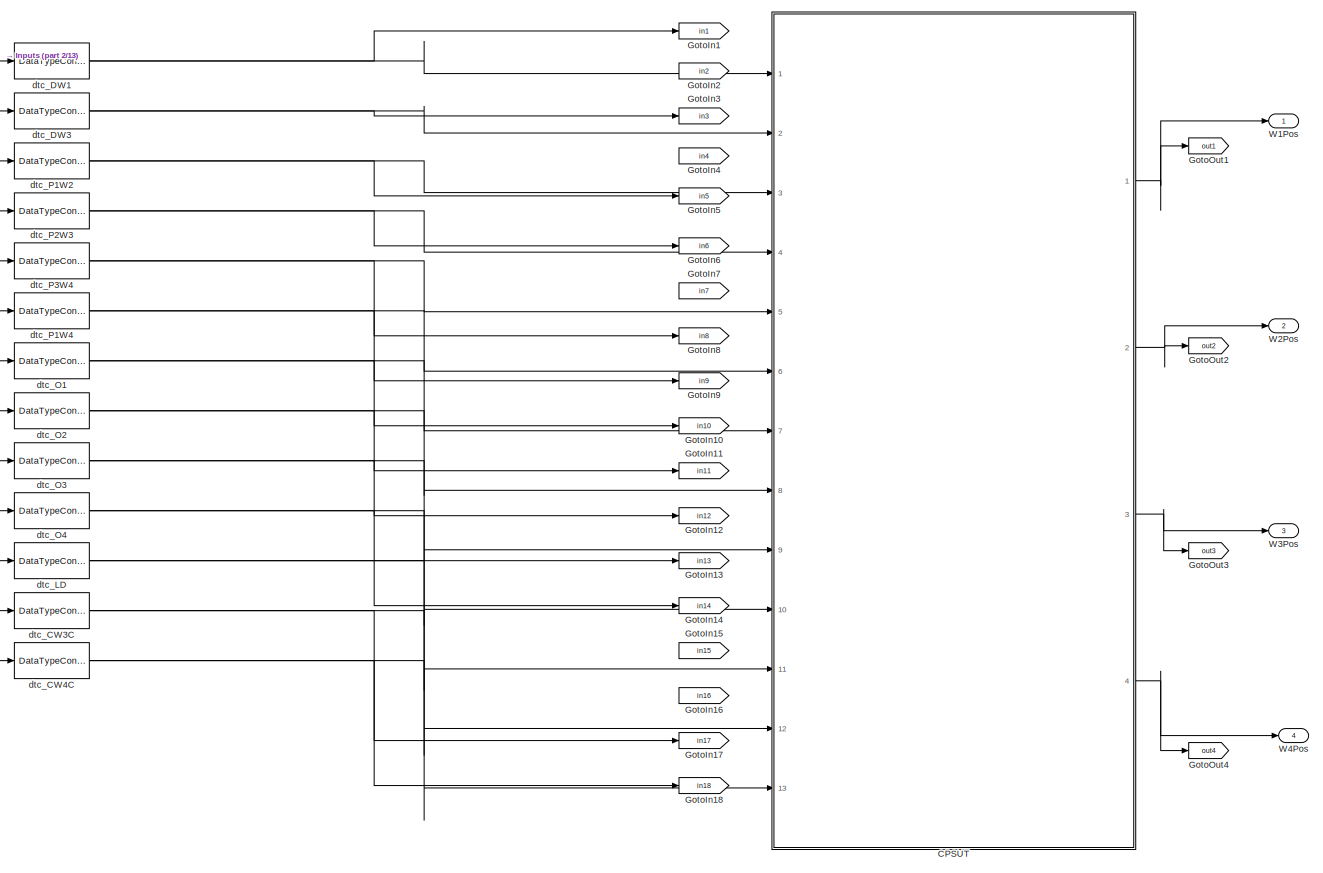
[diagram: root canvas - part 1/13, top left region]
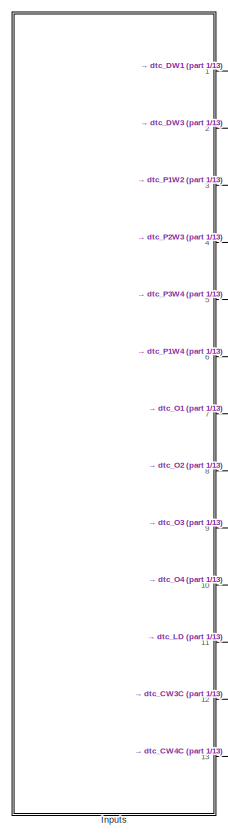
[diagram: root canvas - part 2/13, top left region]
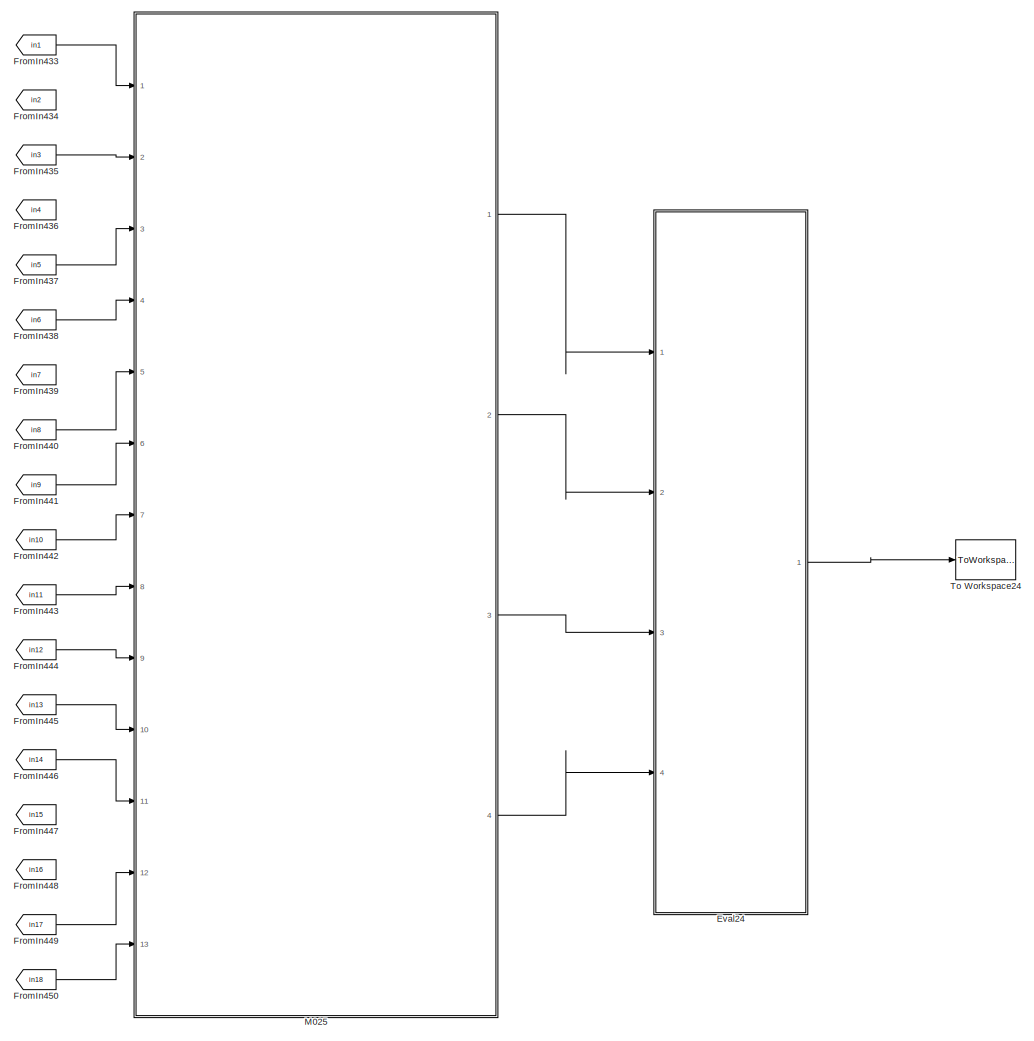
[diagram: root canvas - part 3/13, top center region]
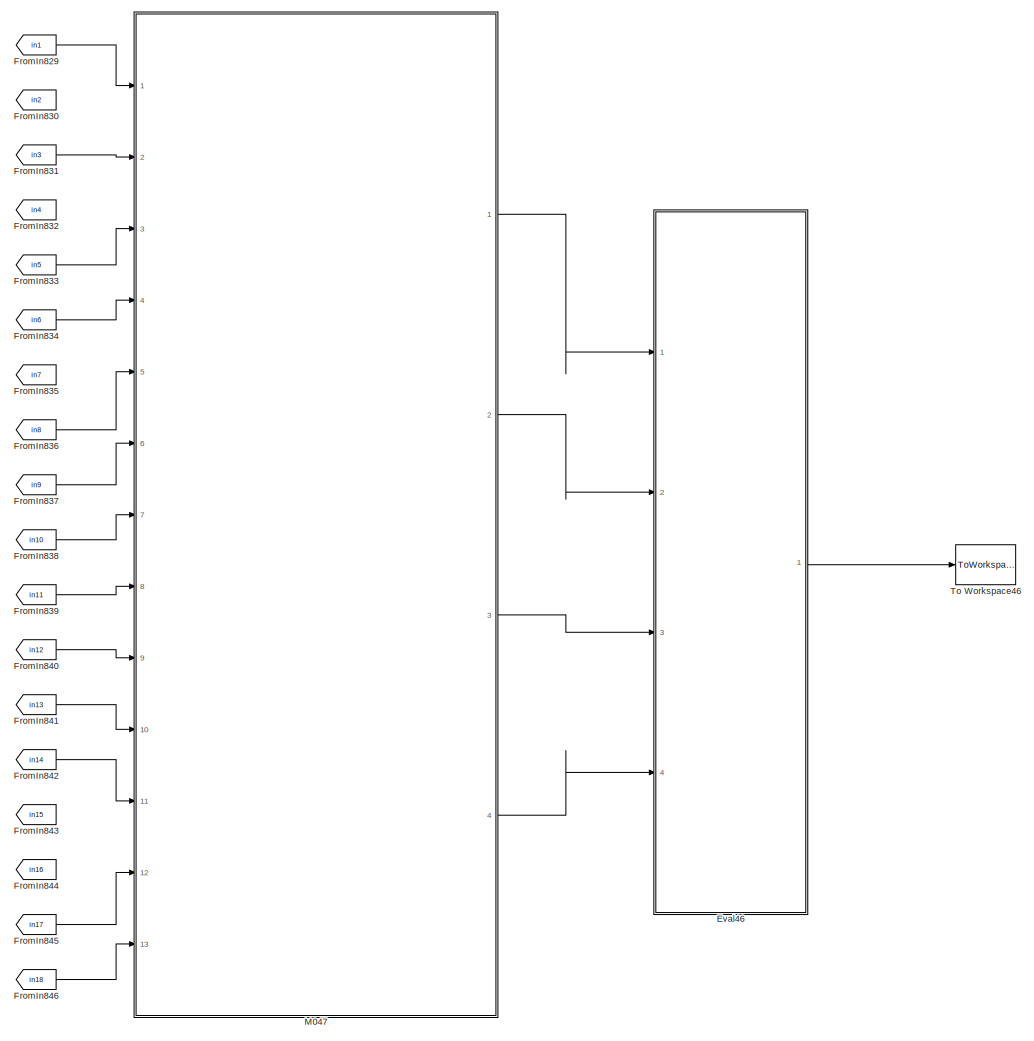
[diagram: root canvas - part 4/13, middle right region]
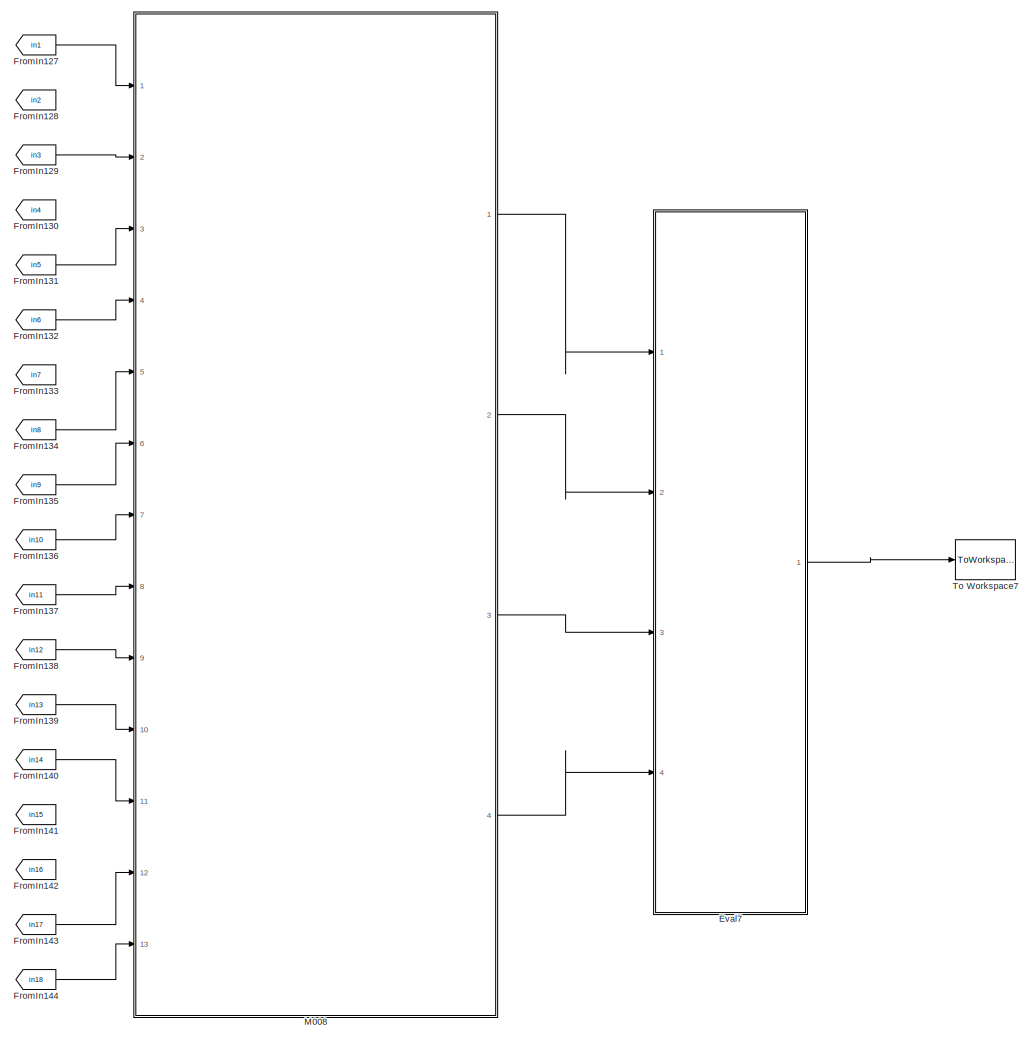
[diagram: root canvas - part 5/13, central region]
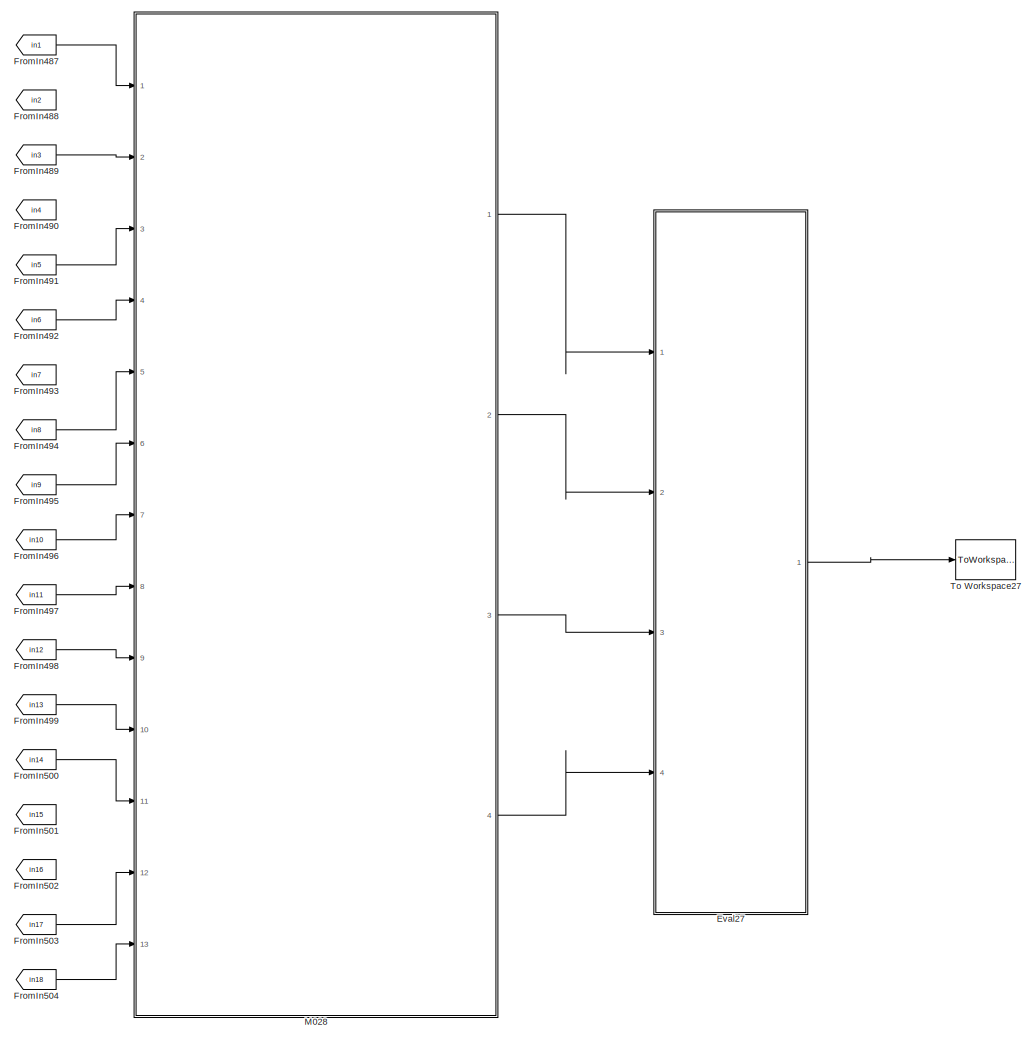
[diagram: root canvas - part 6/13, central region]
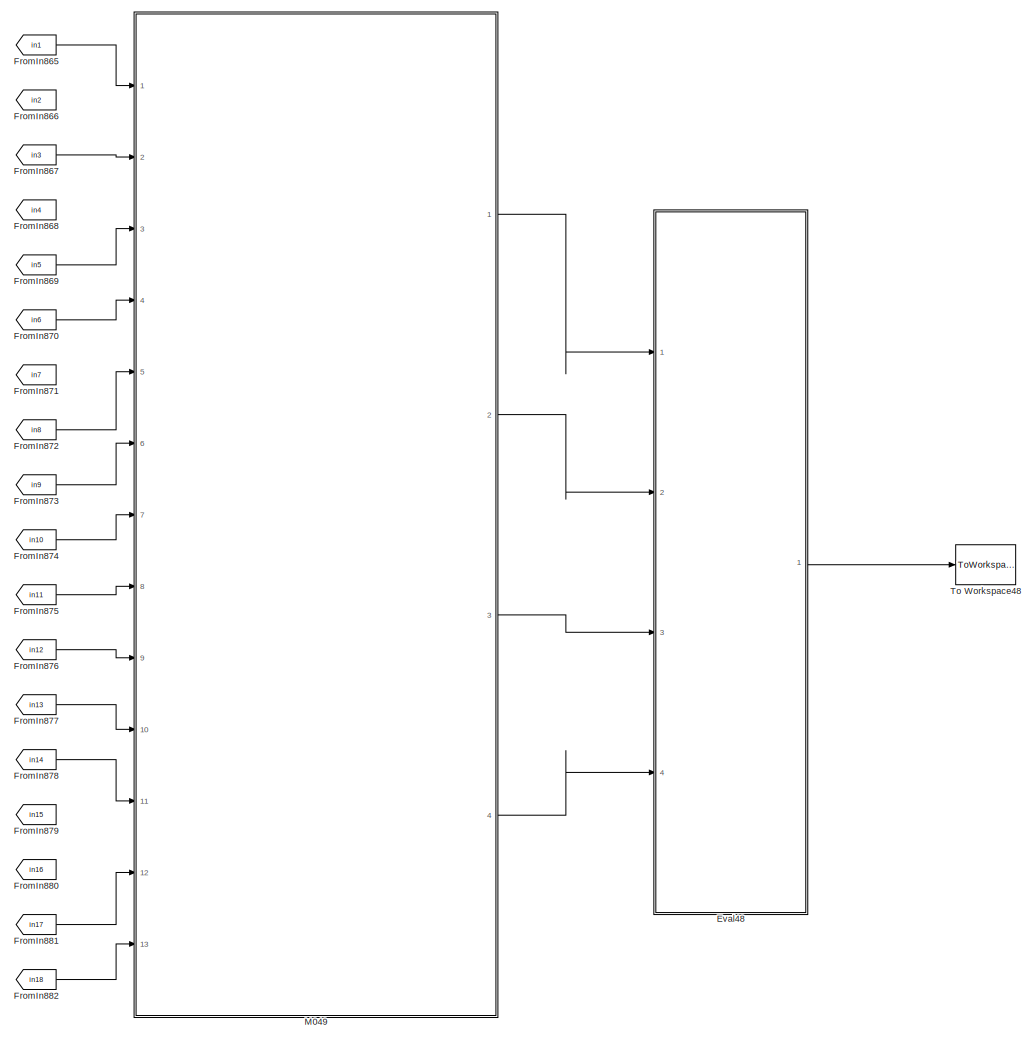
[diagram: root canvas - part 7/13, middle right region]
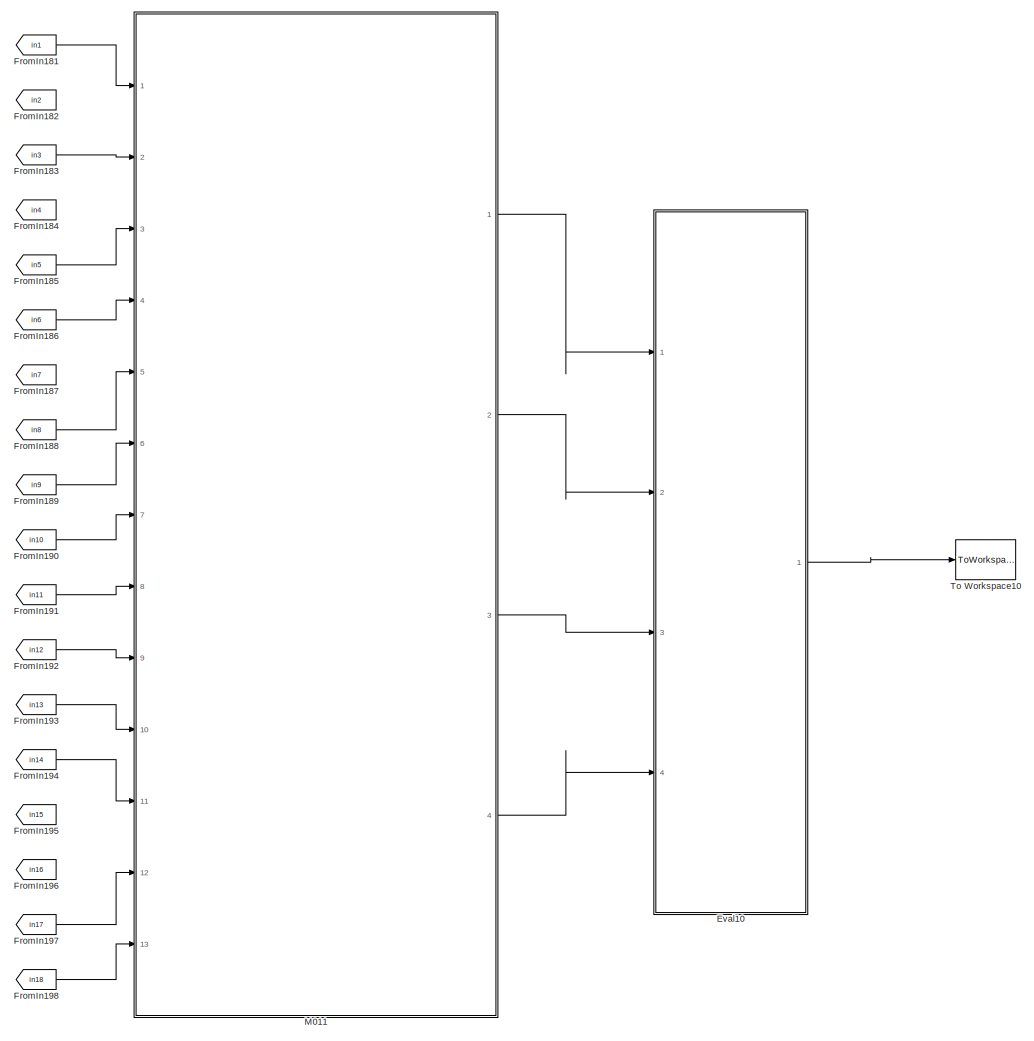
[diagram: root canvas - part 8/13, central region]
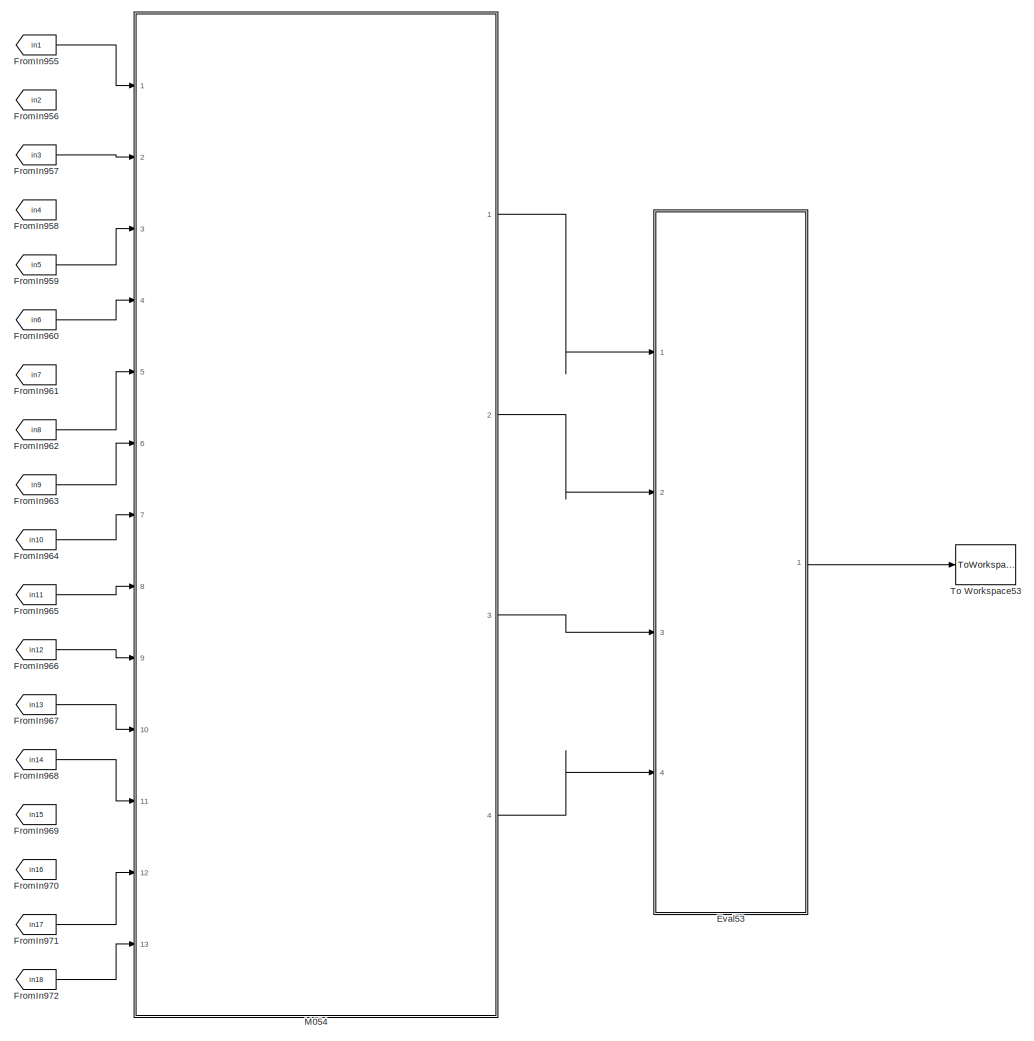
[diagram: root canvas - part 9/13, bottom right region]
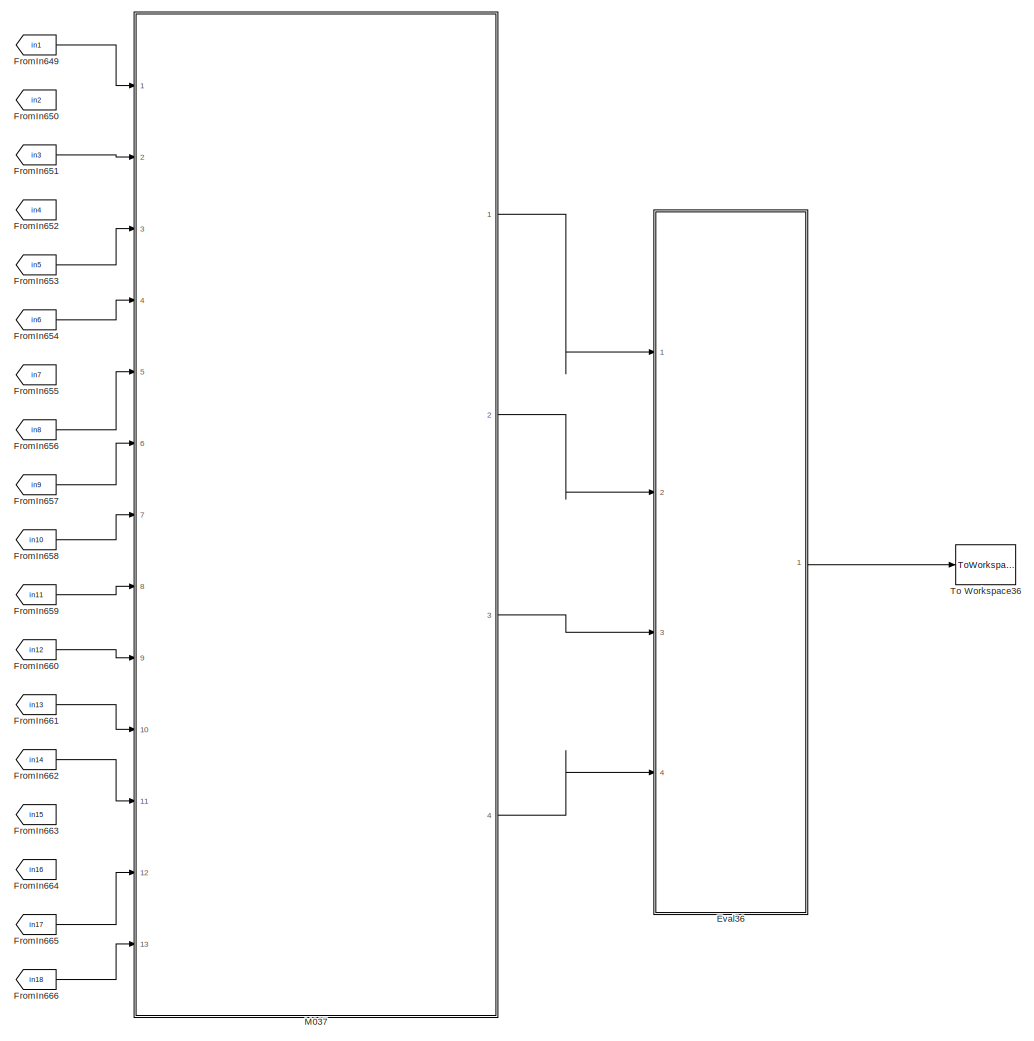
[diagram: root canvas - part 10/13, bottom center region]
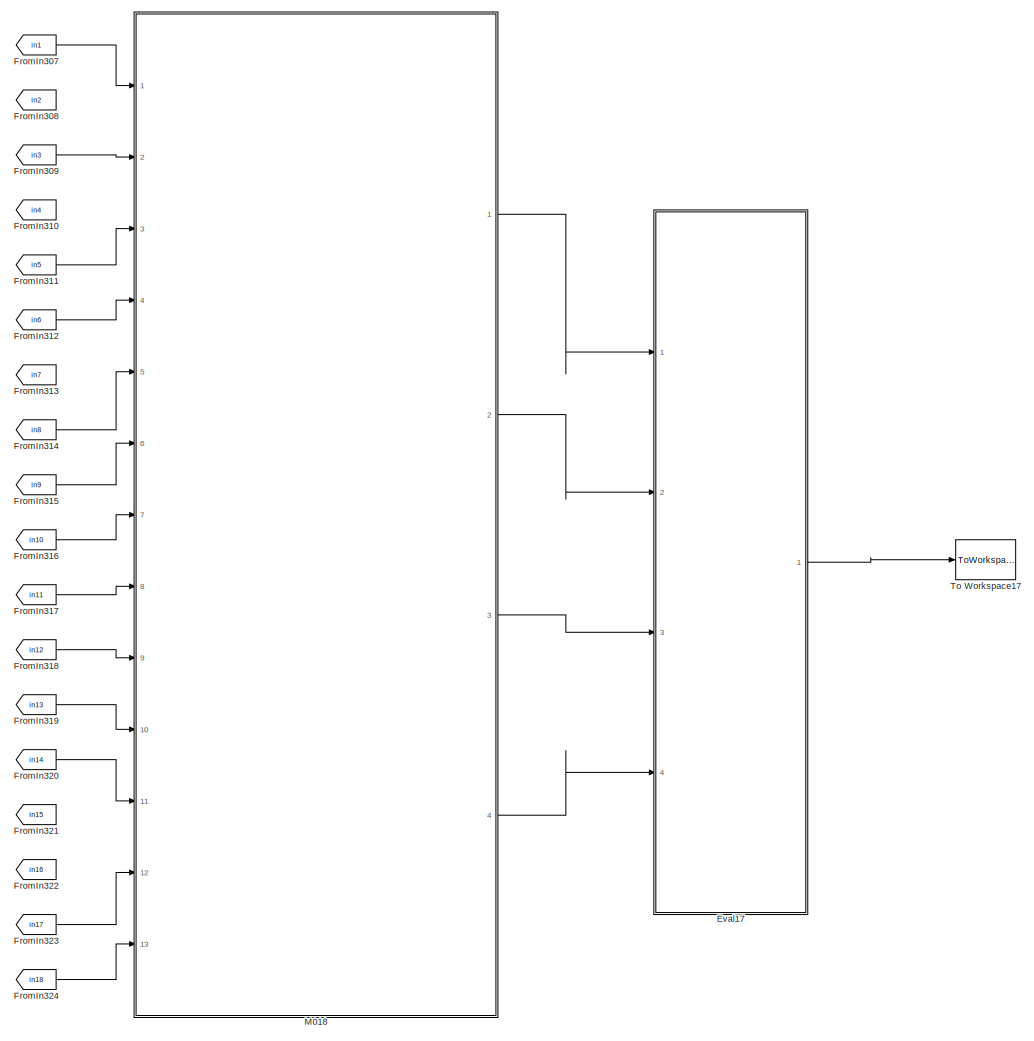
[diagram: root canvas - part 11/13, bottom center region]
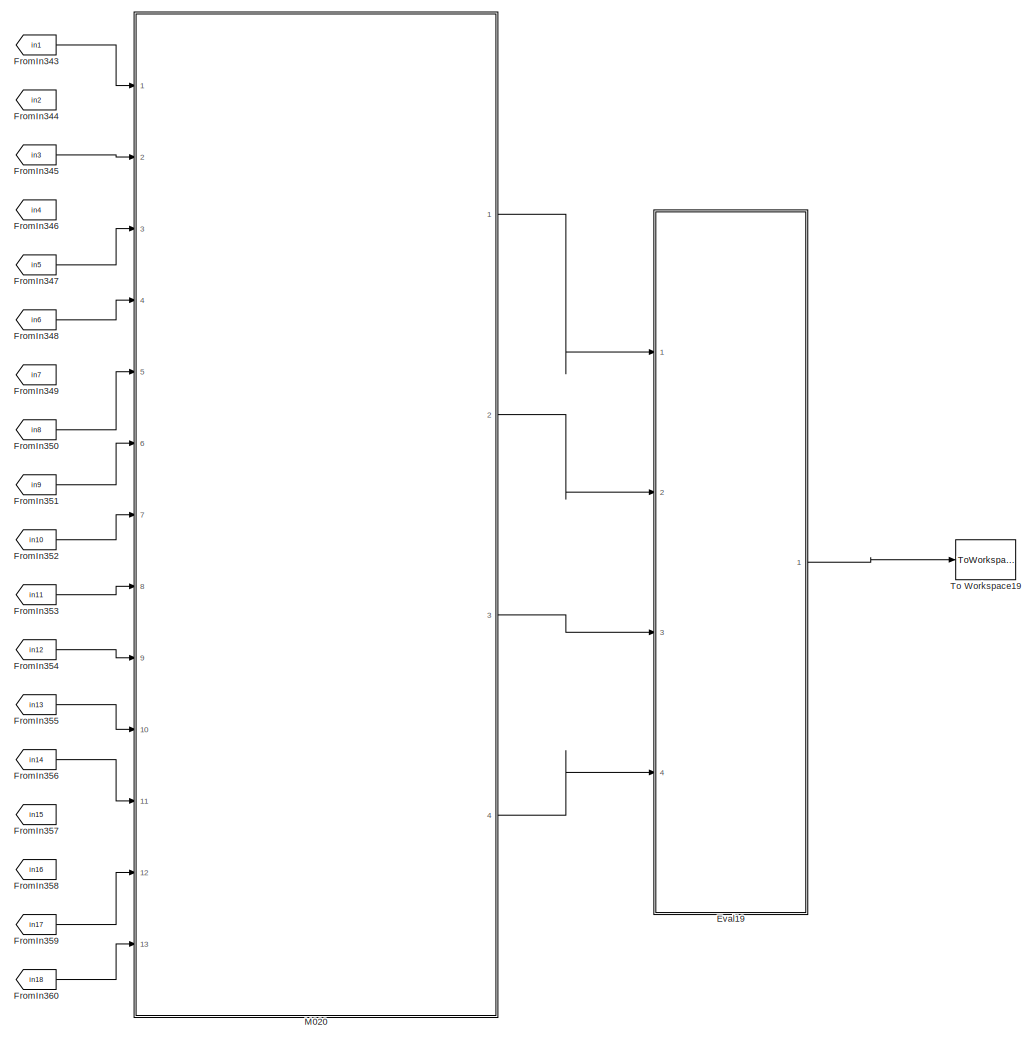
[diagram: root canvas - part 12/13, bottom center region]
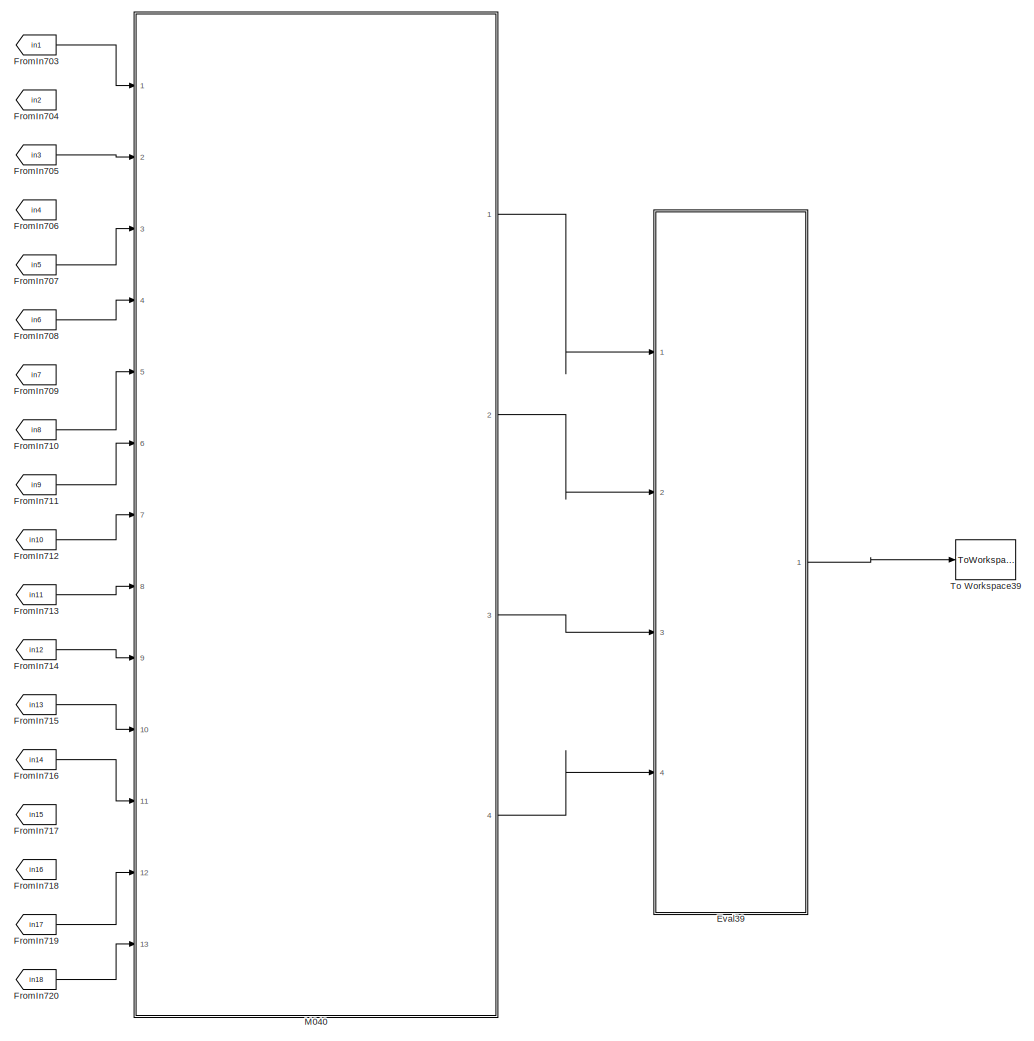
[diagram: root canvas - part 13/13, bottom center region]
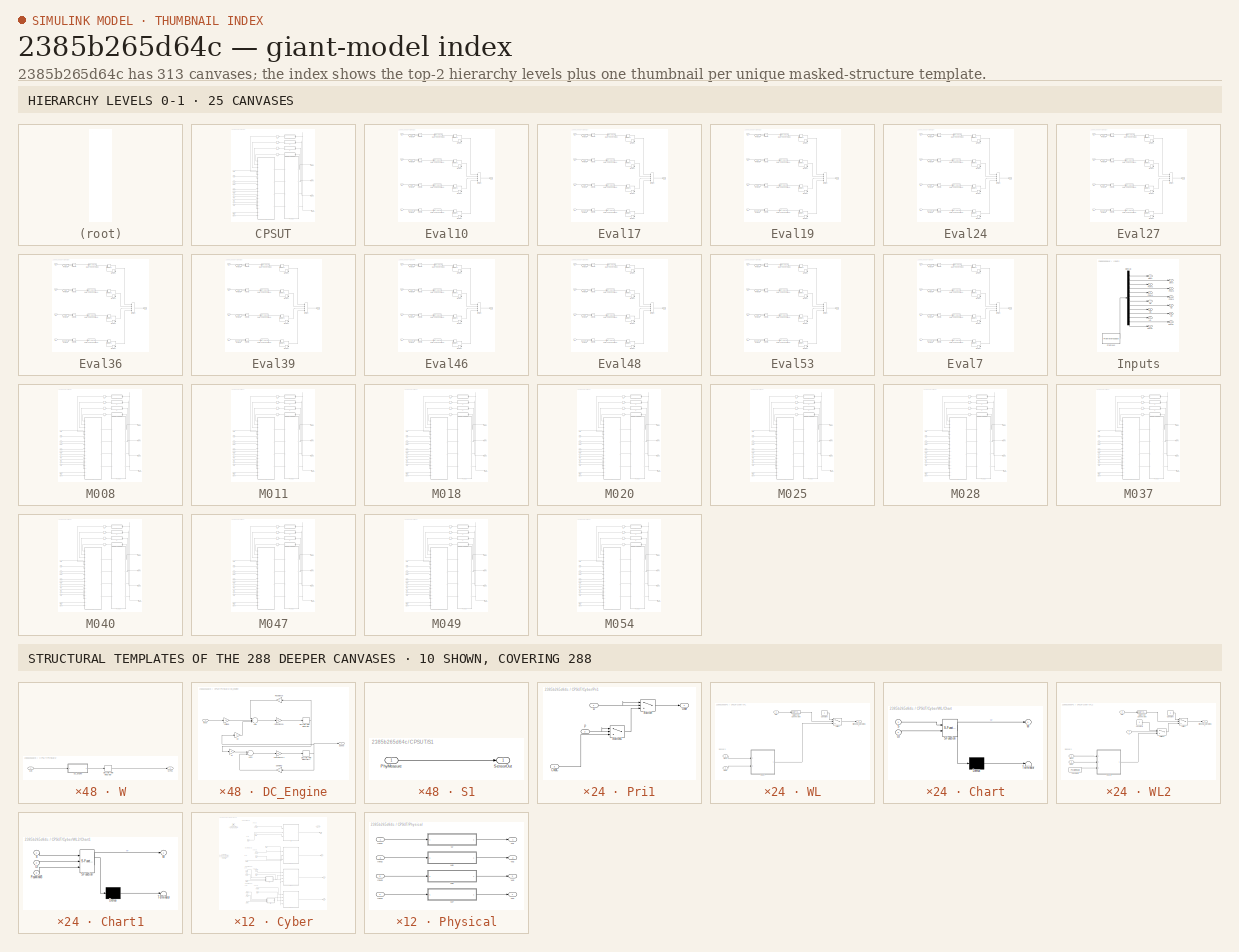
[diagram: thumbnail index - top-2 hierarchy levels (25 canvases) + 10 structural-template representatives of the remaining 288 canvases]
MODEL slx_2385b265d64c
KIND model
CONFIG AbsTol = auto
CONFIG EnableMultiTasking = on
CONFIG FixedStep = auto
CONFIG MaxStep = auto
CONFIG MinStep = auto
CONFIG RelTol = 1e-3
CONFIG SampleTimeConstraint = Unconstrained
CONFIG Solver = ode3
CONFIG SolverName = ode3
CONFIG StartTime = 0.0
CONFIG StopTime = 10.0
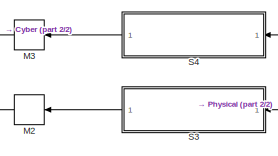
[diagram: CPSUT - part 1/2, top center region]
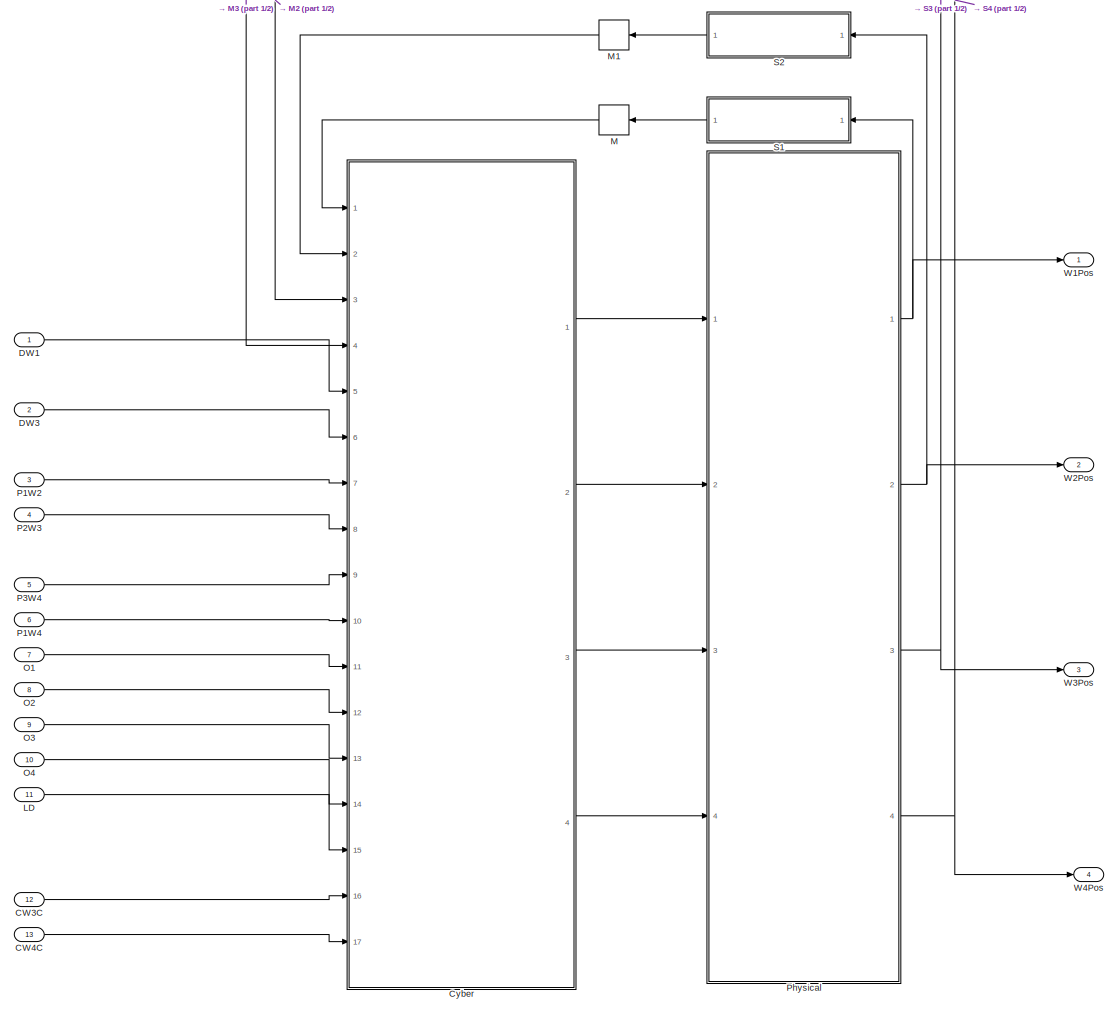
[diagram: CPSUT - part 2/2, most of the canvas]
BLOCK [SubSystem] CPSUT
  Ports = [13, 4]
  RequestExecContextInheritance = off
BLOCK [Inport] CPSUT/CW3C
  IconDisplay = Port number
  OutDataTypeStr = int8
  OutMax = 4
  OutMin = 0
  Port = 12
BLOCK [Inport] CPSUT/CW4C
  IconDisplay = Port number
  OutDataTypeStr = int8
  OutMax = 4
  OutMin = 0
  Port = 13
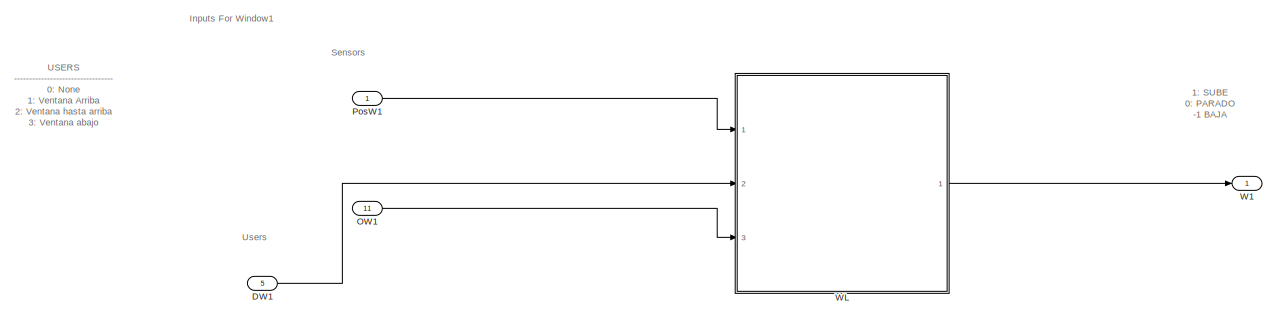
[diagram: CPSUT/Cyber - part 1/3, full width, top band]
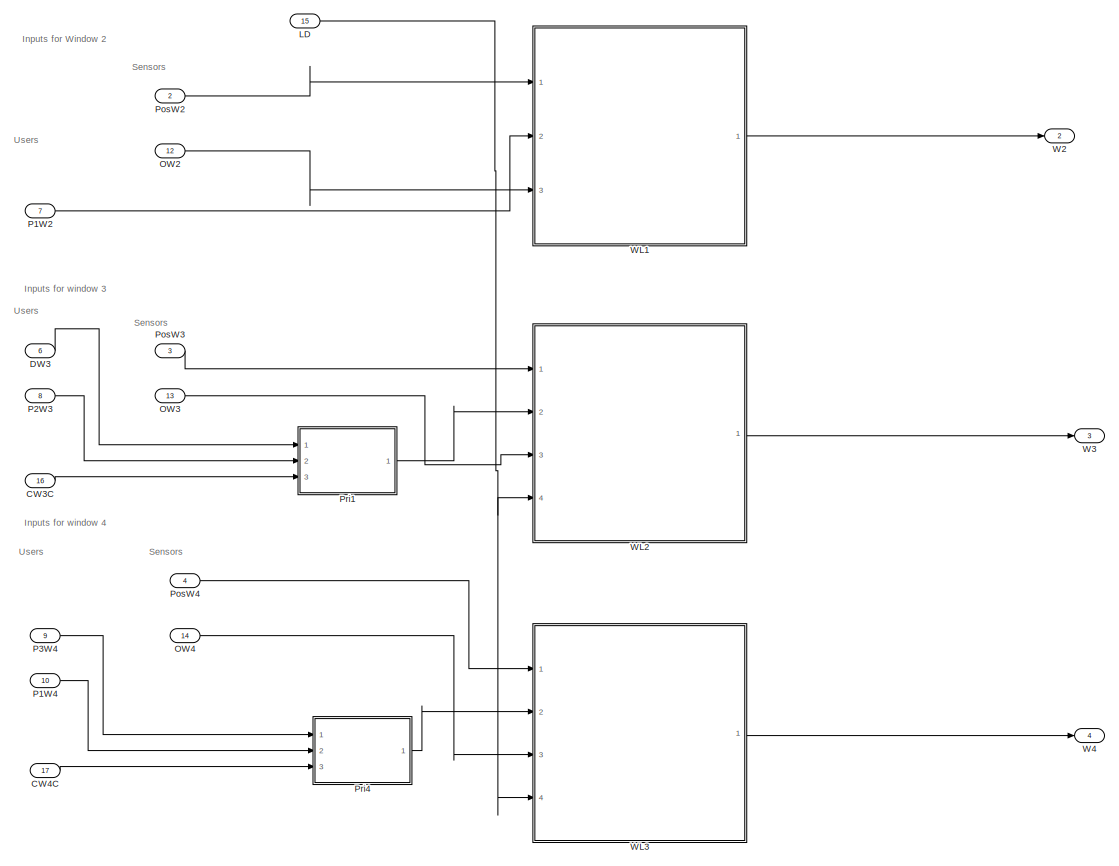
[diagram: CPSUT/Cyber - part 2/3, full width, middle band]
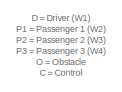
[diagram: CPSUT/Cyber - part 3/3, middle left region]
BLOCK [SubSystem] CPSUT/Cyber
  Ports = [17, 4]
  RequestExecContextInheritance = off
BLOCK [Inport] CPSUT/Cyber/CW3C
  IconDisplay = Port number
  Port = 16
BLOCK [Inport] CPSUT/Cyber/CW4C
  IconDisplay = Port number
  Port = 17
BLOCK [Inport] CPSUT/Cyber/DW1
  IconDisplay = Port number
  Port = 5
BLOCK [Inport] CPSUT/Cyber/DW3
  IconDisplay = Port number
  Port = 6
BLOCK [Inport] CPSUT/Cyber/LD
  IconDisplay = Port number
  Port = 15
BLOCK [Inport] CPSUT/Cyber/OW1
  IconDisplay = Port number
  Port = 11
BLOCK [Inport] CPSUT/Cyber/OW2
  IconDisplay = Port number
  Port = 12
BLOCK [Inport] CPSUT/Cyber/OW3
  IconDisplay = Port number
  Port = 13
BLOCK [Inport] CPSUT/Cyber/OW4
  IconDisplay = Port number
  Port = 14
BLOCK [Inport] CPSUT/Cyber/P1W2
  IconDisplay = Port number
  Port = 7
BLOCK [Inport] CPSUT/Cyber/P1W4
  IconDisplay = Port number
  Port = 10
BLOCK [Inport] CPSUT/Cyber/P2W3
  IconDisplay = Port number
  Port = 8
BLOCK [Inport] CPSUT/Cyber/P3W4
  IconDisplay = Port number
  Port = 9
BLOCK [Inport] CPSUT/Cyber/PosW1
  IconDisplay = Port number
BLOCK [Inport] CPSUT/Cyber/PosW2
  IconDisplay = Port number
  Port = 2
BLOCK [Inport] CPSUT/Cyber/PosW3
  IconDisplay = Port number
  Port = 3
BLOCK [Inport] CPSUT/Cyber/PosW4
  IconDisplay = Port number
  Port = 4
BLOCK [SubSystem] CPSUT/Cyber/Pri1
  Ports = [3, 1]
  RequestExecContextInheritance = off
BLOCK [Inport] CPSUT/Cyber/Pri1/CW3C
  IconDisplay = Port number
  Port = 3
BLOCK [Inport] CPSUT/Cyber/Pri1/D
  IconDisplay = Port number
BLOCK [Inport] CPSUT/Cyber/Pri1/P
  IconDisplay = Port number
  Port = 2
BLOCK [Switch] CPSUT/Cyber/Pri1/Switch
  Criteria = u2 ~= 0
  InputSameDT = off
  SaturateOnIntegerOverflow = off
BLOCK [Switch] CPSUT/Cyber/Pri1/Switch1
  Criteria = u2 ~= 0
  InputSameDT = off
  SaturateOnIntegerOverflow = off
BLOCK [Outport] CPSUT/Cyber/Pri1/User
  IconDisplay = Port number
BLOCK [SubSystem] CPSUT/Cyber/Pri4
  Ports = [3, 1]
  RequestExecContextInheritance = off
BLOCK [Inport] CPSUT/Cyber/Pri4/CW4C
  IconDisplay = Port number
  Port = 3
BLOCK [Inport] CPSUT/Cyber/Pri4/P
  IconDisplay = Port number
BLOCK [Inport] CPSUT/Cyber/Pri4/P1
  IconDisplay = Port number
  Port = 2
BLOCK [Switch] CPSUT/Cyber/Pri4/Switch1
  Criteria = u2 ~= 0
  InputSameDT = off
  SaturateOnIntegerOverflow = off
BLOCK [Switch] CPSUT/Cyber/Pri4/Switch2
  Criteria = u2 ~= 0
  InputSameDT = off
  SaturateOnIntegerOverflow = off
BLOCK [Outport] CPSUT/Cyber/Pri4/User
  IconDisplay = Port number
BLOCK [Outport] CPSUT/Cyber/W1
  IconDisplay = Port number
BLOCK [Outport] CPSUT/Cyber/W2
  IconDisplay = Port number
  Port = 2
BLOCK [Outport] CPSUT/Cyber/W3
  IconDisplay = Port number
  Port = 3
BLOCK [Outport] CPSUT/Cyber/W4
  IconDisplay = Port number
  Port = 4
BLOCK [SubSystem] CPSUT/Cyber/WL
  Ports = [3, 1]
  RequestExecContextInheritance = off
BLOCK [SubSystem] CPSUT/Cyber/WL/Chart
  ErrorFcn = Stateflow.Translate.translate
  PermitHierarchicalResolution = ExplicitOnly
  Ports = [2, 1]
  RequestExecContextInheritance = off
  SFBlockType = Chart
  TreatAsAtomicUnit = on
BLOCK [Demux] CPSUT/Cyber/WL/Chart/ Demux 
  Outputs = 1
  Ports = [1, 1]
BLOCK [S-Function] CPSUT/Cyber/WL/Chart/ SFunction 
  EnableBusSupport = off
  FunctionName = sf_sfun
  PortCounts = [2 2]
  Ports = [2, 2]
  SFcnIsStateOwnerBlock = off
  SFunctionDeploymentMode = off
  Tag = Stateflow S-Function c00023M_harness 1
BLOCK [Terminator] CPSUT/Cyber/WL/Chart/ Terminator 
BLOCK [Inport] CPSUT/Cyber/WL/Chart/S
  IconDisplay = Port number
BLOCK [Inport] CPSUT/Cyber/WL/Chart/UI
  IconDisplay = Port number
  Port = 2
BLOCK [Outport] CPSUT/Cyber/WL/Chart/W
  IconDisplay = Port number
BLOCK [Constant] CPSUT/Cyber/WL/Constant
  Value = -1
BLOCK [DataTypeConversion] CPSUT/Cyber/WL/Data Type Conversion
  RndMeth = Floor
  SaturateOnIntegerOverflow = off
BLOCK [Inport] CPSUT/Cyber/WL/OW
  IconDisplay = Port number
  Port = 3
BLOCK [Switch] CPSUT/Cyber/WL/Switch
  Criteria = u2 ~= 0
  InputSameDT = off
  SaturateOnIntegerOverflow = off
  Threshold = 1
  ZeroCross = off
BLOCK [Inport] CPSUT/Cyber/WL/User
  IconDisplay = Port number
  Port = 2
BLOCK [Inport] CPSUT/Cyber/WL/WPos
  IconDisplay = Port number
BLOCK [Outport] CPSUT/Cyber/WL/WindowLogicOutput
  IconDisplay = Port number
BLOCK [SubSystem] CPSUT/Cyber/WL1
  Ports = [3, 1]
  RequestExecContextInheritance = off
BLOCK [SubSystem] CPSUT/Cyber/WL1/Chart1
  ErrorFcn = Stateflow.Translate.translate
  PermitHierarchicalResolution = ExplicitOnly
  Ports = [2, 1]
  RequestExecContextInheritance = off
  SFBlockType = Chart
  TreatAsAtomicUnit = on
BLOCK [Demux] CPSUT/Cyber/WL1/Chart1/ Demux 
  Outputs = 1
  Ports = [1, 1]
BLOCK [S-Function] CPSUT/Cyber/WL1/Chart1/ SFunction 
  EnableBusSupport = off
  FunctionName = sf_sfun
  PortCounts = [2 2]
  Ports = [2, 2]
  SFcnIsStateOwnerBlock = off
  SFunctionDeploymentMode = off
  Tag = Stateflow S-Function c00023M_harness 3
BLOCK [Terminator] CPSUT/Cyber/WL1/Chart1/ Terminator 
BLOCK [Inport] CPSUT/Cyber/WL1/Chart1/S
  IconDisplay = Port number
BLOCK [Inport] CPSUT/Cyber/WL1/Chart1/UI
  IconDisplay = Port number
  Port = 2
BLOCK [Outport] CPSUT/Cyber/WL1/Chart1/W
  IconDisplay = Port number
BLOCK [Constant] CPSUT/Cyber/WL1/Constant
  Value = -1
BLOCK [DataTypeConversion] CPSUT/Cyber/WL1/Data Type Conversion
  RndMeth = Floor
  SaturateOnIntegerOverflow = off
BLOCK [Inport] CPSUT/Cyber/WL1/OW
  IconDisplay = Port number
  Port = 3
BLOCK [Switch] CPSUT/Cyber/WL1/Switch
  Criteria = u2 ~= 0
  InputSameDT = off
  SaturateOnIntegerOverflow = off
  Threshold = 1
  ZeroCross = off
BLOCK [Inport] CPSUT/Cyber/WL1/User
  IconDisplay = Port number
  Port = 2
BLOCK [Inport] CPSUT/Cyber/WL1/WPos
  IconDisplay = Port number
BLOCK [Outport] CPSUT/Cyber/WL1/WindowLogicOutput
  IconDisplay = Port number
BLOCK [SubSystem] CPSUT/Cyber/WL2
  Ports = [4, 1]
  RequestExecContextInheritance = off
BLOCK [SubSystem] CPSUT/Cyber/WL2/Chart1
  ErrorFcn = Stateflow.Translate.translate
  PermitHierarchicalResolution = ExplicitOnly
  Ports = [3, 1]
  RequestExecContextInheritance = off
  SFBlockType = Chart
  TreatAsAtomicUnit = on
BLOCK [Demux] CPSUT/Cyber/WL2/Chart1/ Demux 
  Outputs = 1
  Ports = [1, 1]
BLOCK [S-Function] CPSUT/Cyber/WL2/Chart1/ SFunction 
  EnableBusSupport = off
  FunctionName = sf_sfun
  PortCounts = [3 2]
  Ports = [3, 2]
  SFcnIsStateOwnerBlock = off
  SFunctionDeploymentMode = off
  Tag = Stateflow S-Function c00023M_harness 2
BLOCK [Terminator] CPSUT/Cyber/WL2/Chart1/ Terminator 
BLOCK [Inport] CPSUT/Cyber/WL2/Chart1/PosMinW3
  IconDisplay = Port number
  Port = 3
BLOCK [Inport] CPSUT/Cyber/WL2/Chart1/S
  IconDisplay = Port number
BLOCK [Inport] CPSUT/Cyber/WL2/Chart1/UI
  IconDisplay = Port number
  Port = 2
BLOCK [Outport] CPSUT/Cyber/WL2/Chart1/W
  IconDisplay = Port number
BLOCK [Constant] CPSUT/Cyber/WL2/Constant
  Value = -1
BLOCK [Constant] CPSUT/Cyber/WL2/Constant1
  Value = 0
BLOCK [Constant] CPSUT/Cyber/WL2/Constant2
  Value = PosMinimaW3
BLOCK [DataTypeConversion] CPSUT/Cyber/WL2/Data Type Conversion
  RndMeth = Floor
  SaturateOnIntegerOverflow = off
BLOCK [Inport] CPSUT/Cyber/WL2/L
  IconDisplay = Port number
  Port = 4
BLOCK [Inport] CPSUT/Cyber/WL2/OW
  IconDisplay = Port number
  Port = 3
BLOCK [Switch] CPSUT/Cyber/WL2/Switch
  Criteria = u2 ~= 0
  InputSameDT = off
  SaturateOnIntegerOverflow = off
  Threshold = 1
  ZeroCross = off
BLOCK [Switch] CPSUT/Cyber/WL2/Switch1
  Criteria = u2 ~= 0
  InputSameDT = off
  SaturateOnIntegerOverflow = off
BLOCK [Inport] CPSUT/Cyber/WL2/User
  IconDisplay = Port number
  Port = 2
BLOCK [Inport] CPSUT/Cyber/WL2/WPos
  IconDisplay = Port number
BLOCK [Outport] CPSUT/Cyber/WL2/WindowLogicOutput
  IconDisplay = Port number
BLOCK [SubSystem] CPSUT/Cyber/WL3
  Ports = [4, 1]
  RequestExecContextInheritance = off
BLOCK [SubSystem] CPSUT/Cyber/WL3/Chart2
  ErrorFcn = Stateflow.Translate.translate
  PermitHierarchicalResolution = ExplicitOnly
  Ports = [3, 1]
  RequestExecContextInheritance = off
  SFBlockType = Chart
  TreatAsAtomicUnit = on
BLOCK [Demux] CPSUT/Cyber/WL3/Chart2/ Demux 
  Outputs = 1
  Ports = [1, 1]
BLOCK [S-Function] CPSUT/Cyber/WL3/Chart2/ SFunction 
  EnableBusSupport = off
  FunctionName = sf_sfun
  PortCounts = [3 2]
  Ports = [3, 2]
  SFcnIsStateOwnerBlock = off
  SFunctionDeploymentMode = off
  Tag = Stateflow S-Function c00023M_harness 4
BLOCK [Terminator] CPSUT/Cyber/WL3/Chart2/ Terminator 
BLOCK [Inport] CPSUT/Cyber/WL3/Chart2/PosMinW4
  IconDisplay = Port number
  Port = 3
BLOCK [Inport] CPSUT/Cyber/WL3/Chart2/S
  IconDisplay = Port number
BLOCK [Inport] CPSUT/Cyber/WL3/Chart2/UI
  IconDisplay = Port number
  Port = 2
BLOCK [Outport] CPSUT/Cyber/WL3/Chart2/W
  IconDisplay = Port number
BLOCK [Constant] CPSUT/Cyber/WL3/Constant
  Value = -1
BLOCK [Constant] CPSUT/Cyber/WL3/Constant1
  Value = 0
BLOCK [Constant] CPSUT/Cyber/WL3/Constant2
  Value = PosMinimaW4
BLOCK [DataTypeConversion] CPSUT/Cyber/WL3/Data Type Conversion
  RndMeth = Floor
  SaturateOnIntegerOverflow = off
BLOCK [Inport] CPSUT/Cyber/WL3/L
  IconDisplay = Port number
  Port = 4
BLOCK [Inport] CPSUT/Cyber/WL3/OW
  IconDisplay = Port number
  Port = 3
BLOCK [Switch] CPSUT/Cyber/WL3/Switch
  Criteria = u2 ~= 0
  InputSameDT = off
  SaturateOnIntegerOverflow = off
  Threshold = 1
  ZeroCross = off
BLOCK [Switch] CPSUT/Cyber/WL3/Switch1
  Criteria = u2 ~= 0
  InputSameDT = off
  SaturateOnIntegerOverflow = off
BLOCK [Inport] CPSUT/Cyber/WL3/User
  IconDisplay = Port number
  Port = 2
BLOCK [Inport] CPSUT/Cyber/WL3/WPos
  IconDisplay = Port number
BLOCK [Outport] CPSUT/Cyber/WL3/WindowLogicOutput
  IconDisplay = Port number
BLOCK [Inport] CPSUT/DW1
  IconDisplay = Port number
  OutDataTypeStr = int8
  OutMax = 4
  OutMin = 0
BLOCK [Inport] CPSUT/DW3
  IconDisplay = Port number
  OutDataTypeStr = int8
  OutMax = 4
  OutMin = 0
  Port = 2
BLOCK [Inport] CPSUT/LD
  IconDisplay = Port number
  OutDataTypeStr = boolean
  Port = 11
BLOCK [Memory] CPSUT/M
BLOCK [Memory] CPSUT/M1
BLOCK [Memory] CPSUT/M2
BLOCK [Memory] CPSUT/M3
BLOCK [Inport] CPSUT/O1
  IconDisplay = Port number
  OutDataTypeStr = boolean
  Port = 7
BLOCK [Inport] CPSUT/O2
  IconDisplay = Port number
  OutDataTypeStr = boolean
  Port = 8
BLOCK [Inport] CPSUT/O3
  IconDisplay = Port number
  OutDataTypeStr = boolean
  Port = 9
BLOCK [Inport] CPSUT/O4
  IconDisplay = Port number
  OutDataTypeStr = boolean
  Port = 10
BLOCK [Inport] CPSUT/P1W2
  IconDisplay = Port number
  OutDataTypeStr = int8
  OutMax = 4
  OutMin = 0
  Port = 3
BLOCK [Inport] CPSUT/P1W4
  IconDisplay = Port number
  OutDataTypeStr = int8
  OutMax = 4
  OutMin = 0
  Port = 6
BLOCK [Inport] CPSUT/P2W3
  IconDisplay = Port number
  OutDataTypeStr = int8
  OutMax = 4
  OutMin = 0
  Port = 4
BLOCK [Inport] CPSUT/P3W4
  IconDisplay = Port number
  OutDataTypeStr = int8
  OutMax = 4
  OutMin = 0
  Port = 5
BLOCK [SubSystem] CPSUT/Physical
  Ports = [4, 4]
  RequestExecContextInheritance = off
BLOCK [Inport] CPSUT/Physical/InW1
  IconDisplay = Port number
BLOCK [Inport] CPSUT/Physical/InW2
  IconDisplay = Port number
  Port = 2
BLOCK [Inport] CPSUT/Physical/InW3
  IconDisplay = Port number
  Port = 3
BLOCK [Inport] CPSUT/Physical/InW4
  IconDisplay = Port number
  Port = 4
BLOCK [SubSystem] CPSUT/Physical/W
  Ports = [1, 1]
  RequestExecContextInheritance = off
BLOCK [SubSystem] CPSUT/Physical/W/DC_Engine
  Ports = [1, 1]
  RequestExecContextInheritance = off
BLOCK [Gain] CPSUT/Physical/W/DC_Engine/(Inductance)
  Gain = 1/L
  OutDataTypeStr = Inherit: Inherit via internal rule
  ParamDataTypeStr = Inherit: Inherit via internal rule
  SaturateOnIntegerOverflow = off
BLOCK [Gain] CPSUT/Physical/W/DC_Engine/(Inductance)1
  Gain = 1/J
  OutDataTypeStr = Inherit: Inherit via internal rule
  ParamDataTypeStr = Inherit: Inherit via internal rule
  SaturateOnIntegerOverflow = off
BLOCK [Sum] CPSUT/Physical/W/DC_Engine/Add
  InputSameDT = off
  Inputs = -+-
  OutDataTypeStr = Inherit: Inherit via internal rule
  Ports = [3, 1]
  SaturateOnIntegerOverflow = off
BLOCK [Sum] CPSUT/Physical/W/DC_Engine/Add1
  InputSameDT = off
  Inputs = +-
  OutDataTypeStr = Inherit: Inherit via internal rule
  Ports = [2, 1]
  SaturateOnIntegerOverflow = off
BLOCK [Gain] CPSUT/Physical/W/DC_Engine/Damping
  Gain = b
  OutDataTypeStr = Inherit: Inherit via internal rule
  ParamDataTypeStr = Inherit: Inherit via internal rule
  SaturateOnIntegerOverflow = off
BLOCK [DiscreteIntegrator] CPSUT/Physical/W/DC_Engine/Discrete-Time Integrator
  ICPrevOutput = DiscIntNeverNeededParam
  ICPrevScaledInput = DiscIntNeverNeededParam
  Ports = [1, 1]
  SampleTime = -1
BLOCK [DiscreteIntegrator] CPSUT/Physical/W/DC_Engine/Discrete-Time Integrator1
  ICPrevOutput = DiscIntNeverNeededParam
  ICPrevScaledInput = DiscIntNeverNeededParam
  Ports = [1, 1]
  SampleTime = -1
BLOCK [Gain] CPSUT/Physical/W/DC_Engine/Ke
  Gain = K
  OutDataTypeStr = Inherit: Inherit via internal rule
  ParamDataTypeStr = Inherit: Inherit via internal rule
  SaturateOnIntegerOverflow = off
BLOCK [Gain] CPSUT/Physical/W/DC_Engine/Kt
  Gain = K
  OutDataTypeStr = Inherit: Inherit via internal rule
  ParamDataTypeStr = Inherit: Inherit via internal rule
  SaturateOnIntegerOverflow = off
BLOCK [Gain] CPSUT/Physical/W/DC_Engine/Resistance
  Gain = R
  OutDataTypeStr = Inherit: Inherit via internal rule
  ParamDataTypeStr = Inherit: Inherit via internal rule
  SaturateOnIntegerOverflow = off
BLOCK [Outport] CPSUT/Physical/W/DC_Engine/Speed
  IconDisplay = Port number
BLOCK [Gain] CPSUT/Physical/W/DC_Engine/Voltage
  Gain = 10
  OutDataTypeStr = Inherit: Inherit via internal rule
  ParamDataTypeStr = Inherit: Inherit via internal rule
  SaturateOnIntegerOverflow = off
BLOCK [Inport] CPSUT/Physical/W/DC_Engine/input
  IconDisplay = Port number
BLOCK [DiscreteIntegrator] CPSUT/Physical/W/Discrete-Time Integrator
  ICPrevOutput = DiscIntNeverNeededParam
  ICPrevScaledInput = DiscIntNeverNeededParam
  InitialCondition = 5
  LimitOutput = on
  LowerSaturationLimit = 0
  Ports = [1, 1]
  SampleTime = -1
  UpperSaturationLimit = 5
BLOCK [Inport] CPSUT/Physical/W/WIn
  IconDisplay = Port number
BLOCK [Outport] CPSUT/Physical/W/WPos
  IconDisplay = Port number
BLOCK [Outport] CPSUT/Physical/W1
  IconDisplay = Port number
BLOCK [Outport] CPSUT/Physical/W2
  IconDisplay = Port number
  Port = 2
BLOCK [Outport] CPSUT/Physical/W3
  IconDisplay = Port number
  Port = 3
BLOCK [Outport] CPSUT/Physical/W4
  IconDisplay = Port number
  Port = 4
BLOCK [SubSystem] CPSUT/Physical/W5
  Ports = [1, 1]
  RequestExecContextInheritance = off
BLOCK [SubSystem] CPSUT/Physical/W5/DC_Engine
  Ports = [1, 1]
  RequestExecContextInheritance = off
BLOCK [Gain] CPSUT/Physical/W5/DC_Engine/(Inductance)
  Gain = 1/L
  OutDataTypeStr = Inherit: Inherit via internal rule
  ParamDataTypeStr = Inherit: Inherit via internal rule
  SaturateOnIntegerOverflow = off
BLOCK [Gain] CPSUT/Physical/W5/DC_Engine/(Inductance)1
  Gain = 1/J
  OutDataTypeStr = Inherit: Inherit via internal rule
  ParamDataTypeStr = Inherit: Inherit via internal rule
  SaturateOnIntegerOverflow = off
BLOCK [Sum] CPSUT/Physical/W5/DC_Engine/Add
  InputSameDT = off
  Inputs = -+-
  OutDataTypeStr = Inherit: Inherit via internal rule
  Ports = [3, 1]
  SaturateOnIntegerOverflow = off
BLOCK [Sum] CPSUT/Physical/W5/DC_Engine/Add1
  InputSameDT = off
  Inputs = +-
  OutDataTypeStr = Inherit: Inherit via internal rule
  Ports = [2, 1]
  SaturateOnIntegerOverflow = off
BLOCK [Gain] CPSUT/Physical/W5/DC_Engine/Damping
  Gain = b
  OutDataTypeStr = Inherit: Inherit via internal rule
  ParamDataTypeStr = Inherit: Inherit via internal rule
  SaturateOnIntegerOverflow = off
BLOCK [DiscreteIntegrator] CPSUT/Physical/W5/DC_Engine/Discrete-Time Integrator
  ICPrevOutput = DiscIntNeverNeededParam
  ICPrevScaledInput = DiscIntNeverNeededParam
  Ports = [1, 1]
  SampleTime = -1
BLOCK [DiscreteIntegrator] CPSUT/Physical/W5/DC_Engine/Discrete-Time Integrator1
  ICPrevOutput = DiscIntNeverNeededParam
  ICPrevScaledInput = DiscIntNeverNeededParam
  Ports = [1, 1]
  SampleTime = -1
BLOCK [Gain] CPSUT/Physical/W5/DC_Engine/Ke
  Gain = K
  OutDataTypeStr = Inherit: Inherit via internal rule
  ParamDataTypeStr = Inherit: Inherit via internal rule
  SaturateOnIntegerOverflow = off
BLOCK [Gain] CPSUT/Physical/W5/DC_Engine/Kt
  Gain = K
  OutDataTypeStr = Inherit: Inherit via internal rule
  ParamDataTypeStr = Inherit: Inherit via internal rule
  SaturateOnIntegerOverflow = off
BLOCK [Gain] CPSUT/Physical/W5/DC_Engine/Resistance
  Gain = R
  OutDataTypeStr = Inherit: Inherit via internal rule
  ParamDataTypeStr = Inherit: Inherit via internal rule
  SaturateOnIntegerOverflow = off
BLOCK [Outport] CPSUT/Physical/W5/DC_Engine/Speed
  IconDisplay = Port number
BLOCK [Gain] CPSUT/Physical/W5/DC_Engine/Voltage
  Gain = 10
  OutDataTypeStr = Inherit: Inherit via internal rule
  ParamDataTypeStr = Inherit: Inherit via internal rule
  SaturateOnIntegerOverflow = off
BLOCK [Inport] CPSUT/Physical/W5/DC_Engine/input
  IconDisplay = Port number
BLOCK [DiscreteIntegrator] CPSUT/Physical/W5/Discrete-Time Integrator
  ICPrevOutput = DiscIntNeverNeededParam
  ICPrevScaledInput = DiscIntNeverNeededParam
  InitialCondition = 5
  LimitOutput = on
  LowerSaturationLimit = 0
  Ports = [1, 1]
  SampleTime = -1
  UpperSaturationLimit = 5
BLOCK [Inport] CPSUT/Physical/W5/WIn
  IconDisplay = Port number
BLOCK [Outport] CPSUT/Physical/W5/WPos
  IconDisplay = Port number
BLOCK [SubSystem] CPSUT/Physical/W6
  Ports = [1, 1]
  RequestExecContextInheritance = off
BLOCK [SubSystem] CPSUT/Physical/W6/DC_Engine
  Ports = [1, 1]
  RequestExecContextInheritance = off
BLOCK [Gain] CPSUT/Physical/W6/DC_Engine/(Inductance)
  Gain = 1/L
  OutDataTypeStr = Inherit: Inherit via internal rule
  ParamDataTypeStr = Inherit: Inherit via internal rule
  SaturateOnIntegerOverflow = off
BLOCK [Gain] CPSUT/Physical/W6/DC_Engine/(Inductance)1
  Gain = 1/J
  OutDataTypeStr = Inherit: Inherit via internal rule
  ParamDataTypeStr = Inherit: Inherit via internal rule
  SaturateOnIntegerOverflow = off
BLOCK [Sum] CPSUT/Physical/W6/DC_Engine/Add
  InputSameDT = off
  Inputs = -+-
  OutDataTypeStr = Inherit: Inherit via internal rule
  Ports = [3, 1]
  SaturateOnIntegerOverflow = off
BLOCK [Sum] CPSUT/Physical/W6/DC_Engine/Add1
  InputSameDT = off
  Inputs = +-
  OutDataTypeStr = Inherit: Inherit via internal rule
  Ports = [2, 1]
  SaturateOnIntegerOverflow = off
BLOCK [Gain] CPSUT/Physical/W6/DC_Engine/Damping
  Gain = b
  OutDataTypeStr = Inherit: Inherit via internal rule
  ParamDataTypeStr = Inherit: Inherit via internal rule
  SaturateOnIntegerOverflow = off
BLOCK [DiscreteIntegrator] CPSUT/Physical/W6/DC_Engine/Discrete-Time Integrator
  ICPrevOutput = DiscIntNeverNeededParam
  ICPrevScaledInput = DiscIntNeverNeededParam
  Ports = [1, 1]
  SampleTime = -1
BLOCK [DiscreteIntegrator] CPSUT/Physical/W6/DC_Engine/Discrete-Time Integrator1
  ICPrevOutput = DiscIntNeverNeededParam
  ICPrevScaledInput = DiscIntNeverNeededParam
  Ports = [1, 1]
  SampleTime = -1
BLOCK [Gain] CPSUT/Physical/W6/DC_Engine/Ke
  Gain = K
  OutDataTypeStr = Inherit: Inherit via internal rule
  ParamDataTypeStr = Inherit: Inherit via internal rule
  SaturateOnIntegerOverflow = off
BLOCK [Gain] CPSUT/Physical/W6/DC_Engine/Kt
  Gain = K
  OutDataTypeStr = Inherit: Inherit via internal rule
  ParamDataTypeStr = Inherit: Inherit via internal rule
  SaturateOnIntegerOverflow = off
BLOCK [Gain] CPSUT/Physical/W6/DC_Engine/Resistance
  Gain = R
  OutDataTypeStr = Inherit: Inherit via internal rule
  ParamDataTypeStr = Inherit: Inherit via internal rule
  SaturateOnIntegerOverflow = off
BLOCK [Outport] CPSUT/Physical/W6/DC_Engine/Speed
  IconDisplay = Port number
BLOCK [Gain] CPSUT/Physical/W6/DC_Engine/Voltage
  Gain = 10
  OutDataTypeStr = Inherit: Inherit via internal rule
  ParamDataTypeStr = Inherit: Inherit via internal rule
  SaturateOnIntegerOverflow = off
BLOCK [Inport] CPSUT/Physical/W6/DC_Engine/input
  IconDisplay = Port number
BLOCK [DiscreteIntegrator] CPSUT/Physical/W6/Discrete-Time Integrator
  ICPrevOutput = DiscIntNeverNeededParam
  ICPrevScaledInput = DiscIntNeverNeededParam
  InitialCondition = 5
  LimitOutput = on
  LowerSaturationLimit = PosMinimaW3
  Ports = [1, 1]
  SampleTime = -1
  UpperSaturationLimit = 5
BLOCK [Inport] CPSUT/Physical/W6/WIn
  IconDisplay = Port number
BLOCK [Outport] CPSUT/Physical/W6/WPos
  IconDisplay = Port number
BLOCK [SubSystem] CPSUT/Physical/W7
  Ports = [1, 1]
  RequestExecContextInheritance = off
BLOCK [SubSystem] CPSUT/Physical/W7/DC_Engine
  Ports = [1, 1]
  RequestExecContextInheritance = off
BLOCK [Gain] CPSUT/Physical/W7/DC_Engine/(Inductance)
  Gain = 1/L
  OutDataTypeStr = Inherit: Inherit via internal rule
  ParamDataTypeStr = Inherit: Inherit via internal rule
  SaturateOnIntegerOverflow = off
BLOCK [Gain] CPSUT/Physical/W7/DC_Engine/(Inductance)1
  Gain = 1/J
  OutDataTypeStr = Inherit: Inherit via internal rule
  ParamDataTypeStr = Inherit: Inherit via internal rule
  SaturateOnIntegerOverflow = off
BLOCK [Sum] CPSUT/Physical/W7/DC_Engine/Add
  InputSameDT = off
  Inputs = -+-
  OutDataTypeStr = Inherit: Inherit via internal rule
  Ports = [3, 1]
  SaturateOnIntegerOverflow = off
BLOCK [Sum] CPSUT/Physical/W7/DC_Engine/Add1
  InputSameDT = off
  Inputs = +-
  OutDataTypeStr = Inherit: Inherit via internal rule
  Ports = [2, 1]
  SaturateOnIntegerOverflow = off
BLOCK [Gain] CPSUT/Physical/W7/DC_Engine/Damping
  Gain = b
  OutDataTypeStr = Inherit: Inherit via internal rule
  ParamDataTypeStr = Inherit: Inherit via internal rule
  SaturateOnIntegerOverflow = off
BLOCK [DiscreteIntegrator] CPSUT/Physical/W7/DC_Engine/Discrete-Time Integrator
  ICPrevOutput = DiscIntNeverNeededParam
  ICPrevScaledInput = DiscIntNeverNeededParam
  Ports = [1, 1]
  SampleTime = -1
BLOCK [DiscreteIntegrator] CPSUT/Physical/W7/DC_Engine/Discrete-Time Integrator1
  ICPrevOutput = DiscIntNeverNeededParam
  ICPrevScaledInput = DiscIntNeverNeededParam
  Ports = [1, 1]
  SampleTime = -1
BLOCK [Gain] CPSUT/Physical/W7/DC_Engine/Ke
  Gain = K
  OutDataTypeStr = Inherit: Inherit via internal rule
  ParamDataTypeStr = Inherit: Inherit via internal rule
  SaturateOnIntegerOverflow = off
BLOCK [Gain] CPSUT/Physical/W7/DC_Engine/Kt
  Gain = K
  OutDataTypeStr = Inherit: Inherit via internal rule
  ParamDataTypeStr = Inherit: Inherit via internal rule
  SaturateOnIntegerOverflow = off
BLOCK [Gain] CPSUT/Physical/W7/DC_Engine/Resistance
  Gain = R
  OutDataTypeStr = Inherit: Inherit via internal rule
  ParamDataTypeStr = Inherit: Inherit via internal rule
  SaturateOnIntegerOverflow = off
BLOCK [Outport] CPSUT/Physical/W7/DC_Engine/Speed
  IconDisplay = Port number
BLOCK [Gain] CPSUT/Physical/W7/DC_Engine/Voltage
  Gain = 10
  OutDataTypeStr = Inherit: Inherit via internal rule
  ParamDataTypeStr = Inherit: Inherit via internal rule
  SaturateOnIntegerOverflow = off
BLOCK [Inport] CPSUT/Physical/W7/DC_Engine/input
  IconDisplay = Port number
BLOCK [DiscreteIntegrator] CPSUT/Physical/W7/Discrete-Time Integrator
  ICPrevOutput = DiscIntNeverNeededParam
  ICPrevScaledInput = DiscIntNeverNeededParam
  InitialCondition = 5
  LimitOutput = on
  LowerSaturationLimit = PosMinimaW4
  Ports = [1, 1]
  SampleTime = -1
  UpperSaturationLimit = 5
BLOCK [Inport] CPSUT/Physical/W7/WIn
  IconDisplay = Port number
BLOCK [Outport] CPSUT/Physical/W7/WPos
  IconDisplay = Port number
BLOCK [SubSystem] CPSUT/S1
  Ports = [1, 1]
  RequestExecContextInheritance = off
BLOCK [Inport] CPSUT/S1/PhyMeasure
  IconDisplay = Port number
BLOCK [Outport] CPSUT/S1/SensorOut
  IconDisplay = Port number
BLOCK [SubSystem] CPSUT/S2
  Ports = [1, 1]
  RequestExecContextInheritance = off
BLOCK [Inport] CPSUT/S2/PhyMeasure
  IconDisplay = Port number
BLOCK [Outport] CPSUT/S2/SensorOut
  IconDisplay = Port number
BLOCK [SubSystem] CPSUT/S3
  Ports = [1, 1]
  RequestExecContextInheritance = off
BLOCK [Inport] CPSUT/S3/PhyMeasure
  IconDisplay = Port number
BLOCK [Outport] CPSUT/S3/SensorOut
  IconDisplay = Port number
BLOCK [SubSystem] CPSUT/S4
  Ports = [1, 1]
  RequestExecContextInheritance = off
BLOCK [Inport] CPSUT/S4/PhyMeasure
  IconDisplay = Port number
BLOCK [Outport] CPSUT/S4/SensorOut
  IconDisplay = Port number
BLOCK [Outport] CPSUT/W1Pos
  IconDisplay = Port number
BLOCK [Outport] CPSUT/W2Pos
  IconDisplay = Port number
  Port = 2
BLOCK [Outport] CPSUT/W3Pos
  IconDisplay = Port number
  Port = 3
BLOCK [Outport] CPSUT/W4Pos
  IconDisplay = Port number
  Port = 4
BLOCK [SubSystem] Eval10
  Ports = [4, 1]
  RequestExecContextInheritance = off
BLOCK [DataTypeConversion] Eval10/Data Type Conversion
  RndMeth = Floor
  SaturateOnIntegerOverflow = off
BLOCK [DataTypeConversion] Eval10/Data Type Conversion1
  RndMeth = Floor
  SaturateOnIntegerOverflow = off
BLOCK [DataTypeConversion] Eval10/Data Type Conversion2
  RndMeth = Floor
  SaturateOnIntegerOverflow = off
BLOCK [DataTypeConversion] Eval10/Data Type Conversion3
  RndMeth = Floor
  SaturateOnIntegerOverflow = off
BLOCK [From] Eval10/FromOut1
  GotoTag = out1
BLOCK [From] Eval10/FromOut2
  GotoTag = out2
BLOCK [From] Eval10/FromOut3
  GotoTag = out3
BLOCK [From] Eval10/FromOut4
  GotoTag = out4
BLOCK [Inport] Eval10/In1
  IconDisplay = Port number
BLOCK [Inport] Eval10/In2
  IconDisplay = Port number
  Port = 2
BLOCK [Inport] Eval10/In3
  IconDisplay = Port number
  Port = 3
BLOCK [Inport] Eval10/In4
  IconDisplay = Port number
  Port = 4
BLOCK [Memory] Eval10/Memory1
  InitialCondition = 1
BLOCK [Memory] Eval10/Memory2
  InitialCondition = 1
BLOCK [Memory] Eval10/Memory3
  InitialCondition = 1
BLOCK [Memory] Eval10/Memory4
  InitialCondition = 1
BLOCK [MinMax] Eval10/MinMax
  InputSameDT = off
  Inputs = 4
  Ports = [4, 1]
  SaturateOnIntegerOverflow = off
BLOCK [MinMax] Eval10/MinMax1
  InputSameDT = off
  Inputs = 2
  Ports = [2, 1]
  SaturateOnIntegerOverflow = off
BLOCK [MinMax] Eval10/MinMax2
  InputSameDT = off
  Inputs = 2
  Ports = [2, 1]
  SaturateOnIntegerOverflow = off
BLOCK [MinMax] Eval10/MinMax3
  InputSameDT = off
  Inputs = 2
  Ports = [2, 1]
  SaturateOnIntegerOverflow = off
BLOCK [MinMax] Eval10/MinMax4
  InputSameDT = off
  Inputs = 2
  Ports = [2, 1]
  SaturateOnIntegerOverflow = off
BLOCK [Outport] Eval10/Out1
  IconDisplay = Port number
BLOCK [RelationalOperator] Eval10/ROOut1
  InputSameDT = off
  Operator = ==
  OutDataTypeStr = boolean
  Ports = [2, 1]
  RndMeth = Simplest
BLOCK [RelationalOperator] Eval10/ROOut2
  InputSameDT = off
  Operator = ==
  OutDataTypeStr = boolean
  Ports = [2, 1]
  RndMeth = Simplest
BLOCK [RelationalOperator] Eval10/ROOut3
  InputSameDT = off
  Operator = ==
  OutDataTypeStr = boolean
  Ports = [2, 1]
  RndMeth = Simplest
BLOCK [RelationalOperator] Eval10/ROOut4
  InputSameDT = off
  Operator = ==
  OutDataTypeStr = boolean
  Ports = [2, 1]
  RndMeth = Simplest
BLOCK [SubSystem] Eval17
  Ports = [4, 1]
  RequestExecContextInheritance = off
BLOCK [DataTypeConversion] Eval17/Data Type Conversion
  RndMeth = Floor
  SaturateOnIntegerOverflow = off
BLOCK [DataTypeConversion] Eval17/Data Type Conversion1
  RndMeth = Floor
  SaturateOnIntegerOverflow = off
BLOCK [DataTypeConversion] Eval17/Data Type Conversion2
  RndMeth = Floor
  SaturateOnIntegerOverflow = off
BLOCK [DataTypeConversion] Eval17/Data Type Conversion3
  RndMeth = Floor
  SaturateOnIntegerOverflow = off
BLOCK [From] Eval17/FromOut1
  GotoTag = out1
BLOCK [From] Eval17/FromOut2
  GotoTag = out2
BLOCK [From] Eval17/FromOut3
  GotoTag = out3
BLOCK [From] Eval17/FromOut4
  GotoTag = out4
BLOCK [Inport] Eval17/In1
  IconDisplay = Port number
BLOCK [Inport] Eval17/In2
  IconDisplay = Port number
  Port = 2
BLOCK [Inport] Eval17/In3
  IconDisplay = Port number
  Port = 3
BLOCK [Inport] Eval17/In4
  IconDisplay = Port number
  Port = 4
BLOCK [Memory] Eval17/Memory1
  InitialCondition = 1
BLOCK [Memory] Eval17/Memory2
  InitialCondition = 1
BLOCK [Memory] Eval17/Memory3
  InitialCondition = 1
BLOCK [Memory] Eval17/Memory4
  InitialCondition = 1
BLOCK [MinMax] Eval17/MinMax
  InputSameDT = off
  Inputs = 4
  Ports = [4, 1]
  SaturateOnIntegerOverflow = off
BLOCK [MinMax] Eval17/MinMax1
  InputSameDT = off
  Inputs = 2
  Ports = [2, 1]
  SaturateOnIntegerOverflow = off
BLOCK [MinMax] Eval17/MinMax2
  InputSameDT = off
  Inputs = 2
  Ports = [2, 1]
  SaturateOnIntegerOverflow = off
BLOCK [MinMax] Eval17/MinMax3
  InputSameDT = off
  Inputs = 2
  Ports = [2, 1]
  SaturateOnIntegerOverflow = off
BLOCK [MinMax] Eval17/MinMax4
  InputSameDT = off
  Inputs = 2
  Ports = [2, 1]
  SaturateOnIntegerOverflow = off
BLOCK [Outport] Eval17/Out1
  IconDisplay = Port number
BLOCK [RelationalOperator] Eval17/ROOut1
  InputSameDT = off
  Operator = ==
  OutDataTypeStr = boolean
  Ports = [2, 1]
  RndMeth = Simplest
BLOCK [RelationalOperator] Eval17/ROOut2
  InputSameDT = off
  Operator = ==
  OutDataTypeStr = boolean
  Ports = [2, 1]
  RndMeth = Simplest
BLOCK [RelationalOperator] Eval17/ROOut3
  InputSameDT = off
  Operator = ==
  OutDataTypeStr = boolean
  Ports = [2, 1]
  RndMeth = Simplest
BLOCK [RelationalOperator] Eval17/ROOut4
  InputSameDT = off
  Operator = ==
  OutDataTypeStr = boolean
  Ports = [2, 1]
  RndMeth = Simplest
BLOCK [SubSystem] Eval19
  Ports = [4, 1]
  RequestExecContextInheritance = off
BLOCK [DataTypeConversion] Eval19/Data Type Conversion
  RndMeth = Floor
  SaturateOnIntegerOverflow = off
BLOCK [DataTypeConversion] Eval19/Data Type Conversion1
  RndMeth = Floor
  SaturateOnIntegerOverflow = off
BLOCK [DataTypeConversion] Eval19/Data Type Conversion2
  RndMeth = Floor
  SaturateOnIntegerOverflow = off
BLOCK [DataTypeConversion] Eval19/Data Type Conversion3
  RndMeth = Floor
  SaturateOnIntegerOverflow = off
BLOCK [From] Eval19/FromOut1
  GotoTag = out1
BLOCK [From] Eval19/FromOut2
  GotoTag = out2
BLOCK [From] Eval19/FromOut3
  GotoTag = out3
BLOCK [From] Eval19/FromOut4
  GotoTag = out4
BLOCK [Inport] Eval19/In1
  IconDisplay = Port number
BLOCK [Inport] Eval19/In2
  IconDisplay = Port number
  Port = 2
BLOCK [Inport] Eval19/In3
  IconDisplay = Port number
  Port = 3
BLOCK [Inport] Eval19/In4
  IconDisplay = Port number
  Port = 4
BLOCK [Memory] Eval19/Memory1
  InitialCondition = 1
BLOCK [Memory] Eval19/Memory2
  InitialCondition = 1
BLOCK [Memory] Eval19/Memory3
  InitialCondition = 1
BLOCK [Memory] Eval19/Memory4
  InitialCondition = 1
BLOCK [MinMax] Eval19/MinMax
  InputSameDT = off
  Inputs = 4
  Ports = [4, 1]
  SaturateOnIntegerOverflow = off
BLOCK [MinMax] Eval19/MinMax1
  InputSameDT = off
  Inputs = 2
  Ports = [2, 1]
  SaturateOnIntegerOverflow = off
BLOCK [MinMax] Eval19/MinMax2
  InputSameDT = off
  Inputs = 2
  Ports = [2, 1]
  SaturateOnIntegerOverflow = off
BLOCK [MinMax] Eval19/MinMax3
  InputSameDT = off
  Inputs = 2
  Ports = [2, 1]
  SaturateOnIntegerOverflow = off
BLOCK [MinMax] Eval19/MinMax4
  InputSameDT = off
  Inputs = 2
  Ports = [2, 1]
  SaturateOnIntegerOverflow = off
BLOCK [Outport] Eval19/Out1
  IconDisplay = Port number
BLOCK [RelationalOperator] Eval19/ROOut1
  InputSameDT = off
  Operator = ==
  OutDataTypeStr = boolean
  Ports = [2, 1]
  RndMeth = Simplest
BLOCK [RelationalOperator] Eval19/ROOut2
  InputSameDT = off
  Operator = ==
  OutDataTypeStr = boolean
  Ports = [2, 1]
  RndMeth = Simplest
BLOCK [RelationalOperator] Eval19/ROOut3
  InputSameDT = off
  Operator = ==
  OutDataTypeStr = boolean
  Ports = [2, 1]
  RndMeth = Simplest
BLOCK [RelationalOperator] Eval19/ROOut4
  InputSameDT = off
  Operator = ==
  OutDataTypeStr = boolean
  Ports = [2, 1]
  RndMeth = Simplest
BLOCK [SubSystem] Eval24
  Ports = [4, 1]
  RequestExecContextInheritance = off
BLOCK [DataTypeConversion] Eval24/Data Type Conversion
  RndMeth = Floor
  SaturateOnIntegerOverflow = off
BLOCK [DataTypeConversion] Eval24/Data Type Conversion1
  RndMeth = Floor
  SaturateOnIntegerOverflow = off
BLOCK [DataTypeConversion] Eval24/Data Type Conversion2
  RndMeth = Floor
  SaturateOnIntegerOverflow = off
BLOCK [DataTypeConversion] Eval24/Data Type Conversion3
  RndMeth = Floor
  SaturateOnIntegerOverflow = off
BLOCK [From] Eval24/FromOut1
  GotoTag = out1
BLOCK [From] Eval24/FromOut2
  GotoTag = out2
BLOCK [From] Eval24/FromOut3
  GotoTag = out3
BLOCK [From] Eval24/FromOut4
  GotoTag = out4
BLOCK [Inport] Eval24/In1
  IconDisplay = Port number
BLOCK [Inport] Eval24/In2
  IconDisplay = Port number
  Port = 2
BLOCK [Inport] Eval24/In3
  IconDisplay = Port number
  Port = 3
BLOCK [Inport] Eval24/In4
  IconDisplay = Port number
  Port = 4
BLOCK [Memory] Eval24/Memory1
  InitialCondition = 1
BLOCK [Memory] Eval24/Memory2
  InitialCondition = 1
BLOCK [Memory] Eval24/Memory3
  InitialCondition = 1
BLOCK [Memory] Eval24/Memory4
  InitialCondition = 1
BLOCK [MinMax] Eval24/MinMax
  InputSameDT = off
  Inputs = 4
  Ports = [4, 1]
  SaturateOnIntegerOverflow = off
BLOCK [MinMax] Eval24/MinMax1
  InputSameDT = off
  Inputs = 2
  Ports = [2, 1]
  SaturateOnIntegerOverflow = off
BLOCK [MinMax] Eval24/MinMax2
  InputSameDT = off
  Inputs = 2
  Ports = [2, 1]
  SaturateOnIntegerOverflow = off
BLOCK [MinMax] Eval24/MinMax3
  InputSameDT = off
  Inputs = 2
  Ports = [2, 1]
  SaturateOnIntegerOverflow = off
BLOCK [MinMax] Eval24/MinMax4
  InputSameDT = off
  Inputs = 2
  Ports = [2, 1]
  SaturateOnIntegerOverflow = off
BLOCK [Outport] Eval24/Out1
  IconDisplay = Port number
BLOCK [RelationalOperator] Eval24/ROOut1
  InputSameDT = off
  Operator = ==
  OutDataTypeStr = boolean
  Ports = [2, 1]
  RndMeth = Simplest
BLOCK [RelationalOperator] Eval24/ROOut2
  InputSameDT = off
  Operator = ==
  OutDataTypeStr = boolean
  Ports = [2, 1]
  RndMeth = Simplest
BLOCK [RelationalOperator] Eval24/ROOut3
  InputSameDT = off
  Operator = ==
  OutDataTypeStr = boolean
  Ports = [2, 1]
  RndMeth = Simplest
BLOCK [RelationalOperator] Eval24/ROOut4
  InputSameDT = off
  Operator = ==
  OutDataTypeStr = boolean
  Ports = [2, 1]
  RndMeth = Simplest
BLOCK [SubSystem] Eval27
  Ports = [4, 1]
  RequestExecContextInheritance = off
BLOCK [DataTypeConversion] Eval27/Data Type Conversion
  RndMeth = Floor
  SaturateOnIntegerOverflow = off
BLOCK [DataTypeConversion] Eval27/Data Type Conversion1
  RndMeth = Floor
  SaturateOnIntegerOverflow = off
BLOCK [DataTypeConversion] Eval27/Data Type Conversion2
  RndMeth = Floor
  SaturateOnIntegerOverflow = off
BLOCK [DataTypeConversion] Eval27/Data Type Conversion3
  RndMeth = Floor
  SaturateOnIntegerOverflow = off
BLOCK [From] Eval27/FromOut1
  GotoTag = out1
BLOCK [From] Eval27/FromOut2
  GotoTag = out2
BLOCK [From] Eval27/FromOut3
  GotoTag = out3
BLOCK [From] Eval27/FromOut4
  GotoTag = out4
BLOCK [Inport] Eval27/In1
  IconDisplay = Port number
BLOCK [Inport] Eval27/In2
  IconDisplay = Port number
  Port = 2
BLOCK [Inport] Eval27/In3
  IconDisplay = Port number
  Port = 3
BLOCK [Inport] Eval27/In4
  IconDisplay = Port number
  Port = 4
BLOCK [Memory] Eval27/Memory1
  InitialCondition = 1
BLOCK [Memory] Eval27/Memory2
  InitialCondition = 1
BLOCK [Memory] Eval27/Memory3
  InitialCondition = 1
BLOCK [Memory] Eval27/Memory4
  InitialCondition = 1
BLOCK [MinMax] Eval27/MinMax
  InputSameDT = off
  Inputs = 4
  Ports = [4, 1]
  SaturateOnIntegerOverflow = off
BLOCK [MinMax] Eval27/MinMax1
  InputSameDT = off
  Inputs = 2
  Ports = [2, 1]
  SaturateOnIntegerOverflow = off
BLOCK [MinMax] Eval27/MinMax2
  InputSameDT = off
  Inputs = 2
  Ports = [2, 1]
  SaturateOnIntegerOverflow = off
BLOCK [MinMax] Eval27/MinMax3
  InputSameDT = off
  Inputs = 2
  Ports = [2, 1]
  SaturateOnIntegerOverflow = off
BLOCK [MinMax] Eval27/MinMax4
  InputSameDT = off
  Inputs = 2
  Ports = [2, 1]
  SaturateOnIntegerOverflow = off
BLOCK [Outport] Eval27/Out1
  IconDisplay = Port number
BLOCK [RelationalOperator] Eval27/ROOut1
  InputSameDT = off
  Operator = ==
  OutDataTypeStr = boolean
  Ports = [2, 1]
  RndMeth = Simplest
BLOCK [RelationalOperator] Eval27/ROOut2
  InputSameDT = off
  Operator = ==
  OutDataTypeStr = boolean
  Ports = [2, 1]
  RndMeth = Simplest
BLOCK [RelationalOperator] Eval27/ROOut3
  InputSameDT = off
  Operator = ==
  OutDataTypeStr = boolean
  Ports = [2, 1]
  RndMeth = Simplest
BLOCK [RelationalOperator] Eval27/ROOut4
  InputSameDT = off
  Operator = ==
  OutDataTypeStr = boolean
  Ports = [2, 1]
  RndMeth = Simplest
BLOCK [SubSystem] Eval36
  Ports = [4, 1]
  RequestExecContextInheritance = off
BLOCK [DataTypeConversion] Eval36/Data Type Conversion
  RndMeth = Floor
  SaturateOnIntegerOverflow = off
BLOCK [DataTypeConversion] Eval36/Data Type Conversion1
  RndMeth = Floor
  SaturateOnIntegerOverflow = off
BLOCK [DataTypeConversion] Eval36/Data Type Conversion2
  RndMeth = Floor
  SaturateOnIntegerOverflow = off
BLOCK [DataTypeConversion] Eval36/Data Type Conversion3
  RndMeth = Floor
  SaturateOnIntegerOverflow = off
BLOCK [From] Eval36/FromOut1
  GotoTag = out1
BLOCK [From] Eval36/FromOut2
  GotoTag = out2
BLOCK [From] Eval36/FromOut3
  GotoTag = out3
BLOCK [From] Eval36/FromOut4
  GotoTag = out4
BLOCK [Inport] Eval36/In1
  IconDisplay = Port number
BLOCK [Inport] Eval36/In2
  IconDisplay = Port number
  Port = 2
BLOCK [Inport] Eval36/In3
  IconDisplay = Port number
  Port = 3
BLOCK [Inport] Eval36/In4
  IconDisplay = Port number
  Port = 4
BLOCK [Memory] Eval36/Memory1
  InitialCondition = 1
BLOCK [Memory] Eval36/Memory2
  InitialCondition = 1
BLOCK [Memory] Eval36/Memory3
  InitialCondition = 1
BLOCK [Memory] Eval36/Memory4
  InitialCondition = 1
BLOCK [MinMax] Eval36/MinMax
  InputSameDT = off
  Inputs = 4
  Ports = [4, 1]
  SaturateOnIntegerOverflow = off
BLOCK [MinMax] Eval36/MinMax1
  InputSameDT = off
  Inputs = 2
  Ports = [2, 1]
  SaturateOnIntegerOverflow = off
BLOCK [MinMax] Eval36/MinMax2
  InputSameDT = off
  Inputs = 2
  Ports = [2, 1]
  SaturateOnIntegerOverflow = off
BLOCK [MinMax] Eval36/MinMax3
  InputSameDT = off
  Inputs = 2
  Ports = [2, 1]
  SaturateOnIntegerOverflow = off
BLOCK [MinMax] Eval36/MinMax4
  InputSameDT = off
  Inputs = 2
  Ports = [2, 1]
  SaturateOnIntegerOverflow = off
BLOCK [Outport] Eval36/Out1
  IconDisplay = Port number
BLOCK [RelationalOperator] Eval36/ROOut1
  InputSameDT = off
  Operator = ==
  OutDataTypeStr = boolean
  Ports = [2, 1]
  RndMeth = Simplest
BLOCK [RelationalOperator] Eval36/ROOut2
  InputSameDT = off
  Operator = ==
  OutDataTypeStr = boolean
  Ports = [2, 1]
  RndMeth = Simplest
BLOCK [RelationalOperator] Eval36/ROOut3
  InputSameDT = off
  Operator = ==
  OutDataTypeStr = boolean
  Ports = [2, 1]
  RndMeth = Simplest
BLOCK [RelationalOperator] Eval36/ROOut4
  InputSameDT = off
  Operator = ==
  OutDataTypeStr = boolean
  Ports = [2, 1]
  RndMeth = Simplest
BLOCK [SubSystem] Eval39
  Ports = [4, 1]
  RequestExecContextInheritance = off
BLOCK [DataTypeConversion] Eval39/Data Type Conversion
  RndMeth = Floor
  SaturateOnIntegerOverflow = off
BLOCK [DataTypeConversion] Eval39/Data Type Conversion1
  RndMeth = Floor
  SaturateOnIntegerOverflow = off
BLOCK [DataTypeConversion] Eval39/Data Type Conversion2
  RndMeth = Floor
  SaturateOnIntegerOverflow = off
BLOCK [DataTypeConversion] Eval39/Data Type Conversion3
  RndMeth = Floor
  SaturateOnIntegerOverflow = off
BLOCK [From] Eval39/FromOut1
  GotoTag = out1
BLOCK [From] Eval39/FromOut2
  GotoTag = out2
BLOCK [From] Eval39/FromOut3
  GotoTag = out3
BLOCK [From] Eval39/FromOut4
  GotoTag = out4
BLOCK [Inport] Eval39/In1
  IconDisplay = Port number
BLOCK [Inport] Eval39/In2
  IconDisplay = Port number
  Port = 2
BLOCK [Inport] Eval39/In3
  IconDisplay = Port number
  Port = 3
BLOCK [Inport] Eval39/In4
  IconDisplay = Port number
  Port = 4
BLOCK [Memory] Eval39/Memory1
  InitialCondition = 1
BLOCK [Memory] Eval39/Memory2
  InitialCondition = 1
BLOCK [Memory] Eval39/Memory3
  InitialCondition = 1
BLOCK [Memory] Eval39/Memory4
  InitialCondition = 1
BLOCK [MinMax] Eval39/MinMax
  InputSameDT = off
  Inputs = 4
  Ports = [4, 1]
  SaturateOnIntegerOverflow = off
BLOCK [MinMax] Eval39/MinMax1
  InputSameDT = off
  Inputs = 2
  Ports = [2, 1]
  SaturateOnIntegerOverflow = off
BLOCK [MinMax] Eval39/MinMax2
  InputSameDT = off
  Inputs = 2
  Ports = [2, 1]
  SaturateOnIntegerOverflow = off
BLOCK [MinMax] Eval39/MinMax3
  InputSameDT = off
  Inputs = 2
  Ports = [2, 1]
  SaturateOnIntegerOverflow = off
BLOCK [MinMax] Eval39/MinMax4
  InputSameDT = off
  Inputs = 2
  Ports = [2, 1]
  SaturateOnIntegerOverflow = off
BLOCK [Outport] Eval39/Out1
  IconDisplay = Port number
BLOCK [RelationalOperator] Eval39/ROOut1
  InputSameDT = off
  Operator = ==
  OutDataTypeStr = boolean
  Ports = [2, 1]
  RndMeth = Simplest
BLOCK [RelationalOperator] Eval39/ROOut2
  InputSameDT = off
  Operator = ==
  OutDataTypeStr = boolean
  Ports = [2, 1]
  RndMeth = Simplest
BLOCK [RelationalOperator] Eval39/ROOut3
  InputSameDT = off
  Operator = ==
  OutDataTypeStr = boolean
  Ports = [2, 1]
  RndMeth = Simplest
BLOCK [RelationalOperator] Eval39/ROOut4
  InputSameDT = off
  Operator = ==
  OutDataTypeStr = boolean
  Ports = [2, 1]
  RndMeth = Simplest
BLOCK [SubSystem] Eval46
  Ports = [4, 1]
  RequestExecContextInheritance = off
BLOCK [DataTypeConversion] Eval46/Data Type Conversion
  RndMeth = Floor
  SaturateOnIntegerOverflow = off
BLOCK [DataTypeConversion] Eval46/Data Type Conversion1
  RndMeth = Floor
  SaturateOnIntegerOverflow = off
BLOCK [DataTypeConversion] Eval46/Data Type Conversion2
  RndMeth = Floor
  SaturateOnIntegerOverflow = off
BLOCK [DataTypeConversion] Eval46/Data Type Conversion3
  RndMeth = Floor
  SaturateOnIntegerOverflow = off
BLOCK [From] Eval46/FromOut1
  GotoTag = out1
BLOCK [From] Eval46/FromOut2
  GotoTag = out2
BLOCK [From] Eval46/FromOut3
  GotoTag = out3
BLOCK [From] Eval46/FromOut4
  GotoTag = out4
BLOCK [Inport] Eval46/In1
  IconDisplay = Port number
BLOCK [Inport] Eval46/In2
  IconDisplay = Port number
  Port = 2
BLOCK [Inport] Eval46/In3
  IconDisplay = Port number
  Port = 3
BLOCK [Inport] Eval46/In4
  IconDisplay = Port number
  Port = 4
BLOCK [Memory] Eval46/Memory1
  InitialCondition = 1
BLOCK [Memory] Eval46/Memory2
  InitialCondition = 1
BLOCK [Memory] Eval46/Memory3
  InitialCondition = 1
BLOCK [Memory] Eval46/Memory4
  InitialCondition = 1
BLOCK [MinMax] Eval46/MinMax
  InputSameDT = off
  Inputs = 4
  Ports = [4, 1]
  SaturateOnIntegerOverflow = off
BLOCK [MinMax] Eval46/MinMax1
  InputSameDT = off
  Inputs = 2
  Ports = [2, 1]
  SaturateOnIntegerOverflow = off
BLOCK [MinMax] Eval46/MinMax2
  InputSameDT = off
  Inputs = 2
  Ports = [2, 1]
  SaturateOnIntegerOverflow = off
BLOCK [MinMax] Eval46/MinMax3
  InputSameDT = off
  Inputs = 2
  Ports = [2, 1]
  SaturateOnIntegerOverflow = off
BLOCK [MinMax] Eval46/MinMax4
  InputSameDT = off
  Inputs = 2
  Ports = [2, 1]
  SaturateOnIntegerOverflow = off
BLOCK [Outport] Eval46/Out1
  IconDisplay = Port number
BLOCK [RelationalOperator] Eval46/ROOut1
  InputSameDT = off
  Operator = ==
  OutDataTypeStr = boolean
  Ports = [2, 1]
  RndMeth = Simplest
BLOCK [RelationalOperator] Eval46/ROOut2
  InputSameDT = off
  Operator = ==
  OutDataTypeStr = boolean
  Ports = [2, 1]
  RndMeth = Simplest
BLOCK [RelationalOperator] Eval46/ROOut3
  InputSameDT = off
  Operator = ==
  OutDataTypeStr = boolean
  Ports = [2, 1]
  RndMeth = Simplest
BLOCK [RelationalOperator] Eval46/ROOut4
  InputSameDT = off
  Operator = ==
  OutDataTypeStr = boolean
  Ports = [2, 1]
  RndMeth = Simplest
BLOCK [SubSystem] Eval48
  Ports = [4, 1]
  RequestExecContextInheritance = off
BLOCK [DataTypeConversion] Eval48/Data Type Conversion
  RndMeth = Floor
  SaturateOnIntegerOverflow = off
BLOCK [DataTypeConversion] Eval48/Data Type Conversion1
  RndMeth = Floor
  SaturateOnIntegerOverflow = off
BLOCK [DataTypeConversion] Eval48/Data Type Conversion2
  RndMeth = Floor
  SaturateOnIntegerOverflow = off
BLOCK [DataTypeConversion] Eval48/Data Type Conversion3
  RndMeth = Floor
  SaturateOnIntegerOverflow = off
BLOCK [From] Eval48/FromOut1
  GotoTag = out1
BLOCK [From] Eval48/FromOut2
  GotoTag = out2
BLOCK [From] Eval48/FromOut3
  GotoTag = out3
BLOCK [From] Eval48/FromOut4
  GotoTag = out4
BLOCK [Inport] Eval48/In1
  IconDisplay = Port number
BLOCK [Inport] Eval48/In2
  IconDisplay = Port number
  Port = 2
BLOCK [Inport] Eval48/In3
  IconDisplay = Port number
  Port = 3
BLOCK [Inport] Eval48/In4
  IconDisplay = Port number
  Port = 4
BLOCK [Memory] Eval48/Memory1
  InitialCondition = 1
BLOCK [Memory] Eval48/Memory2
  InitialCondition = 1
BLOCK [Memory] Eval48/Memory3
  InitialCondition = 1
BLOCK [Memory] Eval48/Memory4
  InitialCondition = 1
BLOCK [MinMax] Eval48/MinMax
  InputSameDT = off
  Inputs = 4
  Ports = [4, 1]
  SaturateOnIntegerOverflow = off
BLOCK [MinMax] Eval48/MinMax1
  InputSameDT = off
  Inputs = 2
  Ports = [2, 1]
  SaturateOnIntegerOverflow = off
BLOCK [MinMax] Eval48/MinMax2
  InputSameDT = off
  Inputs = 2
  Ports = [2, 1]
  SaturateOnIntegerOverflow = off
BLOCK [MinMax] Eval48/MinMax3
  InputSameDT = off
  Inputs = 2
  Ports = [2, 1]
  SaturateOnIntegerOverflow = off
BLOCK [MinMax] Eval48/MinMax4
  InputSameDT = off
  Inputs = 2
  Ports = [2, 1]
  SaturateOnIntegerOverflow = off
BLOCK [Outport] Eval48/Out1
  IconDisplay = Port number
BLOCK [RelationalOperator] Eval48/ROOut1
  InputSameDT = off
  Operator = ==
  OutDataTypeStr = boolean
  Ports = [2, 1]
  RndMeth = Simplest
BLOCK [RelationalOperator] Eval48/ROOut2
  InputSameDT = off
  Operator = ==
  OutDataTypeStr = boolean
  Ports = [2, 1]
  RndMeth = Simplest
BLOCK [RelationalOperator] Eval48/ROOut3
  InputSameDT = off
  Operator = ==
  OutDataTypeStr = boolean
  Ports = [2, 1]
  RndMeth = Simplest
BLOCK [RelationalOperator] Eval48/ROOut4
  InputSameDT = off
  Operator = ==
  OutDataTypeStr = boolean
  Ports = [2, 1]
  RndMeth = Simplest
BLOCK [SubSystem] Eval53
  Ports = [4, 1]
  RequestExecContextInheritance = off
BLOCK [DataTypeConversion] Eval53/Data Type Conversion
  RndMeth = Floor
  SaturateOnIntegerOverflow = off
BLOCK [DataTypeConversion] Eval53/Data Type Conversion1
  RndMeth = Floor
  SaturateOnIntegerOverflow = off
BLOCK [DataTypeConversion] Eval53/Data Type Conversion2
  RndMeth = Floor
  SaturateOnIntegerOverflow = off
BLOCK [DataTypeConversion] Eval53/Data Type Conversion3
  RndMeth = Floor
  SaturateOnIntegerOverflow = off
BLOCK [From] Eval53/FromOut1
  GotoTag = out1
BLOCK [From] Eval53/FromOut2
  GotoTag = out2
BLOCK [From] Eval53/FromOut3
  GotoTag = out3
BLOCK [From] Eval53/FromOut4
  GotoTag = out4
BLOCK [Inport] Eval53/In1
  IconDisplay = Port number
BLOCK [Inport] Eval53/In2
  IconDisplay = Port number
  Port = 2
BLOCK [Inport] Eval53/In3
  IconDisplay = Port number
  Port = 3
BLOCK [Inport] Eval53/In4
  IconDisplay = Port number
  Port = 4
BLOCK [Memory] Eval53/Memory1
  InitialCondition = 1
BLOCK [Memory] Eval53/Memory2
  InitialCondition = 1
BLOCK [Memory] Eval53/Memory3
  InitialCondition = 1
BLOCK [Memory] Eval53/Memory4
  InitialCondition = 1
BLOCK [MinMax] Eval53/MinMax
  InputSameDT = off
  Inputs = 4
  Ports = [4, 1]
  SaturateOnIntegerOverflow = off
BLOCK [MinMax] Eval53/MinMax1
  InputSameDT = off
  Inputs = 2
  Ports = [2, 1]
  SaturateOnIntegerOverflow = off
BLOCK [MinMax] Eval53/MinMax2
  InputSameDT = off
  Inputs = 2
  Ports = [2, 1]
  SaturateOnIntegerOverflow = off
BLOCK [MinMax] Eval53/MinMax3
  InputSameDT = off
  Inputs = 2
  Ports = [2, 1]
  SaturateOnIntegerOverflow = off
BLOCK [MinMax] Eval53/MinMax4
  InputSameDT = off
  Inputs = 2
  Ports = [2, 1]
  SaturateOnIntegerOverflow = off
BLOCK [Outport] Eval53/Out1
  IconDisplay = Port number
BLOCK [RelationalOperator] Eval53/ROOut1
  InputSameDT = off
  Operator = ==
  OutDataTypeStr = boolean
  Ports = [2, 1]
  RndMeth = Simplest
BLOCK [RelationalOperator] Eval53/ROOut2
  InputSameDT = off
  Operator = ==
  OutDataTypeStr = boolean
  Ports = [2, 1]
  RndMeth = Simplest
BLOCK [RelationalOperator] Eval53/ROOut3
  InputSameDT = off
  Operator = ==
  OutDataTypeStr = boolean
  Ports = [2, 1]
  RndMeth = Simplest
BLOCK [RelationalOperator] Eval53/ROOut4
  InputSameDT = off
  Operator = ==
  OutDataTypeStr = boolean
  Ports = [2, 1]
  RndMeth = Simplest
BLOCK [SubSystem] Eval7
  Ports = [4, 1]
  RequestExecContextInheritance = off
BLOCK [DataTypeConversion] Eval7/Data Type Conversion
  RndMeth = Floor
  SaturateOnIntegerOverflow = off
BLOCK [DataTypeConversion] Eval7/Data Type Conversion1
  RndMeth = Floor
  SaturateOnIntegerOverflow = off
BLOCK [DataTypeConversion] Eval7/Data Type Conversion2
  RndMeth = Floor
  SaturateOnIntegerOverflow = off
BLOCK [DataTypeConversion] Eval7/Data Type Conversion3
  RndMeth = Floor
  SaturateOnIntegerOverflow = off
BLOCK [From] Eval7/FromOut1
  GotoTag = out1
BLOCK [From] Eval7/FromOut2
  GotoTag = out2
BLOCK [From] Eval7/FromOut3
  GotoTag = out3
BLOCK [From] Eval7/FromOut4
  GotoTag = out4
BLOCK [Inport] Eval7/In1
  IconDisplay = Port number
BLOCK [Inport] Eval7/In2
  IconDisplay = Port number
  Port = 2
BLOCK [Inport] Eval7/In3
  IconDisplay = Port number
  Port = 3
BLOCK [Inport] Eval7/In4
  IconDisplay = Port number
  Port = 4
BLOCK [Memory] Eval7/Memory1
  InitialCondition = 1
BLOCK [Memory] Eval7/Memory2
  InitialCondition = 1
BLOCK [Memory] Eval7/Memory3
  InitialCondition = 1
BLOCK [Memory] Eval7/Memory4
  InitialCondition = 1
BLOCK [MinMax] Eval7/MinMax
  InputSameDT = off
  Inputs = 4
  Ports = [4, 1]
  SaturateOnIntegerOverflow = off
BLOCK [MinMax] Eval7/MinMax1
  InputSameDT = off
  Inputs = 2
  Ports = [2, 1]
  SaturateOnIntegerOverflow = off
BLOCK [MinMax] Eval7/MinMax2
  InputSameDT = off
  Inputs = 2
  Ports = [2, 1]
  SaturateOnIntegerOverflow = off
BLOCK [MinMax] Eval7/MinMax3
  InputSameDT = off
  Inputs = 2
  Ports = [2, 1]
  SaturateOnIntegerOverflow = off
BLOCK [MinMax] Eval7/MinMax4
  InputSameDT = off
  Inputs = 2
  Ports = [2, 1]
  SaturateOnIntegerOverflow = off
BLOCK [Outport] Eval7/Out1
  IconDisplay = Port number
BLOCK [RelationalOperator] Eval7/ROOut1
  InputSameDT = off
  Operator = ==
  OutDataTypeStr = boolean
  Ports = [2, 1]
  RndMeth = Simplest
BLOCK [RelationalOperator] Eval7/ROOut2
  InputSameDT = off
  Operator = ==
  OutDataTypeStr = boolean
  Ports = [2, 1]
  RndMeth = Simplest
BLOCK [RelationalOperator] Eval7/ROOut3
  InputSameDT = off
  Operator = ==
  OutDataTypeStr = boolean
  Ports = [2, 1]
  RndMeth = Simplest
BLOCK [RelationalOperator] Eval7/ROOut4
  InputSameDT = off
  Operator = ==
  OutDataTypeStr = boolean
  Ports = [2, 1]
  RndMeth = Simplest
BLOCK [From] FromIn127
  GotoTag = in1
BLOCK [From] FromIn128
  GotoTag = in2
BLOCK [From] FromIn129
  GotoTag = in3
BLOCK [From] FromIn130
  GotoTag = in4
BLOCK [From] FromIn131
  GotoTag = in5
BLOCK [From] FromIn132
  GotoTag = in6
BLOCK [From] FromIn133
  GotoTag = in7
BLOCK [From] FromIn134
  GotoTag = in8
BLOCK [From] FromIn135
  GotoTag = in9
BLOCK [From] FromIn136
  GotoTag = in10
BLOCK [From] FromIn137
  GotoTag = in11
BLOCK [From] FromIn138
  GotoTag = in12
BLOCK [From] FromIn139
  GotoTag = in13
BLOCK [From] FromIn140
  GotoTag = in14
BLOCK [From] FromIn141
  GotoTag = in15
BLOCK [From] FromIn142
  GotoTag = in16
BLOCK [From] FromIn143
  GotoTag = in17
BLOCK [From] FromIn144
  GotoTag = in18
BLOCK [From] FromIn181
  GotoTag = in1
BLOCK [From] FromIn182
  GotoTag = in2
BLOCK [From] FromIn183
  GotoTag = in3
BLOCK [From] FromIn184
  GotoTag = in4
BLOCK [From] FromIn185
  GotoTag = in5
BLOCK [From] FromIn186
  GotoTag = in6
BLOCK [From] FromIn187
  GotoTag = in7
BLOCK [From] FromIn188
  GotoTag = in8
BLOCK [From] FromIn189
  GotoTag = in9
BLOCK [From] FromIn190
  GotoTag = in10
BLOCK [From] FromIn191
  GotoTag = in11
BLOCK [From] FromIn192
  GotoTag = in12
BLOCK [From] FromIn193
  GotoTag = in13
BLOCK [From] FromIn194
  GotoTag = in14
BLOCK [From] FromIn195
  GotoTag = in15
BLOCK [From] FromIn196
  GotoTag = in16
BLOCK [From] FromIn197
  GotoTag = in17
BLOCK [From] FromIn198
  GotoTag = in18
BLOCK [From] FromIn307
  GotoTag = in1
BLOCK [From] FromIn308
  GotoTag = in2
BLOCK [From] FromIn309
  GotoTag = in3
BLOCK [From] FromIn310
  GotoTag = in4
BLOCK [From] FromIn311
  GotoTag = in5
BLOCK [From] FromIn312
  GotoTag = in6
BLOCK [From] FromIn313
  GotoTag = in7
BLOCK [From] FromIn314
  GotoTag = in8
BLOCK [From] FromIn315
  GotoTag = in9
BLOCK [From] FromIn316
  GotoTag = in10
BLOCK [From] FromIn317
  GotoTag = in11
BLOCK [From] FromIn318
  GotoTag = in12
BLOCK [From] FromIn319
  GotoTag = in13
BLOCK [From] FromIn320
  GotoTag = in14
BLOCK [From] FromIn321
  GotoTag = in15
BLOCK [From] FromIn322
  GotoTag = in16
BLOCK [From] FromIn323
  GotoTag = in17
BLOCK [From] FromIn324
  GotoTag = in18
BLOCK [From] FromIn343
  GotoTag = in1
BLOCK [From] FromIn344
  GotoTag = in2
BLOCK [From] FromIn345
  GotoTag = in3
BLOCK [From] FromIn346
  GotoTag = in4
BLOCK [From] FromIn347
  GotoTag = in5
BLOCK [From] FromIn348
  GotoTag = in6
BLOCK [From] FromIn349
  GotoTag = in7
BLOCK [From] FromIn350
  GotoTag = in8
BLOCK [From] FromIn351
  GotoTag = in9
BLOCK [From] FromIn352
  GotoTag = in10
BLOCK [From] FromIn353
  GotoTag = in11
BLOCK [From] FromIn354
  GotoTag = in12
BLOCK [From] FromIn355
  GotoTag = in13
BLOCK [From] FromIn356
  GotoTag = in14
BLOCK [From] FromIn357
  GotoTag = in15
BLOCK [From] FromIn358
  GotoTag = in16
BLOCK [From] FromIn359
  GotoTag = in17
BLOCK [From] FromIn360
  GotoTag = in18
BLOCK [From] FromIn433
  GotoTag = in1
BLOCK [From] FromIn434
  GotoTag = in2
BLOCK [From] FromIn435
  GotoTag = in3
BLOCK [From] FromIn436
  GotoTag = in4
BLOCK [From] FromIn437
  GotoTag = in5
BLOCK [From] FromIn438
  GotoTag = in6
BLOCK [From] FromIn439
  GotoTag = in7
BLOCK [From] FromIn440
  GotoTag = in8
BLOCK [From] FromIn441
  GotoTag = in9
BLOCK [From] FromIn442
  GotoTag = in10
BLOCK [From] FromIn443
  GotoTag = in11
BLOCK [From] FromIn444
  GotoTag = in12
BLOCK [From] FromIn445
  GotoTag = in13
BLOCK [From] FromIn446
  GotoTag = in14
BLOCK [From] FromIn447
  GotoTag = in15
BLOCK [From] FromIn448
  GotoTag = in16
BLOCK [From] FromIn449
  GotoTag = in17
BLOCK [From] FromIn450
  GotoTag = in18
BLOCK [From] FromIn487
  GotoTag = in1
BLOCK [From] FromIn488
  GotoTag = in2
BLOCK [From] FromIn489
  GotoTag = in3
BLOCK [From] FromIn490
  GotoTag = in4
BLOCK [From] FromIn491
  GotoTag = in5
BLOCK [From] FromIn492
  GotoTag = in6
BLOCK [From] FromIn493
  GotoTag = in7
BLOCK [From] FromIn494
  GotoTag = in8
BLOCK [From] FromIn495
  GotoTag = in9
BLOCK [From] FromIn496
  GotoTag = in10
BLOCK [From] FromIn497
  GotoTag = in11
BLOCK [From] FromIn498
  GotoTag = in12
BLOCK [From] FromIn499
  GotoTag = in13
BLOCK [From] FromIn500
  GotoTag = in14
BLOCK [From] FromIn501
  GotoTag = in15
BLOCK [From] FromIn502
  GotoTag = in16
BLOCK [From] FromIn503
  GotoTag = in17
BLOCK [From] FromIn504
  GotoTag = in18
BLOCK [From] FromIn649
  GotoTag = in1
BLOCK [From] FromIn650
  GotoTag = in2
BLOCK [From] FromIn651
  GotoTag = in3
BLOCK [From] FromIn652
  GotoTag = in4
BLOCK [From] FromIn653
  GotoTag = in5
BLOCK [From] FromIn654
  GotoTag = in6
BLOCK [From] FromIn655
  GotoTag = in7
BLOCK [From] FromIn656
  GotoTag = in8
BLOCK [From] FromIn657
  GotoTag = in9
BLOCK [From] FromIn658
  GotoTag = in10
BLOCK [From] FromIn659
  GotoTag = in11
BLOCK [From] FromIn660
  GotoTag = in12
BLOCK [From] FromIn661
  GotoTag = in13
BLOCK [From] FromIn662
  GotoTag = in14
BLOCK [From] FromIn663
  GotoTag = in15
BLOCK [From] FromIn664
  GotoTag = in16
BLOCK [From] FromIn665
  GotoTag = in17
BLOCK [From] FromIn666
  GotoTag = in18
BLOCK [From] FromIn703
  GotoTag = in1
BLOCK [From] FromIn704
  GotoTag = in2
BLOCK [From] FromIn705
  GotoTag = in3
BLOCK [From] FromIn706
  GotoTag = in4
BLOCK [From] FromIn707
  GotoTag = in5
BLOCK [From] FromIn708
  GotoTag = in6
BLOCK [From] FromIn709
  GotoTag = in7
BLOCK [From] FromIn710
  GotoTag = in8
BLOCK [From] FromIn711
  GotoTag = in9
BLOCK [From] FromIn712
  GotoTag = in10
BLOCK [From] FromIn713
  GotoTag = in11
BLOCK [From] FromIn714
  GotoTag = in12
BLOCK [From] FromIn715
  GotoTag = in13
BLOCK [From] FromIn716
  GotoTag = in14
BLOCK [From] FromIn717
  GotoTag = in15
BLOCK [From] FromIn718
  GotoTag = in16
BLOCK [From] FromIn719
  GotoTag = in17
BLOCK [From] FromIn720
  GotoTag = in18
BLOCK [From] FromIn829
  GotoTag = in1
BLOCK [From] FromIn830
  GotoTag = in2
BLOCK [From] FromIn831
  GotoTag = in3
BLOCK [From] FromIn832
  GotoTag = in4
BLOCK [From] FromIn833
  GotoTag = in5
BLOCK [From] FromIn834
  GotoTag = in6
BLOCK [From] FromIn835
  GotoTag = in7
BLOCK [From] FromIn836
  GotoTag = in8
BLOCK [From] FromIn837
  GotoTag = in9
BLOCK [From] FromIn838
  GotoTag = in10
BLOCK [From] FromIn839
  GotoTag = in11
BLOCK [From] FromIn840
  GotoTag = in12
BLOCK [From] FromIn841
  GotoTag = in13
BLOCK [From] FromIn842
  GotoTag = in14
BLOCK [From] FromIn843
  GotoTag = in15
BLOCK [From] FromIn844
  GotoTag = in16
BLOCK [From] FromIn845
  GotoTag = in17
BLOCK [From] FromIn846
  GotoTag = in18
BLOCK [From] FromIn865
  GotoTag = in1
BLOCK [From] FromIn866
  GotoTag = in2
BLOCK [From] FromIn867
  GotoTag = in3
BLOCK [From] FromIn868
  GotoTag = in4
BLOCK [From] FromIn869
  GotoTag = in5
BLOCK [From] FromIn870
  GotoTag = in6
BLOCK [From] FromIn871
  GotoTag = in7
BLOCK [From] FromIn872
  GotoTag = in8
BLOCK [From] FromIn873
  GotoTag = in9
BLOCK [From] FromIn874
  GotoTag = in10
BLOCK [From] FromIn875
  GotoTag = in11
BLOCK [From] FromIn876
  GotoTag = in12
BLOCK [From] FromIn877
  GotoTag = in13
BLOCK [From] FromIn878
  GotoTag = in14
BLOCK [From] FromIn879
  GotoTag = in15
BLOCK [From] FromIn880
  GotoTag = in16
BLOCK [From] FromIn881
  GotoTag = in17
BLOCK [From] FromIn882
  GotoTag = in18
BLOCK [From] FromIn955
  GotoTag = in1
BLOCK [From] FromIn956
  GotoTag = in2
BLOCK [From] FromIn957
  GotoTag = in3
BLOCK [From] FromIn958
  GotoTag = in4
BLOCK [From] FromIn959
  GotoTag = in5
BLOCK [From] FromIn960
  GotoTag = in6
BLOCK [From] FromIn961
  GotoTag = in7
BLOCK [From] FromIn962
  GotoTag = in8
BLOCK [From] FromIn963
  GotoTag = in9
BLOCK [From] FromIn964
  GotoTag = in10
BLOCK [From] FromIn965
  GotoTag = in11
BLOCK [From] FromIn966
  GotoTag = in12
BLOCK [From] FromIn967
  GotoTag = in13
BLOCK [From] FromIn968
  GotoTag = in14
BLOCK [From] FromIn969
  GotoTag = in15
BLOCK [From] FromIn970
  GotoTag = in16
BLOCK [From] FromIn971
  GotoTag = in17
BLOCK [From] FromIn972
  GotoTag = in18
BLOCK [Goto] GotoIn1
  GotoTag = in1
BLOCK [Goto] GotoIn10
  GotoTag = in10
BLOCK [Goto] GotoIn11
  GotoTag = in11
BLOCK [Goto] GotoIn12
  GotoTag = in12
BLOCK [Goto] GotoIn13
  GotoTag = in13
BLOCK [Goto] GotoIn14
  GotoTag = in14
BLOCK [Goto] GotoIn15
  GotoTag = in15
BLOCK [Goto] GotoIn16
  GotoTag = in16
BLOCK [Goto] GotoIn17
  GotoTag = in17
BLOCK [Goto] GotoIn18
  GotoTag = in18
BLOCK [Goto] GotoIn2
  GotoTag = in2
BLOCK [Goto] GotoIn3
  GotoTag = in3
BLOCK [Goto] GotoIn4
  GotoTag = in4
BLOCK [Goto] GotoIn5
  GotoTag = in5
BLOCK [Goto] GotoIn6
  GotoTag = in6
BLOCK [Goto] GotoIn7
  GotoTag = in7
BLOCK [Goto] GotoIn8
  GotoTag = in8
BLOCK [Goto] GotoIn9
  GotoTag = in9
BLOCK [Goto] GotoOut1
  GotoTag = out1
  TagVisibility = global
BLOCK [Goto] GotoOut2
  GotoTag = out2
  TagVisibility = global
BLOCK [Goto] GotoOut3
  GotoTag = out3
  TagVisibility = global
BLOCK [Goto] GotoOut4
  GotoTag = out4
  TagVisibility = global
BLOCK [SubSystem] Inputs
  ClipboardFcn = sigbuilder_block('clipboard');
  CloseFcn = sigbuilder_block('close');
  ContinueFcn = sigbuilder_block('continue');
  CopyFcn = sigbuilder_block('copy');
  DeleteFcn = sigbuilder_block('delete');
  LoadFcn = sigbuilder_block('load');
  MaskHideContents = on
  ModelCloseFcn = sigbuilder_block('modelClose');
  NameChangeFcn = sigbuilder_block('namechange');
  OpenFcn = sigbuilder_block('open');
  PauseFcn = sigbuilder_block('pause');
  Ports = [0, 13]
  PreSaveFcn = sigbuilder_block('preSave');
  RequestExecContextInheritance = off
  StartFcn = sigbuilder_block('start');
  StopFcn = sigbuilder_block('stop');
  Tag = STV Subsys
BLOCK [Outport] Inputs/CW3C
  IconDisplay = Port number
  Port = 12
  Tag = STV Outport
BLOCK [Outport] Inputs/CW4C
  IconDisplay = Port number
  Port = 13
  Tag = STV Outport
BLOCK [Outport] Inputs/DW1
  IconDisplay = Port number
  Tag = STV Outport
BLOCK [Outport] Inputs/DW3
  IconDisplay = Port number
  Port = 2
  Tag = STV Outport
BLOCK [Demux] Inputs/Demux
  Outputs = 13
  Ports = [1, 13]
  Tag = STV Demux
BLOCK [FromWorkspace] Inputs/FromWs
  SampleTime = 0
  Tag = STV FromWs
  VariableName = tuvar
BLOCK [Outport] Inputs/LD
  IconDisplay = Port number
  Port = 11
  Tag = STV Outport
BLOCK [Outport] Inputs/O1
  IconDisplay = Port number
  Port = 7
  Tag = STV Outport
BLOCK [Outport] Inputs/O2
  IconDisplay = Port number
  Port = 8
  Tag = STV Outport
BLOCK [Outport] Inputs/O3
  IconDisplay = Port number
  Port = 9
  Tag = STV Outport
BLOCK [Outport] Inputs/O4
  IconDisplay = Port number
  Port = 10
  Tag = STV Outport
BLOCK [Outport] Inputs/P1W2
  IconDisplay = Port number
  Port = 3
  Tag = STV Outport
BLOCK [Outport] Inputs/P1W4
  IconDisplay = Port number
  Port = 6
  Tag = STV Outport
BLOCK [Outport] Inputs/P2W3
  IconDisplay = Port number
  Port = 4
  Tag = STV Outport
BLOCK [Outport] Inputs/P3W4
  IconDisplay = Port number
  Port = 5
  Tag = STV Outport
BLOCK [SubSystem] M008
  Ports = [13, 4]
  RequestExecContextInheritance = off
BLOCK [Inport] M008/CW3C
  IconDisplay = Port number
  OutDataTypeStr = int8
  OutMax = 4
  OutMin = 0
  Port = 12
BLOCK [Inport] M008/CW4C
  IconDisplay = Port number
  OutDataTypeStr = int8
  OutMax = 4
  OutMin = 0
  Port = 13
BLOCK [SubSystem] M008/Cyber
  Ports = [17, 4]
  RequestExecContextInheritance = off
BLOCK [Inport] M008/Cyber/CW3C
  IconDisplay = Port number
  Port = 16
BLOCK [Inport] M008/Cyber/CW4C
  IconDisplay = Port number
  Port = 17
BLOCK [Inport] M008/Cyber/DW1
  IconDisplay = Port number
  Port = 5
BLOCK [Inport] M008/Cyber/DW3
  IconDisplay = Port number
  Port = 6
BLOCK [Inport] M008/Cyber/LD
  IconDisplay = Port number
  Port = 15
BLOCK [Inport] M008/Cyber/OW1
  IconDisplay = Port number
  Port = 11
BLOCK [Inport] M008/Cyber/OW2
  IconDisplay = Port number
  Port = 12
BLOCK [Inport] M008/Cyber/OW3
  IconDisplay = Port number
  Port = 13
BLOCK [Inport] M008/Cyber/OW4
  IconDisplay = Port number
  Port = 14
BLOCK [Inport] M008/Cyber/P1W2
  IconDisplay = Port number
  Port = 7
BLOCK [Inport] M008/Cyber/P1W4
  IconDisplay = Port number
  Port = 10
BLOCK [Inport] M008/Cyber/P2W3
  IconDisplay = Port number
  Port = 8
BLOCK [Inport] M008/Cyber/P3W4
  IconDisplay = Port number
  Port = 9
BLOCK [Inport] M008/Cyber/PosW1
  IconDisplay = Port number
BLOCK [Inport] M008/Cyber/PosW2
  IconDisplay = Port number
  Port = 2
BLOCK [Inport] M008/Cyber/PosW3
  IconDisplay = Port number
  Port = 3
BLOCK [Inport] M008/Cyber/PosW4
  IconDisplay = Port number
  Port = 4
BLOCK [SubSystem] M008/Cyber/Pri1
  Ports = [3, 1]
  RequestExecContextInheritance = off
BLOCK [Inport] M008/Cyber/Pri1/CW3C
  IconDisplay = Port number
  Port = 3
BLOCK [Inport] M008/Cyber/Pri1/D
  IconDisplay = Port number
BLOCK [Inport] M008/Cyber/Pri1/P
  IconDisplay = Port number
  Port = 2
BLOCK [Switch] M008/Cyber/Pri1/Switch
  Criteria = u2 > Threshold
  InputSameDT = off
  SaturateOnIntegerOverflow = off
  Threshold = 4
BLOCK [Switch] M008/Cyber/Pri1/Switch1
  Criteria = u2 ~= 0
  InputSameDT = off
  SaturateOnIntegerOverflow = off
BLOCK [Outport] M008/Cyber/Pri1/User
  IconDisplay = Port number
BLOCK [SubSystem] M008/Cyber/Pri4
  Ports = [3, 1]
  RequestExecContextInheritance = off
BLOCK [Inport] M008/Cyber/Pri4/CW4C
  IconDisplay = Port number
  Port = 3
BLOCK [Inport] M008/Cyber/Pri4/P
  IconDisplay = Port number
BLOCK [Inport] M008/Cyber/Pri4/P1
  IconDisplay = Port number
  Port = 2
BLOCK [Switch] M008/Cyber/Pri4/Switch1
  Criteria = u2 ~= 0
  InputSameDT = off
  SaturateOnIntegerOverflow = off
BLOCK [Switch] M008/Cyber/Pri4/Switch2
  Criteria = u2 ~= 0
  InputSameDT = off
  SaturateOnIntegerOverflow = off
BLOCK [Outport] M008/Cyber/Pri4/User
  IconDisplay = Port number
BLOCK [Outport] M008/Cyber/W1
  IconDisplay = Port number
BLOCK [Outport] M008/Cyber/W2
  IconDisplay = Port number
  Port = 2
BLOCK [Outport] M008/Cyber/W3
  IconDisplay = Port number
  Port = 3
BLOCK [Outport] M008/Cyber/W4
  IconDisplay = Port number
  Port = 4
BLOCK [SubSystem] M008/Cyber/WL
  Ports = [3, 1]
  RequestExecContextInheritance = off
BLOCK [SubSystem] M008/Cyber/WL/Chart
  ErrorFcn = Stateflow.Translate.translate
  PermitHierarchicalResolution = ExplicitOnly
  Ports = [2, 1]
  RequestExecContextInheritance = off
  SFBlockType = Chart
  TreatAsAtomicUnit = on
BLOCK [Demux] M008/Cyber/WL/Chart/ Demux 
  Outputs = 1
  Ports = [1, 1]
BLOCK [S-Function] M008/Cyber/WL/Chart/ SFunction 
  EnableBusSupport = off
  FunctionName = sf_sfun
  PortCounts = [2 2]
  Ports = [2, 2]
  SFcnIsStateOwnerBlock = off
  SFunctionDeploymentMode = off
  Tag = Stateflow S-Function c00023M_harness 33
BLOCK [Terminator] M008/Cyber/WL/Chart/ Terminator 
BLOCK [Inport] M008/Cyber/WL/Chart/S
  IconDisplay = Port number
BLOCK [Inport] M008/Cyber/WL/Chart/UI
  IconDisplay = Port number
  Port = 2
BLOCK [Outport] M008/Cyber/WL/Chart/W
  IconDisplay = Port number
BLOCK [Constant] M008/Cyber/WL/Constant
  Value = -1
BLOCK [DataTypeConversion] M008/Cyber/WL/Data Type Conversion
  RndMeth = Floor
  SaturateOnIntegerOverflow = off
BLOCK [Inport] M008/Cyber/WL/OW
  IconDisplay = Port number
  Port = 3
BLOCK [Switch] M008/Cyber/WL/Switch
  Criteria = u2 ~= 0
  InputSameDT = off
  SaturateOnIntegerOverflow = off
  Threshold = 1
  ZeroCross = off
BLOCK [Inport] M008/Cyber/WL/User
  IconDisplay = Port number
  Port = 2
BLOCK [Inport] M008/Cyber/WL/WPos
  IconDisplay = Port number
BLOCK [Outport] M008/Cyber/WL/WindowLogicOutput
  IconDisplay = Port number
BLOCK [SubSystem] M008/Cyber/WL1
  Ports = [3, 1]
  RequestExecContextInheritance = off
BLOCK [SubSystem] M008/Cyber/WL1/Chart1
  ErrorFcn = Stateflow.Translate.translate
  PermitHierarchicalResolution = ExplicitOnly
  Ports = [2, 1]
  RequestExecContextInheritance = off
  SFBlockType = Chart
  TreatAsAtomicUnit = on
BLOCK [Demux] M008/Cyber/WL1/Chart1/ Demux 
  Outputs = 1
  Ports = [1, 1]
BLOCK [S-Function] M008/Cyber/WL1/Chart1/ SFunction 
  EnableBusSupport = off
  FunctionName = sf_sfun
  PortCounts = [2 2]
  Ports = [2, 2]
  SFcnIsStateOwnerBlock = off
  SFunctionDeploymentMode = off
  Tag = Stateflow S-Function c00023M_harness 34
BLOCK [Terminator] M008/Cyber/WL1/Chart1/ Terminator 
BLOCK [Inport] M008/Cyber/WL1/Chart1/S
  IconDisplay = Port number
BLOCK [Inport] M008/Cyber/WL1/Chart1/UI
  IconDisplay = Port number
  Port = 2
BLOCK [Outport] M008/Cyber/WL1/Chart1/W
  IconDisplay = Port number
BLOCK [Constant] M008/Cyber/WL1/Constant
  Value = -1
BLOCK [DataTypeConversion] M008/Cyber/WL1/Data Type Conversion
  RndMeth = Floor
  SaturateOnIntegerOverflow = off
BLOCK [Inport] M008/Cyber/WL1/OW
  IconDisplay = Port number
  Port = 3
BLOCK [Switch] M008/Cyber/WL1/Switch
  Criteria = u2 ~= 0
  InputSameDT = off
  SaturateOnIntegerOverflow = off
  Threshold = 1
  ZeroCross = off
BLOCK [Inport] M008/Cyber/WL1/User
  IconDisplay = Port number
  Port = 2
BLOCK [Inport] M008/Cyber/WL1/WPos
  IconDisplay = Port number
BLOCK [Outport] M008/Cyber/WL1/WindowLogicOutput
  IconDisplay = Port number
BLOCK [SubSystem] M008/Cyber/WL2
  Ports = [4, 1]
  RequestExecContextInheritance = off
BLOCK [SubSystem] M008/Cyber/WL2/Chart1
  ErrorFcn = Stateflow.Translate.translate
  PermitHierarchicalResolution = ExplicitOnly
  Ports = [3, 1]
  RequestExecContextInheritance = off
  SFBlockType = Chart
  TreatAsAtomicUnit = on
BLOCK [Demux] M008/Cyber/WL2/Chart1/ Demux 
  Outputs = 1
  Ports = [1, 1]
BLOCK [S-Function] M008/Cyber/WL2/Chart1/ SFunction 
  EnableBusSupport = off
  FunctionName = sf_sfun
  PortCounts = [3 2]
  Ports = [3, 2]
  SFcnIsStateOwnerBlock = off
  SFunctionDeploymentMode = off
  Tag = Stateflow S-Function c00023M_harness 35
BLOCK [Terminator] M008/Cyber/WL2/Chart1/ Terminator 
BLOCK [Inport] M008/Cyber/WL2/Chart1/PosMinW3
  IconDisplay = Port number
  Port = 3
BLOCK [Inport] M008/Cyber/WL2/Chart1/S
  IconDisplay = Port number
BLOCK [Inport] M008/Cyber/WL2/Chart1/UI
  IconDisplay = Port number
  Port = 2
BLOCK [Outport] M008/Cyber/WL2/Chart1/W
  IconDisplay = Port number
BLOCK [Constant] M008/Cyber/WL2/Constant
  Value = -1
BLOCK [Constant] M008/Cyber/WL2/Constant1
  Value = 0
BLOCK [Constant] M008/Cyber/WL2/Constant2
  Value = PosMinimaW3
BLOCK [DataTypeConversion] M008/Cyber/WL2/Data Type Conversion
  RndMeth = Floor
  SaturateOnIntegerOverflow = off
BLOCK [Inport] M008/Cyber/WL2/L
  IconDisplay = Port number
  Port = 4
BLOCK [Inport] M008/Cyber/WL2/OW
  IconDisplay = Port number
  Port = 3
BLOCK [Switch] M008/Cyber/WL2/Switch
  Criteria = u2 ~= 0
  InputSameDT = off
  SaturateOnIntegerOverflow = off
  Threshold = 1
  ZeroCross = off
BLOCK [Switch] M008/Cyber/WL2/Switch1
  Criteria = u2 ~= 0
  InputSameDT = off
  SaturateOnIntegerOverflow = off
BLOCK [Inport] M008/Cyber/WL2/User
  IconDisplay = Port number
  Port = 2
BLOCK [Inport] M008/Cyber/WL2/WPos
  IconDisplay = Port number
BLOCK [Outport] M008/Cyber/WL2/WindowLogicOutput
  IconDisplay = Port number
BLOCK [SubSystem] M008/Cyber/WL3
  Ports = [4, 1]
  RequestExecContextInheritance = off
BLOCK [SubSystem] M008/Cyber/WL3/Chart2
  ErrorFcn = Stateflow.Translate.translate
  PermitHierarchicalResolution = ExplicitOnly
  Ports = [3, 1]
  RequestExecContextInheritance = off
  SFBlockType = Chart
  TreatAsAtomicUnit = on
BLOCK [Demux] M008/Cyber/WL3/Chart2/ Demux 
  Outputs = 1
  Ports = [1, 1]
BLOCK [S-Function] M008/Cyber/WL3/Chart2/ SFunction 
  EnableBusSupport = off
  FunctionName = sf_sfun
  PortCounts = [3 2]
  Ports = [3, 2]
  SFcnIsStateOwnerBlock = off
  SFunctionDeploymentMode = off
  Tag = Stateflow S-Function c00023M_harness 36
BLOCK [Terminator] M008/Cyber/WL3/Chart2/ Terminator 
BLOCK [Inport] M008/Cyber/WL3/Chart2/PosMinW4
  IconDisplay = Port number
  Port = 3
BLOCK [Inport] M008/Cyber/WL3/Chart2/S
  IconDisplay = Port number
BLOCK [Inport] M008/Cyber/WL3/Chart2/UI
  IconDisplay = Port number
  Port = 2
BLOCK [Outport] M008/Cyber/WL3/Chart2/W
  IconDisplay = Port number
BLOCK [Constant] M008/Cyber/WL3/Constant
  Value = -1
BLOCK [Constant] M008/Cyber/WL3/Constant1
  Value = 0
BLOCK [Constant] M008/Cyber/WL3/Constant2
  Value = PosMinimaW4
BLOCK [DataTypeConversion] M008/Cyber/WL3/Data Type Conversion
  RndMeth = Floor
  SaturateOnIntegerOverflow = off
BLOCK [Inport] M008/Cyber/WL3/L
  IconDisplay = Port number
  Port = 4
BLOCK [Inport] M008/Cyber/WL3/OW
  IconDisplay = Port number
  Port = 3
BLOCK [Switch] M008/Cyber/WL3/Switch
  Criteria = u2 ~= 0
  InputSameDT = off
  SaturateOnIntegerOverflow = off
  Threshold = 1
  ZeroCross = off
BLOCK [Switch] M008/Cyber/WL3/Switch1
  Criteria = u2 ~= 0
  InputSameDT = off
  SaturateOnIntegerOverflow = off
BLOCK [Inport] M008/Cyber/WL3/User
  IconDisplay = Port number
  Port = 2
BLOCK [Inport] M008/Cyber/WL3/WPos
  IconDisplay = Port number
BLOCK [Outport] M008/Cyber/WL3/WindowLogicOutput
  IconDisplay = Port number
BLOCK [Inport] M008/DW1
  IconDisplay = Port number
  OutDataTypeStr = int8
  OutMax = 4
  OutMin = 0
BLOCK [Inport] M008/DW3
  IconDisplay = Port number
  OutDataTypeStr = int8
  OutMax = 4
  OutMin = 0
  Port = 2
BLOCK [Inport] M008/LD
  IconDisplay = Port number
  OutDataTypeStr = boolean
  Port = 11
BLOCK [Memory] M008/M
BLOCK [Memory] M008/M1
BLOCK [Memory] M008/M2
BLOCK [Memory] M008/M3
BLOCK [Inport] M008/O1
  IconDisplay = Port number
  OutDataTypeStr = boolean
  Port = 7
BLOCK [Inport] M008/O2
  IconDisplay = Port number
  OutDataTypeStr = boolean
  Port = 8
BLOCK [Inport] M008/O3
  IconDisplay = Port number
  OutDataTypeStr = boolean
  Port = 9
BLOCK [Inport] M008/O4
  IconDisplay = Port number
  OutDataTypeStr = boolean
  Port = 10
BLOCK [Inport] M008/P1W2
  IconDisplay = Port number
  OutDataTypeStr = int8
  OutMax = 4
  OutMin = 0
  Port = 3
BLOCK [Inport] M008/P1W4
  IconDisplay = Port number
  OutDataTypeStr = int8
  OutMax = 4
  OutMin = 0
  Port = 6
BLOCK [Inport] M008/P2W3
  IconDisplay = Port number
  OutDataTypeStr = int8
  OutMax = 4
  OutMin = 0
  Port = 4
BLOCK [Inport] M008/P3W4
  IconDisplay = Port number
  OutDataTypeStr = int8
  OutMax = 4
  OutMin = 0
  Port = 5
BLOCK [SubSystem] M008/Physical
  Ports = [4, 4]
  RequestExecContextInheritance = off
BLOCK [Inport] M008/Physical/InW1
  IconDisplay = Port number
BLOCK [Inport] M008/Physical/InW2
  IconDisplay = Port number
  Port = 2
BLOCK [Inport] M008/Physical/InW3
  IconDisplay = Port number
  Port = 3
BLOCK [Inport] M008/Physical/InW4
  IconDisplay = Port number
  Port = 4
BLOCK [SubSystem] M008/Physical/W
  Ports = [1, 1]
  RequestExecContextInheritance = off
BLOCK [SubSystem] M008/Physical/W/DC_Engine
  Ports = [1, 1]
  RequestExecContextInheritance = off
BLOCK [Gain] M008/Physical/W/DC_Engine/(Inductance)
  Gain = 1/L
  OutDataTypeStr = Inherit: Inherit via internal rule
  ParamDataTypeStr = Inherit: Inherit via internal rule
  SaturateOnIntegerOverflow = off
BLOCK [Gain] M008/Physical/W/DC_Engine/(Inductance)1
  Gain = 1/J
  OutDataTypeStr = Inherit: Inherit via internal rule
  ParamDataTypeStr = Inherit: Inherit via internal rule
  SaturateOnIntegerOverflow = off
BLOCK [Sum] M008/Physical/W/DC_Engine/Add
  InputSameDT = off
  Inputs = -+-
  OutDataTypeStr = Inherit: Inherit via internal rule
  Ports = [3, 1]
  SaturateOnIntegerOverflow = off
BLOCK [Sum] M008/Physical/W/DC_Engine/Add1
  InputSameDT = off
  Inputs = +-
  OutDataTypeStr = Inherit: Inherit via internal rule
  Ports = [2, 1]
  SaturateOnIntegerOverflow = off
BLOCK [Gain] M008/Physical/W/DC_Engine/Damping
  Gain = b
  OutDataTypeStr = Inherit: Inherit via internal rule
  ParamDataTypeStr = Inherit: Inherit via internal rule
  SaturateOnIntegerOverflow = off
BLOCK [DiscreteIntegrator] M008/Physical/W/DC_Engine/Discrete-Time Integrator
  ICPrevOutput = DiscIntNeverNeededParam
  ICPrevScaledInput = DiscIntNeverNeededParam
  Ports = [1, 1]
  SampleTime = -1
BLOCK [DiscreteIntegrator] M008/Physical/W/DC_Engine/Discrete-Time Integrator1
  ICPrevOutput = DiscIntNeverNeededParam
  ICPrevScaledInput = DiscIntNeverNeededParam
  Ports = [1, 1]
  SampleTime = -1
BLOCK [Gain] M008/Physical/W/DC_Engine/Ke
  Gain = K
  OutDataTypeStr = Inherit: Inherit via internal rule
  ParamDataTypeStr = Inherit: Inherit via internal rule
  SaturateOnIntegerOverflow = off
BLOCK [Gain] M008/Physical/W/DC_Engine/Kt
  Gain = K
  OutDataTypeStr = Inherit: Inherit via internal rule
  ParamDataTypeStr = Inherit: Inherit via internal rule
  SaturateOnIntegerOverflow = off
BLOCK [Gain] M008/Physical/W/DC_Engine/Resistance
  Gain = R
  OutDataTypeStr = Inherit: Inherit via internal rule
  ParamDataTypeStr = Inherit: Inherit via internal rule
  SaturateOnIntegerOverflow = off
BLOCK [Outport] M008/Physical/W/DC_Engine/Speed
  IconDisplay = Port number
BLOCK [Gain] M008/Physical/W/DC_Engine/Voltage
  Gain = 10
  OutDataTypeStr = Inherit: Inherit via internal rule
  ParamDataTypeStr = Inherit: Inherit via internal rule
  SaturateOnIntegerOverflow = off
BLOCK [Inport] M008/Physical/W/DC_Engine/input
  IconDisplay = Port number
BLOCK [DiscreteIntegrator] M008/Physical/W/Discrete-Time Integrator
  ICPrevOutput = DiscIntNeverNeededParam
  ICPrevScaledInput = DiscIntNeverNeededParam
  InitialCondition = 5
  LimitOutput = on
  LowerSaturationLimit = 0
  Ports = [1, 1]
  SampleTime = -1
  UpperSaturationLimit = 5
BLOCK [Inport] M008/Physical/W/WIn
  IconDisplay = Port number
BLOCK [Outport] M008/Physical/W/WPos
  IconDisplay = Port number
BLOCK [Outport] M008/Physical/W1
  IconDisplay = Port number
BLOCK [Outport] M008/Physical/W2
  IconDisplay = Port number
  Port = 2
BLOCK [Outport] M008/Physical/W3
  IconDisplay = Port number
  Port = 3
BLOCK [Outport] M008/Physical/W4
  IconDisplay = Port number
  Port = 4
BLOCK [SubSystem] M008/Physical/W5
  Ports = [1, 1]
  RequestExecContextInheritance = off
BLOCK [SubSystem] M008/Physical/W5/DC_Engine
  Ports = [1, 1]
  RequestExecContextInheritance = off
BLOCK [Gain] M008/Physical/W5/DC_Engine/(Inductance)
  Gain = 1/L
  OutDataTypeStr = Inherit: Inherit via internal rule
  ParamDataTypeStr = Inherit: Inherit via internal rule
  SaturateOnIntegerOverflow = off
BLOCK [Gain] M008/Physical/W5/DC_Engine/(Inductance)1
  Gain = 1/J
  OutDataTypeStr = Inherit: Inherit via internal rule
  ParamDataTypeStr = Inherit: Inherit via internal rule
  SaturateOnIntegerOverflow = off
BLOCK [Sum] M008/Physical/W5/DC_Engine/Add
  InputSameDT = off
  Inputs = -+-
  OutDataTypeStr = Inherit: Inherit via internal rule
  Ports = [3, 1]
  SaturateOnIntegerOverflow = off
BLOCK [Sum] M008/Physical/W5/DC_Engine/Add1
  InputSameDT = off
  Inputs = +-
  OutDataTypeStr = Inherit: Inherit via internal rule
  Ports = [2, 1]
  SaturateOnIntegerOverflow = off
BLOCK [Gain] M008/Physical/W5/DC_Engine/Damping
  Gain = b
  OutDataTypeStr = Inherit: Inherit via internal rule
  ParamDataTypeStr = Inherit: Inherit via internal rule
  SaturateOnIntegerOverflow = off
BLOCK [DiscreteIntegrator] M008/Physical/W5/DC_Engine/Discrete-Time Integrator
  ICPrevOutput = DiscIntNeverNeededParam
  ICPrevScaledInput = DiscIntNeverNeededParam
  Ports = [1, 1]
  SampleTime = -1
BLOCK [DiscreteIntegrator] M008/Physical/W5/DC_Engine/Discrete-Time Integrator1
  ICPrevOutput = DiscIntNeverNeededParam
  ICPrevScaledInput = DiscIntNeverNeededParam
  Ports = [1, 1]
  SampleTime = -1
BLOCK [Gain] M008/Physical/W5/DC_Engine/Ke
  Gain = K
  OutDataTypeStr = Inherit: Inherit via internal rule
  ParamDataTypeStr = Inherit: Inherit via internal rule
  SaturateOnIntegerOverflow = off
BLOCK [Gain] M008/Physical/W5/DC_Engine/Kt
  Gain = K
  OutDataTypeStr = Inherit: Inherit via internal rule
  ParamDataTypeStr = Inherit: Inherit via internal rule
  SaturateOnIntegerOverflow = off
BLOCK [Gain] M008/Physical/W5/DC_Engine/Resistance
  Gain = R
  OutDataTypeStr = Inherit: Inherit via internal rule
  ParamDataTypeStr = Inherit: Inherit via internal rule
  SaturateOnIntegerOverflow = off
BLOCK [Outport] M008/Physical/W5/DC_Engine/Speed
  IconDisplay = Port number
BLOCK [Gain] M008/Physical/W5/DC_Engine/Voltage
  Gain = 10
  OutDataTypeStr = Inherit: Inherit via internal rule
  ParamDataTypeStr = Inherit: Inherit via internal rule
  SaturateOnIntegerOverflow = off
BLOCK [Inport] M008/Physical/W5/DC_Engine/input
  IconDisplay = Port number
BLOCK [DiscreteIntegrator] M008/Physical/W5/Discrete-Time Integrator
  ICPrevOutput = DiscIntNeverNeededParam
  ICPrevScaledInput = DiscIntNeverNeededParam
  InitialCondition = 5
  LimitOutput = on
  LowerSaturationLimit = 0
  Ports = [1, 1]
  SampleTime = -1
  UpperSaturationLimit = 5
BLOCK [Inport] M008/Physical/W5/WIn
  IconDisplay = Port number
BLOCK [Outport] M008/Physical/W5/WPos
  IconDisplay = Port number
BLOCK [SubSystem] M008/Physical/W6
  Ports = [1, 1]
  RequestExecContextInheritance = off
BLOCK [SubSystem] M008/Physical/W6/DC_Engine
  Ports = [1, 1]
  RequestExecContextInheritance = off
BLOCK [Gain] M008/Physical/W6/DC_Engine/(Inductance)
  Gain = 1/L
  OutDataTypeStr = Inherit: Inherit via internal rule
  ParamDataTypeStr = Inherit: Inherit via internal rule
  SaturateOnIntegerOverflow = off
BLOCK [Gain] M008/Physical/W6/DC_Engine/(Inductance)1
  Gain = 1/J
  OutDataTypeStr = Inherit: Inherit via internal rule
  ParamDataTypeStr = Inherit: Inherit via internal rule
  SaturateOnIntegerOverflow = off
BLOCK [Sum] M008/Physical/W6/DC_Engine/Add
  InputSameDT = off
  Inputs = -+-
  OutDataTypeStr = Inherit: Inherit via internal rule
  Ports = [3, 1]
  SaturateOnIntegerOverflow = off
BLOCK [Sum] M008/Physical/W6/DC_Engine/Add1
  InputSameDT = off
  Inputs = +-
  OutDataTypeStr = Inherit: Inherit via internal rule
  Ports = [2, 1]
  SaturateOnIntegerOverflow = off
BLOCK [Gain] M008/Physical/W6/DC_Engine/Damping
  Gain = b
  OutDataTypeStr = Inherit: Inherit via internal rule
  ParamDataTypeStr = Inherit: Inherit via internal rule
  SaturateOnIntegerOverflow = off
BLOCK [DiscreteIntegrator] M008/Physical/W6/DC_Engine/Discrete-Time Integrator
  ICPrevOutput = DiscIntNeverNeededParam
  ICPrevScaledInput = DiscIntNeverNeededParam
  Ports = [1, 1]
  SampleTime = -1
BLOCK [DiscreteIntegrator] M008/Physical/W6/DC_Engine/Discrete-Time Integrator1
  ICPrevOutput = DiscIntNeverNeededParam
  ICPrevScaledInput = DiscIntNeverNeededParam
  Ports = [1, 1]
  SampleTime = -1
BLOCK [Gain] M008/Physical/W6/DC_Engine/Ke
  Gain = K
  OutDataTypeStr = Inherit: Inherit via internal rule
  ParamDataTypeStr = Inherit: Inherit via internal rule
  SaturateOnIntegerOverflow = off
BLOCK [Gain] M008/Physical/W6/DC_Engine/Kt
  Gain = K
  OutDataTypeStr = Inherit: Inherit via internal rule
  ParamDataTypeStr = Inherit: Inherit via internal rule
  SaturateOnIntegerOverflow = off
BLOCK [Gain] M008/Physical/W6/DC_Engine/Resistance
  Gain = R
  OutDataTypeStr = Inherit: Inherit via internal rule
  ParamDataTypeStr = Inherit: Inherit via internal rule
  SaturateOnIntegerOverflow = off
BLOCK [Outport] M008/Physical/W6/DC_Engine/Speed
  IconDisplay = Port number
BLOCK [Gain] M008/Physical/W6/DC_Engine/Voltage
  Gain = 10
  OutDataTypeStr = Inherit: Inherit via internal rule
  ParamDataTypeStr = Inherit: Inherit via internal rule
  SaturateOnIntegerOverflow = off
BLOCK [Inport] M008/Physical/W6/DC_Engine/input
  IconDisplay = Port number
BLOCK [DiscreteIntegrator] M008/Physical/W6/Discrete-Time Integrator
  ICPrevOutput = DiscIntNeverNeededParam
  ICPrevScaledInput = DiscIntNeverNeededParam
  InitialCondition = 5
  LimitOutput = on
  LowerSaturationLimit = PosMinimaW3
  Ports = [1, 1]
  SampleTime = -1
  UpperSaturationLimit = 5
BLOCK [Inport] M008/Physical/W6/WIn
  IconDisplay = Port number
BLOCK [Outport] M008/Physical/W6/WPos
  IconDisplay = Port number
BLOCK [SubSystem] M008/Physical/W7
  Ports = [1, 1]
  RequestExecContextInheritance = off
BLOCK [SubSystem] M008/Physical/W7/DC_Engine
  Ports = [1, 1]
  RequestExecContextInheritance = off
BLOCK [Gain] M008/Physical/W7/DC_Engine/(Inductance)
  Gain = 1/L
  OutDataTypeStr = Inherit: Inherit via internal rule
  ParamDataTypeStr = Inherit: Inherit via internal rule
  SaturateOnIntegerOverflow = off
BLOCK [Gain] M008/Physical/W7/DC_Engine/(Inductance)1
  Gain = 1/J
  OutDataTypeStr = Inherit: Inherit via internal rule
  ParamDataTypeStr = Inherit: Inherit via internal rule
  SaturateOnIntegerOverflow = off
BLOCK [Sum] M008/Physical/W7/DC_Engine/Add
  InputSameDT = off
  Inputs = -+-
  OutDataTypeStr = Inherit: Inherit via internal rule
  Ports = [3, 1]
  SaturateOnIntegerOverflow = off
BLOCK [Sum] M008/Physical/W7/DC_Engine/Add1
  InputSameDT = off
  Inputs = +-
  OutDataTypeStr = Inherit: Inherit via internal rule
  Ports = [2, 1]
  SaturateOnIntegerOverflow = off
BLOCK [Gain] M008/Physical/W7/DC_Engine/Damping
  Gain = b
  OutDataTypeStr = Inherit: Inherit via internal rule
  ParamDataTypeStr = Inherit: Inherit via internal rule
  SaturateOnIntegerOverflow = off
BLOCK [DiscreteIntegrator] M008/Physical/W7/DC_Engine/Discrete-Time Integrator
  ICPrevOutput = DiscIntNeverNeededParam
  ICPrevScaledInput = DiscIntNeverNeededParam
  Ports = [1, 1]
  SampleTime = -1
BLOCK [DiscreteIntegrator] M008/Physical/W7/DC_Engine/Discrete-Time Integrator1
  ICPrevOutput = DiscIntNeverNeededParam
  ICPrevScaledInput = DiscIntNeverNeededParam
  Ports = [1, 1]
  SampleTime = -1
BLOCK [Gain] M008/Physical/W7/DC_Engine/Ke
  Gain = K
  OutDataTypeStr = Inherit: Inherit via internal rule
  ParamDataTypeStr = Inherit: Inherit via internal rule
  SaturateOnIntegerOverflow = off
BLOCK [Gain] M008/Physical/W7/DC_Engine/Kt
  Gain = K
  OutDataTypeStr = Inherit: Inherit via internal rule
  ParamDataTypeStr = Inherit: Inherit via internal rule
  SaturateOnIntegerOverflow = off
BLOCK [Gain] M008/Physical/W7/DC_Engine/Resistance
  Gain = R
  OutDataTypeStr = Inherit: Inherit via internal rule
  ParamDataTypeStr = Inherit: Inherit via internal rule
  SaturateOnIntegerOverflow = off
BLOCK [Outport] M008/Physical/W7/DC_Engine/Speed
  IconDisplay = Port number
BLOCK [Gain] M008/Physical/W7/DC_Engine/Voltage
  Gain = 10
  OutDataTypeStr = Inherit: Inherit via internal rule
  ParamDataTypeStr = Inherit: Inherit via internal rule
  SaturateOnIntegerOverflow = off
BLOCK [Inport] M008/Physical/W7/DC_Engine/input
  IconDisplay = Port number
BLOCK [DiscreteIntegrator] M008/Physical/W7/Discrete-Time Integrator
  ICPrevOutput = DiscIntNeverNeededParam
  ICPrevScaledInput = DiscIntNeverNeededParam
  InitialCondition = 5
  LimitOutput = on
  LowerSaturationLimit = PosMinimaW4
  Ports = [1, 1]
  SampleTime = -1
  UpperSaturationLimit = 5
BLOCK [Inport] M008/Physical/W7/WIn
  IconDisplay = Port number
BLOCK [Outport] M008/Physical/W7/WPos
  IconDisplay = Port number
BLOCK [SubSystem] M008/S1
  Ports = [1, 1]
  RequestExecContextInheritance = off
BLOCK [Inport] M008/S1/PhyMeasure
  IconDisplay = Port number
BLOCK [Outport] M008/S1/SensorOut
  IconDisplay = Port number
BLOCK [SubSystem] M008/S2
  Ports = [1, 1]
  RequestExecContextInheritance = off
BLOCK [Inport] M008/S2/PhyMeasure
  IconDisplay = Port number
BLOCK [Outport] M008/S2/SensorOut
  IconDisplay = Port number
BLOCK [SubSystem] M008/S3
  Ports = [1, 1]
  RequestExecContextInheritance = off
BLOCK [Inport] M008/S3/PhyMeasure
  IconDisplay = Port number
BLOCK [Outport] M008/S3/SensorOut
  IconDisplay = Port number
BLOCK [SubSystem] M008/S4
  Ports = [1, 1]
  RequestExecContextInheritance = off
BLOCK [Inport] M008/S4/PhyMeasure
  IconDisplay = Port number
BLOCK [Outport] M008/S4/SensorOut
  IconDisplay = Port number
BLOCK [Outport] M008/W1Pos
  IconDisplay = Port number
BLOCK [Outport] M008/W2Pos
  IconDisplay = Port number
  Port = 2
BLOCK [Outport] M008/W3Pos
  IconDisplay = Port number
  Port = 3
BLOCK [Outport] M008/W4Pos
  IconDisplay = Port number
  Port = 4
BLOCK [SubSystem] M011
  Ports = [13, 4]
  RequestExecContextInheritance = off
BLOCK [Inport] M011/CW3C
  IconDisplay = Port number
  OutDataTypeStr = int8
  OutMax = 4
  OutMin = 0
  Port = 12
BLOCK [Inport] M011/CW4C
  IconDisplay = Port number
  OutDataTypeStr = int8
  OutMax = 4
  OutMin = 0
  Port = 13
BLOCK [SubSystem] M011/Cyber
  Ports = [17, 4]
  RequestExecContextInheritance = off
BLOCK [Inport] M011/Cyber/CW3C
  IconDisplay = Port number
  Port = 16
BLOCK [Inport] M011/Cyber/CW4C
  IconDisplay = Port number
  Port = 17
BLOCK [Inport] M011/Cyber/DW1
  IconDisplay = Port number
  Port = 5
BLOCK [Inport] M011/Cyber/DW3
  IconDisplay = Port number
  Port = 6
BLOCK [Inport] M011/Cyber/LD
  IconDisplay = Port number
  Port = 15
BLOCK [Inport] M011/Cyber/OW1
  IconDisplay = Port number
  Port = 11
BLOCK [Inport] M011/Cyber/OW2
  IconDisplay = Port number
  Port = 12
BLOCK [Inport] M011/Cyber/OW3
  IconDisplay = Port number
  Port = 13
BLOCK [Inport] M011/Cyber/OW4
  IconDisplay = Port number
  Port = 14
BLOCK [Inport] M011/Cyber/P1W2
  IconDisplay = Port number
  Port = 7
BLOCK [Inport] M011/Cyber/P1W4
  IconDisplay = Port number
  Port = 10
BLOCK [Inport] M011/Cyber/P2W3
  IconDisplay = Port number
  Port = 8
BLOCK [Inport] M011/Cyber/P3W4
  IconDisplay = Port number
  Port = 9
BLOCK [Inport] M011/Cyber/PosW1
  IconDisplay = Port number
BLOCK [Inport] M011/Cyber/PosW2
  IconDisplay = Port number
  Port = 2
BLOCK [Inport] M011/Cyber/PosW3
  IconDisplay = Port number
  Port = 3
BLOCK [Inport] M011/Cyber/PosW4
  IconDisplay = Port number
  Port = 4
BLOCK [SubSystem] M011/Cyber/Pri1
  Ports = [3, 1]
  RequestExecContextInheritance = off
BLOCK [Inport] M011/Cyber/Pri1/CW3C
  IconDisplay = Port number
  Port = 3
BLOCK [Inport] M011/Cyber/Pri1/D
  IconDisplay = Port number
BLOCK [Inport] M011/Cyber/Pri1/P
  IconDisplay = Port number
  Port = 2
BLOCK [Switch] M011/Cyber/Pri1/Switch
  Criteria = u2 ~= 0
  InputSameDT = off
  SaturateOnIntegerOverflow = off
BLOCK [Switch] M011/Cyber/Pri1/Switch1
  Criteria = u2 > Threshold
  InputSameDT = off
  SaturateOnIntegerOverflow = off
  Threshold = 4
BLOCK [Outport] M011/Cyber/Pri1/User
  IconDisplay = Port number
BLOCK [SubSystem] M011/Cyber/Pri4
  Ports = [3, 1]
  RequestExecContextInheritance = off
BLOCK [Inport] M011/Cyber/Pri4/CW4C
  IconDisplay = Port number
  Port = 3
BLOCK [Inport] M011/Cyber/Pri4/P
  IconDisplay = Port number
BLOCK [Inport] M011/Cyber/Pri4/P1
  IconDisplay = Port number
  Port = 2
BLOCK [Switch] M011/Cyber/Pri4/Switch1
  Criteria = u2 ~= 0
  InputSameDT = off
  SaturateOnIntegerOverflow = off
BLOCK [Switch] M011/Cyber/Pri4/Switch2
  Criteria = u2 ~= 0
  InputSameDT = off
  SaturateOnIntegerOverflow = off
BLOCK [Outport] M011/Cyber/Pri4/User
  IconDisplay = Port number
BLOCK [Outport] M011/Cyber/W1
  IconDisplay = Port number
BLOCK [Outport] M011/Cyber/W2
  IconDisplay = Port number
  Port = 2
BLOCK [Outport] M011/Cyber/W3
  IconDisplay = Port number
  Port = 3
BLOCK [Outport] M011/Cyber/W4
  IconDisplay = Port number
  Port = 4
BLOCK [SubSystem] M011/Cyber/WL
  Ports = [3, 1]
  RequestExecContextInheritance = off
BLOCK [SubSystem] M011/Cyber/WL/Chart
  ErrorFcn = Stateflow.Translate.translate
  PermitHierarchicalResolution = ExplicitOnly
  Ports = [2, 1]
  RequestExecContextInheritance = off
  SFBlockType = Chart
  TreatAsAtomicUnit = on
BLOCK [Demux] M011/Cyber/WL/Chart/ Demux 
  Outputs = 1
  Ports = [1, 1]
BLOCK [S-Function] M011/Cyber/WL/Chart/ SFunction 
  EnableBusSupport = off
  FunctionName = sf_sfun
  PortCounts = [2 2]
  Ports = [2, 2]
  SFcnIsStateOwnerBlock = off
  SFunctionDeploymentMode = off
  Tag = Stateflow S-Function c00023M_harness 45
BLOCK [Terminator] M011/Cyber/WL/Chart/ Terminator 
BLOCK [Inport] M011/Cyber/WL/Chart/S
  IconDisplay = Port number
BLOCK [Inport] M011/Cyber/WL/Chart/UI
  IconDisplay = Port number
  Port = 2
BLOCK [Outport] M011/Cyber/WL/Chart/W
  IconDisplay = Port number
BLOCK [Constant] M011/Cyber/WL/Constant
  Value = -1
BLOCK [DataTypeConversion] M011/Cyber/WL/Data Type Conversion
  RndMeth = Floor
  SaturateOnIntegerOverflow = off
BLOCK [Inport] M011/Cyber/WL/OW
  IconDisplay = Port number
  Port = 3
BLOCK [Switch] M011/Cyber/WL/Switch
  Criteria = u2 ~= 0
  InputSameDT = off
  SaturateOnIntegerOverflow = off
  Threshold = 1
  ZeroCross = off
BLOCK [Inport] M011/Cyber/WL/User
  IconDisplay = Port number
  Port = 2
BLOCK [Inport] M011/Cyber/WL/WPos
  IconDisplay = Port number
BLOCK [Outport] M011/Cyber/WL/WindowLogicOutput
  IconDisplay = Port number
BLOCK [SubSystem] M011/Cyber/WL1
  Ports = [3, 1]
  RequestExecContextInheritance = off
BLOCK [SubSystem] M011/Cyber/WL1/Chart1
  ErrorFcn = Stateflow.Translate.translate
  PermitHierarchicalResolution = ExplicitOnly
  Ports = [2, 1]
  RequestExecContextInheritance = off
  SFBlockType = Chart
  TreatAsAtomicUnit = on
BLOCK [Demux] M011/Cyber/WL1/Chart1/ Demux 
  Outputs = 1
  Ports = [1, 1]
BLOCK [S-Function] M011/Cyber/WL1/Chart1/ SFunction 
  EnableBusSupport = off
  FunctionName = sf_sfun
  PortCounts = [2 2]
  Ports = [2, 2]
  SFcnIsStateOwnerBlock = off
  SFunctionDeploymentMode = off
  Tag = Stateflow S-Function c00023M_harness 46
BLOCK [Terminator] M011/Cyber/WL1/Chart1/ Terminator 
BLOCK [Inport] M011/Cyber/WL1/Chart1/S
  IconDisplay = Port number
BLOCK [Inport] M011/Cyber/WL1/Chart1/UI
  IconDisplay = Port number
  Port = 2
BLOCK [Outport] M011/Cyber/WL1/Chart1/W
  IconDisplay = Port number
BLOCK [Constant] M011/Cyber/WL1/Constant
  Value = -1
BLOCK [DataTypeConversion] M011/Cyber/WL1/Data Type Conversion
  RndMeth = Floor
  SaturateOnIntegerOverflow = off
BLOCK [Inport] M011/Cyber/WL1/OW
  IconDisplay = Port number
  Port = 3
BLOCK [Switch] M011/Cyber/WL1/Switch
  Criteria = u2 ~= 0
  InputSameDT = off
  SaturateOnIntegerOverflow = off
  Threshold = 1
  ZeroCross = off
BLOCK [Inport] M011/Cyber/WL1/User
  IconDisplay = Port number
  Port = 2
BLOCK [Inport] M011/Cyber/WL1/WPos
  IconDisplay = Port number
BLOCK [Outport] M011/Cyber/WL1/WindowLogicOutput
  IconDisplay = Port number
BLOCK [SubSystem] M011/Cyber/WL2
  Ports = [4, 1]
  RequestExecContextInheritance = off
BLOCK [SubSystem] M011/Cyber/WL2/Chart1
  ErrorFcn = Stateflow.Translate.translate
  PermitHierarchicalResolution = ExplicitOnly
  Ports = [3, 1]
  RequestExecContextInheritance = off
  SFBlockType = Chart
  TreatAsAtomicUnit = on
BLOCK [Demux] M011/Cyber/WL2/Chart1/ Demux 
  Outputs = 1
  Ports = [1, 1]
BLOCK [S-Function] M011/Cyber/WL2/Chart1/ SFunction 
  EnableBusSupport = off
  FunctionName = sf_sfun
  PortCounts = [3 2]
  Ports = [3, 2]
  SFcnIsStateOwnerBlock = off
  SFunctionDeploymentMode = off
  Tag = Stateflow S-Function c00023M_harness 47
BLOCK [Terminator] M011/Cyber/WL2/Chart1/ Terminator 
BLOCK [Inport] M011/Cyber/WL2/Chart1/PosMinW3
  IconDisplay = Port number
  Port = 3
BLOCK [Inport] M011/Cyber/WL2/Chart1/S
  IconDisplay = Port number
BLOCK [Inport] M011/Cyber/WL2/Chart1/UI
  IconDisplay = Port number
  Port = 2
BLOCK [Outport] M011/Cyber/WL2/Chart1/W
  IconDisplay = Port number
BLOCK [Constant] M011/Cyber/WL2/Constant
  Value = -1
BLOCK [Constant] M011/Cyber/WL2/Constant1
  Value = 0
BLOCK [Constant] M011/Cyber/WL2/Constant2
  Value = PosMinimaW3
BLOCK [DataTypeConversion] M011/Cyber/WL2/Data Type Conversion
  RndMeth = Floor
  SaturateOnIntegerOverflow = off
BLOCK [Inport] M011/Cyber/WL2/L
  IconDisplay = Port number
  Port = 4
BLOCK [Inport] M011/Cyber/WL2/OW
  IconDisplay = Port number
  Port = 3
BLOCK [Switch] M011/Cyber/WL2/Switch
  Criteria = u2 ~= 0
  InputSameDT = off
  SaturateOnIntegerOverflow = off
  Threshold = 1
  ZeroCross = off
BLOCK [Switch] M011/Cyber/WL2/Switch1
  Criteria = u2 ~= 0
  InputSameDT = off
  SaturateOnIntegerOverflow = off
BLOCK [Inport] M011/Cyber/WL2/User
  IconDisplay = Port number
  Port = 2
BLOCK [Inport] M011/Cyber/WL2/WPos
  IconDisplay = Port number
BLOCK [Outport] M011/Cyber/WL2/WindowLogicOutput
  IconDisplay = Port number
BLOCK [SubSystem] M011/Cyber/WL3
  Ports = [4, 1]
  RequestExecContextInheritance = off
BLOCK [SubSystem] M011/Cyber/WL3/Chart2
  ErrorFcn = Stateflow.Translate.translate
  PermitHierarchicalResolution = ExplicitOnly
  Ports = [3, 1]
  RequestExecContextInheritance = off
  SFBlockType = Chart
  TreatAsAtomicUnit = on
BLOCK [Demux] M011/Cyber/WL3/Chart2/ Demux 
  Outputs = 1
  Ports = [1, 1]
BLOCK [S-Function] M011/Cyber/WL3/Chart2/ SFunction 
  EnableBusSupport = off
  FunctionName = sf_sfun
  PortCounts = [3 2]
  Ports = [3, 2]
  SFcnIsStateOwnerBlock = off
  SFunctionDeploymentMode = off
  Tag = Stateflow S-Function c00023M_harness 48
BLOCK [Terminator] M011/Cyber/WL3/Chart2/ Terminator 
BLOCK [Inport] M011/Cyber/WL3/Chart2/PosMinW4
  IconDisplay = Port number
  Port = 3
BLOCK [Inport] M011/Cyber/WL3/Chart2/S
  IconDisplay = Port number
BLOCK [Inport] M011/Cyber/WL3/Chart2/UI
  IconDisplay = Port number
  Port = 2
BLOCK [Outport] M011/Cyber/WL3/Chart2/W
  IconDisplay = Port number
BLOCK [Constant] M011/Cyber/WL3/Constant
  Value = -1
BLOCK [Constant] M011/Cyber/WL3/Constant1
  Value = 0
BLOCK [Constant] M011/Cyber/WL3/Constant2
  Value = PosMinimaW4
BLOCK [DataTypeConversion] M011/Cyber/WL3/Data Type Conversion
  RndMeth = Floor
  SaturateOnIntegerOverflow = off
BLOCK [Inport] M011/Cyber/WL3/L
  IconDisplay = Port number
  Port = 4
BLOCK [Inport] M011/Cyber/WL3/OW
  IconDisplay = Port number
  Port = 3
BLOCK [Switch] M011/Cyber/WL3/Switch
  Criteria = u2 ~= 0
  InputSameDT = off
  SaturateOnIntegerOverflow = off
  Threshold = 1
  ZeroCross = off
BLOCK [Switch] M011/Cyber/WL3/Switch1
  Criteria = u2 ~= 0
  InputSameDT = off
  SaturateOnIntegerOverflow = off
BLOCK [Inport] M011/Cyber/WL3/User
  IconDisplay = Port number
  Port = 2
BLOCK [Inport] M011/Cyber/WL3/WPos
  IconDisplay = Port number
BLOCK [Outport] M011/Cyber/WL3/WindowLogicOutput
  IconDisplay = Port number
BLOCK [Inport] M011/DW1
  IconDisplay = Port number
  OutDataTypeStr = int8
  OutMax = 4
  OutMin = 0
BLOCK [Inport] M011/DW3
  IconDisplay = Port number
  OutDataTypeStr = int8
  OutMax = 4
  OutMin = 0
  Port = 2
BLOCK [Inport] M011/LD
  IconDisplay = Port number
  OutDataTypeStr = boolean
  Port = 11
BLOCK [Memory] M011/M
BLOCK [Memory] M011/M1
BLOCK [Memory] M011/M2
BLOCK [Memory] M011/M3
BLOCK [Inport] M011/O1
  IconDisplay = Port number
  OutDataTypeStr = boolean
  Port = 7
BLOCK [Inport] M011/O2
  IconDisplay = Port number
  OutDataTypeStr = boolean
  Port = 8
BLOCK [Inport] M011/O3
  IconDisplay = Port number
  OutDataTypeStr = boolean
  Port = 9
BLOCK [Inport] M011/O4
  IconDisplay = Port number
  OutDataTypeStr = boolean
  Port = 10
BLOCK [Inport] M011/P1W2
  IconDisplay = Port number
  OutDataTypeStr = int8
  OutMax = 4
  OutMin = 0
  Port = 3
BLOCK [Inport] M011/P1W4
  IconDisplay = Port number
  OutDataTypeStr = int8
  OutMax = 4
  OutMin = 0
  Port = 6
BLOCK [Inport] M011/P2W3
  IconDisplay = Port number
  OutDataTypeStr = int8
  OutMax = 4
  OutMin = 0
  Port = 4
BLOCK [Inport] M011/P3W4
  IconDisplay = Port number
  OutDataTypeStr = int8
  OutMax = 4
  OutMin = 0
  Port = 5
BLOCK [SubSystem] M011/Physical
  Ports = [4, 4]
  RequestExecContextInheritance = off
BLOCK [Inport] M011/Physical/InW1
  IconDisplay = Port number
BLOCK [Inport] M011/Physical/InW2
  IconDisplay = Port number
  Port = 2
BLOCK [Inport] M011/Physical/InW3
  IconDisplay = Port number
  Port = 3
BLOCK [Inport] M011/Physical/InW4
  IconDisplay = Port number
  Port = 4
BLOCK [SubSystem] M011/Physical/W
  Ports = [1, 1]
  RequestExecContextInheritance = off
BLOCK [SubSystem] M011/Physical/W/DC_Engine
  Ports = [1, 1]
  RequestExecContextInheritance = off
BLOCK [Gain] M011/Physical/W/DC_Engine/(Inductance)
  Gain = 1/L
  OutDataTypeStr = Inherit: Inherit via internal rule
  ParamDataTypeStr = Inherit: Inherit via internal rule
  SaturateOnIntegerOverflow = off
BLOCK [Gain] M011/Physical/W/DC_Engine/(Inductance)1
  Gain = 1/J
  OutDataTypeStr = Inherit: Inherit via internal rule
  ParamDataTypeStr = Inherit: Inherit via internal rule
  SaturateOnIntegerOverflow = off
BLOCK [Sum] M011/Physical/W/DC_Engine/Add
  InputSameDT = off
  Inputs = -+-
  OutDataTypeStr = Inherit: Inherit via internal rule
  Ports = [3, 1]
  SaturateOnIntegerOverflow = off
BLOCK [Sum] M011/Physical/W/DC_Engine/Add1
  InputSameDT = off
  Inputs = +-
  OutDataTypeStr = Inherit: Inherit via internal rule
  Ports = [2, 1]
  SaturateOnIntegerOverflow = off
BLOCK [Gain] M011/Physical/W/DC_Engine/Damping
  Gain = b
  OutDataTypeStr = Inherit: Inherit via internal rule
  ParamDataTypeStr = Inherit: Inherit via internal rule
  SaturateOnIntegerOverflow = off
BLOCK [DiscreteIntegrator] M011/Physical/W/DC_Engine/Discrete-Time Integrator
  ICPrevOutput = DiscIntNeverNeededParam
  ICPrevScaledInput = DiscIntNeverNeededParam
  Ports = [1, 1]
  SampleTime = -1
BLOCK [DiscreteIntegrator] M011/Physical/W/DC_Engine/Discrete-Time Integrator1
  ICPrevOutput = DiscIntNeverNeededParam
  ICPrevScaledInput = DiscIntNeverNeededParam
  Ports = [1, 1]
  SampleTime = -1
BLOCK [Gain] M011/Physical/W/DC_Engine/Ke
  Gain = K
  OutDataTypeStr = Inherit: Inherit via internal rule
  ParamDataTypeStr = Inherit: Inherit via internal rule
  SaturateOnIntegerOverflow = off
BLOCK [Gain] M011/Physical/W/DC_Engine/Kt
  Gain = K
  OutDataTypeStr = Inherit: Inherit via internal rule
  ParamDataTypeStr = Inherit: Inherit via internal rule
  SaturateOnIntegerOverflow = off
BLOCK [Gain] M011/Physical/W/DC_Engine/Resistance
  Gain = R
  OutDataTypeStr = Inherit: Inherit via internal rule
  ParamDataTypeStr = Inherit: Inherit via internal rule
  SaturateOnIntegerOverflow = off
BLOCK [Outport] M011/Physical/W/DC_Engine/Speed
  IconDisplay = Port number
BLOCK [Gain] M011/Physical/W/DC_Engine/Voltage
  Gain = 10
  OutDataTypeStr = Inherit: Inherit via internal rule
  ParamDataTypeStr = Inherit: Inherit via internal rule
  SaturateOnIntegerOverflow = off
BLOCK [Inport] M011/Physical/W/DC_Engine/input
  IconDisplay = Port number
BLOCK [DiscreteIntegrator] M011/Physical/W/Discrete-Time Integrator
  ICPrevOutput = DiscIntNeverNeededParam
  ICPrevScaledInput = DiscIntNeverNeededParam
  InitialCondition = 5
  LimitOutput = on
  LowerSaturationLimit = 0
  Ports = [1, 1]
  SampleTime = -1
  UpperSaturationLimit = 5
BLOCK [Inport] M011/Physical/W/WIn
  IconDisplay = Port number
BLOCK [Outport] M011/Physical/W/WPos
  IconDisplay = Port number
BLOCK [Outport] M011/Physical/W1
  IconDisplay = Port number
BLOCK [Outport] M011/Physical/W2
  IconDisplay = Port number
  Port = 2
BLOCK [Outport] M011/Physical/W3
  IconDisplay = Port number
  Port = 3
BLOCK [Outport] M011/Physical/W4
  IconDisplay = Port number
  Port = 4
BLOCK [SubSystem] M011/Physical/W5
  Ports = [1, 1]
  RequestExecContextInheritance = off
BLOCK [SubSystem] M011/Physical/W5/DC_Engine
  Ports = [1, 1]
  RequestExecContextInheritance = off
BLOCK [Gain] M011/Physical/W5/DC_Engine/(Inductance)
  Gain = 1/L
  OutDataTypeStr = Inherit: Inherit via internal rule
  ParamDataTypeStr = Inherit: Inherit via internal rule
  SaturateOnIntegerOverflow = off
BLOCK [Gain] M011/Physical/W5/DC_Engine/(Inductance)1
  Gain = 1/J
  OutDataTypeStr = Inherit: Inherit via internal rule
  ParamDataTypeStr = Inherit: Inherit via internal rule
  SaturateOnIntegerOverflow = off
BLOCK [Sum] M011/Physical/W5/DC_Engine/Add
  InputSameDT = off
  Inputs = -+-
  OutDataTypeStr = Inherit: Inherit via internal rule
  Ports = [3, 1]
  SaturateOnIntegerOverflow = off
BLOCK [Sum] M011/Physical/W5/DC_Engine/Add1
  InputSameDT = off
  Inputs = +-
  OutDataTypeStr = Inherit: Inherit via internal rule
  Ports = [2, 1]
  SaturateOnIntegerOverflow = off
BLOCK [Gain] M011/Physical/W5/DC_Engine/Damping
  Gain = b
  OutDataTypeStr = Inherit: Inherit via internal rule
  ParamDataTypeStr = Inherit: Inherit via internal rule
  SaturateOnIntegerOverflow = off
BLOCK [DiscreteIntegrator] M011/Physical/W5/DC_Engine/Discrete-Time Integrator
  ICPrevOutput = DiscIntNeverNeededParam
  ICPrevScaledInput = DiscIntNeverNeededParam
  Ports = [1, 1]
  SampleTime = -1
BLOCK [DiscreteIntegrator] M011/Physical/W5/DC_Engine/Discrete-Time Integrator1
  ICPrevOutput = DiscIntNeverNeededParam
  ICPrevScaledInput = DiscIntNeverNeededParam
  Ports = [1, 1]
  SampleTime = -1
BLOCK [Gain] M011/Physical/W5/DC_Engine/Ke
  Gain = K
  OutDataTypeStr = Inherit: Inherit via internal rule
  ParamDataTypeStr = Inherit: Inherit via internal rule
  SaturateOnIntegerOverflow = off
BLOCK [Gain] M011/Physical/W5/DC_Engine/Kt
  Gain = K
  OutDataTypeStr = Inherit: Inherit via internal rule
  ParamDataTypeStr = Inherit: Inherit via internal rule
  SaturateOnIntegerOverflow = off
BLOCK [Gain] M011/Physical/W5/DC_Engine/Resistance
  Gain = R
  OutDataTypeStr = Inherit: Inherit via internal rule
  ParamDataTypeStr = Inherit: Inherit via internal rule
  SaturateOnIntegerOverflow = off
BLOCK [Outport] M011/Physical/W5/DC_Engine/Speed
  IconDisplay = Port number
BLOCK [Gain] M011/Physical/W5/DC_Engine/Voltage
  Gain = 10
  OutDataTypeStr = Inherit: Inherit via internal rule
  ParamDataTypeStr = Inherit: Inherit via internal rule
  SaturateOnIntegerOverflow = off
BLOCK [Inport] M011/Physical/W5/DC_Engine/input
  IconDisplay = Port number
BLOCK [DiscreteIntegrator] M011/Physical/W5/Discrete-Time Integrator
  ICPrevOutput = DiscIntNeverNeededParam
  ICPrevScaledInput = DiscIntNeverNeededParam
  InitialCondition = 5
  LimitOutput = on
  LowerSaturationLimit = 0
  Ports = [1, 1]
  SampleTime = -1
  UpperSaturationLimit = 5
BLOCK [Inport] M011/Physical/W5/WIn
  IconDisplay = Port number
BLOCK [Outport] M011/Physical/W5/WPos
  IconDisplay = Port number
BLOCK [SubSystem] M011/Physical/W6
  Ports = [1, 1]
  RequestExecContextInheritance = off
BLOCK [SubSystem] M011/Physical/W6/DC_Engine
  Ports = [1, 1]
  RequestExecContextInheritance = off
BLOCK [Gain] M011/Physical/W6/DC_Engine/(Inductance)
  Gain = 1/L
  OutDataTypeStr = Inherit: Inherit via internal rule
  ParamDataTypeStr = Inherit: Inherit via internal rule
  SaturateOnIntegerOverflow = off
BLOCK [Gain] M011/Physical/W6/DC_Engine/(Inductance)1
  Gain = 1/J
  OutDataTypeStr = Inherit: Inherit via internal rule
  ParamDataTypeStr = Inherit: Inherit via internal rule
  SaturateOnIntegerOverflow = off
BLOCK [Sum] M011/Physical/W6/DC_Engine/Add
  InputSameDT = off
  Inputs = -+-
  OutDataTypeStr = Inherit: Inherit via internal rule
  Ports = [3, 1]
  SaturateOnIntegerOverflow = off
BLOCK [Sum] M011/Physical/W6/DC_Engine/Add1
  InputSameDT = off
  Inputs = +-
  OutDataTypeStr = Inherit: Inherit via internal rule
  Ports = [2, 1]
  SaturateOnIntegerOverflow = off
BLOCK [Gain] M011/Physical/W6/DC_Engine/Damping
  Gain = b
  OutDataTypeStr = Inherit: Inherit via internal rule
  ParamDataTypeStr = Inherit: Inherit via internal rule
  SaturateOnIntegerOverflow = off
BLOCK [DiscreteIntegrator] M011/Physical/W6/DC_Engine/Discrete-Time Integrator
  ICPrevOutput = DiscIntNeverNeededParam
  ICPrevScaledInput = DiscIntNeverNeededParam
  Ports = [1, 1]
  SampleTime = -1
BLOCK [DiscreteIntegrator] M011/Physical/W6/DC_Engine/Discrete-Time Integrator1
  ICPrevOutput = DiscIntNeverNeededParam
  ICPrevScaledInput = DiscIntNeverNeededParam
  Ports = [1, 1]
  SampleTime = -1
BLOCK [Gain] M011/Physical/W6/DC_Engine/Ke
  Gain = K
  OutDataTypeStr = Inherit: Inherit via internal rule
  ParamDataTypeStr = Inherit: Inherit via internal rule
  SaturateOnIntegerOverflow = off
BLOCK [Gain] M011/Physical/W6/DC_Engine/Kt
  Gain = K
  OutDataTypeStr = Inherit: Inherit via internal rule
  ParamDataTypeStr = Inherit: Inherit via internal rule
  SaturateOnIntegerOverflow = off
BLOCK [Gain] M011/Physical/W6/DC_Engine/Resistance
  Gain = R
  OutDataTypeStr = Inherit: Inherit via internal rule
  ParamDataTypeStr = Inherit: Inherit via internal rule
  SaturateOnIntegerOverflow = off
BLOCK [Outport] M011/Physical/W6/DC_Engine/Speed
  IconDisplay = Port number
BLOCK [Gain] M011/Physical/W6/DC_Engine/Voltage
  Gain = 10
  OutDataTypeStr = Inherit: Inherit via internal rule
  ParamDataTypeStr = Inherit: Inherit via internal rule
  SaturateOnIntegerOverflow = off
BLOCK [Inport] M011/Physical/W6/DC_Engine/input
  IconDisplay = Port number
BLOCK [DiscreteIntegrator] M011/Physical/W6/Discrete-Time Integrator
  ICPrevOutput = DiscIntNeverNeededParam
  ICPrevScaledInput = DiscIntNeverNeededParam
  InitialCondition = 5
  LimitOutput = on
  LowerSaturationLimit = PosMinimaW3
  Ports = [1, 1]
  SampleTime = -1
  UpperSaturationLimit = 5
BLOCK [Inport] M011/Physical/W6/WIn
  IconDisplay = Port number
BLOCK [Outport] M011/Physical/W6/WPos
  IconDisplay = Port number
BLOCK [SubSystem] M011/Physical/W7
  Ports = [1, 1]
  RequestExecContextInheritance = off
BLOCK [SubSystem] M011/Physical/W7/DC_Engine
  Ports = [1, 1]
  RequestExecContextInheritance = off
BLOCK [Gain] M011/Physical/W7/DC_Engine/(Inductance)
  Gain = 1/L
  OutDataTypeStr = Inherit: Inherit via internal rule
  ParamDataTypeStr = Inherit: Inherit via internal rule
  SaturateOnIntegerOverflow = off
BLOCK [Gain] M011/Physical/W7/DC_Engine/(Inductance)1
  Gain = 1/J
  OutDataTypeStr = Inherit: Inherit via internal rule
  ParamDataTypeStr = Inherit: Inherit via internal rule
  SaturateOnIntegerOverflow = off
BLOCK [Sum] M011/Physical/W7/DC_Engine/Add
  InputSameDT = off
  Inputs = -+-
  OutDataTypeStr = Inherit: Inherit via internal rule
  Ports = [3, 1]
  SaturateOnIntegerOverflow = off
BLOCK [Sum] M011/Physical/W7/DC_Engine/Add1
  InputSameDT = off
  Inputs = +-
  OutDataTypeStr = Inherit: Inherit via internal rule
  Ports = [2, 1]
  SaturateOnIntegerOverflow = off
BLOCK [Gain] M011/Physical/W7/DC_Engine/Damping
  Gain = b
  OutDataTypeStr = Inherit: Inherit via internal rule
  ParamDataTypeStr = Inherit: Inherit via internal rule
  SaturateOnIntegerOverflow = off
BLOCK [DiscreteIntegrator] M011/Physical/W7/DC_Engine/Discrete-Time Integrator
  ICPrevOutput = DiscIntNeverNeededParam
  ICPrevScaledInput = DiscIntNeverNeededParam
  Ports = [1, 1]
  SampleTime = -1
BLOCK [DiscreteIntegrator] M011/Physical/W7/DC_Engine/Discrete-Time Integrator1
  ICPrevOutput = DiscIntNeverNeededParam
  ICPrevScaledInput = DiscIntNeverNeededParam
  Ports = [1, 1]
  SampleTime = -1
BLOCK [Gain] M011/Physical/W7/DC_Engine/Ke
  Gain = K
  OutDataTypeStr = Inherit: Inherit via internal rule
  ParamDataTypeStr = Inherit: Inherit via internal rule
  SaturateOnIntegerOverflow = off
BLOCK [Gain] M011/Physical/W7/DC_Engine/Kt
  Gain = K
  OutDataTypeStr = Inherit: Inherit via internal rule
  ParamDataTypeStr = Inherit: Inherit via internal rule
  SaturateOnIntegerOverflow = off
BLOCK [Gain] M011/Physical/W7/DC_Engine/Resistance
  Gain = R
  OutDataTypeStr = Inherit: Inherit via internal rule
  ParamDataTypeStr = Inherit: Inherit via internal rule
  SaturateOnIntegerOverflow = off
BLOCK [Outport] M011/Physical/W7/DC_Engine/Speed
  IconDisplay = Port number
BLOCK [Gain] M011/Physical/W7/DC_Engine/Voltage
  Gain = 10
  OutDataTypeStr = Inherit: Inherit via internal rule
  ParamDataTypeStr = Inherit: Inherit via internal rule
  SaturateOnIntegerOverflow = off
BLOCK [Inport] M011/Physical/W7/DC_Engine/input
  IconDisplay = Port number
BLOCK [DiscreteIntegrator] M011/Physical/W7/Discrete-Time Integrator
  ICPrevOutput = DiscIntNeverNeededParam
  ICPrevScaledInput = DiscIntNeverNeededParam
  InitialCondition = 5
  LimitOutput = on
  LowerSaturationLimit = PosMinimaW4
  Ports = [1, 1]
  SampleTime = -1
  UpperSaturationLimit = 5
BLOCK [Inport] M011/Physical/W7/WIn
  IconDisplay = Port number
BLOCK [Outport] M011/Physical/W7/WPos
  IconDisplay = Port number
BLOCK [SubSystem] M011/S1
  Ports = [1, 1]
  RequestExecContextInheritance = off
BLOCK [Inport] M011/S1/PhyMeasure
  IconDisplay = Port number
BLOCK [Outport] M011/S1/SensorOut
  IconDisplay = Port number
BLOCK [SubSystem] M011/S2
  Ports = [1, 1]
  RequestExecContextInheritance = off
BLOCK [Inport] M011/S2/PhyMeasure
  IconDisplay = Port number
BLOCK [Outport] M011/S2/SensorOut
  IconDisplay = Port number
BLOCK [SubSystem] M011/S3
  Ports = [1, 1]
  RequestExecContextInheritance = off
BLOCK [Inport] M011/S3/PhyMeasure
  IconDisplay = Port number
BLOCK [Outport] M011/S3/SensorOut
  IconDisplay = Port number
BLOCK [SubSystem] M011/S4
  Ports = [1, 1]
  RequestExecContextInheritance = off
BLOCK [Inport] M011/S4/PhyMeasure
  IconDisplay = Port number
BLOCK [Outport] M011/S4/SensorOut
  IconDisplay = Port number
BLOCK [Outport] M011/W1Pos
  IconDisplay = Port number
BLOCK [Outport] M011/W2Pos
  IconDisplay = Port number
  Port = 2
BLOCK [Outport] M011/W3Pos
  IconDisplay = Port number
  Port = 3
BLOCK [Outport] M011/W4Pos
  IconDisplay = Port number
  Port = 4
BLOCK [SubSystem] M018
  Ports = [13, 4]
  RequestExecContextInheritance = off
BLOCK [Inport] M018/CW3C
  IconDisplay = Port number
  OutDataTypeStr = int8
  OutMax = 4
  OutMin = 0
  Port = 12
BLOCK [Inport] M018/CW4C
  IconDisplay = Port number
  OutDataTypeStr = int8
  OutMax = 4
  OutMin = 0
  Port = 13
BLOCK [SubSystem] M018/Cyber
  Ports = [17, 4]
  RequestExecContextInheritance = off
BLOCK [Inport] M018/Cyber/CW3C
  IconDisplay = Port number
  Port = 16
BLOCK [Inport] M018/Cyber/CW4C
  IconDisplay = Port number
  Port = 17
BLOCK [Inport] M018/Cyber/DW1
  IconDisplay = Port number
  Port = 5
BLOCK [Inport] M018/Cyber/DW3
  IconDisplay = Port number
  Port = 6
BLOCK [Inport] M018/Cyber/LD
  IconDisplay = Port number
  Port = 15
BLOCK [Inport] M018/Cyber/OW1
  IconDisplay = Port number
  Port = 11
BLOCK [Inport] M018/Cyber/OW2
  IconDisplay = Port number
  Port = 12
BLOCK [Inport] M018/Cyber/OW3
  IconDisplay = Port number
  Port = 13
BLOCK [Inport] M018/Cyber/OW4
  IconDisplay = Port number
  Port = 14
BLOCK [Inport] M018/Cyber/P1W2
  IconDisplay = Port number
  Port = 7
BLOCK [Inport] M018/Cyber/P1W4
  IconDisplay = Port number
  Port = 10
BLOCK [Inport] M018/Cyber/P2W3
  IconDisplay = Port number
  Port = 8
BLOCK [Inport] M018/Cyber/P3W4
  IconDisplay = Port number
  Port = 9
BLOCK [Inport] M018/Cyber/PosW1
  IconDisplay = Port number
BLOCK [Inport] M018/Cyber/PosW2
  IconDisplay = Port number
  Port = 2
BLOCK [Inport] M018/Cyber/PosW3
  IconDisplay = Port number
  Port = 3
BLOCK [Inport] M018/Cyber/PosW4
  IconDisplay = Port number
  Port = 4
BLOCK [SubSystem] M018/Cyber/Pri1
  Ports = [3, 1]
  RequestExecContextInheritance = off
BLOCK [Inport] M018/Cyber/Pri1/CW3C
  IconDisplay = Port number
  Port = 3
BLOCK [Inport] M018/Cyber/Pri1/D
  IconDisplay = Port number
BLOCK [Inport] M018/Cyber/Pri1/P
  IconDisplay = Port number
  Port = 2
BLOCK [Switch] M018/Cyber/Pri1/Switch
  Criteria = u2 ~= 0
  InputSameDT = off
  SaturateOnIntegerOverflow = off
BLOCK [Switch] M018/Cyber/Pri1/Switch1
  Criteria = u2 ~= 0
  InputSameDT = off
  SaturateOnIntegerOverflow = off
BLOCK [Outport] M018/Cyber/Pri1/User
  IconDisplay = Port number
BLOCK [SubSystem] M018/Cyber/Pri4
  Ports = [3, 1]
  RequestExecContextInheritance = off
BLOCK [Inport] M018/Cyber/Pri4/CW4C
  IconDisplay = Port number
  Port = 3
BLOCK [Inport] M018/Cyber/Pri4/P
  IconDisplay = Port number
BLOCK [Inport] M018/Cyber/Pri4/P1
  IconDisplay = Port number
  Port = 2
BLOCK [Switch] M018/Cyber/Pri4/Switch1
  Criteria = u2 > Threshold
  InputSameDT = off
  SaturateOnIntegerOverflow = off
  Threshold = 4
BLOCK [Switch] M018/Cyber/Pri4/Switch2
  Criteria = u2 ~= 0
  InputSameDT = off
  SaturateOnIntegerOverflow = off
BLOCK [Outport] M018/Cyber/Pri4/User
  IconDisplay = Port number
BLOCK [Outport] M018/Cyber/W1
  IconDisplay = Port number
BLOCK [Outport] M018/Cyber/W2
  IconDisplay = Port number
  Port = 2
BLOCK [Outport] M018/Cyber/W3
  IconDisplay = Port number
  Port = 3
BLOCK [Outport] M018/Cyber/W4
  IconDisplay = Port number
  Port = 4
BLOCK [SubSystem] M018/Cyber/WL
  Ports = [3, 1]
  RequestExecContextInheritance = off
BLOCK [SubSystem] M018/Cyber/WL/Chart
  ErrorFcn = Stateflow.Translate.translate
  PermitHierarchicalResolution = ExplicitOnly
  Ports = [2, 1]
  RequestExecContextInheritance = off
  SFBlockType = Chart
  TreatAsAtomicUnit = on
BLOCK [Demux] M018/Cyber/WL/Chart/ Demux 
  Outputs = 1
  Ports = [1, 1]
BLOCK [S-Function] M018/Cyber/WL/Chart/ SFunction 
  EnableBusSupport = off
  FunctionName = sf_sfun
  PortCounts = [2 2]
  Ports = [2, 2]
  SFcnIsStateOwnerBlock = off
  SFunctionDeploymentMode = off
  Tag = Stateflow S-Function c00023M_harness 73
BLOCK [Terminator] M018/Cyber/WL/Chart/ Terminator 
BLOCK [Inport] M018/Cyber/WL/Chart/S
  IconDisplay = Port number
BLOCK [Inport] M018/Cyber/WL/Chart/UI
  IconDisplay = Port number
  Port = 2
BLOCK [Outport] M018/Cyber/WL/Chart/W
  IconDisplay = Port number
BLOCK [Constant] M018/Cyber/WL/Constant
  Value = -1
BLOCK [DataTypeConversion] M018/Cyber/WL/Data Type Conversion
  RndMeth = Floor
  SaturateOnIntegerOverflow = off
BLOCK [Inport] M018/Cyber/WL/OW
  IconDisplay = Port number
  Port = 3
BLOCK [Switch] M018/Cyber/WL/Switch
  Criteria = u2 ~= 0
  InputSameDT = off
  SaturateOnIntegerOverflow = off
  Threshold = 1
  ZeroCross = off
BLOCK [Inport] M018/Cyber/WL/User
  IconDisplay = Port number
  Port = 2
BLOCK [Inport] M018/Cyber/WL/WPos
  IconDisplay = Port number
BLOCK [Outport] M018/Cyber/WL/WindowLogicOutput
  IconDisplay = Port number
BLOCK [SubSystem] M018/Cyber/WL1
  Ports = [3, 1]
  RequestExecContextInheritance = off
BLOCK [SubSystem] M018/Cyber/WL1/Chart1
  ErrorFcn = Stateflow.Translate.translate
  PermitHierarchicalResolution = ExplicitOnly
  Ports = [2, 1]
  RequestExecContextInheritance = off
  SFBlockType = Chart
  TreatAsAtomicUnit = on
BLOCK [Demux] M018/Cyber/WL1/Chart1/ Demux 
  Outputs = 1
  Ports = [1, 1]
BLOCK [S-Function] M018/Cyber/WL1/Chart1/ SFunction 
  EnableBusSupport = off
  FunctionName = sf_sfun
  PortCounts = [2 2]
  Ports = [2, 2]
  SFcnIsStateOwnerBlock = off
  SFunctionDeploymentMode = off
  Tag = Stateflow S-Function c00023M_harness 74
BLOCK [Terminator] M018/Cyber/WL1/Chart1/ Terminator 
BLOCK [Inport] M018/Cyber/WL1/Chart1/S
  IconDisplay = Port number
BLOCK [Inport] M018/Cyber/WL1/Chart1/UI
  IconDisplay = Port number
  Port = 2
BLOCK [Outport] M018/Cyber/WL1/Chart1/W
  IconDisplay = Port number
BLOCK [Constant] M018/Cyber/WL1/Constant
  Value = -1
BLOCK [DataTypeConversion] M018/Cyber/WL1/Data Type Conversion
  RndMeth = Floor
  SaturateOnIntegerOverflow = off
BLOCK [Inport] M018/Cyber/WL1/OW
  IconDisplay = Port number
  Port = 3
BLOCK [Switch] M018/Cyber/WL1/Switch
  Criteria = u2 ~= 0
  InputSameDT = off
  SaturateOnIntegerOverflow = off
  Threshold = 1
  ZeroCross = off
BLOCK [Inport] M018/Cyber/WL1/User
  IconDisplay = Port number
  Port = 2
BLOCK [Inport] M018/Cyber/WL1/WPos
  IconDisplay = Port number
BLOCK [Outport] M018/Cyber/WL1/WindowLogicOutput
  IconDisplay = Port number
BLOCK [SubSystem] M018/Cyber/WL2
  Ports = [4, 1]
  RequestExecContextInheritance = off
BLOCK [SubSystem] M018/Cyber/WL2/Chart1
  ErrorFcn = Stateflow.Translate.translate
  PermitHierarchicalResolution = ExplicitOnly
  Ports = [3, 1]
  RequestExecContextInheritance = off
  SFBlockType = Chart
  TreatAsAtomicUnit = on
BLOCK [Demux] M018/Cyber/WL2/Chart1/ Demux 
  Outputs = 1
  Ports = [1, 1]
BLOCK [S-Function] M018/Cyber/WL2/Chart1/ SFunction 
  EnableBusSupport = off
  FunctionName = sf_sfun
  PortCounts = [3 2]
  Ports = [3, 2]
  SFcnIsStateOwnerBlock = off
  SFunctionDeploymentMode = off
  Tag = Stateflow S-Function c00023M_harness 75
BLOCK [Terminator] M018/Cyber/WL2/Chart1/ Terminator 
BLOCK [Inport] M018/Cyber/WL2/Chart1/PosMinW3
  IconDisplay = Port number
  Port = 3
BLOCK [Inport] M018/Cyber/WL2/Chart1/S
  IconDisplay = Port number
BLOCK [Inport] M018/Cyber/WL2/Chart1/UI
  IconDisplay = Port number
  Port = 2
BLOCK [Outport] M018/Cyber/WL2/Chart1/W
  IconDisplay = Port number
BLOCK [Constant] M018/Cyber/WL2/Constant
  Value = -1
BLOCK [Constant] M018/Cyber/WL2/Constant1
  Value = 0
BLOCK [Constant] M018/Cyber/WL2/Constant2
  Value = PosMinimaW3
BLOCK [DataTypeConversion] M018/Cyber/WL2/Data Type Conversion
  RndMeth = Floor
  SaturateOnIntegerOverflow = off
BLOCK [Inport] M018/Cyber/WL2/L
  IconDisplay = Port number
  Port = 4
BLOCK [Inport] M018/Cyber/WL2/OW
  IconDisplay = Port number
  Port = 3
BLOCK [Switch] M018/Cyber/WL2/Switch
  Criteria = u2 ~= 0
  InputSameDT = off
  SaturateOnIntegerOverflow = off
  Threshold = 1
  ZeroCross = off
BLOCK [Switch] M018/Cyber/WL2/Switch1
  Criteria = u2 ~= 0
  InputSameDT = off
  SaturateOnIntegerOverflow = off
BLOCK [Inport] M018/Cyber/WL2/User
  IconDisplay = Port number
  Port = 2
BLOCK [Inport] M018/Cyber/WL2/WPos
  IconDisplay = Port number
BLOCK [Outport] M018/Cyber/WL2/WindowLogicOutput
  IconDisplay = Port number
BLOCK [SubSystem] M018/Cyber/WL3
  Ports = [4, 1]
  RequestExecContextInheritance = off
BLOCK [SubSystem] M018/Cyber/WL3/Chart2
  ErrorFcn = Stateflow.Translate.translate
  PermitHierarchicalResolution = ExplicitOnly
  Ports = [3, 1]
  RequestExecContextInheritance = off
  SFBlockType = Chart
  TreatAsAtomicUnit = on
BLOCK [Demux] M018/Cyber/WL3/Chart2/ Demux 
  Outputs = 1
  Ports = [1, 1]
BLOCK [S-Function] M018/Cyber/WL3/Chart2/ SFunction 
  EnableBusSupport = off
  FunctionName = sf_sfun
  PortCounts = [3 2]
  Ports = [3, 2]
  SFcnIsStateOwnerBlock = off
  SFunctionDeploymentMode = off
  Tag = Stateflow S-Function c00023M_harness 76
BLOCK [Terminator] M018/Cyber/WL3/Chart2/ Terminator 
BLOCK [Inport] M018/Cyber/WL3/Chart2/PosMinW4
  IconDisplay = Port number
  Port = 3
BLOCK [Inport] M018/Cyber/WL3/Chart2/S
  IconDisplay = Port number
BLOCK [Inport] M018/Cyber/WL3/Chart2/UI
  IconDisplay = Port number
  Port = 2
BLOCK [Outport] M018/Cyber/WL3/Chart2/W
  IconDisplay = Port number
BLOCK [Constant] M018/Cyber/WL3/Constant
  Value = -1
BLOCK [Constant] M018/Cyber/WL3/Constant1
  Value = 0
BLOCK [Constant] M018/Cyber/WL3/Constant2
  Value = PosMinimaW4
BLOCK [DataTypeConversion] M018/Cyber/WL3/Data Type Conversion
  RndMeth = Floor
  SaturateOnIntegerOverflow = off
BLOCK [Inport] M018/Cyber/WL3/L
  IconDisplay = Port number
  Port = 4
BLOCK [Inport] M018/Cyber/WL3/OW
  IconDisplay = Port number
  Port = 3
BLOCK [Switch] M018/Cyber/WL3/Switch
  Criteria = u2 ~= 0
  InputSameDT = off
  SaturateOnIntegerOverflow = off
  Threshold = 1
  ZeroCross = off
BLOCK [Switch] M018/Cyber/WL3/Switch1
  Criteria = u2 ~= 0
  InputSameDT = off
  SaturateOnIntegerOverflow = off
BLOCK [Inport] M018/Cyber/WL3/User
  IconDisplay = Port number
  Port = 2
BLOCK [Inport] M018/Cyber/WL3/WPos
  IconDisplay = Port number
BLOCK [Outport] M018/Cyber/WL3/WindowLogicOutput
  IconDisplay = Port number
BLOCK [Inport] M018/DW1
  IconDisplay = Port number
  OutDataTypeStr = int8
  OutMax = 4
  OutMin = 0
BLOCK [Inport] M018/DW3
  IconDisplay = Port number
  OutDataTypeStr = int8
  OutMax = 4
  OutMin = 0
  Port = 2
BLOCK [Inport] M018/LD
  IconDisplay = Port number
  OutDataTypeStr = boolean
  Port = 11
BLOCK [Memory] M018/M
BLOCK [Memory] M018/M1
BLOCK [Memory] M018/M2
BLOCK [Memory] M018/M3
BLOCK [Inport] M018/O1
  IconDisplay = Port number
  OutDataTypeStr = boolean
  Port = 7
BLOCK [Inport] M018/O2
  IconDisplay = Port number
  OutDataTypeStr = boolean
  Port = 8
BLOCK [Inport] M018/O3
  IconDisplay = Port number
  OutDataTypeStr = boolean
  Port = 9
BLOCK [Inport] M018/O4
  IconDisplay = Port number
  OutDataTypeStr = boolean
  Port = 10
BLOCK [Inport] M018/P1W2
  IconDisplay = Port number
  OutDataTypeStr = int8
  OutMax = 4
  OutMin = 0
  Port = 3
BLOCK [Inport] M018/P1W4
  IconDisplay = Port number
  OutDataTypeStr = int8
  OutMax = 4
  OutMin = 0
  Port = 6
BLOCK [Inport] M018/P2W3
  IconDisplay = Port number
  OutDataTypeStr = int8
  OutMax = 4
  OutMin = 0
  Port = 4
BLOCK [Inport] M018/P3W4
  IconDisplay = Port number
  OutDataTypeStr = int8
  OutMax = 4
  OutMin = 0
  Port = 5
BLOCK [SubSystem] M018/Physical
  Ports = [4, 4]
  RequestExecContextInheritance = off
BLOCK [Inport] M018/Physical/InW1
  IconDisplay = Port number
BLOCK [Inport] M018/Physical/InW2
  IconDisplay = Port number
  Port = 2
BLOCK [Inport] M018/Physical/InW3
  IconDisplay = Port number
  Port = 3
BLOCK [Inport] M018/Physical/InW4
  IconDisplay = Port number
  Port = 4
BLOCK [SubSystem] M018/Physical/W
  Ports = [1, 1]
  RequestExecContextInheritance = off
BLOCK [SubSystem] M018/Physical/W/DC_Engine
  Ports = [1, 1]
  RequestExecContextInheritance = off
BLOCK [Gain] M018/Physical/W/DC_Engine/(Inductance)
  Gain = 1/L
  OutDataTypeStr = Inherit: Inherit via internal rule
  ParamDataTypeStr = Inherit: Inherit via internal rule
  SaturateOnIntegerOverflow = off
BLOCK [Gain] M018/Physical/W/DC_Engine/(Inductance)1
  Gain = 1/J
  OutDataTypeStr = Inherit: Inherit via internal rule
  ParamDataTypeStr = Inherit: Inherit via internal rule
  SaturateOnIntegerOverflow = off
BLOCK [Sum] M018/Physical/W/DC_Engine/Add
  InputSameDT = off
  Inputs = -+-
  OutDataTypeStr = Inherit: Inherit via internal rule
  Ports = [3, 1]
  SaturateOnIntegerOverflow = off
BLOCK [Sum] M018/Physical/W/DC_Engine/Add1
  InputSameDT = off
  Inputs = +-
  OutDataTypeStr = Inherit: Inherit via internal rule
  Ports = [2, 1]
  SaturateOnIntegerOverflow = off
BLOCK [Gain] M018/Physical/W/DC_Engine/Damping
  Gain = b
  OutDataTypeStr = Inherit: Inherit via internal rule
  ParamDataTypeStr = Inherit: Inherit via internal rule
  SaturateOnIntegerOverflow = off
BLOCK [DiscreteIntegrator] M018/Physical/W/DC_Engine/Discrete-Time Integrator
  ICPrevOutput = DiscIntNeverNeededParam
  ICPrevScaledInput = DiscIntNeverNeededParam
  Ports = [1, 1]
  SampleTime = -1
BLOCK [DiscreteIntegrator] M018/Physical/W/DC_Engine/Discrete-Time Integrator1
  ICPrevOutput = DiscIntNeverNeededParam
  ICPrevScaledInput = DiscIntNeverNeededParam
  Ports = [1, 1]
  SampleTime = -1
BLOCK [Gain] M018/Physical/W/DC_Engine/Ke
  Gain = K
  OutDataTypeStr = Inherit: Inherit via internal rule
  ParamDataTypeStr = Inherit: Inherit via internal rule
  SaturateOnIntegerOverflow = off
BLOCK [Gain] M018/Physical/W/DC_Engine/Kt
  Gain = K
  OutDataTypeStr = Inherit: Inherit via internal rule
  ParamDataTypeStr = Inherit: Inherit via internal rule
  SaturateOnIntegerOverflow = off
BLOCK [Gain] M018/Physical/W/DC_Engine/Resistance
  Gain = R
  OutDataTypeStr = Inherit: Inherit via internal rule
  ParamDataTypeStr = Inherit: Inherit via internal rule
  SaturateOnIntegerOverflow = off
BLOCK [Outport] M018/Physical/W/DC_Engine/Speed
  IconDisplay = Port number
BLOCK [Gain] M018/Physical/W/DC_Engine/Voltage
  Gain = 10
  OutDataTypeStr = Inherit: Inherit via internal rule
  ParamDataTypeStr = Inherit: Inherit via internal rule
  SaturateOnIntegerOverflow = off
BLOCK [Inport] M018/Physical/W/DC_Engine/input
  IconDisplay = Port number
BLOCK [DiscreteIntegrator] M018/Physical/W/Discrete-Time Integrator
  ICPrevOutput = DiscIntNeverNeededParam
  ICPrevScaledInput = DiscIntNeverNeededParam
  InitialCondition = 5
  LimitOutput = on
  LowerSaturationLimit = 0
  Ports = [1, 1]
  SampleTime = -1
  UpperSaturationLimit = 5
BLOCK [Inport] M018/Physical/W/WIn
  IconDisplay = Port number
BLOCK [Outport] M018/Physical/W/WPos
  IconDisplay = Port number
BLOCK [Outport] M018/Physical/W1
  IconDisplay = Port number
BLOCK [Outport] M018/Physical/W2
  IconDisplay = Port number
  Port = 2
BLOCK [Outport] M018/Physical/W3
  IconDisplay = Port number
  Port = 3
BLOCK [Outport] M018/Physical/W4
  IconDisplay = Port number
  Port = 4
BLOCK [SubSystem] M018/Physical/W5
  Ports = [1, 1]
  RequestExecContextInheritance = off
BLOCK [SubSystem] M018/Physical/W5/DC_Engine
  Ports = [1, 1]
  RequestExecContextInheritance = off
BLOCK [Gain] M018/Physical/W5/DC_Engine/(Inductance)
  Gain = 1/L
  OutDataTypeStr = Inherit: Inherit via internal rule
  ParamDataTypeStr = Inherit: Inherit via internal rule
  SaturateOnIntegerOverflow = off
BLOCK [Gain] M018/Physical/W5/DC_Engine/(Inductance)1
  Gain = 1/J
  OutDataTypeStr = Inherit: Inherit via internal rule
  ParamDataTypeStr = Inherit: Inherit via internal rule
  SaturateOnIntegerOverflow = off
BLOCK [Sum] M018/Physical/W5/DC_Engine/Add
  InputSameDT = off
  Inputs = -+-
  OutDataTypeStr = Inherit: Inherit via internal rule
  Ports = [3, 1]
  SaturateOnIntegerOverflow = off
BLOCK [Sum] M018/Physical/W5/DC_Engine/Add1
  InputSameDT = off
  Inputs = +-
  OutDataTypeStr = Inherit: Inherit via internal rule
  Ports = [2, 1]
  SaturateOnIntegerOverflow = off
BLOCK [Gain] M018/Physical/W5/DC_Engine/Damping
  Gain = b
  OutDataTypeStr = Inherit: Inherit via internal rule
  ParamDataTypeStr = Inherit: Inherit via internal rule
  SaturateOnIntegerOverflow = off
BLOCK [DiscreteIntegrator] M018/Physical/W5/DC_Engine/Discrete-Time Integrator
  ICPrevOutput = DiscIntNeverNeededParam
  ICPrevScaledInput = DiscIntNeverNeededParam
  Ports = [1, 1]
  SampleTime = -1
BLOCK [DiscreteIntegrator] M018/Physical/W5/DC_Engine/Discrete-Time Integrator1
  ICPrevOutput = DiscIntNeverNeededParam
  ICPrevScaledInput = DiscIntNeverNeededParam
  Ports = [1, 1]
  SampleTime = -1
BLOCK [Gain] M018/Physical/W5/DC_Engine/Ke
  Gain = K
  OutDataTypeStr = Inherit: Inherit via internal rule
  ParamDataTypeStr = Inherit: Inherit via internal rule
  SaturateOnIntegerOverflow = off
BLOCK [Gain] M018/Physical/W5/DC_Engine/Kt
  Gain = K
  OutDataTypeStr = Inherit: Inherit via internal rule
  ParamDataTypeStr = Inherit: Inherit via internal rule
  SaturateOnIntegerOverflow = off
BLOCK [Gain] M018/Physical/W5/DC_Engine/Resistance
  Gain = R
  OutDataTypeStr = Inherit: Inherit via internal rule
  ParamDataTypeStr = Inherit: Inherit via internal rule
  SaturateOnIntegerOverflow = off
BLOCK [Outport] M018/Physical/W5/DC_Engine/Speed
  IconDisplay = Port number
BLOCK [Gain] M018/Physical/W5/DC_Engine/Voltage
  Gain = 10
  OutDataTypeStr = Inherit: Inherit via internal rule
  ParamDataTypeStr = Inherit: Inherit via internal rule
  SaturateOnIntegerOverflow = off
BLOCK [Inport] M018/Physical/W5/DC_Engine/input
  IconDisplay = Port number
BLOCK [DiscreteIntegrator] M018/Physical/W5/Discrete-Time Integrator
  ICPrevOutput = DiscIntNeverNeededParam
  ICPrevScaledInput = DiscIntNeverNeededParam
  InitialCondition = 5
  LimitOutput = on
  LowerSaturationLimit = 0
  Ports = [1, 1]
  SampleTime = -1
  UpperSaturationLimit = 5
BLOCK [Inport] M018/Physical/W5/WIn
  IconDisplay = Port number
BLOCK [Outport] M018/Physical/W5/WPos
  IconDisplay = Port number
BLOCK [SubSystem] M018/Physical/W6
  Ports = [1, 1]
  RequestExecContextInheritance = off
BLOCK [SubSystem] M018/Physical/W6/DC_Engine
  Ports = [1, 1]
  RequestExecContextInheritance = off
BLOCK [Gain] M018/Physical/W6/DC_Engine/(Inductance)
  Gain = 1/L
  OutDataTypeStr = Inherit: Inherit via internal rule
  ParamDataTypeStr = Inherit: Inherit via internal rule
  SaturateOnIntegerOverflow = off
BLOCK [Gain] M018/Physical/W6/DC_Engine/(Inductance)1
  Gain = 1/J
  OutDataTypeStr = Inherit: Inherit via internal rule
  ParamDataTypeStr = Inherit: Inherit via internal rule
  SaturateOnIntegerOverflow = off
BLOCK [Sum] M018/Physical/W6/DC_Engine/Add
  InputSameDT = off
  Inputs = -+-
  OutDataTypeStr = Inherit: Inherit via internal rule
  Ports = [3, 1]
  SaturateOnIntegerOverflow = off
BLOCK [Sum] M018/Physical/W6/DC_Engine/Add1
  InputSameDT = off
  Inputs = +-
  OutDataTypeStr = Inherit: Inherit via internal rule
  Ports = [2, 1]
  SaturateOnIntegerOverflow = off
BLOCK [Gain] M018/Physical/W6/DC_Engine/Damping
  Gain = b
  OutDataTypeStr = Inherit: Inherit via internal rule
  ParamDataTypeStr = Inherit: Inherit via internal rule
  SaturateOnIntegerOverflow = off
BLOCK [DiscreteIntegrator] M018/Physical/W6/DC_Engine/Discrete-Time Integrator
  ICPrevOutput = DiscIntNeverNeededParam
  ICPrevScaledInput = DiscIntNeverNeededParam
  Ports = [1, 1]
  SampleTime = -1
BLOCK [DiscreteIntegrator] M018/Physical/W6/DC_Engine/Discrete-Time Integrator1
  ICPrevOutput = DiscIntNeverNeededParam
  ICPrevScaledInput = DiscIntNeverNeededParam
  Ports = [1, 1]
  SampleTime = -1
BLOCK [Gain] M018/Physical/W6/DC_Engine/Ke
  Gain = K
  OutDataTypeStr = Inherit: Inherit via internal rule
  ParamDataTypeStr = Inherit: Inherit via internal rule
  SaturateOnIntegerOverflow = off
BLOCK [Gain] M018/Physical/W6/DC_Engine/Kt
  Gain = K
  OutDataTypeStr = Inherit: Inherit via internal rule
  ParamDataTypeStr = Inherit: Inherit via internal rule
  SaturateOnIntegerOverflow = off
BLOCK [Gain] M018/Physical/W6/DC_Engine/Resistance
  Gain = R
  OutDataTypeStr = Inherit: Inherit via internal rule
  ParamDataTypeStr = Inherit: Inherit via internal rule
  SaturateOnIntegerOverflow = off
BLOCK [Outport] M018/Physical/W6/DC_Engine/Speed
  IconDisplay = Port number
BLOCK [Gain] M018/Physical/W6/DC_Engine/Voltage
  Gain = 10
  OutDataTypeStr = Inherit: Inherit via internal rule
  ParamDataTypeStr = Inherit: Inherit via internal rule
  SaturateOnIntegerOverflow = off
BLOCK [Inport] M018/Physical/W6/DC_Engine/input
  IconDisplay = Port number
BLOCK [DiscreteIntegrator] M018/Physical/W6/Discrete-Time Integrator
  ICPrevOutput = DiscIntNeverNeededParam
  ICPrevScaledInput = DiscIntNeverNeededParam
  InitialCondition = 5
  LimitOutput = on
  LowerSaturationLimit = PosMinimaW3
  Ports = [1, 1]
  SampleTime = -1
  UpperSaturationLimit = 5
BLOCK [Inport] M018/Physical/W6/WIn
  IconDisplay = Port number
BLOCK [Outport] M018/Physical/W6/WPos
  IconDisplay = Port number
BLOCK [SubSystem] M018/Physical/W7
  Ports = [1, 1]
  RequestExecContextInheritance = off
BLOCK [SubSystem] M018/Physical/W7/DC_Engine
  Ports = [1, 1]
  RequestExecContextInheritance = off
BLOCK [Gain] M018/Physical/W7/DC_Engine/(Inductance)
  Gain = 1/L
  OutDataTypeStr = Inherit: Inherit via internal rule
  ParamDataTypeStr = Inherit: Inherit via internal rule
  SaturateOnIntegerOverflow = off
BLOCK [Gain] M018/Physical/W7/DC_Engine/(Inductance)1
  Gain = 1/J
  OutDataTypeStr = Inherit: Inherit via internal rule
  ParamDataTypeStr = Inherit: Inherit via internal rule
  SaturateOnIntegerOverflow = off
BLOCK [Sum] M018/Physical/W7/DC_Engine/Add
  InputSameDT = off
  Inputs = -+-
  OutDataTypeStr = Inherit: Inherit via internal rule
  Ports = [3, 1]
  SaturateOnIntegerOverflow = off
BLOCK [Sum] M018/Physical/W7/DC_Engine/Add1
  InputSameDT = off
  Inputs = +-
  OutDataTypeStr = Inherit: Inherit via internal rule
  Ports = [2, 1]
  SaturateOnIntegerOverflow = off
BLOCK [Gain] M018/Physical/W7/DC_Engine/Damping
  Gain = b
  OutDataTypeStr = Inherit: Inherit via internal rule
  ParamDataTypeStr = Inherit: Inherit via internal rule
  SaturateOnIntegerOverflow = off
BLOCK [DiscreteIntegrator] M018/Physical/W7/DC_Engine/Discrete-Time Integrator
  ICPrevOutput = DiscIntNeverNeededParam
  ICPrevScaledInput = DiscIntNeverNeededParam
  Ports = [1, 1]
  SampleTime = -1
BLOCK [DiscreteIntegrator] M018/Physical/W7/DC_Engine/Discrete-Time Integrator1
  ICPrevOutput = DiscIntNeverNeededParam
  ICPrevScaledInput = DiscIntNeverNeededParam
  Ports = [1, 1]
  SampleTime = -1
BLOCK [Gain] M018/Physical/W7/DC_Engine/Ke
  Gain = K
  OutDataTypeStr = Inherit: Inherit via internal rule
  ParamDataTypeStr = Inherit: Inherit via internal rule
  SaturateOnIntegerOverflow = off
BLOCK [Gain] M018/Physical/W7/DC_Engine/Kt
  Gain = K
  OutDataTypeStr = Inherit: Inherit via internal rule
  ParamDataTypeStr = Inherit: Inherit via internal rule
  SaturateOnIntegerOverflow = off
BLOCK [Gain] M018/Physical/W7/DC_Engine/Resistance
  Gain = R
  OutDataTypeStr = Inherit: Inherit via internal rule
  ParamDataTypeStr = Inherit: Inherit via internal rule
  SaturateOnIntegerOverflow = off
BLOCK [Outport] M018/Physical/W7/DC_Engine/Speed
  IconDisplay = Port number
BLOCK [Gain] M018/Physical/W7/DC_Engine/Voltage
  Gain = 10
  OutDataTypeStr = Inherit: Inherit via internal rule
  ParamDataTypeStr = Inherit: Inherit via internal rule
  SaturateOnIntegerOverflow = off
BLOCK [Inport] M018/Physical/W7/DC_Engine/input
  IconDisplay = Port number
BLOCK [DiscreteIntegrator] M018/Physical/W7/Discrete-Time Integrator
  ICPrevOutput = DiscIntNeverNeededParam
  ICPrevScaledInput = DiscIntNeverNeededParam
  InitialCondition = 5
  LimitOutput = on
  LowerSaturationLimit = PosMinimaW4
  Ports = [1, 1]
  SampleTime = -1
  UpperSaturationLimit = 5
BLOCK [Inport] M018/Physical/W7/WIn
  IconDisplay = Port number
BLOCK [Outport] M018/Physical/W7/WPos
  IconDisplay = Port number
BLOCK [SubSystem] M018/S1
  Ports = [1, 1]
  RequestExecContextInheritance = off
BLOCK [Inport] M018/S1/PhyMeasure
  IconDisplay = Port number
BLOCK [Outport] M018/S1/SensorOut
  IconDisplay = Port number
BLOCK [SubSystem] M018/S2
  Ports = [1, 1]
  RequestExecContextInheritance = off
BLOCK [Inport] M018/S2/PhyMeasure
  IconDisplay = Port number
BLOCK [Outport] M018/S2/SensorOut
  IconDisplay = Port number
BLOCK [SubSystem] M018/S3
  Ports = [1, 1]
  RequestExecContextInheritance = off
BLOCK [Inport] M018/S3/PhyMeasure
  IconDisplay = Port number
BLOCK [Outport] M018/S3/SensorOut
  IconDisplay = Port number
BLOCK [SubSystem] M018/S4
  Ports = [1, 1]
  RequestExecContextInheritance = off
BLOCK [Inport] M018/S4/PhyMeasure
  IconDisplay = Port number
BLOCK [Outport] M018/S4/SensorOut
  IconDisplay = Port number
BLOCK [Outport] M018/W1Pos
  IconDisplay = Port number
BLOCK [Outport] M018/W2Pos
  IconDisplay = Port number
  Port = 2
BLOCK [Outport] M018/W3Pos
  IconDisplay = Port number
  Port = 3
BLOCK [Outport] M018/W4Pos
  IconDisplay = Port number
  Port = 4
BLOCK [SubSystem] M020
  Ports = [13, 4]
  RequestExecContextInheritance = off
BLOCK [Inport] M020/CW3C
  IconDisplay = Port number
  OutDataTypeStr = int8
  OutMax = 4
  OutMin = 0
  Port = 12
BLOCK [Inport] M020/CW4C
  IconDisplay = Port number
  OutDataTypeStr = int8
  OutMax = 4
  OutMin = 0
  Port = 13
BLOCK [SubSystem] M020/Cyber
  Ports = [17, 4]
  RequestExecContextInheritance = off
BLOCK [Inport] M020/Cyber/CW3C
  IconDisplay = Port number
  Port = 16
BLOCK [Inport] M020/Cyber/CW4C
  IconDisplay = Port number
  Port = 17
BLOCK [Inport] M020/Cyber/DW1
  IconDisplay = Port number
  Port = 5
BLOCK [Inport] M020/Cyber/DW3
  IconDisplay = Port number
  Port = 6
BLOCK [Inport] M020/Cyber/LD
  IconDisplay = Port number
  Port = 15
BLOCK [Inport] M020/Cyber/OW1
  IconDisplay = Port number
  Port = 11
BLOCK [Inport] M020/Cyber/OW2
  IconDisplay = Port number
  Port = 12
BLOCK [Inport] M020/Cyber/OW3
  IconDisplay = Port number
  Port = 13
BLOCK [Inport] M020/Cyber/OW4
  IconDisplay = Port number
  Port = 14
BLOCK [Inport] M020/Cyber/P1W2
  IconDisplay = Port number
  Port = 7
BLOCK [Inport] M020/Cyber/P1W4
  IconDisplay = Port number
  Port = 10
BLOCK [Inport] M020/Cyber/P2W3
  IconDisplay = Port number
  Port = 8
BLOCK [Inport] M020/Cyber/P3W4
  IconDisplay = Port number
  Port = 9
BLOCK [Inport] M020/Cyber/PosW1
  IconDisplay = Port number
BLOCK [Inport] M020/Cyber/PosW2
  IconDisplay = Port number
  Port = 2
BLOCK [Inport] M020/Cyber/PosW3
  IconDisplay = Port number
  Port = 3
BLOCK [Inport] M020/Cyber/PosW4
  IconDisplay = Port number
  Port = 4
BLOCK [SubSystem] M020/Cyber/Pri1
  Ports = [3, 1]
  RequestExecContextInheritance = off
BLOCK [Inport] M020/Cyber/Pri1/CW3C
  IconDisplay = Port number
  Port = 3
BLOCK [Inport] M020/Cyber/Pri1/D
  IconDisplay = Port number
BLOCK [Inport] M020/Cyber/Pri1/P
  IconDisplay = Port number
  Port = 2
BLOCK [Switch] M020/Cyber/Pri1/Switch
  Criteria = u2 ~= 0
  InputSameDT = off
  SaturateOnIntegerOverflow = off
BLOCK [Switch] M020/Cyber/Pri1/Switch1
  Criteria = u2 ~= 0
  InputSameDT = off
  SaturateOnIntegerOverflow = off
BLOCK [Outport] M020/Cyber/Pri1/User
  IconDisplay = Port number
BLOCK [SubSystem] M020/Cyber/Pri4
  Ports = [3, 1]
  RequestExecContextInheritance = off
BLOCK [Inport] M020/Cyber/Pri4/CW4C
  IconDisplay = Port number
  Port = 3
BLOCK [Inport] M020/Cyber/Pri4/P
  IconDisplay = Port number
BLOCK [Inport] M020/Cyber/Pri4/P1
  IconDisplay = Port number
  Port = 2
BLOCK [Switch] M020/Cyber/Pri4/Switch1
  Criteria = u2 ~= 0
  InputSameDT = off
  SaturateOnIntegerOverflow = off
BLOCK [Switch] M020/Cyber/Pri4/Switch2
  Criteria = u2 > Threshold
  InputSameDT = off
  SaturateOnIntegerOverflow = off
  Threshold = 4
BLOCK [Outport] M020/Cyber/Pri4/User
  IconDisplay = Port number
BLOCK [Outport] M020/Cyber/W1
  IconDisplay = Port number
BLOCK [Outport] M020/Cyber/W2
  IconDisplay = Port number
  Port = 2
BLOCK [Outport] M020/Cyber/W3
  IconDisplay = Port number
  Port = 3
BLOCK [Outport] M020/Cyber/W4
  IconDisplay = Port number
  Port = 4
BLOCK [SubSystem] M020/Cyber/WL
  Ports = [3, 1]
  RequestExecContextInheritance = off
BLOCK [SubSystem] M020/Cyber/WL/Chart
  ErrorFcn = Stateflow.Translate.translate
  PermitHierarchicalResolution = ExplicitOnly
  Ports = [2, 1]
  RequestExecContextInheritance = off
  SFBlockType = Chart
  TreatAsAtomicUnit = on
BLOCK [Demux] M020/Cyber/WL/Chart/ Demux 
  Outputs = 1
  Ports = [1, 1]
BLOCK [S-Function] M020/Cyber/WL/Chart/ SFunction 
  EnableBusSupport = off
  FunctionName = sf_sfun
  PortCounts = [2 2]
  Ports = [2, 2]
  SFcnIsStateOwnerBlock = off
  SFunctionDeploymentMode = off
  Tag = Stateflow S-Function c00023M_harness 81
BLOCK [Terminator] M020/Cyber/WL/Chart/ Terminator 
BLOCK [Inport] M020/Cyber/WL/Chart/S
  IconDisplay = Port number
BLOCK [Inport] M020/Cyber/WL/Chart/UI
  IconDisplay = Port number
  Port = 2
BLOCK [Outport] M020/Cyber/WL/Chart/W
  IconDisplay = Port number
BLOCK [Constant] M020/Cyber/WL/Constant
  Value = -1
BLOCK [DataTypeConversion] M020/Cyber/WL/Data Type Conversion
  RndMeth = Floor
  SaturateOnIntegerOverflow = off
BLOCK [Inport] M020/Cyber/WL/OW
  IconDisplay = Port number
  Port = 3
BLOCK [Switch] M020/Cyber/WL/Switch
  Criteria = u2 ~= 0
  InputSameDT = off
  SaturateOnIntegerOverflow = off
  Threshold = 1
  ZeroCross = off
BLOCK [Inport] M020/Cyber/WL/User
  IconDisplay = Port number
  Port = 2
BLOCK [Inport] M020/Cyber/WL/WPos
  IconDisplay = Port number
BLOCK [Outport] M020/Cyber/WL/WindowLogicOutput
  IconDisplay = Port number
BLOCK [SubSystem] M020/Cyber/WL1
  Ports = [3, 1]
  RequestExecContextInheritance = off
BLOCK [SubSystem] M020/Cyber/WL1/Chart1
  ErrorFcn = Stateflow.Translate.translate
  PermitHierarchicalResolution = ExplicitOnly
  Ports = [2, 1]
  RequestExecContextInheritance = off
  SFBlockType = Chart
  TreatAsAtomicUnit = on
BLOCK [Demux] M020/Cyber/WL1/Chart1/ Demux 
  Outputs = 1
  Ports = [1, 1]
BLOCK [S-Function] M020/Cyber/WL1/Chart1/ SFunction 
  EnableBusSupport = off
  FunctionName = sf_sfun
  PortCounts = [2 2]
  Ports = [2, 2]
  SFcnIsStateOwnerBlock = off
  SFunctionDeploymentMode = off
  Tag = Stateflow S-Function c00023M_harness 82
BLOCK [Terminator] M020/Cyber/WL1/Chart1/ Terminator 
BLOCK [Inport] M020/Cyber/WL1/Chart1/S
  IconDisplay = Port number
BLOCK [Inport] M020/Cyber/WL1/Chart1/UI
  IconDisplay = Port number
  Port = 2
BLOCK [Outport] M020/Cyber/WL1/Chart1/W
  IconDisplay = Port number
BLOCK [Constant] M020/Cyber/WL1/Constant
  Value = -1
BLOCK [DataTypeConversion] M020/Cyber/WL1/Data Type Conversion
  RndMeth = Floor
  SaturateOnIntegerOverflow = off
BLOCK [Inport] M020/Cyber/WL1/OW
  IconDisplay = Port number
  Port = 3
BLOCK [Switch] M020/Cyber/WL1/Switch
  Criteria = u2 ~= 0
  InputSameDT = off
  SaturateOnIntegerOverflow = off
  Threshold = 1
  ZeroCross = off
BLOCK [Inport] M020/Cyber/WL1/User
  IconDisplay = Port number
  Port = 2
BLOCK [Inport] M020/Cyber/WL1/WPos
  IconDisplay = Port number
BLOCK [Outport] M020/Cyber/WL1/WindowLogicOutput
  IconDisplay = Port number
BLOCK [SubSystem] M020/Cyber/WL2
  Ports = [4, 1]
  RequestExecContextInheritance = off
BLOCK [SubSystem] M020/Cyber/WL2/Chart1
  ErrorFcn = Stateflow.Translate.translate
  PermitHierarchicalResolution = ExplicitOnly
  Ports = [3, 1]
  RequestExecContextInheritance = off
  SFBlockType = Chart
  TreatAsAtomicUnit = on
BLOCK [Demux] M020/Cyber/WL2/Chart1/ Demux 
  Outputs = 1
  Ports = [1, 1]
BLOCK [S-Function] M020/Cyber/WL2/Chart1/ SFunction 
  EnableBusSupport = off
  FunctionName = sf_sfun
  PortCounts = [3 2]
  Ports = [3, 2]
  SFcnIsStateOwnerBlock = off
  SFunctionDeploymentMode = off
  Tag = Stateflow S-Function c00023M_harness 83
BLOCK [Terminator] M020/Cyber/WL2/Chart1/ Terminator 
BLOCK [Inport] M020/Cyber/WL2/Chart1/PosMinW3
  IconDisplay = Port number
  Port = 3
BLOCK [Inport] M020/Cyber/WL2/Chart1/S
  IconDisplay = Port number
BLOCK [Inport] M020/Cyber/WL2/Chart1/UI
  IconDisplay = Port number
  Port = 2
BLOCK [Outport] M020/Cyber/WL2/Chart1/W
  IconDisplay = Port number
BLOCK [Constant] M020/Cyber/WL2/Constant
  Value = -1
BLOCK [Constant] M020/Cyber/WL2/Constant1
  Value = 0
BLOCK [Constant] M020/Cyber/WL2/Constant2
  Value = PosMinimaW3
BLOCK [DataTypeConversion] M020/Cyber/WL2/Data Type Conversion
  RndMeth = Floor
  SaturateOnIntegerOverflow = off
BLOCK [Inport] M020/Cyber/WL2/L
  IconDisplay = Port number
  Port = 4
BLOCK [Inport] M020/Cyber/WL2/OW
  IconDisplay = Port number
  Port = 3
BLOCK [Switch] M020/Cyber/WL2/Switch
  Criteria = u2 ~= 0
  InputSameDT = off
  SaturateOnIntegerOverflow = off
  Threshold = 1
  ZeroCross = off
BLOCK [Switch] M020/Cyber/WL2/Switch1
  Criteria = u2 ~= 0
  InputSameDT = off
  SaturateOnIntegerOverflow = off
BLOCK [Inport] M020/Cyber/WL2/User
  IconDisplay = Port number
  Port = 2
BLOCK [Inport] M020/Cyber/WL2/WPos
  IconDisplay = Port number
BLOCK [Outport] M020/Cyber/WL2/WindowLogicOutput
  IconDisplay = Port number
BLOCK [SubSystem] M020/Cyber/WL3
  Ports = [4, 1]
  RequestExecContextInheritance = off
BLOCK [SubSystem] M020/Cyber/WL3/Chart2
  ErrorFcn = Stateflow.Translate.translate
  PermitHierarchicalResolution = ExplicitOnly
  Ports = [3, 1]
  RequestExecContextInheritance = off
  SFBlockType = Chart
  TreatAsAtomicUnit = on
BLOCK [Demux] M020/Cyber/WL3/Chart2/ Demux 
  Outputs = 1
  Ports = [1, 1]
BLOCK [S-Function] M020/Cyber/WL3/Chart2/ SFunction 
  EnableBusSupport = off
  FunctionName = sf_sfun
  PortCounts = [3 2]
  Ports = [3, 2]
  SFcnIsStateOwnerBlock = off
  SFunctionDeploymentMode = off
  Tag = Stateflow S-Function c00023M_harness 84
BLOCK [Terminator] M020/Cyber/WL3/Chart2/ Terminator 
BLOCK [Inport] M020/Cyber/WL3/Chart2/PosMinW4
  IconDisplay = Port number
  Port = 3
BLOCK [Inport] M020/Cyber/WL3/Chart2/S
  IconDisplay = Port number
BLOCK [Inport] M020/Cyber/WL3/Chart2/UI
  IconDisplay = Port number
  Port = 2
BLOCK [Outport] M020/Cyber/WL3/Chart2/W
  IconDisplay = Port number
BLOCK [Constant] M020/Cyber/WL3/Constant
  Value = -1
BLOCK [Constant] M020/Cyber/WL3/Constant1
  Value = 0
BLOCK [Constant] M020/Cyber/WL3/Constant2
  Value = PosMinimaW4
BLOCK [DataTypeConversion] M020/Cyber/WL3/Data Type Conversion
  RndMeth = Floor
  SaturateOnIntegerOverflow = off
BLOCK [Inport] M020/Cyber/WL3/L
  IconDisplay = Port number
  Port = 4
BLOCK [Inport] M020/Cyber/WL3/OW
  IconDisplay = Port number
  Port = 3
BLOCK [Switch] M020/Cyber/WL3/Switch
  Criteria = u2 ~= 0
  InputSameDT = off
  SaturateOnIntegerOverflow = off
  Threshold = 1
  ZeroCross = off
BLOCK [Switch] M020/Cyber/WL3/Switch1
  Criteria = u2 ~= 0
  InputSameDT = off
  SaturateOnIntegerOverflow = off
BLOCK [Inport] M020/Cyber/WL3/User
  IconDisplay = Port number
  Port = 2
BLOCK [Inport] M020/Cyber/WL3/WPos
  IconDisplay = Port number
BLOCK [Outport] M020/Cyber/WL3/WindowLogicOutput
  IconDisplay = Port number
BLOCK [Inport] M020/DW1
  IconDisplay = Port number
  OutDataTypeStr = int8
  OutMax = 4
  OutMin = 0
BLOCK [Inport] M020/DW3
  IconDisplay = Port number
  OutDataTypeStr = int8
  OutMax = 4
  OutMin = 0
  Port = 2
BLOCK [Inport] M020/LD
  IconDisplay = Port number
  OutDataTypeStr = boolean
  Port = 11
BLOCK [Memory] M020/M
BLOCK [Memory] M020/M1
BLOCK [Memory] M020/M2
BLOCK [Memory] M020/M3
BLOCK [Inport] M020/O1
  IconDisplay = Port number
  OutDataTypeStr = boolean
  Port = 7
BLOCK [Inport] M020/O2
  IconDisplay = Port number
  OutDataTypeStr = boolean
  Port = 8
BLOCK [Inport] M020/O3
  IconDisplay = Port number
  OutDataTypeStr = boolean
  Port = 9
BLOCK [Inport] M020/O4
  IconDisplay = Port number
  OutDataTypeStr = boolean
  Port = 10
BLOCK [Inport] M020/P1W2
  IconDisplay = Port number
  OutDataTypeStr = int8
  OutMax = 4
  OutMin = 0
  Port = 3
BLOCK [Inport] M020/P1W4
  IconDisplay = Port number
  OutDataTypeStr = int8
  OutMax = 4
  OutMin = 0
  Port = 6
BLOCK [Inport] M020/P2W3
  IconDisplay = Port number
  OutDataTypeStr = int8
  OutMax = 4
  OutMin = 0
  Port = 4
BLOCK [Inport] M020/P3W4
  IconDisplay = Port number
  OutDataTypeStr = int8
  OutMax = 4
  OutMin = 0
  Port = 5
BLOCK [SubSystem] M020/Physical
  Ports = [4, 4]
  RequestExecContextInheritance = off
BLOCK [Inport] M020/Physical/InW1
  IconDisplay = Port number
BLOCK [Inport] M020/Physical/InW2
  IconDisplay = Port number
  Port = 2
BLOCK [Inport] M020/Physical/InW3
  IconDisplay = Port number
  Port = 3
BLOCK [Inport] M020/Physical/InW4
  IconDisplay = Port number
  Port = 4
BLOCK [SubSystem] M020/Physical/W
  Ports = [1, 1]
  RequestExecContextInheritance = off
BLOCK [SubSystem] M020/Physical/W/DC_Engine
  Ports = [1, 1]
  RequestExecContextInheritance = off
BLOCK [Gain] M020/Physical/W/DC_Engine/(Inductance)
  Gain = 1/L
  OutDataTypeStr = Inherit: Inherit via internal rule
  ParamDataTypeStr = Inherit: Inherit via internal rule
  SaturateOnIntegerOverflow = off
BLOCK [Gain] M020/Physical/W/DC_Engine/(Inductance)1
  Gain = 1/J
  OutDataTypeStr = Inherit: Inherit via internal rule
  ParamDataTypeStr = Inherit: Inherit via internal rule
  SaturateOnIntegerOverflow = off
BLOCK [Sum] M020/Physical/W/DC_Engine/Add
  InputSameDT = off
  Inputs = -+-
  OutDataTypeStr = Inherit: Inherit via internal rule
  Ports = [3, 1]
  SaturateOnIntegerOverflow = off
BLOCK [Sum] M020/Physical/W/DC_Engine/Add1
  InputSameDT = off
  Inputs = +-
  OutDataTypeStr = Inherit: Inherit via internal rule
  Ports = [2, 1]
  SaturateOnIntegerOverflow = off
BLOCK [Gain] M020/Physical/W/DC_Engine/Damping
  Gain = b
  OutDataTypeStr = Inherit: Inherit via internal rule
  ParamDataTypeStr = Inherit: Inherit via internal rule
  SaturateOnIntegerOverflow = off
BLOCK [DiscreteIntegrator] M020/Physical/W/DC_Engine/Discrete-Time Integrator
  ICPrevOutput = DiscIntNeverNeededParam
  ICPrevScaledInput = DiscIntNeverNeededParam
  Ports = [1, 1]
  SampleTime = -1
BLOCK [DiscreteIntegrator] M020/Physical/W/DC_Engine/Discrete-Time Integrator1
  ICPrevOutput = DiscIntNeverNeededParam
  ICPrevScaledInput = DiscIntNeverNeededParam
  Ports = [1, 1]
  SampleTime = -1
BLOCK [Gain] M020/Physical/W/DC_Engine/Ke
  Gain = K
  OutDataTypeStr = Inherit: Inherit via internal rule
  ParamDataTypeStr = Inherit: Inherit via internal rule
  SaturateOnIntegerOverflow = off
BLOCK [Gain] M020/Physical/W/DC_Engine/Kt
  Gain = K
  OutDataTypeStr = Inherit: Inherit via internal rule
  ParamDataTypeStr = Inherit: Inherit via internal rule
  SaturateOnIntegerOverflow = off
BLOCK [Gain] M020/Physical/W/DC_Engine/Resistance
  Gain = R
  OutDataTypeStr = Inherit: Inherit via internal rule
  ParamDataTypeStr = Inherit: Inherit via internal rule
  SaturateOnIntegerOverflow = off
BLOCK [Outport] M020/Physical/W/DC_Engine/Speed
  IconDisplay = Port number
BLOCK [Gain] M020/Physical/W/DC_Engine/Voltage
  Gain = 10
  OutDataTypeStr = Inherit: Inherit via internal rule
  ParamDataTypeStr = Inherit: Inherit via internal rule
  SaturateOnIntegerOverflow = off
BLOCK [Inport] M020/Physical/W/DC_Engine/input
  IconDisplay = Port number
BLOCK [DiscreteIntegrator] M020/Physical/W/Discrete-Time Integrator
  ICPrevOutput = DiscIntNeverNeededParam
  ICPrevScaledInput = DiscIntNeverNeededParam
  InitialCondition = 5
  LimitOutput = on
  LowerSaturationLimit = 0
  Ports = [1, 1]
  SampleTime = -1
  UpperSaturationLimit = 5
BLOCK [Inport] M020/Physical/W/WIn
  IconDisplay = Port number
BLOCK [Outport] M020/Physical/W/WPos
  IconDisplay = Port number
BLOCK [Outport] M020/Physical/W1
  IconDisplay = Port number
BLOCK [Outport] M020/Physical/W2
  IconDisplay = Port number
  Port = 2
BLOCK [Outport] M020/Physical/W3
  IconDisplay = Port number
  Port = 3
BLOCK [Outport] M020/Physical/W4
  IconDisplay = Port number
  Port = 4
BLOCK [SubSystem] M020/Physical/W5
  Ports = [1, 1]
  RequestExecContextInheritance = off
BLOCK [SubSystem] M020/Physical/W5/DC_Engine
  Ports = [1, 1]
  RequestExecContextInheritance = off
BLOCK [Gain] M020/Physical/W5/DC_Engine/(Inductance)
  Gain = 1/L
  OutDataTypeStr = Inherit: Inherit via internal rule
  ParamDataTypeStr = Inherit: Inherit via internal rule
  SaturateOnIntegerOverflow = off
BLOCK [Gain] M020/Physical/W5/DC_Engine/(Inductance)1
  Gain = 1/J
  OutDataTypeStr = Inherit: Inherit via internal rule
  ParamDataTypeStr = Inherit: Inherit via internal rule
  SaturateOnIntegerOverflow = off
BLOCK [Sum] M020/Physical/W5/DC_Engine/Add
  InputSameDT = off
  Inputs = -+-
  OutDataTypeStr = Inherit: Inherit via internal rule
  Ports = [3, 1]
  SaturateOnIntegerOverflow = off
BLOCK [Sum] M020/Physical/W5/DC_Engine/Add1
  InputSameDT = off
  Inputs = +-
  OutDataTypeStr = Inherit: Inherit via internal rule
  Ports = [2, 1]
  SaturateOnIntegerOverflow = off
BLOCK [Gain] M020/Physical/W5/DC_Engine/Damping
  Gain = b
  OutDataTypeStr = Inherit: Inherit via internal rule
  ParamDataTypeStr = Inherit: Inherit via internal rule
  SaturateOnIntegerOverflow = off
BLOCK [DiscreteIntegrator] M020/Physical/W5/DC_Engine/Discrete-Time Integrator
  ICPrevOutput = DiscIntNeverNeededParam
  ICPrevScaledInput = DiscIntNeverNeededParam
  Ports = [1, 1]
  SampleTime = -1
BLOCK [DiscreteIntegrator] M020/Physical/W5/DC_Engine/Discrete-Time Integrator1
  ICPrevOutput = DiscIntNeverNeededParam
  ICPrevScaledInput = DiscIntNeverNeededParam
  Ports = [1, 1]
  SampleTime = -1
BLOCK [Gain] M020/Physical/W5/DC_Engine/Ke
  Gain = K
  OutDataTypeStr = Inherit: Inherit via internal rule
  ParamDataTypeStr = Inherit: Inherit via internal rule
  SaturateOnIntegerOverflow = off
BLOCK [Gain] M020/Physical/W5/DC_Engine/Kt
  Gain = K
  OutDataTypeStr = Inherit: Inherit via internal rule
  ParamDataTypeStr = Inherit: Inherit via internal rule
  SaturateOnIntegerOverflow = off
BLOCK [Gain] M020/Physical/W5/DC_Engine/Resistance
  Gain = R
  OutDataTypeStr = Inherit: Inherit via internal rule
  ParamDataTypeStr = Inherit: Inherit via internal rule
  SaturateOnIntegerOverflow = off
BLOCK [Outport] M020/Physical/W5/DC_Engine/Speed
  IconDisplay = Port number
BLOCK [Gain] M020/Physical/W5/DC_Engine/Voltage
  Gain = 10
  OutDataTypeStr = Inherit: Inherit via internal rule
  ParamDataTypeStr = Inherit: Inherit via internal rule
  SaturateOnIntegerOverflow = off
BLOCK [Inport] M020/Physical/W5/DC_Engine/input
  IconDisplay = Port number
BLOCK [DiscreteIntegrator] M020/Physical/W5/Discrete-Time Integrator
  ICPrevOutput = DiscIntNeverNeededParam
  ICPrevScaledInput = DiscIntNeverNeededParam
  InitialCondition = 5
  LimitOutput = on
  LowerSaturationLimit = 0
  Ports = [1, 1]
  SampleTime = -1
  UpperSaturationLimit = 5
BLOCK [Inport] M020/Physical/W5/WIn
  IconDisplay = Port number
BLOCK [Outport] M020/Physical/W5/WPos
  IconDisplay = Port number
BLOCK [SubSystem] M020/Physical/W6
  Ports = [1, 1]
  RequestExecContextInheritance = off
BLOCK [SubSystem] M020/Physical/W6/DC_Engine
  Ports = [1, 1]
  RequestExecContextInheritance = off
BLOCK [Gain] M020/Physical/W6/DC_Engine/(Inductance)
  Gain = 1/L
  OutDataTypeStr = Inherit: Inherit via internal rule
  ParamDataTypeStr = Inherit: Inherit via internal rule
  SaturateOnIntegerOverflow = off
BLOCK [Gain] M020/Physical/W6/DC_Engine/(Inductance)1
  Gain = 1/J
  OutDataTypeStr = Inherit: Inherit via internal rule
  ParamDataTypeStr = Inherit: Inherit via internal rule
  SaturateOnIntegerOverflow = off
BLOCK [Sum] M020/Physical/W6/DC_Engine/Add
  InputSameDT = off
  Inputs = -+-
  OutDataTypeStr = Inherit: Inherit via internal rule
  Ports = [3, 1]
  SaturateOnIntegerOverflow = off
BLOCK [Sum] M020/Physical/W6/DC_Engine/Add1
  InputSameDT = off
  Inputs = +-
  OutDataTypeStr = Inherit: Inherit via internal rule
  Ports = [2, 1]
  SaturateOnIntegerOverflow = off
BLOCK [Gain] M020/Physical/W6/DC_Engine/Damping
  Gain = b
  OutDataTypeStr = Inherit: Inherit via internal rule
  ParamDataTypeStr = Inherit: Inherit via internal rule
  SaturateOnIntegerOverflow = off
BLOCK [DiscreteIntegrator] M020/Physical/W6/DC_Engine/Discrete-Time Integrator
  ICPrevOutput = DiscIntNeverNeededParam
  ICPrevScaledInput = DiscIntNeverNeededParam
  Ports = [1, 1]
  SampleTime = -1
BLOCK [DiscreteIntegrator] M020/Physical/W6/DC_Engine/Discrete-Time Integrator1
  ICPrevOutput = DiscIntNeverNeededParam
  ICPrevScaledInput = DiscIntNeverNeededParam
  Ports = [1, 1]
  SampleTime = -1
BLOCK [Gain] M020/Physical/W6/DC_Engine/Ke
  Gain = K
  OutDataTypeStr = Inherit: Inherit via internal rule
  ParamDataTypeStr = Inherit: Inherit via internal rule
  SaturateOnIntegerOverflow = off
BLOCK [Gain] M020/Physical/W6/DC_Engine/Kt
  Gain = K
  OutDataTypeStr = Inherit: Inherit via internal rule
  ParamDataTypeStr = Inherit: Inherit via internal rule
  SaturateOnIntegerOverflow = off
BLOCK [Gain] M020/Physical/W6/DC_Engine/Resistance
  Gain = R
  OutDataTypeStr = Inherit: Inherit via internal rule
  ParamDataTypeStr = Inherit: Inherit via internal rule
  SaturateOnIntegerOverflow = off
BLOCK [Outport] M020/Physical/W6/DC_Engine/Speed
  IconDisplay = Port number
BLOCK [Gain] M020/Physical/W6/DC_Engine/Voltage
  Gain = 10
  OutDataTypeStr = Inherit: Inherit via internal rule
  ParamDataTypeStr = Inherit: Inherit via internal rule
  SaturateOnIntegerOverflow = off
BLOCK [Inport] M020/Physical/W6/DC_Engine/input
  IconDisplay = Port number
BLOCK [DiscreteIntegrator] M020/Physical/W6/Discrete-Time Integrator
  ICPrevOutput = DiscIntNeverNeededParam
  ICPrevScaledInput = DiscIntNeverNeededParam
  InitialCondition = 5
  LimitOutput = on
  LowerSaturationLimit = PosMinimaW3
  Ports = [1, 1]
  SampleTime = -1
  UpperSaturationLimit = 5
BLOCK [Inport] M020/Physical/W6/WIn
  IconDisplay = Port number
BLOCK [Outport] M020/Physical/W6/WPos
  IconDisplay = Port number
BLOCK [SubSystem] M020/Physical/W7
  Ports = [1, 1]
  RequestExecContextInheritance = off
BLOCK [SubSystem] M020/Physical/W7/DC_Engine
  Ports = [1, 1]
  RequestExecContextInheritance = off
BLOCK [Gain] M020/Physical/W7/DC_Engine/(Inductance)
  Gain = 1/L
  OutDataTypeStr = Inherit: Inherit via internal rule
  ParamDataTypeStr = Inherit: Inherit via internal rule
  SaturateOnIntegerOverflow = off
BLOCK [Gain] M020/Physical/W7/DC_Engine/(Inductance)1
  Gain = 1/J
  OutDataTypeStr = Inherit: Inherit via internal rule
  ParamDataTypeStr = Inherit: Inherit via internal rule
  SaturateOnIntegerOverflow = off
BLOCK [Sum] M020/Physical/W7/DC_Engine/Add
  InputSameDT = off
  Inputs = -+-
  OutDataTypeStr = Inherit: Inherit via internal rule
  Ports = [3, 1]
  SaturateOnIntegerOverflow = off
BLOCK [Sum] M020/Physical/W7/DC_Engine/Add1
  InputSameDT = off
  Inputs = +-
  OutDataTypeStr = Inherit: Inherit via internal rule
  Ports = [2, 1]
  SaturateOnIntegerOverflow = off
BLOCK [Gain] M020/Physical/W7/DC_Engine/Damping
  Gain = b
  OutDataTypeStr = Inherit: Inherit via internal rule
  ParamDataTypeStr = Inherit: Inherit via internal rule
  SaturateOnIntegerOverflow = off
BLOCK [DiscreteIntegrator] M020/Physical/W7/DC_Engine/Discrete-Time Integrator
  ICPrevOutput = DiscIntNeverNeededParam
  ICPrevScaledInput = DiscIntNeverNeededParam
  Ports = [1, 1]
  SampleTime = -1
BLOCK [DiscreteIntegrator] M020/Physical/W7/DC_Engine/Discrete-Time Integrator1
  ICPrevOutput = DiscIntNeverNeededParam
  ICPrevScaledInput = DiscIntNeverNeededParam
  Ports = [1, 1]
  SampleTime = -1
BLOCK [Gain] M020/Physical/W7/DC_Engine/Ke
  Gain = K
  OutDataTypeStr = Inherit: Inherit via internal rule
  ParamDataTypeStr = Inherit: Inherit via internal rule
  SaturateOnIntegerOverflow = off
BLOCK [Gain] M020/Physical/W7/DC_Engine/Kt
  Gain = K
  OutDataTypeStr = Inherit: Inherit via internal rule
  ParamDataTypeStr = Inherit: Inherit via internal rule
  SaturateOnIntegerOverflow = off
BLOCK [Gain] M020/Physical/W7/DC_Engine/Resistance
  Gain = R
  OutDataTypeStr = Inherit: Inherit via internal rule
  ParamDataTypeStr = Inherit: Inherit via internal rule
  SaturateOnIntegerOverflow = off
BLOCK [Outport] M020/Physical/W7/DC_Engine/Speed
  IconDisplay = Port number
BLOCK [Gain] M020/Physical/W7/DC_Engine/Voltage
  Gain = 10
  OutDataTypeStr = Inherit: Inherit via internal rule
  ParamDataTypeStr = Inherit: Inherit via internal rule
  SaturateOnIntegerOverflow = off
BLOCK [Inport] M020/Physical/W7/DC_Engine/input
  IconDisplay = Port number
BLOCK [DiscreteIntegrator] M020/Physical/W7/Discrete-Time Integrator
  ICPrevOutput = DiscIntNeverNeededParam
  ICPrevScaledInput = DiscIntNeverNeededParam
  InitialCondition = 5
  LimitOutput = on
  LowerSaturationLimit = PosMinimaW4
  Ports = [1, 1]
  SampleTime = -1
  UpperSaturationLimit = 5
BLOCK [Inport] M020/Physical/W7/WIn
  IconDisplay = Port number
BLOCK [Outport] M020/Physical/W7/WPos
  IconDisplay = Port number
BLOCK [SubSystem] M020/S1
  Ports = [1, 1]
  RequestExecContextInheritance = off
BLOCK [Inport] M020/S1/PhyMeasure
  IconDisplay = Port number
BLOCK [Outport] M020/S1/SensorOut
  IconDisplay = Port number
BLOCK [SubSystem] M020/S2
  Ports = [1, 1]
  RequestExecContextInheritance = off
BLOCK [Inport] M020/S2/PhyMeasure
  IconDisplay = Port number
BLOCK [Outport] M020/S2/SensorOut
  IconDisplay = Port number
BLOCK [SubSystem] M020/S3
  Ports = [1, 1]
  RequestExecContextInheritance = off
BLOCK [Inport] M020/S3/PhyMeasure
  IconDisplay = Port number
BLOCK [Outport] M020/S3/SensorOut
  IconDisplay = Port number
BLOCK [SubSystem] M020/S4
  Ports = [1, 1]
  RequestExecContextInheritance = off
BLOCK [Inport] M020/S4/PhyMeasure
  IconDisplay = Port number
BLOCK [Outport] M020/S4/SensorOut
  IconDisplay = Port number
BLOCK [Outport] M020/W1Pos
  IconDisplay = Port number
BLOCK [Outport] M020/W2Pos
  IconDisplay = Port number
  Port = 2
BLOCK [Outport] M020/W3Pos
  IconDisplay = Port number
  Port = 3
BLOCK [Outport] M020/W4Pos
  IconDisplay = Port number
  Port = 4
BLOCK [SubSystem] M025
  Ports = [13, 4]
  RequestExecContextInheritance = off
BLOCK [Inport] M025/CW3C
  IconDisplay = Port number
  OutDataTypeStr = int8
  OutMax = 4
  OutMin = 0
  Port = 12
BLOCK [Inport] M025/CW4C
  IconDisplay = Port number
  OutDataTypeStr = int8
  OutMax = 4
  OutMin = 0
  Port = 13
BLOCK [SubSystem] M025/Cyber
  Ports = [17, 4]
  RequestExecContextInheritance = off
BLOCK [Inport] M025/Cyber/CW3C
  IconDisplay = Port number
  Port = 16
BLOCK [Inport] M025/Cyber/CW4C
  IconDisplay = Port number
  Port = 17
BLOCK [Inport] M025/Cyber/DW1
  IconDisplay = Port number
  Port = 5
BLOCK [Inport] M025/Cyber/DW3
  IconDisplay = Port number
  Port = 6
BLOCK [Inport] M025/Cyber/LD
  IconDisplay = Port number
  Port = 15
BLOCK [Inport] M025/Cyber/OW1
  IconDisplay = Port number
  Port = 11
BLOCK [Inport] M025/Cyber/OW2
  IconDisplay = Port number
  Port = 12
BLOCK [Inport] M025/Cyber/OW3
  IconDisplay = Port number
  Port = 13
BLOCK [Inport] M025/Cyber/OW4
  IconDisplay = Port number
  Port = 14
BLOCK [Inport] M025/Cyber/P1W2
  IconDisplay = Port number
  Port = 7
BLOCK [Inport] M025/Cyber/P1W4
  IconDisplay = Port number
  Port = 10
BLOCK [Inport] M025/Cyber/P2W3
  IconDisplay = Port number
  Port = 8
BLOCK [Inport] M025/Cyber/P3W4
  IconDisplay = Port number
  Port = 9
BLOCK [Inport] M025/Cyber/PosW1
  IconDisplay = Port number
BLOCK [Inport] M025/Cyber/PosW2
  IconDisplay = Port number
  Port = 2
BLOCK [Inport] M025/Cyber/PosW3
  IconDisplay = Port number
  Port = 3
BLOCK [Inport] M025/Cyber/PosW4
  IconDisplay = Port number
  Port = 4
BLOCK [SubSystem] M025/Cyber/Pri1
  Ports = [3, 1]
  RequestExecContextInheritance = off
BLOCK [Inport] M025/Cyber/Pri1/CW3C
  IconDisplay = Port number
  Port = 3
BLOCK [Inport] M025/Cyber/Pri1/D
  IconDisplay = Port number
BLOCK [Inport] M025/Cyber/Pri1/P
  IconDisplay = Port number
  Port = 2
BLOCK [Switch] M025/Cyber/Pri1/Switch
  Criteria = u2 ~= 0
  InputSameDT = off
  SaturateOnIntegerOverflow = off
BLOCK [Switch] M025/Cyber/Pri1/Switch1
  Criteria = u2 ~= 0
  InputSameDT = off
  SaturateOnIntegerOverflow = off
BLOCK [Outport] M025/Cyber/Pri1/User
  IconDisplay = Port number
BLOCK [SubSystem] M025/Cyber/Pri4
  Ports = [3, 1]
  RequestExecContextInheritance = off
BLOCK [Inport] M025/Cyber/Pri4/CW4C
  IconDisplay = Port number
  Port = 3
BLOCK [Inport] M025/Cyber/Pri4/P
  IconDisplay = Port number
BLOCK [Inport] M025/Cyber/Pri4/P1
  IconDisplay = Port number
  Port = 2
BLOCK [Switch] M025/Cyber/Pri4/Switch1
  Criteria = u2 ~= 0
  InputSameDT = off
  SaturateOnIntegerOverflow = off
BLOCK [Switch] M025/Cyber/Pri4/Switch2
  Criteria = u2 ~= 0
  InputSameDT = off
  SaturateOnIntegerOverflow = off
BLOCK [Outport] M025/Cyber/Pri4/User
  IconDisplay = Port number
BLOCK [Outport] M025/Cyber/W1
  IconDisplay = Port number
BLOCK [Outport] M025/Cyber/W2
  IconDisplay = Port number
  Port = 2
BLOCK [Outport] M025/Cyber/W3
  IconDisplay = Port number
  Port = 3
BLOCK [Outport] M025/Cyber/W4
  IconDisplay = Port number
  Port = 4
BLOCK [SubSystem] M025/Cyber/WL
  Ports = [3, 1]
  RequestExecContextInheritance = off
BLOCK [SubSystem] M025/Cyber/WL/Chart
  ErrorFcn = Stateflow.Translate.translate
  PermitHierarchicalResolution = ExplicitOnly
  Ports = [2, 1]
  RequestExecContextInheritance = off
  SFBlockType = Chart
  TreatAsAtomicUnit = on
BLOCK [Demux] M025/Cyber/WL/Chart/ Demux 
  Outputs = 1
  Ports = [1, 1]
BLOCK [S-Function] M025/Cyber/WL/Chart/ SFunction 
  EnableBusSupport = off
  FunctionName = sf_sfun
  PortCounts = [2 2]
  Ports = [2, 2]
  SFcnIsStateOwnerBlock = off
  SFunctionDeploymentMode = off
  Tag = Stateflow S-Function c00023M_harness 101
BLOCK [Terminator] M025/Cyber/WL/Chart/ Terminator 
BLOCK [Inport] M025/Cyber/WL/Chart/S
  IconDisplay = Port number
BLOCK [Inport] M025/Cyber/WL/Chart/UI
  IconDisplay = Port number
  Port = 2
BLOCK [Outport] M025/Cyber/WL/Chart/W
  IconDisplay = Port number
BLOCK [Constant] M025/Cyber/WL/Constant
  Value = -1
BLOCK [DataTypeConversion] M025/Cyber/WL/Data Type Conversion
  RndMeth = Floor
  SaturateOnIntegerOverflow = off
BLOCK [Inport] M025/Cyber/WL/OW
  IconDisplay = Port number
  Port = 3
BLOCK [Switch] M025/Cyber/WL/Switch
  Criteria = u2 ~= 0
  InputSameDT = off
  SaturateOnIntegerOverflow = off
  Threshold = 1
  ZeroCross = off
BLOCK [Inport] M025/Cyber/WL/User
  IconDisplay = Port number
  Port = 2
BLOCK [Inport] M025/Cyber/WL/WPos
  IconDisplay = Port number
BLOCK [Outport] M025/Cyber/WL/WindowLogicOutput
  IconDisplay = Port number
BLOCK [SubSystem] M025/Cyber/WL1
  Ports = [3, 1]
  RequestExecContextInheritance = off
BLOCK [SubSystem] M025/Cyber/WL1/Chart1
  ErrorFcn = Stateflow.Translate.translate
  PermitHierarchicalResolution = ExplicitOnly
  Ports = [2, 1]
  RequestExecContextInheritance = off
  SFBlockType = Chart
  TreatAsAtomicUnit = on
BLOCK [Demux] M025/Cyber/WL1/Chart1/ Demux 
  Outputs = 1
  Ports = [1, 1]
BLOCK [S-Function] M025/Cyber/WL1/Chart1/ SFunction 
  EnableBusSupport = off
  FunctionName = sf_sfun
  PortCounts = [2 2]
  Ports = [2, 2]
  SFcnIsStateOwnerBlock = off
  SFunctionDeploymentMode = off
  Tag = Stateflow S-Function c00023M_harness 102
BLOCK [Terminator] M025/Cyber/WL1/Chart1/ Terminator 
BLOCK [Inport] M025/Cyber/WL1/Chart1/S
  IconDisplay = Port number
BLOCK [Inport] M025/Cyber/WL1/Chart1/UI
  IconDisplay = Port number
  Port = 2
BLOCK [Outport] M025/Cyber/WL1/Chart1/W
  IconDisplay = Port number
BLOCK [Constant] M025/Cyber/WL1/Constant
  Value = -1
BLOCK [DataTypeConversion] M025/Cyber/WL1/Data Type Conversion
  RndMeth = Floor
  SaturateOnIntegerOverflow = off
BLOCK [Inport] M025/Cyber/WL1/OW
  IconDisplay = Port number
  Port = 3
BLOCK [Switch] M025/Cyber/WL1/Switch
  Criteria = u2 ~= 0
  InputSameDT = off
  SaturateOnIntegerOverflow = off
  Threshold = 1
  ZeroCross = off
BLOCK [Inport] M025/Cyber/WL1/User
  IconDisplay = Port number
  Port = 2
BLOCK [Inport] M025/Cyber/WL1/WPos
  IconDisplay = Port number
BLOCK [Outport] M025/Cyber/WL1/WindowLogicOutput
  IconDisplay = Port number
BLOCK [SubSystem] M025/Cyber/WL2
  Ports = [4, 1]
  RequestExecContextInheritance = off
BLOCK [SubSystem] M025/Cyber/WL2/Chart1
  ErrorFcn = Stateflow.Translate.translate
  PermitHierarchicalResolution = ExplicitOnly
  Ports = [3, 1]
  RequestExecContextInheritance = off
  SFBlockType = Chart
  TreatAsAtomicUnit = on
BLOCK [Demux] M025/Cyber/WL2/Chart1/ Demux 
  Outputs = 1
  Ports = [1, 1]
BLOCK [S-Function] M025/Cyber/WL2/Chart1/ SFunction 
  EnableBusSupport = off
  FunctionName = sf_sfun
  PortCounts = [3 2]
  Ports = [3, 2]
  SFcnIsStateOwnerBlock = off
  SFunctionDeploymentMode = off
  Tag = Stateflow S-Function c00023M_harness 103
BLOCK [Terminator] M025/Cyber/WL2/Chart1/ Terminator 
BLOCK [Inport] M025/Cyber/WL2/Chart1/PosMinW3
  IconDisplay = Port number
  Port = 3
BLOCK [Inport] M025/Cyber/WL2/Chart1/S
  IconDisplay = Port number
BLOCK [Inport] M025/Cyber/WL2/Chart1/UI
  IconDisplay = Port number
  Port = 2
BLOCK [Outport] M025/Cyber/WL2/Chart1/W
  IconDisplay = Port number
BLOCK [Constant] M025/Cyber/WL2/Constant
  Value = -1
BLOCK [Constant] M025/Cyber/WL2/Constant1
  Value = 0
BLOCK [Constant] M025/Cyber/WL2/Constant2
  Value = PosMinimaW3
BLOCK [DataTypeConversion] M025/Cyber/WL2/Data Type Conversion
  RndMeth = Floor
  SaturateOnIntegerOverflow = off
BLOCK [Inport] M025/Cyber/WL2/L
  IconDisplay = Port number
  Port = 4
BLOCK [Inport] M025/Cyber/WL2/OW
  IconDisplay = Port number
  Port = 3
BLOCK [Switch] M025/Cyber/WL2/Switch
  Criteria = u2 ~= 0
  InputSameDT = off
  SaturateOnIntegerOverflow = off
  Threshold = 1
  ZeroCross = off
BLOCK [Switch] M025/Cyber/WL2/Switch1
  Criteria = u2 > Threshold
  InputSameDT = off
  SaturateOnIntegerOverflow = off
  Threshold = 4
BLOCK [Inport] M025/Cyber/WL2/User
  IconDisplay = Port number
  Port = 2
BLOCK [Inport] M025/Cyber/WL2/WPos
  IconDisplay = Port number
BLOCK [Outport] M025/Cyber/WL2/WindowLogicOutput
  IconDisplay = Port number
BLOCK [SubSystem] M025/Cyber/WL3
  Ports = [4, 1]
  RequestExecContextInheritance = off
BLOCK [SubSystem] M025/Cyber/WL3/Chart2
  ErrorFcn = Stateflow.Translate.translate
  PermitHierarchicalResolution = ExplicitOnly
  Ports = [3, 1]
  RequestExecContextInheritance = off
  SFBlockType = Chart
  TreatAsAtomicUnit = on
BLOCK [Demux] M025/Cyber/WL3/Chart2/ Demux 
  Outputs = 1
  Ports = [1, 1]
BLOCK [S-Function] M025/Cyber/WL3/Chart2/ SFunction 
  EnableBusSupport = off
  FunctionName = sf_sfun
  PortCounts = [3 2]
  Ports = [3, 2]
  SFcnIsStateOwnerBlock = off
  SFunctionDeploymentMode = off
  Tag = Stateflow S-Function c00023M_harness 104
BLOCK [Terminator] M025/Cyber/WL3/Chart2/ Terminator 
BLOCK [Inport] M025/Cyber/WL3/Chart2/PosMinW4
  IconDisplay = Port number
  Port = 3
BLOCK [Inport] M025/Cyber/WL3/Chart2/S
  IconDisplay = Port number
BLOCK [Inport] M025/Cyber/WL3/Chart2/UI
  IconDisplay = Port number
  Port = 2
BLOCK [Outport] M025/Cyber/WL3/Chart2/W
  IconDisplay = Port number
BLOCK [Constant] M025/Cyber/WL3/Constant
  Value = -1
BLOCK [Constant] M025/Cyber/WL3/Constant1
  Value = 0
BLOCK [Constant] M025/Cyber/WL3/Constant2
  Value = PosMinimaW4
BLOCK [DataTypeConversion] M025/Cyber/WL3/Data Type Conversion
  RndMeth = Floor
  SaturateOnIntegerOverflow = off
BLOCK [Inport] M025/Cyber/WL3/L
  IconDisplay = Port number
  Port = 4
BLOCK [Inport] M025/Cyber/WL3/OW
  IconDisplay = Port number
  Port = 3
BLOCK [Switch] M025/Cyber/WL3/Switch
  Criteria = u2 ~= 0
  InputSameDT = off
  SaturateOnIntegerOverflow = off
  Threshold = 1
  ZeroCross = off
BLOCK [Switch] M025/Cyber/WL3/Switch1
  Criteria = u2 ~= 0
  InputSameDT = off
  SaturateOnIntegerOverflow = off
BLOCK [Inport] M025/Cyber/WL3/User
  IconDisplay = Port number
  Port = 2
BLOCK [Inport] M025/Cyber/WL3/WPos
  IconDisplay = Port number
BLOCK [Outport] M025/Cyber/WL3/WindowLogicOutput
  IconDisplay = Port number
BLOCK [Inport] M025/DW1
  IconDisplay = Port number
  OutDataTypeStr = int8
  OutMax = 4
  OutMin = 0
BLOCK [Inport] M025/DW3
  IconDisplay = Port number
  OutDataTypeStr = int8
  OutMax = 4
  OutMin = 0
  Port = 2
BLOCK [Inport] M025/LD
  IconDisplay = Port number
  OutDataTypeStr = boolean
  Port = 11
BLOCK [Memory] M025/M
BLOCK [Memory] M025/M1
BLOCK [Memory] M025/M2
BLOCK [Memory] M025/M3
BLOCK [Inport] M025/O1
  IconDisplay = Port number
  OutDataTypeStr = boolean
  Port = 7
BLOCK [Inport] M025/O2
  IconDisplay = Port number
  OutDataTypeStr = boolean
  Port = 8
BLOCK [Inport] M025/O3
  IconDisplay = Port number
  OutDataTypeStr = boolean
  Port = 9
BLOCK [Inport] M025/O4
  IconDisplay = Port number
  OutDataTypeStr = boolean
  Port = 10
BLOCK [Inport] M025/P1W2
  IconDisplay = Port number
  OutDataTypeStr = int8
  OutMax = 4
  OutMin = 0
  Port = 3
BLOCK [Inport] M025/P1W4
  IconDisplay = Port number
  OutDataTypeStr = int8
  OutMax = 4
  OutMin = 0
  Port = 6
BLOCK [Inport] M025/P2W3
  IconDisplay = Port number
  OutDataTypeStr = int8
  OutMax = 4
  OutMin = 0
  Port = 4
BLOCK [Inport] M025/P3W4
  IconDisplay = Port number
  OutDataTypeStr = int8
  OutMax = 4
  OutMin = 0
  Port = 5
BLOCK [SubSystem] M025/Physical
  Ports = [4, 4]
  RequestExecContextInheritance = off
BLOCK [Inport] M025/Physical/InW1
  IconDisplay = Port number
BLOCK [Inport] M025/Physical/InW2
  IconDisplay = Port number
  Port = 2
BLOCK [Inport] M025/Physical/InW3
  IconDisplay = Port number
  Port = 3
BLOCK [Inport] M025/Physical/InW4
  IconDisplay = Port number
  Port = 4
BLOCK [SubSystem] M025/Physical/W
  Ports = [1, 1]
  RequestExecContextInheritance = off
BLOCK [SubSystem] M025/Physical/W/DC_Engine
  Ports = [1, 1]
  RequestExecContextInheritance = off
BLOCK [Gain] M025/Physical/W/DC_Engine/(Inductance)
  Gain = 1/L
  OutDataTypeStr = Inherit: Inherit via internal rule
  ParamDataTypeStr = Inherit: Inherit via internal rule
  SaturateOnIntegerOverflow = off
BLOCK [Gain] M025/Physical/W/DC_Engine/(Inductance)1
  Gain = 1/J
  OutDataTypeStr = Inherit: Inherit via internal rule
  ParamDataTypeStr = Inherit: Inherit via internal rule
  SaturateOnIntegerOverflow = off
BLOCK [Sum] M025/Physical/W/DC_Engine/Add
  InputSameDT = off
  Inputs = -+-
  OutDataTypeStr = Inherit: Inherit via internal rule
  Ports = [3, 1]
  SaturateOnIntegerOverflow = off
BLOCK [Sum] M025/Physical/W/DC_Engine/Add1
  InputSameDT = off
  Inputs = +-
  OutDataTypeStr = Inherit: Inherit via internal rule
  Ports = [2, 1]
  SaturateOnIntegerOverflow = off
BLOCK [Gain] M025/Physical/W/DC_Engine/Damping
  Gain = b
  OutDataTypeStr = Inherit: Inherit via internal rule
  ParamDataTypeStr = Inherit: Inherit via internal rule
  SaturateOnIntegerOverflow = off
BLOCK [DiscreteIntegrator] M025/Physical/W/DC_Engine/Discrete-Time Integrator
  ICPrevOutput = DiscIntNeverNeededParam
  ICPrevScaledInput = DiscIntNeverNeededParam
  Ports = [1, 1]
  SampleTime = -1
BLOCK [DiscreteIntegrator] M025/Physical/W/DC_Engine/Discrete-Time Integrator1
  ICPrevOutput = DiscIntNeverNeededParam
  ICPrevScaledInput = DiscIntNeverNeededParam
  Ports = [1, 1]
  SampleTime = -1
BLOCK [Gain] M025/Physical/W/DC_Engine/Ke
  Gain = K
  OutDataTypeStr = Inherit: Inherit via internal rule
  ParamDataTypeStr = Inherit: Inherit via internal rule
  SaturateOnIntegerOverflow = off
BLOCK [Gain] M025/Physical/W/DC_Engine/Kt
  Gain = K
  OutDataTypeStr = Inherit: Inherit via internal rule
  ParamDataTypeStr = Inherit: Inherit via internal rule
  SaturateOnIntegerOverflow = off
BLOCK [Gain] M025/Physical/W/DC_Engine/Resistance
  Gain = R
  OutDataTypeStr = Inherit: Inherit via internal rule
  ParamDataTypeStr = Inherit: Inherit via internal rule
  SaturateOnIntegerOverflow = off
BLOCK [Outport] M025/Physical/W/DC_Engine/Speed
  IconDisplay = Port number
BLOCK [Gain] M025/Physical/W/DC_Engine/Voltage
  Gain = 10
  OutDataTypeStr = Inherit: Inherit via internal rule
  ParamDataTypeStr = Inherit: Inherit via internal rule
  SaturateOnIntegerOverflow = off
BLOCK [Inport] M025/Physical/W/DC_Engine/input
  IconDisplay = Port number
BLOCK [DiscreteIntegrator] M025/Physical/W/Discrete-Time Integrator
  ICPrevOutput = DiscIntNeverNeededParam
  ICPrevScaledInput = DiscIntNeverNeededParam
  InitialCondition = 5
  LimitOutput = on
  LowerSaturationLimit = 0
  Ports = [1, 1]
  SampleTime = -1
  UpperSaturationLimit = 5
BLOCK [Inport] M025/Physical/W/WIn
  IconDisplay = Port number
BLOCK [Outport] M025/Physical/W/WPos
  IconDisplay = Port number
BLOCK [Outport] M025/Physical/W1
  IconDisplay = Port number
BLOCK [Outport] M025/Physical/W2
  IconDisplay = Port number
  Port = 2
BLOCK [Outport] M025/Physical/W3
  IconDisplay = Port number
  Port = 3
BLOCK [Outport] M025/Physical/W4
  IconDisplay = Port number
  Port = 4
BLOCK [SubSystem] M025/Physical/W5
  Ports = [1, 1]
  RequestExecContextInheritance = off
BLOCK [SubSystem] M025/Physical/W5/DC_Engine
  Ports = [1, 1]
  RequestExecContextInheritance = off
BLOCK [Gain] M025/Physical/W5/DC_Engine/(Inductance)
  Gain = 1/L
  OutDataTypeStr = Inherit: Inherit via internal rule
  ParamDataTypeStr = Inherit: Inherit via internal rule
  SaturateOnIntegerOverflow = off
BLOCK [Gain] M025/Physical/W5/DC_Engine/(Inductance)1
  Gain = 1/J
  OutDataTypeStr = Inherit: Inherit via internal rule
  ParamDataTypeStr = Inherit: Inherit via internal rule
  SaturateOnIntegerOverflow = off
BLOCK [Sum] M025/Physical/W5/DC_Engine/Add
  InputSameDT = off
  Inputs = -+-
  OutDataTypeStr = Inherit: Inherit via internal rule
  Ports = [3, 1]
  SaturateOnIntegerOverflow = off
BLOCK [Sum] M025/Physical/W5/DC_Engine/Add1
  InputSameDT = off
  Inputs = +-
  OutDataTypeStr = Inherit: Inherit via internal rule
  Ports = [2, 1]
  SaturateOnIntegerOverflow = off
BLOCK [Gain] M025/Physical/W5/DC_Engine/Damping
  Gain = b
  OutDataTypeStr = Inherit: Inherit via internal rule
  ParamDataTypeStr = Inherit: Inherit via internal rule
  SaturateOnIntegerOverflow = off
BLOCK [DiscreteIntegrator] M025/Physical/W5/DC_Engine/Discrete-Time Integrator
  ICPrevOutput = DiscIntNeverNeededParam
  ICPrevScaledInput = DiscIntNeverNeededParam
  Ports = [1, 1]
  SampleTime = -1
BLOCK [DiscreteIntegrator] M025/Physical/W5/DC_Engine/Discrete-Time Integrator1
  ICPrevOutput = DiscIntNeverNeededParam
  ICPrevScaledInput = DiscIntNeverNeededParam
  Ports = [1, 1]
  SampleTime = -1
BLOCK [Gain] M025/Physical/W5/DC_Engine/Ke
  Gain = K
  OutDataTypeStr = Inherit: Inherit via internal rule
  ParamDataTypeStr = Inherit: Inherit via internal rule
  SaturateOnIntegerOverflow = off
BLOCK [Gain] M025/Physical/W5/DC_Engine/Kt
  Gain = K
  OutDataTypeStr = Inherit: Inherit via internal rule
  ParamDataTypeStr = Inherit: Inherit via internal rule
  SaturateOnIntegerOverflow = off
BLOCK [Gain] M025/Physical/W5/DC_Engine/Resistance
  Gain = R
  OutDataTypeStr = Inherit: Inherit via internal rule
  ParamDataTypeStr = Inherit: Inherit via internal rule
  SaturateOnIntegerOverflow = off
BLOCK [Outport] M025/Physical/W5/DC_Engine/Speed
  IconDisplay = Port number
BLOCK [Gain] M025/Physical/W5/DC_Engine/Voltage
  Gain = 10
  OutDataTypeStr = Inherit: Inherit via internal rule
  ParamDataTypeStr = Inherit: Inherit via internal rule
  SaturateOnIntegerOverflow = off
BLOCK [Inport] M025/Physical/W5/DC_Engine/input
  IconDisplay = Port number
BLOCK [DiscreteIntegrator] M025/Physical/W5/Discrete-Time Integrator
  ICPrevOutput = DiscIntNeverNeededParam
  ICPrevScaledInput = DiscIntNeverNeededParam
  InitialCondition = 5
  LimitOutput = on
  LowerSaturationLimit = 0
  Ports = [1, 1]
  SampleTime = -1
  UpperSaturationLimit = 5
BLOCK [Inport] M025/Physical/W5/WIn
  IconDisplay = Port number
BLOCK [Outport] M025/Physical/W5/WPos
  IconDisplay = Port number
BLOCK [SubSystem] M025/Physical/W6
  Ports = [1, 1]
  RequestExecContextInheritance = off
BLOCK [SubSystem] M025/Physical/W6/DC_Engine
  Ports = [1, 1]
  RequestExecContextInheritance = off
BLOCK [Gain] M025/Physical/W6/DC_Engine/(Inductance)
  Gain = 1/L
  OutDataTypeStr = Inherit: Inherit via internal rule
  ParamDataTypeStr = Inherit: Inherit via internal rule
  SaturateOnIntegerOverflow = off
BLOCK [Gain] M025/Physical/W6/DC_Engine/(Inductance)1
  Gain = 1/J
  OutDataTypeStr = Inherit: Inherit via internal rule
  ParamDataTypeStr = Inherit: Inherit via internal rule
  SaturateOnIntegerOverflow = off
BLOCK [Sum] M025/Physical/W6/DC_Engine/Add
  InputSameDT = off
  Inputs = -+-
  OutDataTypeStr = Inherit: Inherit via internal rule
  Ports = [3, 1]
  SaturateOnIntegerOverflow = off
BLOCK [Sum] M025/Physical/W6/DC_Engine/Add1
  InputSameDT = off
  Inputs = +-
  OutDataTypeStr = Inherit: Inherit via internal rule
  Ports = [2, 1]
  SaturateOnIntegerOverflow = off
BLOCK [Gain] M025/Physical/W6/DC_Engine/Damping
  Gain = b
  OutDataTypeStr = Inherit: Inherit via internal rule
  ParamDataTypeStr = Inherit: Inherit via internal rule
  SaturateOnIntegerOverflow = off
BLOCK [DiscreteIntegrator] M025/Physical/W6/DC_Engine/Discrete-Time Integrator
  ICPrevOutput = DiscIntNeverNeededParam
  ICPrevScaledInput = DiscIntNeverNeededParam
  Ports = [1, 1]
  SampleTime = -1
BLOCK [DiscreteIntegrator] M025/Physical/W6/DC_Engine/Discrete-Time Integrator1
  ICPrevOutput = DiscIntNeverNeededParam
  ICPrevScaledInput = DiscIntNeverNeededParam
  Ports = [1, 1]
  SampleTime = -1
BLOCK [Gain] M025/Physical/W6/DC_Engine/Ke
  Gain = K
  OutDataTypeStr = Inherit: Inherit via internal rule
  ParamDataTypeStr = Inherit: Inherit via internal rule
  SaturateOnIntegerOverflow = off
BLOCK [Gain] M025/Physical/W6/DC_Engine/Kt
  Gain = K
  OutDataTypeStr = Inherit: Inherit via internal rule
  ParamDataTypeStr = Inherit: Inherit via internal rule
  SaturateOnIntegerOverflow = off
BLOCK [Gain] M025/Physical/W6/DC_Engine/Resistance
  Gain = R
  OutDataTypeStr = Inherit: Inherit via internal rule
  ParamDataTypeStr = Inherit: Inherit via internal rule
  SaturateOnIntegerOverflow = off
BLOCK [Outport] M025/Physical/W6/DC_Engine/Speed
  IconDisplay = Port number
BLOCK [Gain] M025/Physical/W6/DC_Engine/Voltage
  Gain = 10
  OutDataTypeStr = Inherit: Inherit via internal rule
  ParamDataTypeStr = Inherit: Inherit via internal rule
  SaturateOnIntegerOverflow = off
BLOCK [Inport] M025/Physical/W6/DC_Engine/input
  IconDisplay = Port number
BLOCK [DiscreteIntegrator] M025/Physical/W6/Discrete-Time Integrator
  ICPrevOutput = DiscIntNeverNeededParam
  ICPrevScaledInput = DiscIntNeverNeededParam
  InitialCondition = 5
  LimitOutput = on
  LowerSaturationLimit = PosMinimaW3
  Ports = [1, 1]
  SampleTime = -1
  UpperSaturationLimit = 5
BLOCK [Inport] M025/Physical/W6/WIn
  IconDisplay = Port number
BLOCK [Outport] M025/Physical/W6/WPos
  IconDisplay = Port number
BLOCK [SubSystem] M025/Physical/W7
  Ports = [1, 1]
  RequestExecContextInheritance = off
BLOCK [SubSystem] M025/Physical/W7/DC_Engine
  Ports = [1, 1]
  RequestExecContextInheritance = off
BLOCK [Gain] M025/Physical/W7/DC_Engine/(Inductance)
  Gain = 1/L
  OutDataTypeStr = Inherit: Inherit via internal rule
  ParamDataTypeStr = Inherit: Inherit via internal rule
  SaturateOnIntegerOverflow = off
BLOCK [Gain] M025/Physical/W7/DC_Engine/(Inductance)1
  Gain = 1/J
  OutDataTypeStr = Inherit: Inherit via internal rule
  ParamDataTypeStr = Inherit: Inherit via internal rule
  SaturateOnIntegerOverflow = off
BLOCK [Sum] M025/Physical/W7/DC_Engine/Add
  InputSameDT = off
  Inputs = -+-
  OutDataTypeStr = Inherit: Inherit via internal rule
  Ports = [3, 1]
  SaturateOnIntegerOverflow = off
BLOCK [Sum] M025/Physical/W7/DC_Engine/Add1
  InputSameDT = off
  Inputs = +-
  OutDataTypeStr = Inherit: Inherit via internal rule
  Ports = [2, 1]
  SaturateOnIntegerOverflow = off
BLOCK [Gain] M025/Physical/W7/DC_Engine/Damping
  Gain = b
  OutDataTypeStr = Inherit: Inherit via internal rule
  ParamDataTypeStr = Inherit: Inherit via internal rule
  SaturateOnIntegerOverflow = off
BLOCK [DiscreteIntegrator] M025/Physical/W7/DC_Engine/Discrete-Time Integrator
  ICPrevOutput = DiscIntNeverNeededParam
  ICPrevScaledInput = DiscIntNeverNeededParam
  Ports = [1, 1]
  SampleTime = -1
BLOCK [DiscreteIntegrator] M025/Physical/W7/DC_Engine/Discrete-Time Integrator1
  ICPrevOutput = DiscIntNeverNeededParam
  ICPrevScaledInput = DiscIntNeverNeededParam
  Ports = [1, 1]
  SampleTime = -1
BLOCK [Gain] M025/Physical/W7/DC_Engine/Ke
  Gain = K
  OutDataTypeStr = Inherit: Inherit via internal rule
  ParamDataTypeStr = Inherit: Inherit via internal rule
  SaturateOnIntegerOverflow = off
BLOCK [Gain] M025/Physical/W7/DC_Engine/Kt
  Gain = K
  OutDataTypeStr = Inherit: Inherit via internal rule
  ParamDataTypeStr = Inherit: Inherit via internal rule
  SaturateOnIntegerOverflow = off
BLOCK [Gain] M025/Physical/W7/DC_Engine/Resistance
  Gain = R
  OutDataTypeStr = Inherit: Inherit via internal rule
  ParamDataTypeStr = Inherit: Inherit via internal rule
  SaturateOnIntegerOverflow = off
BLOCK [Outport] M025/Physical/W7/DC_Engine/Speed
  IconDisplay = Port number
BLOCK [Gain] M025/Physical/W7/DC_Engine/Voltage
  Gain = 10
  OutDataTypeStr = Inherit: Inherit via internal rule
  ParamDataTypeStr = Inherit: Inherit via internal rule
  SaturateOnIntegerOverflow = off
BLOCK [Inport] M025/Physical/W7/DC_Engine/input
  IconDisplay = Port number
BLOCK [DiscreteIntegrator] M025/Physical/W7/Discrete-Time Integrator
  ICPrevOutput = DiscIntNeverNeededParam
  ICPrevScaledInput = DiscIntNeverNeededParam
  InitialCondition = 5
  LimitOutput = on
  LowerSaturationLimit = PosMinimaW4
  Ports = [1, 1]
  SampleTime = -1
  UpperSaturationLimit = 5
BLOCK [Inport] M025/Physical/W7/WIn
  IconDisplay = Port number
BLOCK [Outport] M025/Physical/W7/WPos
  IconDisplay = Port number
BLOCK [SubSystem] M025/S1
  Ports = [1, 1]
  RequestExecContextInheritance = off
BLOCK [Inport] M025/S1/PhyMeasure
  IconDisplay = Port number
BLOCK [Outport] M025/S1/SensorOut
  IconDisplay = Port number
BLOCK [SubSystem] M025/S2
  Ports = [1, 1]
  RequestExecContextInheritance = off
BLOCK [Inport] M025/S2/PhyMeasure
  IconDisplay = Port number
BLOCK [Outport] M025/S2/SensorOut
  IconDisplay = Port number
BLOCK [SubSystem] M025/S3
  Ports = [1, 1]
  RequestExecContextInheritance = off
BLOCK [Inport] M025/S3/PhyMeasure
  IconDisplay = Port number
BLOCK [Outport] M025/S3/SensorOut
  IconDisplay = Port number
BLOCK [SubSystem] M025/S4
  Ports = [1, 1]
  RequestExecContextInheritance = off
BLOCK [Inport] M025/S4/PhyMeasure
  IconDisplay = Port number
BLOCK [Outport] M025/S4/SensorOut
  IconDisplay = Port number
BLOCK [Outport] M025/W1Pos
  IconDisplay = Port number
BLOCK [Outport] M025/W2Pos
  IconDisplay = Port number
  Port = 2
BLOCK [Outport] M025/W3Pos
  IconDisplay = Port number
  Port = 3
BLOCK [Outport] M025/W4Pos
  IconDisplay = Port number
  Port = 4
BLOCK [SubSystem] M028
  Ports = [13, 4]
  RequestExecContextInheritance = off
BLOCK [Inport] M028/CW3C
  IconDisplay = Port number
  OutDataTypeStr = int8
  OutMax = 4
  OutMin = 0
  Port = 12
BLOCK [Inport] M028/CW4C
  IconDisplay = Port number
  OutDataTypeStr = int8
  OutMax = 4
  OutMin = 0
  Port = 13
BLOCK [SubSystem] M028/Cyber
  Ports = [17, 4]
  RequestExecContextInheritance = off
BLOCK [Inport] M028/Cyber/CW3C
  IconDisplay = Port number
  Port = 16
BLOCK [Inport] M028/Cyber/CW4C
  IconDisplay = Port number
  Port = 17
BLOCK [Inport] M028/Cyber/DW1
  IconDisplay = Port number
  Port = 5
BLOCK [Inport] M028/Cyber/DW3
  IconDisplay = Port number
  Port = 6
BLOCK [Inport] M028/Cyber/LD
  IconDisplay = Port number
  Port = 15
BLOCK [Inport] M028/Cyber/OW1
  IconDisplay = Port number
  Port = 11
BLOCK [Inport] M028/Cyber/OW2
  IconDisplay = Port number
  Port = 12
BLOCK [Inport] M028/Cyber/OW3
  IconDisplay = Port number
  Port = 13
BLOCK [Inport] M028/Cyber/OW4
  IconDisplay = Port number
  Port = 14
BLOCK [Inport] M028/Cyber/P1W2
  IconDisplay = Port number
  Port = 7
BLOCK [Inport] M028/Cyber/P1W4
  IconDisplay = Port number
  Port = 10
BLOCK [Inport] M028/Cyber/P2W3
  IconDisplay = Port number
  Port = 8
BLOCK [Inport] M028/Cyber/P3W4
  IconDisplay = Port number
  Port = 9
BLOCK [Inport] M028/Cyber/PosW1
  IconDisplay = Port number
BLOCK [Inport] M028/Cyber/PosW2
  IconDisplay = Port number
  Port = 2
BLOCK [Inport] M028/Cyber/PosW3
  IconDisplay = Port number
  Port = 3
BLOCK [Inport] M028/Cyber/PosW4
  IconDisplay = Port number
  Port = 4
BLOCK [SubSystem] M028/Cyber/Pri1
  Ports = [3, 1]
  RequestExecContextInheritance = off
BLOCK [Inport] M028/Cyber/Pri1/CW3C
  IconDisplay = Port number
  Port = 3
BLOCK [Inport] M028/Cyber/Pri1/D
  IconDisplay = Port number
BLOCK [Inport] M028/Cyber/Pri1/P
  IconDisplay = Port number
  Port = 2
BLOCK [Switch] M028/Cyber/Pri1/Switch
  Criteria = u2 ~= 0
  InputSameDT = off
  SaturateOnIntegerOverflow = off
BLOCK [Switch] M028/Cyber/Pri1/Switch1
  Criteria = u2 ~= 0
  InputSameDT = off
  SaturateOnIntegerOverflow = off
BLOCK [Outport] M028/Cyber/Pri1/User
  IconDisplay = Port number
BLOCK [SubSystem] M028/Cyber/Pri4
  Ports = [3, 1]
  RequestExecContextInheritance = off
BLOCK [Inport] M028/Cyber/Pri4/CW4C
  IconDisplay = Port number
  Port = 3
BLOCK [Inport] M028/Cyber/Pri4/P
  IconDisplay = Port number
BLOCK [Inport] M028/Cyber/Pri4/P1
  IconDisplay = Port number
  Port = 2
BLOCK [Switch] M028/Cyber/Pri4/Switch1
  Criteria = u2 ~= 0
  InputSameDT = off
  SaturateOnIntegerOverflow = off
BLOCK [Switch] M028/Cyber/Pri4/Switch2
  Criteria = u2 ~= 0
  InputSameDT = off
  SaturateOnIntegerOverflow = off
BLOCK [Outport] M028/Cyber/Pri4/User
  IconDisplay = Port number
BLOCK [Outport] M028/Cyber/W1
  IconDisplay = Port number
BLOCK [Outport] M028/Cyber/W2
  IconDisplay = Port number
  Port = 2
BLOCK [Outport] M028/Cyber/W3
  IconDisplay = Port number
  Port = 3
BLOCK [Outport] M028/Cyber/W4
  IconDisplay = Port number
  Port = 4
BLOCK [SubSystem] M028/Cyber/WL
  Ports = [3, 1]
  RequestExecContextInheritance = off
BLOCK [SubSystem] M028/Cyber/WL/Chart
  ErrorFcn = Stateflow.Translate.translate
  PermitHierarchicalResolution = ExplicitOnly
  Ports = [2, 1]
  RequestExecContextInheritance = off
  SFBlockType = Chart
  TreatAsAtomicUnit = on
BLOCK [Demux] M028/Cyber/WL/Chart/ Demux 
  Outputs = 1
  Ports = [1, 1]
BLOCK [S-Function] M028/Cyber/WL/Chart/ SFunction 
  EnableBusSupport = off
  FunctionName = sf_sfun
  PortCounts = [2 2]
  Ports = [2, 2]
  SFcnIsStateOwnerBlock = off
  SFunctionDeploymentMode = off
  Tag = Stateflow S-Function c00023M_harness 113
BLOCK [Terminator] M028/Cyber/WL/Chart/ Terminator 
BLOCK [Inport] M028/Cyber/WL/Chart/S
  IconDisplay = Port number
BLOCK [Inport] M028/Cyber/WL/Chart/UI
  IconDisplay = Port number
  Port = 2
BLOCK [Outport] M028/Cyber/WL/Chart/W
  IconDisplay = Port number
BLOCK [Constant] M028/Cyber/WL/Constant
  Value = -1
BLOCK [DataTypeConversion] M028/Cyber/WL/Data Type Conversion
  RndMeth = Floor
  SaturateOnIntegerOverflow = off
BLOCK [Inport] M028/Cyber/WL/OW
  IconDisplay = Port number
  Port = 3
BLOCK [Switch] M028/Cyber/WL/Switch
  Criteria = u2 ~= 0
  InputSameDT = off
  SaturateOnIntegerOverflow = off
  Threshold = 1
  ZeroCross = off
BLOCK [Inport] M028/Cyber/WL/User
  IconDisplay = Port number
  Port = 2
BLOCK [Inport] M028/Cyber/WL/WPos
  IconDisplay = Port number
BLOCK [Outport] M028/Cyber/WL/WindowLogicOutput
  IconDisplay = Port number
BLOCK [SubSystem] M028/Cyber/WL1
  Ports = [3, 1]
  RequestExecContextInheritance = off
BLOCK [SubSystem] M028/Cyber/WL1/Chart1
  ErrorFcn = Stateflow.Translate.translate
  PermitHierarchicalResolution = ExplicitOnly
  Ports = [2, 1]
  RequestExecContextInheritance = off
  SFBlockType = Chart
  TreatAsAtomicUnit = on
BLOCK [Demux] M028/Cyber/WL1/Chart1/ Demux 
  Outputs = 1
  Ports = [1, 1]
BLOCK [S-Function] M028/Cyber/WL1/Chart1/ SFunction 
  EnableBusSupport = off
  FunctionName = sf_sfun
  PortCounts = [2 2]
  Ports = [2, 2]
  SFcnIsStateOwnerBlock = off
  SFunctionDeploymentMode = off
  Tag = Stateflow S-Function c00023M_harness 114
BLOCK [Terminator] M028/Cyber/WL1/Chart1/ Terminator 
BLOCK [Inport] M028/Cyber/WL1/Chart1/S
  IconDisplay = Port number
BLOCK [Inport] M028/Cyber/WL1/Chart1/UI
  IconDisplay = Port number
  Port = 2
BLOCK [Outport] M028/Cyber/WL1/Chart1/W
  IconDisplay = Port number
BLOCK [Constant] M028/Cyber/WL1/Constant
  Value = -1
BLOCK [DataTypeConversion] M028/Cyber/WL1/Data Type Conversion
  RndMeth = Floor
  SaturateOnIntegerOverflow = off
BLOCK [Inport] M028/Cyber/WL1/OW
  IconDisplay = Port number
  Port = 3
BLOCK [Switch] M028/Cyber/WL1/Switch
  Criteria = u2 ~= 0
  InputSameDT = off
  SaturateOnIntegerOverflow = off
  Threshold = 1
  ZeroCross = off
BLOCK [Inport] M028/Cyber/WL1/User
  IconDisplay = Port number
  Port = 2
BLOCK [Inport] M028/Cyber/WL1/WPos
  IconDisplay = Port number
BLOCK [Outport] M028/Cyber/WL1/WindowLogicOutput
  IconDisplay = Port number
BLOCK [SubSystem] M028/Cyber/WL2
  Ports = [4, 1]
  RequestExecContextInheritance = off
BLOCK [SubSystem] M028/Cyber/WL2/Chart1
  ErrorFcn = Stateflow.Translate.translate
  PermitHierarchicalResolution = ExplicitOnly
  Ports = [3, 1]
  RequestExecContextInheritance = off
  SFBlockType = Chart
  TreatAsAtomicUnit = on
BLOCK [Demux] M028/Cyber/WL2/Chart1/ Demux 
  Outputs = 1
  Ports = [1, 1]
BLOCK [S-Function] M028/Cyber/WL2/Chart1/ SFunction 
  EnableBusSupport = off
  FunctionName = sf_sfun
  PortCounts = [3 2]
  Ports = [3, 2]
  SFcnIsStateOwnerBlock = off
  SFunctionDeploymentMode = off
  Tag = Stateflow S-Function c00023M_harness 115
BLOCK [Terminator] M028/Cyber/WL2/Chart1/ Terminator 
BLOCK [Inport] M028/Cyber/WL2/Chart1/PosMinW3
  IconDisplay = Port number
  Port = 3
BLOCK [Inport] M028/Cyber/WL2/Chart1/S
  IconDisplay = Port number
BLOCK [Inport] M028/Cyber/WL2/Chart1/UI
  IconDisplay = Port number
  Port = 2
BLOCK [Outport] M028/Cyber/WL2/Chart1/W
  IconDisplay = Port number
BLOCK [Constant] M028/Cyber/WL2/Constant
  Value = -1
BLOCK [Constant] M028/Cyber/WL2/Constant1
  Value = 0
BLOCK [Constant] M028/Cyber/WL2/Constant2
  Value = PosMinimaW3
BLOCK [DataTypeConversion] M028/Cyber/WL2/Data Type Conversion
  RndMeth = Floor
  SaturateOnIntegerOverflow = off
BLOCK [Inport] M028/Cyber/WL2/L
  IconDisplay = Port number
  Port = 4
BLOCK [Inport] M028/Cyber/WL2/OW
  IconDisplay = Port number
  Port = 3
BLOCK [Switch] M028/Cyber/WL2/Switch
  Criteria = u2 ~= 0
  InputSameDT = off
  SaturateOnIntegerOverflow = off
  Threshold = 1
  ZeroCross = off
BLOCK [Switch] M028/Cyber/WL2/Switch1
  Criteria = u2 ~= 0
  InputSameDT = off
  SaturateOnIntegerOverflow = off
BLOCK [Inport] M028/Cyber/WL2/User
  IconDisplay = Port number
  Port = 2
BLOCK [Inport] M028/Cyber/WL2/WPos
  IconDisplay = Port number
BLOCK [Outport] M028/Cyber/WL2/WindowLogicOutput
  IconDisplay = Port number
BLOCK [SubSystem] M028/Cyber/WL3
  Ports = [4, 1]
  RequestExecContextInheritance = off
BLOCK [SubSystem] M028/Cyber/WL3/Chart2
  ErrorFcn = Stateflow.Translate.translate
  PermitHierarchicalResolution = ExplicitOnly
  Ports = [3, 1]
  RequestExecContextInheritance = off
  SFBlockType = Chart
  TreatAsAtomicUnit = on
BLOCK [Demux] M028/Cyber/WL3/Chart2/ Demux 
  Outputs = 1
  Ports = [1, 1]
BLOCK [S-Function] M028/Cyber/WL3/Chart2/ SFunction 
  EnableBusSupport = off
  FunctionName = sf_sfun
  PortCounts = [3 2]
  Ports = [3, 2]
  SFcnIsStateOwnerBlock = off
  SFunctionDeploymentMode = off
  Tag = Stateflow S-Function c00023M_harness 116
BLOCK [Terminator] M028/Cyber/WL3/Chart2/ Terminator 
BLOCK [Inport] M028/Cyber/WL3/Chart2/PosMinW4
  IconDisplay = Port number
  Port = 3
BLOCK [Inport] M028/Cyber/WL3/Chart2/S
  IconDisplay = Port number
BLOCK [Inport] M028/Cyber/WL3/Chart2/UI
  IconDisplay = Port number
  Port = 2
BLOCK [Outport] M028/Cyber/WL3/Chart2/W
  IconDisplay = Port number
BLOCK [Constant] M028/Cyber/WL3/Constant
  Value = -1
BLOCK [Constant] M028/Cyber/WL3/Constant1
  Value = 0
BLOCK [Constant] M028/Cyber/WL3/Constant2
  Value = PosMinimaW4
BLOCK [DataTypeConversion] M028/Cyber/WL3/Data Type Conversion
  RndMeth = Floor
  SaturateOnIntegerOverflow = off
BLOCK [Inport] M028/Cyber/WL3/L
  IconDisplay = Port number
  Port = 4
BLOCK [Inport] M028/Cyber/WL3/OW
  IconDisplay = Port number
  Port = 3
BLOCK [Switch] M028/Cyber/WL3/Switch
  Criteria = u2 ~= 0
  InputSameDT = off
  SaturateOnIntegerOverflow = off
  Threshold = 1
  ZeroCross = off
BLOCK [Switch] M028/Cyber/WL3/Switch1
  Criteria = u2 > Threshold
  InputSameDT = off
  SaturateOnIntegerOverflow = off
  Threshold = 4
BLOCK [Inport] M028/Cyber/WL3/User
  IconDisplay = Port number
  Port = 2
BLOCK [Inport] M028/Cyber/WL3/WPos
  IconDisplay = Port number
BLOCK [Outport] M028/Cyber/WL3/WindowLogicOutput
  IconDisplay = Port number
BLOCK [Inport] M028/DW1
  IconDisplay = Port number
  OutDataTypeStr = int8
  OutMax = 4
  OutMin = 0
BLOCK [Inport] M028/DW3
  IconDisplay = Port number
  OutDataTypeStr = int8
  OutMax = 4
  OutMin = 0
  Port = 2
BLOCK [Inport] M028/LD
  IconDisplay = Port number
  OutDataTypeStr = boolean
  Port = 11
BLOCK [Memory] M028/M
BLOCK [Memory] M028/M1
BLOCK [Memory] M028/M2
BLOCK [Memory] M028/M3
BLOCK [Inport] M028/O1
  IconDisplay = Port number
  OutDataTypeStr = boolean
  Port = 7
BLOCK [Inport] M028/O2
  IconDisplay = Port number
  OutDataTypeStr = boolean
  Port = 8
BLOCK [Inport] M028/O3
  IconDisplay = Port number
  OutDataTypeStr = boolean
  Port = 9
BLOCK [Inport] M028/O4
  IconDisplay = Port number
  OutDataTypeStr = boolean
  Port = 10
BLOCK [Inport] M028/P1W2
  IconDisplay = Port number
  OutDataTypeStr = int8
  OutMax = 4
  OutMin = 0
  Port = 3
BLOCK [Inport] M028/P1W4
  IconDisplay = Port number
  OutDataTypeStr = int8
  OutMax = 4
  OutMin = 0
  Port = 6
BLOCK [Inport] M028/P2W3
  IconDisplay = Port number
  OutDataTypeStr = int8
  OutMax = 4
  OutMin = 0
  Port = 4
BLOCK [Inport] M028/P3W4
  IconDisplay = Port number
  OutDataTypeStr = int8
  OutMax = 4
  OutMin = 0
  Port = 5
BLOCK [SubSystem] M028/Physical
  Ports = [4, 4]
  RequestExecContextInheritance = off
BLOCK [Inport] M028/Physical/InW1
  IconDisplay = Port number
BLOCK [Inport] M028/Physical/InW2
  IconDisplay = Port number
  Port = 2
BLOCK [Inport] M028/Physical/InW3
  IconDisplay = Port number
  Port = 3
BLOCK [Inport] M028/Physical/InW4
  IconDisplay = Port number
  Port = 4
BLOCK [SubSystem] M028/Physical/W
  Ports = [1, 1]
  RequestExecContextInheritance = off
BLOCK [SubSystem] M028/Physical/W/DC_Engine
  Ports = [1, 1]
  RequestExecContextInheritance = off
BLOCK [Gain] M028/Physical/W/DC_Engine/(Inductance)
  Gain = 1/L
  OutDataTypeStr = Inherit: Inherit via internal rule
  ParamDataTypeStr = Inherit: Inherit via internal rule
  SaturateOnIntegerOverflow = off
BLOCK [Gain] M028/Physical/W/DC_Engine/(Inductance)1
  Gain = 1/J
  OutDataTypeStr = Inherit: Inherit via internal rule
  ParamDataTypeStr = Inherit: Inherit via internal rule
  SaturateOnIntegerOverflow = off
BLOCK [Sum] M028/Physical/W/DC_Engine/Add
  InputSameDT = off
  Inputs = -+-
  OutDataTypeStr = Inherit: Inherit via internal rule
  Ports = [3, 1]
  SaturateOnIntegerOverflow = off
BLOCK [Sum] M028/Physical/W/DC_Engine/Add1
  InputSameDT = off
  Inputs = +-
  OutDataTypeStr = Inherit: Inherit via internal rule
  Ports = [2, 1]
  SaturateOnIntegerOverflow = off
BLOCK [Gain] M028/Physical/W/DC_Engine/Damping
  Gain = b
  OutDataTypeStr = Inherit: Inherit via internal rule
  ParamDataTypeStr = Inherit: Inherit via internal rule
  SaturateOnIntegerOverflow = off
BLOCK [DiscreteIntegrator] M028/Physical/W/DC_Engine/Discrete-Time Integrator
  ICPrevOutput = DiscIntNeverNeededParam
  ICPrevScaledInput = DiscIntNeverNeededParam
  Ports = [1, 1]
  SampleTime = -1
BLOCK [DiscreteIntegrator] M028/Physical/W/DC_Engine/Discrete-Time Integrator1
  ICPrevOutput = DiscIntNeverNeededParam
  ICPrevScaledInput = DiscIntNeverNeededParam
  Ports = [1, 1]
  SampleTime = -1
BLOCK [Gain] M028/Physical/W/DC_Engine/Ke
  Gain = K
  OutDataTypeStr = Inherit: Inherit via internal rule
  ParamDataTypeStr = Inherit: Inherit via internal rule
  SaturateOnIntegerOverflow = off
BLOCK [Gain] M028/Physical/W/DC_Engine/Kt
  Gain = K
  OutDataTypeStr = Inherit: Inherit via internal rule
  ParamDataTypeStr = Inherit: Inherit via internal rule
  SaturateOnIntegerOverflow = off
BLOCK [Gain] M028/Physical/W/DC_Engine/Resistance
  Gain = R
  OutDataTypeStr = Inherit: Inherit via internal rule
  ParamDataTypeStr = Inherit: Inherit via internal rule
  SaturateOnIntegerOverflow = off
BLOCK [Outport] M028/Physical/W/DC_Engine/Speed
  IconDisplay = Port number
BLOCK [Gain] M028/Physical/W/DC_Engine/Voltage
  Gain = 10
  OutDataTypeStr = Inherit: Inherit via internal rule
  ParamDataTypeStr = Inherit: Inherit via internal rule
  SaturateOnIntegerOverflow = off
BLOCK [Inport] M028/Physical/W/DC_Engine/input
  IconDisplay = Port number
BLOCK [DiscreteIntegrator] M028/Physical/W/Discrete-Time Integrator
  ICPrevOutput = DiscIntNeverNeededParam
  ICPrevScaledInput = DiscIntNeverNeededParam
  InitialCondition = 5
  LimitOutput = on
  LowerSaturationLimit = 0
  Ports = [1, 1]
  SampleTime = -1
  UpperSaturationLimit = 5
BLOCK [Inport] M028/Physical/W/WIn
  IconDisplay = Port number
BLOCK [Outport] M028/Physical/W/WPos
  IconDisplay = Port number
BLOCK [Outport] M028/Physical/W1
  IconDisplay = Port number
BLOCK [Outport] M028/Physical/W2
  IconDisplay = Port number
  Port = 2
BLOCK [Outport] M028/Physical/W3
  IconDisplay = Port number
  Port = 3
BLOCK [Outport] M028/Physical/W4
  IconDisplay = Port number
  Port = 4
BLOCK [SubSystem] M028/Physical/W5
  Ports = [1, 1]
  RequestExecContextInheritance = off
BLOCK [SubSystem] M028/Physical/W5/DC_Engine
  Ports = [1, 1]
  RequestExecContextInheritance = off
BLOCK [Gain] M028/Physical/W5/DC_Engine/(Inductance)
  Gain = 1/L
  OutDataTypeStr = Inherit: Inherit via internal rule
  ParamDataTypeStr = Inherit: Inherit via internal rule
  SaturateOnIntegerOverflow = off
BLOCK [Gain] M028/Physical/W5/DC_Engine/(Inductance)1
  Gain = 1/J
  OutDataTypeStr = Inherit: Inherit via internal rule
  ParamDataTypeStr = Inherit: Inherit via internal rule
  SaturateOnIntegerOverflow = off
BLOCK [Sum] M028/Physical/W5/DC_Engine/Add
  InputSameDT = off
  Inputs = -+-
  OutDataTypeStr = Inherit: Inherit via internal rule
  Ports = [3, 1]
  SaturateOnIntegerOverflow = off
BLOCK [Sum] M028/Physical/W5/DC_Engine/Add1
  InputSameDT = off
  Inputs = +-
  OutDataTypeStr = Inherit: Inherit via internal rule
  Ports = [2, 1]
  SaturateOnIntegerOverflow = off
BLOCK [Gain] M028/Physical/W5/DC_Engine/Damping
  Gain = b
  OutDataTypeStr = Inherit: Inherit via internal rule
  ParamDataTypeStr = Inherit: Inherit via internal rule
  SaturateOnIntegerOverflow = off
BLOCK [DiscreteIntegrator] M028/Physical/W5/DC_Engine/Discrete-Time Integrator
  ICPrevOutput = DiscIntNeverNeededParam
  ICPrevScaledInput = DiscIntNeverNeededParam
  Ports = [1, 1]
  SampleTime = -1
BLOCK [DiscreteIntegrator] M028/Physical/W5/DC_Engine/Discrete-Time Integrator1
  ICPrevOutput = DiscIntNeverNeededParam
  ICPrevScaledInput = DiscIntNeverNeededParam
  Ports = [1, 1]
  SampleTime = -1
BLOCK [Gain] M028/Physical/W5/DC_Engine/Ke
  Gain = K
  OutDataTypeStr = Inherit: Inherit via internal rule
  ParamDataTypeStr = Inherit: Inherit via internal rule
  SaturateOnIntegerOverflow = off
BLOCK [Gain] M028/Physical/W5/DC_Engine/Kt
  Gain = K
  OutDataTypeStr = Inherit: Inherit via internal rule
  ParamDataTypeStr = Inherit: Inherit via internal rule
  SaturateOnIntegerOverflow = off
BLOCK [Gain] M028/Physical/W5/DC_Engine/Resistance
  Gain = R
  OutDataTypeStr = Inherit: Inherit via internal rule
  ParamDataTypeStr = Inherit: Inherit via internal rule
  SaturateOnIntegerOverflow = off
BLOCK [Outport] M028/Physical/W5/DC_Engine/Speed
  IconDisplay = Port number
BLOCK [Gain] M028/Physical/W5/DC_Engine/Voltage
  Gain = 10
  OutDataTypeStr = Inherit: Inherit via internal rule
  ParamDataTypeStr = Inherit: Inherit via internal rule
  SaturateOnIntegerOverflow = off
BLOCK [Inport] M028/Physical/W5/DC_Engine/input
  IconDisplay = Port number
BLOCK [DiscreteIntegrator] M028/Physical/W5/Discrete-Time Integrator
  ICPrevOutput = DiscIntNeverNeededParam
  ICPrevScaledInput = DiscIntNeverNeededParam
  InitialCondition = 5
  LimitOutput = on
  LowerSaturationLimit = 0
  Ports = [1, 1]
  SampleTime = -1
  UpperSaturationLimit = 5
BLOCK [Inport] M028/Physical/W5/WIn
  IconDisplay = Port number
BLOCK [Outport] M028/Physical/W5/WPos
  IconDisplay = Port number
BLOCK [SubSystem] M028/Physical/W6
  Ports = [1, 1]
  RequestExecContextInheritance = off
BLOCK [SubSystem] M028/Physical/W6/DC_Engine
  Ports = [1, 1]
  RequestExecContextInheritance = off
BLOCK [Gain] M028/Physical/W6/DC_Engine/(Inductance)
  Gain = 1/L
  OutDataTypeStr = Inherit: Inherit via internal rule
  ParamDataTypeStr = Inherit: Inherit via internal rule
  SaturateOnIntegerOverflow = off
BLOCK [Gain] M028/Physical/W6/DC_Engine/(Inductance)1
  Gain = 1/J
  OutDataTypeStr = Inherit: Inherit via internal rule
  ParamDataTypeStr = Inherit: Inherit via internal rule
  SaturateOnIntegerOverflow = off
BLOCK [Sum] M028/Physical/W6/DC_Engine/Add
  InputSameDT = off
  Inputs = -+-
  OutDataTypeStr = Inherit: Inherit via internal rule
  Ports = [3, 1]
  SaturateOnIntegerOverflow = off
BLOCK [Sum] M028/Physical/W6/DC_Engine/Add1
  InputSameDT = off
  Inputs = +-
  OutDataTypeStr = Inherit: Inherit via internal rule
  Ports = [2, 1]
  SaturateOnIntegerOverflow = off
BLOCK [Gain] M028/Physical/W6/DC_Engine/Damping
  Gain = b
  OutDataTypeStr = Inherit: Inherit via internal rule
  ParamDataTypeStr = Inherit: Inherit via internal rule
  SaturateOnIntegerOverflow = off
BLOCK [DiscreteIntegrator] M028/Physical/W6/DC_Engine/Discrete-Time Integrator
  ICPrevOutput = DiscIntNeverNeededParam
  ICPrevScaledInput = DiscIntNeverNeededParam
  Ports = [1, 1]
  SampleTime = -1
BLOCK [DiscreteIntegrator] M028/Physical/W6/DC_Engine/Discrete-Time Integrator1
  ICPrevOutput = DiscIntNeverNeededParam
  ICPrevScaledInput = DiscIntNeverNeededParam
  Ports = [1, 1]
  SampleTime = -1
BLOCK [Gain] M028/Physical/W6/DC_Engine/Ke
  Gain = K
  OutDataTypeStr = Inherit: Inherit via internal rule
  ParamDataTypeStr = Inherit: Inherit via internal rule
  SaturateOnIntegerOverflow = off
BLOCK [Gain] M028/Physical/W6/DC_Engine/Kt
  Gain = K
  OutDataTypeStr = Inherit: Inherit via internal rule
  ParamDataTypeStr = Inherit: Inherit via internal rule
  SaturateOnIntegerOverflow = off
BLOCK [Gain] M028/Physical/W6/DC_Engine/Resistance
  Gain = R
  OutDataTypeStr = Inherit: Inherit via internal rule
  ParamDataTypeStr = Inherit: Inherit via internal rule
  SaturateOnIntegerOverflow = off
BLOCK [Outport] M028/Physical/W6/DC_Engine/Speed
  IconDisplay = Port number
BLOCK [Gain] M028/Physical/W6/DC_Engine/Voltage
  Gain = 10
  OutDataTypeStr = Inherit: Inherit via internal rule
  ParamDataTypeStr = Inherit: Inherit via internal rule
  SaturateOnIntegerOverflow = off
BLOCK [Inport] M028/Physical/W6/DC_Engine/input
  IconDisplay = Port number
BLOCK [DiscreteIntegrator] M028/Physical/W6/Discrete-Time Integrator
  ICPrevOutput = DiscIntNeverNeededParam
  ICPrevScaledInput = DiscIntNeverNeededParam
  InitialCondition = 5
  LimitOutput = on
  LowerSaturationLimit = PosMinimaW3
  Ports = [1, 1]
  SampleTime = -1
  UpperSaturationLimit = 5
BLOCK [Inport] M028/Physical/W6/WIn
  IconDisplay = Port number
BLOCK [Outport] M028/Physical/W6/WPos
  IconDisplay = Port number
BLOCK [SubSystem] M028/Physical/W7
  Ports = [1, 1]
  RequestExecContextInheritance = off
BLOCK [SubSystem] M028/Physical/W7/DC_Engine
  Ports = [1, 1]
  RequestExecContextInheritance = off
BLOCK [Gain] M028/Physical/W7/DC_Engine/(Inductance)
  Gain = 1/L
  OutDataTypeStr = Inherit: Inherit via internal rule
  ParamDataTypeStr = Inherit: Inherit via internal rule
  SaturateOnIntegerOverflow = off
BLOCK [Gain] M028/Physical/W7/DC_Engine/(Inductance)1
  Gain = 1/J
  OutDataTypeStr = Inherit: Inherit via internal rule
  ParamDataTypeStr = Inherit: Inherit via internal rule
  SaturateOnIntegerOverflow = off
BLOCK [Sum] M028/Physical/W7/DC_Engine/Add
  InputSameDT = off
  Inputs = -+-
  OutDataTypeStr = Inherit: Inherit via internal rule
  Ports = [3, 1]
  SaturateOnIntegerOverflow = off
BLOCK [Sum] M028/Physical/W7/DC_Engine/Add1
  InputSameDT = off
  Inputs = +-
  OutDataTypeStr = Inherit: Inherit via internal rule
  Ports = [2, 1]
  SaturateOnIntegerOverflow = off
BLOCK [Gain] M028/Physical/W7/DC_Engine/Damping
  Gain = b
  OutDataTypeStr = Inherit: Inherit via internal rule
  ParamDataTypeStr = Inherit: Inherit via internal rule
  SaturateOnIntegerOverflow = off
BLOCK [DiscreteIntegrator] M028/Physical/W7/DC_Engine/Discrete-Time Integrator
  ICPrevOutput = DiscIntNeverNeededParam
  ICPrevScaledInput = DiscIntNeverNeededParam
  Ports = [1, 1]
  SampleTime = -1
BLOCK [DiscreteIntegrator] M028/Physical/W7/DC_Engine/Discrete-Time Integrator1
  ICPrevOutput = DiscIntNeverNeededParam
  ICPrevScaledInput = DiscIntNeverNeededParam
  Ports = [1, 1]
  SampleTime = -1
BLOCK [Gain] M028/Physical/W7/DC_Engine/Ke
  Gain = K
  OutDataTypeStr = Inherit: Inherit via internal rule
  ParamDataTypeStr = Inherit: Inherit via internal rule
  SaturateOnIntegerOverflow = off
BLOCK [Gain] M028/Physical/W7/DC_Engine/Kt
  Gain = K
  OutDataTypeStr = Inherit: Inherit via internal rule
  ParamDataTypeStr = Inherit: Inherit via internal rule
  SaturateOnIntegerOverflow = off
BLOCK [Gain] M028/Physical/W7/DC_Engine/Resistance
  Gain = R
  OutDataTypeStr = Inherit: Inherit via internal rule
  ParamDataTypeStr = Inherit: Inherit via internal rule
  SaturateOnIntegerOverflow = off
BLOCK [Outport] M028/Physical/W7/DC_Engine/Speed
  IconDisplay = Port number
BLOCK [Gain] M028/Physical/W7/DC_Engine/Voltage
  Gain = 10
  OutDataTypeStr = Inherit: Inherit via internal rule
  ParamDataTypeStr = Inherit: Inherit via internal rule
  SaturateOnIntegerOverflow = off
BLOCK [Inport] M028/Physical/W7/DC_Engine/input
  IconDisplay = Port number
BLOCK [DiscreteIntegrator] M028/Physical/W7/Discrete-Time Integrator
  ICPrevOutput = DiscIntNeverNeededParam
  ICPrevScaledInput = DiscIntNeverNeededParam
  InitialCondition = 5
  LimitOutput = on
  LowerSaturationLimit = PosMinimaW4
  Ports = [1, 1]
  SampleTime = -1
  UpperSaturationLimit = 5
BLOCK [Inport] M028/Physical/W7/WIn
  IconDisplay = Port number
BLOCK [Outport] M028/Physical/W7/WPos
  IconDisplay = Port number
BLOCK [SubSystem] M028/S1
  Ports = [1, 1]
  RequestExecContextInheritance = off
BLOCK [Inport] M028/S1/PhyMeasure
  IconDisplay = Port number
BLOCK [Outport] M028/S1/SensorOut
  IconDisplay = Port number
BLOCK [SubSystem] M028/S2
  Ports = [1, 1]
  RequestExecContextInheritance = off
BLOCK [Inport] M028/S2/PhyMeasure
  IconDisplay = Port number
BLOCK [Outport] M028/S2/SensorOut
  IconDisplay = Port number
BLOCK [SubSystem] M028/S3
  Ports = [1, 1]
  RequestExecContextInheritance = off
BLOCK [Inport] M028/S3/PhyMeasure
  IconDisplay = Port number
BLOCK [Outport] M028/S3/SensorOut
  IconDisplay = Port number
BLOCK [SubSystem] M028/S4
  Ports = [1, 1]
  RequestExecContextInheritance = off
BLOCK [Inport] M028/S4/PhyMeasure
  IconDisplay = Port number
BLOCK [Outport] M028/S4/SensorOut
  IconDisplay = Port number
BLOCK [Outport] M028/W1Pos
  IconDisplay = Port number
BLOCK [Outport] M028/W2Pos
  IconDisplay = Port number
  Port = 2
BLOCK [Outport] M028/W3Pos
  IconDisplay = Port number
  Port = 3
BLOCK [Outport] M028/W4Pos
  IconDisplay = Port number
  Port = 4
BLOCK [SubSystem] M037
  Ports = [13, 4]
  RequestExecContextInheritance = off
BLOCK [Inport] M037/CW3C
  IconDisplay = Port number
  OutDataTypeStr = int8
  OutMax = 4
  OutMin = 0
  Port = 12
BLOCK [Inport] M037/CW4C
  IconDisplay = Port number
  OutDataTypeStr = int8
  OutMax = 4
  OutMin = 0
  Port = 13
BLOCK [SubSystem] M037/Cyber
  Ports = [17, 4]
  RequestExecContextInheritance = off
BLOCK [Inport] M037/Cyber/CW3C
  IconDisplay = Port number
  Port = 16
BLOCK [Inport] M037/Cyber/CW4C
  IconDisplay = Port number
  Port = 17
BLOCK [Inport] M037/Cyber/DW1
  IconDisplay = Port number
  Port = 5
BLOCK [Inport] M037/Cyber/DW3
  IconDisplay = Port number
  Port = 6
BLOCK [Inport] M037/Cyber/LD
  IconDisplay = Port number
  Port = 15
BLOCK [Inport] M037/Cyber/OW1
  IconDisplay = Port number
  Port = 11
BLOCK [Inport] M037/Cyber/OW2
  IconDisplay = Port number
  Port = 12
BLOCK [Inport] M037/Cyber/OW3
  IconDisplay = Port number
  Port = 13
BLOCK [Inport] M037/Cyber/OW4
  IconDisplay = Port number
  Port = 14
BLOCK [Inport] M037/Cyber/P1W2
  IconDisplay = Port number
  Port = 7
BLOCK [Inport] M037/Cyber/P1W4
  IconDisplay = Port number
  Port = 10
BLOCK [Inport] M037/Cyber/P2W3
  IconDisplay = Port number
  Port = 8
BLOCK [Inport] M037/Cyber/P3W4
  IconDisplay = Port number
  Port = 9
BLOCK [Inport] M037/Cyber/PosW1
  IconDisplay = Port number
BLOCK [Inport] M037/Cyber/PosW2
  IconDisplay = Port number
  Port = 2
BLOCK [Inport] M037/Cyber/PosW3
  IconDisplay = Port number
  Port = 3
BLOCK [Inport] M037/Cyber/PosW4
  IconDisplay = Port number
  Port = 4
BLOCK [SubSystem] M037/Cyber/Pri1
  Ports = [3, 1]
  RequestExecContextInheritance = off
BLOCK [Inport] M037/Cyber/Pri1/CW3C
  IconDisplay = Port number
  Port = 3
BLOCK [Inport] M037/Cyber/Pri1/D
  IconDisplay = Port number
BLOCK [Inport] M037/Cyber/Pri1/P
  IconDisplay = Port number
  Port = 2
BLOCK [Switch] M037/Cyber/Pri1/Switch
  Criteria = u2 ~= 0
  InputSameDT = off
  SaturateOnIntegerOverflow = off
BLOCK [Switch] M037/Cyber/Pri1/Switch1
  Criteria = u2 ~= 0
  InputSameDT = off
  SaturateOnIntegerOverflow = off
BLOCK [Outport] M037/Cyber/Pri1/User
  IconDisplay = Port number
BLOCK [SubSystem] M037/Cyber/Pri4
  Ports = [3, 1]
  RequestExecContextInheritance = off
BLOCK [Inport] M037/Cyber/Pri4/CW4C
  IconDisplay = Port number
  Port = 3
BLOCK [Inport] M037/Cyber/Pri4/P
  IconDisplay = Port number
BLOCK [Inport] M037/Cyber/Pri4/P1
  IconDisplay = Port number
  Port = 2
BLOCK [Switch] M037/Cyber/Pri4/Switch1
  Criteria = u2 ~= 0
  InputSameDT = off
  SaturateOnIntegerOverflow = off
BLOCK [Switch] M037/Cyber/Pri4/Switch2
  Criteria = u2 ~= 0
  InputSameDT = off
  SaturateOnIntegerOverflow = off
BLOCK [Outport] M037/Cyber/Pri4/User
  IconDisplay = Port number
BLOCK [Outport] M037/Cyber/W1
  IconDisplay = Port number
BLOCK [Outport] M037/Cyber/W2
  IconDisplay = Port number
  Port = 2
BLOCK [Outport] M037/Cyber/W3
  IconDisplay = Port number
  Port = 3
BLOCK [Outport] M037/Cyber/W4
  IconDisplay = Port number
  Port = 4
BLOCK [SubSystem] M037/Cyber/WL
  Ports = [3, 1]
  RequestExecContextInheritance = off
BLOCK [SubSystem] M037/Cyber/WL/Chart
  ErrorFcn = Stateflow.Translate.translate
  PermitHierarchicalResolution = ExplicitOnly
  Ports = [2, 1]
  RequestExecContextInheritance = off
  SFBlockType = Chart
  TreatAsAtomicUnit = on
BLOCK [Demux] M037/Cyber/WL/Chart/ Demux 
  Outputs = 1
  Ports = [1, 1]
BLOCK [S-Function] M037/Cyber/WL/Chart/ SFunction 
  EnableBusSupport = off
  FunctionName = sf_sfun
  PortCounts = [2 2]
  Ports = [2, 2]
  SFcnIsStateOwnerBlock = off
  SFunctionDeploymentMode = off
  Tag = Stateflow S-Function c00023M_harness 149
BLOCK [Terminator] M037/Cyber/WL/Chart/ Terminator 
BLOCK [Inport] M037/Cyber/WL/Chart/S
  IconDisplay = Port number
BLOCK [Inport] M037/Cyber/WL/Chart/UI
  IconDisplay = Port number
  Port = 2
BLOCK [Outport] M037/Cyber/WL/Chart/W
  IconDisplay = Port number
BLOCK [Constant] M037/Cyber/WL/Constant
  Value = -1
BLOCK [DataTypeConversion] M037/Cyber/WL/Data Type Conversion
  RndMeth = Floor
  SaturateOnIntegerOverflow = off
BLOCK [Inport] M037/Cyber/WL/OW
  IconDisplay = Port number
  Port = 3
BLOCK [Switch] M037/Cyber/WL/Switch
  Criteria = u2 ~= 0
  InputSameDT = off
  SaturateOnIntegerOverflow = off
  Threshold = 1
  ZeroCross = off
BLOCK [Inport] M037/Cyber/WL/User
  IconDisplay = Port number
  Port = 2
BLOCK [Inport] M037/Cyber/WL/WPos
  IconDisplay = Port number
BLOCK [Outport] M037/Cyber/WL/WindowLogicOutput
  IconDisplay = Port number
BLOCK [SubSystem] M037/Cyber/WL1
  Ports = [3, 1]
  RequestExecContextInheritance = off
BLOCK [SubSystem] M037/Cyber/WL1/Chart1
  ErrorFcn = Stateflow.Translate.translate
  PermitHierarchicalResolution = ExplicitOnly
  Ports = [2, 1]
  RequestExecContextInheritance = off
  SFBlockType = Chart
  TreatAsAtomicUnit = on
BLOCK [Demux] M037/Cyber/WL1/Chart1/ Demux 
  Outputs = 1
  Ports = [1, 1]
BLOCK [S-Function] M037/Cyber/WL1/Chart1/ SFunction 
  EnableBusSupport = off
  FunctionName = sf_sfun
  PortCounts = [2 2]
  Ports = [2, 2]
  SFcnIsStateOwnerBlock = off
  SFunctionDeploymentMode = off
  Tag = Stateflow S-Function c00023M_harness 150
BLOCK [Terminator] M037/Cyber/WL1/Chart1/ Terminator 
BLOCK [Inport] M037/Cyber/WL1/Chart1/S
  IconDisplay = Port number
BLOCK [Inport] M037/Cyber/WL1/Chart1/UI
  IconDisplay = Port number
  Port = 2
BLOCK [Outport] M037/Cyber/WL1/Chart1/W
  IconDisplay = Port number
BLOCK [Constant] M037/Cyber/WL1/Constant
  Value = -1
BLOCK [DataTypeConversion] M037/Cyber/WL1/Data Type Conversion
  RndMeth = Floor
  SaturateOnIntegerOverflow = off
BLOCK [Inport] M037/Cyber/WL1/OW
  IconDisplay = Port number
  Port = 3
BLOCK [Switch] M037/Cyber/WL1/Switch
  Criteria = u2 ~= 0
  InputSameDT = off
  SaturateOnIntegerOverflow = off
  Threshold = 1
  ZeroCross = off
BLOCK [Inport] M037/Cyber/WL1/User
  IconDisplay = Port number
  Port = 2
BLOCK [Inport] M037/Cyber/WL1/WPos
  IconDisplay = Port number
BLOCK [Outport] M037/Cyber/WL1/WindowLogicOutput
  IconDisplay = Port number
BLOCK [SubSystem] M037/Cyber/WL2
  Ports = [4, 1]
  RequestExecContextInheritance = off
BLOCK [SubSystem] M037/Cyber/WL2/Chart1
  ErrorFcn = Stateflow.Translate.translate
  PermitHierarchicalResolution = ExplicitOnly
  Ports = [3, 1]
  RequestExecContextInheritance = off
  SFBlockType = Chart
  TreatAsAtomicUnit = on
BLOCK [Demux] M037/Cyber/WL2/Chart1/ Demux 
  Outputs = 1
  Ports = [1, 1]
BLOCK [S-Function] M037/Cyber/WL2/Chart1/ SFunction 
  EnableBusSupport = off
  FunctionName = sf_sfun
  PortCounts = [3 2]
  Ports = [3, 2]
  SFcnIsStateOwnerBlock = off
  SFunctionDeploymentMode = off
  Tag = Stateflow S-Function c00023M_harness 151
BLOCK [Terminator] M037/Cyber/WL2/Chart1/ Terminator 
BLOCK [Inport] M037/Cyber/WL2/Chart1/PosMinW3
  IconDisplay = Port number
  Port = 3
BLOCK [Inport] M037/Cyber/WL2/Chart1/S
  IconDisplay = Port number
BLOCK [Inport] M037/Cyber/WL2/Chart1/UI
  IconDisplay = Port number
  Port = 2
BLOCK [Outport] M037/Cyber/WL2/Chart1/W
  IconDisplay = Port number
BLOCK [Constant] M037/Cyber/WL2/Constant
  Value = -1
BLOCK [Constant] M037/Cyber/WL2/Constant1
  Value = 0
BLOCK [Constant] M037/Cyber/WL2/Constant2
  Value = PosMinimaW3
BLOCK [DataTypeConversion] M037/Cyber/WL2/Data Type Conversion
  RndMeth = Floor
  SaturateOnIntegerOverflow = off
BLOCK [Inport] M037/Cyber/WL2/L
  IconDisplay = Port number
  Port = 4
BLOCK [Inport] M037/Cyber/WL2/OW
  IconDisplay = Port number
  Port = 3
BLOCK [Switch] M037/Cyber/WL2/Switch
  Criteria = u2 ~= 0
  InputSameDT = off
  SaturateOnIntegerOverflow = off
  Threshold = 1
  ZeroCross = off
BLOCK [Switch] M037/Cyber/WL2/Switch1
  Criteria = u2 ~= 0
  InputSameDT = off
  SaturateOnIntegerOverflow = off
BLOCK [Inport] M037/Cyber/WL2/User
  IconDisplay = Port number
  Port = 2
BLOCK [Inport] M037/Cyber/WL2/WPos
  IconDisplay = Port number
BLOCK [Outport] M037/Cyber/WL2/WindowLogicOutput
  IconDisplay = Port number
BLOCK [SubSystem] M037/Cyber/WL3
  Ports = [4, 1]
  RequestExecContextInheritance = off
BLOCK [SubSystem] M037/Cyber/WL3/Chart2
  ErrorFcn = Stateflow.Translate.translate
  PermitHierarchicalResolution = ExplicitOnly
  Ports = [3, 1]
  RequestExecContextInheritance = off
  SFBlockType = Chart
  TreatAsAtomicUnit = on
BLOCK [Demux] M037/Cyber/WL3/Chart2/ Demux 
  Outputs = 1
  Ports = [1, 1]
BLOCK [S-Function] M037/Cyber/WL3/Chart2/ SFunction 
  EnableBusSupport = off
  FunctionName = sf_sfun
  PortCounts = [3 2]
  Ports = [3, 2]
  SFcnIsStateOwnerBlock = off
  SFunctionDeploymentMode = off
  Tag = Stateflow S-Function c00023M_harness 152
BLOCK [Terminator] M037/Cyber/WL3/Chart2/ Terminator 
BLOCK [Inport] M037/Cyber/WL3/Chart2/PosMinW4
  IconDisplay = Port number
  Port = 3
BLOCK [Inport] M037/Cyber/WL3/Chart2/S
  IconDisplay = Port number
BLOCK [Inport] M037/Cyber/WL3/Chart2/UI
  IconDisplay = Port number
  Port = 2
BLOCK [Outport] M037/Cyber/WL3/Chart2/W
  IconDisplay = Port number
BLOCK [Constant] M037/Cyber/WL3/Constant
  Value = -1
BLOCK [Constant] M037/Cyber/WL3/Constant1
  Value = 0
BLOCK [Constant] M037/Cyber/WL3/Constant2
  Value = PosMinimaW4
BLOCK [DataTypeConversion] M037/Cyber/WL3/Data Type Conversion
  RndMeth = Floor
  SaturateOnIntegerOverflow = off
BLOCK [Inport] M037/Cyber/WL3/L
  IconDisplay = Port number
  Port = 4
BLOCK [Inport] M037/Cyber/WL3/OW
  IconDisplay = Port number
  Port = 3
BLOCK [Switch] M037/Cyber/WL3/Switch
  Criteria = u2 ~= 0
  InputSameDT = off
  SaturateOnIntegerOverflow = off
  Threshold = 1
  ZeroCross = off
BLOCK [Switch] M037/Cyber/WL3/Switch1
  Criteria = u2 ~= 0
  InputSameDT = off
  SaturateOnIntegerOverflow = off
BLOCK [Inport] M037/Cyber/WL3/User
  IconDisplay = Port number
  Port = 2
BLOCK [Inport] M037/Cyber/WL3/WPos
  IconDisplay = Port number
BLOCK [Outport] M037/Cyber/WL3/WindowLogicOutput
  IconDisplay = Port number
BLOCK [Inport] M037/DW1
  IconDisplay = Port number
  OutDataTypeStr = int8
  OutMax = 4
  OutMin = 0
BLOCK [Inport] M037/DW3
  IconDisplay = Port number
  OutDataTypeStr = int8
  OutMax = 4
  OutMin = 0
  Port = 2
BLOCK [Inport] M037/LD
  IconDisplay = Port number
  OutDataTypeStr = boolean
  Port = 11
BLOCK [Memory] M037/M
BLOCK [Memory] M037/M1
BLOCK [Memory] M037/M2
BLOCK [Memory] M037/M3
BLOCK [Inport] M037/O1
  IconDisplay = Port number
  OutDataTypeStr = boolean
  Port = 7
BLOCK [Inport] M037/O2
  IconDisplay = Port number
  OutDataTypeStr = boolean
  Port = 8
BLOCK [Inport] M037/O3
  IconDisplay = Port number
  OutDataTypeStr = boolean
  Port = 9
BLOCK [Inport] M037/O4
  IconDisplay = Port number
  OutDataTypeStr = boolean
  Port = 10
BLOCK [Inport] M037/P1W2
  IconDisplay = Port number
  OutDataTypeStr = int8
  OutMax = 4
  OutMin = 0
  Port = 3
BLOCK [Inport] M037/P1W4
  IconDisplay = Port number
  OutDataTypeStr = int8
  OutMax = 4
  OutMin = 0
  Port = 6
BLOCK [Inport] M037/P2W3
  IconDisplay = Port number
  OutDataTypeStr = int8
  OutMax = 4
  OutMin = 0
  Port = 4
BLOCK [Inport] M037/P3W4
  IconDisplay = Port number
  OutDataTypeStr = int8
  OutMax = 4
  OutMin = 0
  Port = 5
BLOCK [SubSystem] M037/Physical
  Ports = [4, 4]
  RequestExecContextInheritance = off
BLOCK [Inport] M037/Physical/InW1
  IconDisplay = Port number
BLOCK [Inport] M037/Physical/InW2
  IconDisplay = Port number
  Port = 2
BLOCK [Inport] M037/Physical/InW3
  IconDisplay = Port number
  Port = 3
BLOCK [Inport] M037/Physical/InW4
  IconDisplay = Port number
  Port = 4
BLOCK [SubSystem] M037/Physical/W
  Ports = [1, 1]
  RequestExecContextInheritance = off
BLOCK [SubSystem] M037/Physical/W/DC_Engine
  Ports = [1, 1]
  RequestExecContextInheritance = off
BLOCK [Gain] M037/Physical/W/DC_Engine/(Inductance)
  Gain = 1/L
  OutDataTypeStr = Inherit: Inherit via internal rule
  ParamDataTypeStr = Inherit: Inherit via internal rule
  SaturateOnIntegerOverflow = off
BLOCK [Gain] M037/Physical/W/DC_Engine/(Inductance)1
  Gain = 1/J
  OutDataTypeStr = Inherit: Inherit via internal rule
  ParamDataTypeStr = Inherit: Inherit via internal rule
  SaturateOnIntegerOverflow = off
BLOCK [Sum] M037/Physical/W/DC_Engine/Add
  InputSameDT = off
  Inputs = -+-
  OutDataTypeStr = Inherit: Inherit via internal rule
  Ports = [3, 1]
  SaturateOnIntegerOverflow = off
BLOCK [Sum] M037/Physical/W/DC_Engine/Add1
  InputSameDT = off
  Inputs = +-
  OutDataTypeStr = Inherit: Inherit via internal rule
  Ports = [2, 1]
  SaturateOnIntegerOverflow = off
BLOCK [Gain] M037/Physical/W/DC_Engine/Damping
  Gain = b
  OutDataTypeStr = Inherit: Inherit via internal rule
  ParamDataTypeStr = Inherit: Inherit via internal rule
  SaturateOnIntegerOverflow = off
BLOCK [DiscreteIntegrator] M037/Physical/W/DC_Engine/Discrete-Time Integrator
  ICPrevOutput = DiscIntNeverNeededParam
  ICPrevScaledInput = DiscIntNeverNeededParam
  Ports = [1, 1]
  SampleTime = -1
BLOCK [DiscreteIntegrator] M037/Physical/W/DC_Engine/Discrete-Time Integrator1
  ICPrevOutput = DiscIntNeverNeededParam
  ICPrevScaledInput = DiscIntNeverNeededParam
  Ports = [1, 1]
  SampleTime = -1
BLOCK [Gain] M037/Physical/W/DC_Engine/Ke
  Gain = K
  OutDataTypeStr = Inherit: Inherit via internal rule
  ParamDataTypeStr = Inherit: Inherit via internal rule
  SaturateOnIntegerOverflow = off
BLOCK [Gain] M037/Physical/W/DC_Engine/Kt
  Gain = K
  OutDataTypeStr = Inherit: Inherit via internal rule
  ParamDataTypeStr = Inherit: Inherit via internal rule
  SaturateOnIntegerOverflow = off
BLOCK [Gain] M037/Physical/W/DC_Engine/Resistance
  Gain = R
  OutDataTypeStr = Inherit: Inherit via internal rule
  ParamDataTypeStr = Inherit: Inherit via internal rule
  SaturateOnIntegerOverflow = off
BLOCK [Outport] M037/Physical/W/DC_Engine/Speed
  IconDisplay = Port number
BLOCK [Gain] M037/Physical/W/DC_Engine/Voltage
  Gain = 10
  OutDataTypeStr = Inherit: Inherit via internal rule
  ParamDataTypeStr = Inherit: Inherit via internal rule
  SaturateOnIntegerOverflow = off
BLOCK [Inport] M037/Physical/W/DC_Engine/input
  IconDisplay = Port number
BLOCK [DiscreteIntegrator] M037/Physical/W/Discrete-Time Integrator
  ICPrevOutput = DiscIntNeverNeededParam
  ICPrevScaledInput = DiscIntNeverNeededParam
  InitialCondition = 5
  LimitOutput = on
  LowerSaturationLimit = 0
  Ports = [1, 1]
  SampleTime = -1
  UpperSaturationLimit = 5
BLOCK [Inport] M037/Physical/W/WIn
  IconDisplay = Port number
BLOCK [Outport] M037/Physical/W/WPos
  IconDisplay = Port number
BLOCK [Outport] M037/Physical/W1
  IconDisplay = Port number
BLOCK [Outport] M037/Physical/W2
  IconDisplay = Port number
  Port = 2
BLOCK [Outport] M037/Physical/W3
  IconDisplay = Port number
  Port = 3
BLOCK [Outport] M037/Physical/W4
  IconDisplay = Port number
  Port = 4
BLOCK [SubSystem] M037/Physical/W5
  Ports = [1, 1]
  RequestExecContextInheritance = off
BLOCK [SubSystem] M037/Physical/W5/DC_Engine
  Ports = [1, 1]
  RequestExecContextInheritance = off
BLOCK [Gain] M037/Physical/W5/DC_Engine/(Inductance)
  Gain = 1/L
  OutDataTypeStr = Inherit: Inherit via internal rule
  ParamDataTypeStr = Inherit: Inherit via internal rule
  SaturateOnIntegerOverflow = off
BLOCK [Gain] M037/Physical/W5/DC_Engine/(Inductance)1
  Gain = 1/J
  OutDataTypeStr = Inherit: Inherit via internal rule
  ParamDataTypeStr = Inherit: Inherit via internal rule
  SaturateOnIntegerOverflow = off
BLOCK [Sum] M037/Physical/W5/DC_Engine/Add
  InputSameDT = off
  Inputs = -+-
  OutDataTypeStr = Inherit: Inherit via internal rule
  Ports = [3, 1]
  SaturateOnIntegerOverflow = off
BLOCK [Sum] M037/Physical/W5/DC_Engine/Add1
  InputSameDT = off
  Inputs = +-
  OutDataTypeStr = Inherit: Inherit via internal rule
  Ports = [2, 1]
  SaturateOnIntegerOverflow = off
BLOCK [Gain] M037/Physical/W5/DC_Engine/Damping
  Gain = b
  OutDataTypeStr = Inherit: Inherit via internal rule
  ParamDataTypeStr = Inherit: Inherit via internal rule
  SaturateOnIntegerOverflow = off
BLOCK [DiscreteIntegrator] M037/Physical/W5/DC_Engine/Discrete-Time Integrator
  ICPrevOutput = DiscIntNeverNeededParam
  ICPrevScaledInput = DiscIntNeverNeededParam
  Ports = [1, 1]
  SampleTime = -1
BLOCK [DiscreteIntegrator] M037/Physical/W5/DC_Engine/Discrete-Time Integrator1
  ICPrevOutput = DiscIntNeverNeededParam
  ICPrevScaledInput = DiscIntNeverNeededParam
  Ports = [1, 1]
  SampleTime = -1
BLOCK [Gain] M037/Physical/W5/DC_Engine/Ke
  Gain = K
  OutDataTypeStr = Inherit: Inherit via internal rule
  ParamDataTypeStr = Inherit: Inherit via internal rule
  SaturateOnIntegerOverflow = off
BLOCK [Gain] M037/Physical/W5/DC_Engine/Kt
  Gain = K
  OutDataTypeStr = Inherit: Inherit via internal rule
  ParamDataTypeStr = Inherit: Inherit via internal rule
  SaturateOnIntegerOverflow = off
BLOCK [Gain] M037/Physical/W5/DC_Engine/Resistance
  Gain = R
  OutDataTypeStr = Inherit: Inherit via internal rule
  ParamDataTypeStr = Inherit: Inherit via internal rule
  SaturateOnIntegerOverflow = off
BLOCK [Outport] M037/Physical/W5/DC_Engine/Speed
  IconDisplay = Port number
BLOCK [Gain] M037/Physical/W5/DC_Engine/Voltage
  Gain = 10
  OutDataTypeStr = Inherit: Inherit via internal rule
  ParamDataTypeStr = Inherit: Inherit via internal rule
  SaturateOnIntegerOverflow = off
BLOCK [Inport] M037/Physical/W5/DC_Engine/input
  IconDisplay = Port number
BLOCK [DiscreteIntegrator] M037/Physical/W5/Discrete-Time Integrator
  ICPrevOutput = DiscIntNeverNeededParam
  ICPrevScaledInput = DiscIntNeverNeededParam
  InitialCondition = 5
  LimitOutput = on
  LowerSaturationLimit = 0
  Ports = [1, 1]
  SampleTime = -1
  UpperSaturationLimit = 5
BLOCK [Inport] M037/Physical/W5/WIn
  IconDisplay = Port number
BLOCK [Outport] M037/Physical/W5/WPos
  IconDisplay = Port number
BLOCK [SubSystem] M037/Physical/W6
  Ports = [1, 1]
  RequestExecContextInheritance = off
BLOCK [SubSystem] M037/Physical/W6/DC_Engine
  Ports = [1, 1]
  RequestExecContextInheritance = off
BLOCK [Gain] M037/Physical/W6/DC_Engine/(Inductance)
  Gain = 1/L
  OutDataTypeStr = Inherit: Inherit via internal rule
  ParamDataTypeStr = Inherit: Inherit via internal rule
  SaturateOnIntegerOverflow = off
BLOCK [Gain] M037/Physical/W6/DC_Engine/(Inductance)1
  Gain = 1/J
  OutDataTypeStr = Inherit: Inherit via internal rule
  ParamDataTypeStr = Inherit: Inherit via internal rule
  SaturateOnIntegerOverflow = off
BLOCK [Sum] M037/Physical/W6/DC_Engine/Add
  InputSameDT = off
  Inputs = -+-
  OutDataTypeStr = Inherit: Inherit via internal rule
  Ports = [3, 1]
  SaturateOnIntegerOverflow = off
BLOCK [Sum] M037/Physical/W6/DC_Engine/Add1
  InputSameDT = off
  Inputs = +-
  OutDataTypeStr = Inherit: Inherit via internal rule
  Ports = [2, 1]
  SaturateOnIntegerOverflow = off
BLOCK [Gain] M037/Physical/W6/DC_Engine/Damping
  Gain = b
  OutDataTypeStr = Inherit: Inherit via internal rule
  ParamDataTypeStr = Inherit: Inherit via internal rule
  SaturateOnIntegerOverflow = off
BLOCK [DiscreteIntegrator] M037/Physical/W6/DC_Engine/Discrete-Time Integrator
  ICPrevOutput = DiscIntNeverNeededParam
  ICPrevScaledInput = DiscIntNeverNeededParam
  Ports = [1, 1]
  SampleTime = -1
BLOCK [DiscreteIntegrator] M037/Physical/W6/DC_Engine/Discrete-Time Integrator1
  ICPrevOutput = DiscIntNeverNeededParam
  ICPrevScaledInput = DiscIntNeverNeededParam
  Ports = [1, 1]
  SampleTime = -1
BLOCK [Gain] M037/Physical/W6/DC_Engine/Ke
  Gain = K
  OutDataTypeStr = Inherit: Inherit via internal rule
  ParamDataTypeStr = Inherit: Inherit via internal rule
  SaturateOnIntegerOverflow = off
BLOCK [Gain] M037/Physical/W6/DC_Engine/Kt
  Gain = K
  OutDataTypeStr = Inherit: Inherit via internal rule
  ParamDataTypeStr = Inherit: Inherit via internal rule
  SaturateOnIntegerOverflow = off
BLOCK [Gain] M037/Physical/W6/DC_Engine/Resistance
  Gain = R
  OutDataTypeStr = Inherit: Inherit via internal rule
  ParamDataTypeStr = Inherit: Inherit via internal rule
  SaturateOnIntegerOverflow = off
BLOCK [Outport] M037/Physical/W6/DC_Engine/Speed
  IconDisplay = Port number
BLOCK [Gain] M037/Physical/W6/DC_Engine/Voltage
  Gain = 10
  OutDataTypeStr = Inherit: Inherit via internal rule
  ParamDataTypeStr = Inherit: Inherit via internal rule
  SaturateOnIntegerOverflow = off
BLOCK [Inport] M037/Physical/W6/DC_Engine/input
  IconDisplay = Port number
BLOCK [DiscreteIntegrator] M037/Physical/W6/Discrete-Time Integrator
  ICPrevOutput = DiscIntNeverNeededParam
  ICPrevScaledInput = DiscIntNeverNeededParam
  InitialCondition = 5
  LimitOutput = on
  LowerSaturationLimit = PosMinimaW3
  Ports = [1, 1]
  SampleTime = -1
  UpperSaturationLimit = 5
BLOCK [Inport] M037/Physical/W6/WIn
  IconDisplay = Port number
BLOCK [Outport] M037/Physical/W6/WPos
  IconDisplay = Port number
BLOCK [SubSystem] M037/Physical/W7
  Ports = [1, 1]
  RequestExecContextInheritance = off
BLOCK [SubSystem] M037/Physical/W7/DC_Engine
  Ports = [1, 1]
  RequestExecContextInheritance = off
BLOCK [Gain] M037/Physical/W7/DC_Engine/(Inductance)
  Gain = 1/L
  OutDataTypeStr = Inherit: Inherit via internal rule
  ParamDataTypeStr = Inherit: Inherit via internal rule
  SaturateOnIntegerOverflow = off
BLOCK [Gain] M037/Physical/W7/DC_Engine/(Inductance)1
  Gain = 1/J
  OutDataTypeStr = Inherit: Inherit via internal rule
  ParamDataTypeStr = Inherit: Inherit via internal rule
  SaturateOnIntegerOverflow = off
BLOCK [Sum] M037/Physical/W7/DC_Engine/Add
  InputSameDT = off
  Inputs = -+-
  OutDataTypeStr = Inherit: Inherit via internal rule
  Ports = [3, 1]
  SaturateOnIntegerOverflow = off
BLOCK [Sum] M037/Physical/W7/DC_Engine/Add1
  InputSameDT = off
  Inputs = +-
  OutDataTypeStr = Inherit: Inherit via internal rule
  Ports = [2, 1]
  SaturateOnIntegerOverflow = off
BLOCK [Gain] M037/Physical/W7/DC_Engine/Damping
  Gain = b
  OutDataTypeStr = Inherit: Inherit via internal rule
  ParamDataTypeStr = Inherit: Inherit via internal rule
  SaturateOnIntegerOverflow = off
BLOCK [DiscreteIntegrator] M037/Physical/W7/DC_Engine/Discrete-Time Integrator
  ICPrevOutput = DiscIntNeverNeededParam
  ICPrevScaledInput = DiscIntNeverNeededParam
  Ports = [1, 1]
  SampleTime = -1
BLOCK [DiscreteIntegrator] M037/Physical/W7/DC_Engine/Discrete-Time Integrator1
  ICPrevOutput = DiscIntNeverNeededParam
  ICPrevScaledInput = DiscIntNeverNeededParam
  Ports = [1, 1]
  SampleTime = -1
BLOCK [Gain] M037/Physical/W7/DC_Engine/Ke
  Gain = K
  OutDataTypeStr = Inherit: Inherit via internal rule
  ParamDataTypeStr = Inherit: Inherit via internal rule
  SaturateOnIntegerOverflow = off
BLOCK [Gain] M037/Physical/W7/DC_Engine/Kt
  Gain = K
  OutDataTypeStr = Inherit: Inherit via internal rule
  ParamDataTypeStr = Inherit: Inherit via internal rule
  SaturateOnIntegerOverflow = off
BLOCK [Gain] M037/Physical/W7/DC_Engine/Resistance
  Gain = R
  OutDataTypeStr = Inherit: Inherit via internal rule
  ParamDataTypeStr = Inherit: Inherit via internal rule
  SaturateOnIntegerOverflow = off
BLOCK [Outport] M037/Physical/W7/DC_Engine/Speed
  IconDisplay = Port number
BLOCK [Gain] M037/Physical/W7/DC_Engine/Voltage
  Gain = 10
  OutDataTypeStr = Inherit: Inherit via internal rule
  ParamDataTypeStr = Inherit: Inherit via internal rule
  SaturateOnIntegerOverflow = off
BLOCK [Inport] M037/Physical/W7/DC_Engine/input
  IconDisplay = Port number
BLOCK [DiscreteIntegrator] M037/Physical/W7/Discrete-Time Integrator
  ICPrevOutput = DiscIntNeverNeededParam
  ICPrevScaledInput = DiscIntNeverNeededParam
  InitialCondition = 5
  LimitOutput = on
  LowerSaturationLimit = PosMinimaW4
  Ports = [1, 1]
  SampleTime = -1
  UpperSaturationLimit = 5
BLOCK [Inport] M037/Physical/W7/WIn
  IconDisplay = Port number
BLOCK [Outport] M037/Physical/W7/WPos
  IconDisplay = Port number
BLOCK [SubSystem] M037/S1
  Ports = [1, 1]
  RequestExecContextInheritance = off
BLOCK [Inport] M037/S1/PhyMeasure
  IconDisplay = Port number
BLOCK [Outport] M037/S1/SensorOut
  IconDisplay = Port number
BLOCK [SubSystem] M037/S2
  Ports = [1, 1]
  RequestExecContextInheritance = off
BLOCK [Inport] M037/S2/PhyMeasure
  IconDisplay = Port number
BLOCK [Outport] M037/S2/SensorOut
  IconDisplay = Port number
BLOCK [SubSystem] M037/S3
  Ports = [1, 1]
  RequestExecContextInheritance = off
BLOCK [Inport] M037/S3/PhyMeasure
  IconDisplay = Port number
BLOCK [Outport] M037/S3/SensorOut
  IconDisplay = Port number
BLOCK [SubSystem] M037/S4
  Ports = [1, 1]
  RequestExecContextInheritance = off
BLOCK [Inport] M037/S4/PhyMeasure
  IconDisplay = Port number
BLOCK [Outport] M037/S4/SensorOut
  IconDisplay = Port number
BLOCK [Outport] M037/W1Pos
  IconDisplay = Port number
BLOCK [Outport] M037/W2Pos
  IconDisplay = Port number
  Port = 2
BLOCK [Outport] M037/W3Pos
  IconDisplay = Port number
  Port = 3
BLOCK [Outport] M037/W4Pos
  IconDisplay = Port number
  Port = 4
BLOCK [SubSystem] M040
  Ports = [13, 4]
  RequestExecContextInheritance = off
BLOCK [Inport] M040/CW3C
  IconDisplay = Port number
  OutDataTypeStr = int8
  OutMax = 4
  OutMin = 0
  Port = 12
BLOCK [Inport] M040/CW4C
  IconDisplay = Port number
  OutDataTypeStr = int8
  OutMax = 4
  OutMin = 0
  Port = 13
BLOCK [SubSystem] M040/Cyber
  Ports = [17, 4]
  RequestExecContextInheritance = off
BLOCK [Inport] M040/Cyber/CW3C
  IconDisplay = Port number
  Port = 16
BLOCK [Inport] M040/Cyber/CW4C
  IconDisplay = Port number
  Port = 17
BLOCK [Inport] M040/Cyber/DW1
  IconDisplay = Port number
  Port = 5
BLOCK [Inport] M040/Cyber/DW3
  IconDisplay = Port number
  Port = 6
BLOCK [Inport] M040/Cyber/LD
  IconDisplay = Port number
  Port = 15
BLOCK [Inport] M040/Cyber/OW1
  IconDisplay = Port number
  Port = 11
BLOCK [Inport] M040/Cyber/OW2
  IconDisplay = Port number
  Port = 12
BLOCK [Inport] M040/Cyber/OW3
  IconDisplay = Port number
  Port = 13
BLOCK [Inport] M040/Cyber/OW4
  IconDisplay = Port number
  Port = 14
BLOCK [Inport] M040/Cyber/P1W2
  IconDisplay = Port number
  Port = 7
BLOCK [Inport] M040/Cyber/P1W4
  IconDisplay = Port number
  Port = 10
BLOCK [Inport] M040/Cyber/P2W3
  IconDisplay = Port number
  Port = 8
BLOCK [Inport] M040/Cyber/P3W4
  IconDisplay = Port number
  Port = 9
BLOCK [Inport] M040/Cyber/PosW1
  IconDisplay = Port number
BLOCK [Inport] M040/Cyber/PosW2
  IconDisplay = Port number
  Port = 2
BLOCK [Inport] M040/Cyber/PosW3
  IconDisplay = Port number
  Port = 3
BLOCK [Inport] M040/Cyber/PosW4
  IconDisplay = Port number
  Port = 4
BLOCK [SubSystem] M040/Cyber/Pri1
  Ports = [3, 1]
  RequestExecContextInheritance = off
BLOCK [Inport] M040/Cyber/Pri1/CW3C
  IconDisplay = Port number
  Port = 3
BLOCK [Inport] M040/Cyber/Pri1/D
  IconDisplay = Port number
BLOCK [Inport] M040/Cyber/Pri1/P
  IconDisplay = Port number
  Port = 2
BLOCK [Switch] M040/Cyber/Pri1/Switch
  Criteria = u2 ~= 0
  InputSameDT = off
  SaturateOnIntegerOverflow = off
BLOCK [Switch] M040/Cyber/Pri1/Switch1
  Criteria = u2 ~= 0
  InputSameDT = off
  SaturateOnIntegerOverflow = off
BLOCK [Outport] M040/Cyber/Pri1/User
  IconDisplay = Port number
BLOCK [SubSystem] M040/Cyber/Pri4
  Ports = [3, 1]
  RequestExecContextInheritance = off
BLOCK [Inport] M040/Cyber/Pri4/CW4C
  IconDisplay = Port number
  Port = 3
BLOCK [Inport] M040/Cyber/Pri4/P
  IconDisplay = Port number
BLOCK [Inport] M040/Cyber/Pri4/P1
  IconDisplay = Port number
  Port = 2
BLOCK [Switch] M040/Cyber/Pri4/Switch1
  Criteria = u2 ~= 0
  InputSameDT = off
  SaturateOnIntegerOverflow = off
BLOCK [Switch] M040/Cyber/Pri4/Switch2
  Criteria = u2 ~= 0
  InputSameDT = off
  SaturateOnIntegerOverflow = off
BLOCK [Outport] M040/Cyber/Pri4/User
  IconDisplay = Port number
BLOCK [Outport] M040/Cyber/W1
  IconDisplay = Port number
BLOCK [Outport] M040/Cyber/W2
  IconDisplay = Port number
  Port = 2
BLOCK [Outport] M040/Cyber/W3
  IconDisplay = Port number
  Port = 3
BLOCK [Outport] M040/Cyber/W4
  IconDisplay = Port number
  Port = 4
BLOCK [SubSystem] M040/Cyber/WL
  Ports = [3, 1]
  RequestExecContextInheritance = off
BLOCK [SubSystem] M040/Cyber/WL/Chart
  ErrorFcn = Stateflow.Translate.translate
  PermitHierarchicalResolution = ExplicitOnly
  Ports = [2, 1]
  RequestExecContextInheritance = off
  SFBlockType = Chart
  TreatAsAtomicUnit = on
BLOCK [Demux] M040/Cyber/WL/Chart/ Demux 
  Outputs = 1
  Ports = [1, 1]
BLOCK [S-Function] M040/Cyber/WL/Chart/ SFunction 
  EnableBusSupport = off
  FunctionName = sf_sfun
  PortCounts = [2 2]
  Ports = [2, 2]
  SFcnIsStateOwnerBlock = off
  SFunctionDeploymentMode = off
  Tag = Stateflow S-Function c00023M_harness 161
BLOCK [Terminator] M040/Cyber/WL/Chart/ Terminator 
BLOCK [Inport] M040/Cyber/WL/Chart/S
  IconDisplay = Port number
BLOCK [Inport] M040/Cyber/WL/Chart/UI
  IconDisplay = Port number
  Port = 2
BLOCK [Outport] M040/Cyber/WL/Chart/W
  IconDisplay = Port number
BLOCK [Constant] M040/Cyber/WL/Constant
  Value = -1
BLOCK [DataTypeConversion] M040/Cyber/WL/Data Type Conversion
  RndMeth = Floor
  SaturateOnIntegerOverflow = off
BLOCK [Inport] M040/Cyber/WL/OW
  IconDisplay = Port number
  Port = 3
BLOCK [Switch] M040/Cyber/WL/Switch
  Criteria = u2 ~= 0
  InputSameDT = off
  SaturateOnIntegerOverflow = off
  Threshold = 1
  ZeroCross = off
BLOCK [Inport] M040/Cyber/WL/User
  IconDisplay = Port number
  Port = 2
BLOCK [Inport] M040/Cyber/WL/WPos
  IconDisplay = Port number
BLOCK [Outport] M040/Cyber/WL/WindowLogicOutput
  IconDisplay = Port number
BLOCK [SubSystem] M040/Cyber/WL1
  Ports = [3, 1]
  RequestExecContextInheritance = off
BLOCK [SubSystem] M040/Cyber/WL1/Chart1
  ErrorFcn = Stateflow.Translate.translate
  PermitHierarchicalResolution = ExplicitOnly
  Ports = [2, 1]
  RequestExecContextInheritance = off
  SFBlockType = Chart
  TreatAsAtomicUnit = on
BLOCK [Demux] M040/Cyber/WL1/Chart1/ Demux 
  Outputs = 1
  Ports = [1, 1]
BLOCK [S-Function] M040/Cyber/WL1/Chart1/ SFunction 
  EnableBusSupport = off
  FunctionName = sf_sfun
  PortCounts = [2 2]
  Ports = [2, 2]
  SFcnIsStateOwnerBlock = off
  SFunctionDeploymentMode = off
  Tag = Stateflow S-Function c00023M_harness 162
BLOCK [Terminator] M040/Cyber/WL1/Chart1/ Terminator 
BLOCK [Inport] M040/Cyber/WL1/Chart1/S
  IconDisplay = Port number
BLOCK [Inport] M040/Cyber/WL1/Chart1/UI
  IconDisplay = Port number
  Port = 2
BLOCK [Outport] M040/Cyber/WL1/Chart1/W
  IconDisplay = Port number
BLOCK [Constant] M040/Cyber/WL1/Constant
  Value = -1
BLOCK [DataTypeConversion] M040/Cyber/WL1/Data Type Conversion
  RndMeth = Floor
  SaturateOnIntegerOverflow = off
BLOCK [Inport] M040/Cyber/WL1/OW
  IconDisplay = Port number
  Port = 3
BLOCK [Switch] M040/Cyber/WL1/Switch
  Criteria = u2 ~= 0
  InputSameDT = off
  SaturateOnIntegerOverflow = off
  Threshold = 1
  ZeroCross = off
BLOCK [Inport] M040/Cyber/WL1/User
  IconDisplay = Port number
  Port = 2
BLOCK [Inport] M040/Cyber/WL1/WPos
  IconDisplay = Port number
BLOCK [Outport] M040/Cyber/WL1/WindowLogicOutput
  IconDisplay = Port number
BLOCK [SubSystem] M040/Cyber/WL2
  Ports = [4, 1]
  RequestExecContextInheritance = off
BLOCK [SubSystem] M040/Cyber/WL2/Chart1
  ErrorFcn = Stateflow.Translate.translate
  PermitHierarchicalResolution = ExplicitOnly
  Ports = [3, 1]
  RequestExecContextInheritance = off
  SFBlockType = Chart
  TreatAsAtomicUnit = on
BLOCK [Demux] M040/Cyber/WL2/Chart1/ Demux 
  Outputs = 1
  Ports = [1, 1]
BLOCK [S-Function] M040/Cyber/WL2/Chart1/ SFunction 
  EnableBusSupport = off
  FunctionName = sf_sfun
  PortCounts = [3 2]
  Ports = [3, 2]
  SFcnIsStateOwnerBlock = off
  SFunctionDeploymentMode = off
  Tag = Stateflow S-Function c00023M_harness 163
BLOCK [Terminator] M040/Cyber/WL2/Chart1/ Terminator 
BLOCK [Inport] M040/Cyber/WL2/Chart1/PosMinW3
  IconDisplay = Port number
  Port = 3
BLOCK [Inport] M040/Cyber/WL2/Chart1/S
  IconDisplay = Port number
BLOCK [Inport] M040/Cyber/WL2/Chart1/UI
  IconDisplay = Port number
  Port = 2
BLOCK [Outport] M040/Cyber/WL2/Chart1/W
  IconDisplay = Port number
BLOCK [Constant] M040/Cyber/WL2/Constant
  Value = -1
BLOCK [Constant] M040/Cyber/WL2/Constant1
  Value = 0
BLOCK [Constant] M040/Cyber/WL2/Constant2
  Value = PosMinimaW3
BLOCK [DataTypeConversion] M040/Cyber/WL2/Data Type Conversion
  RndMeth = Floor
  SaturateOnIntegerOverflow = off
BLOCK [Inport] M040/Cyber/WL2/L
  IconDisplay = Port number
  Port = 4
BLOCK [Inport] M040/Cyber/WL2/OW
  IconDisplay = Port number
  Port = 3
BLOCK [Switch] M040/Cyber/WL2/Switch
  Criteria = u2 ~= 0
  InputSameDT = off
  SaturateOnIntegerOverflow = off
  Threshold = 1
  ZeroCross = off
BLOCK [Switch] M040/Cyber/WL2/Switch1
  Criteria = u2 ~= 0
  InputSameDT = off
  SaturateOnIntegerOverflow = off
BLOCK [Inport] M040/Cyber/WL2/User
  IconDisplay = Port number
  Port = 2
BLOCK [Inport] M040/Cyber/WL2/WPos
  IconDisplay = Port number
BLOCK [Outport] M040/Cyber/WL2/WindowLogicOutput
  IconDisplay = Port number
BLOCK [SubSystem] M040/Cyber/WL3
  Ports = [4, 1]
  RequestExecContextInheritance = off
BLOCK [SubSystem] M040/Cyber/WL3/Chart2
  ErrorFcn = Stateflow.Translate.translate
  PermitHierarchicalResolution = ExplicitOnly
  Ports = [3, 1]
  RequestExecContextInheritance = off
  SFBlockType = Chart
  TreatAsAtomicUnit = on
BLOCK [Demux] M040/Cyber/WL3/Chart2/ Demux 
  Outputs = 1
  Ports = [1, 1]
BLOCK [S-Function] M040/Cyber/WL3/Chart2/ SFunction 
  EnableBusSupport = off
  FunctionName = sf_sfun
  PortCounts = [3 2]
  Ports = [3, 2]
  SFcnIsStateOwnerBlock = off
  SFunctionDeploymentMode = off
  Tag = Stateflow S-Function c00023M_harness 164
BLOCK [Terminator] M040/Cyber/WL3/Chart2/ Terminator 
BLOCK [Inport] M040/Cyber/WL3/Chart2/PosMinW4
  IconDisplay = Port number
  Port = 3
BLOCK [Inport] M040/Cyber/WL3/Chart2/S
  IconDisplay = Port number
BLOCK [Inport] M040/Cyber/WL3/Chart2/UI
  IconDisplay = Port number
  Port = 2
BLOCK [Outport] M040/Cyber/WL3/Chart2/W
  IconDisplay = Port number
BLOCK [Constant] M040/Cyber/WL3/Constant
  Value = -1
BLOCK [Constant] M040/Cyber/WL3/Constant1
  Value = 0
BLOCK [Constant] M040/Cyber/WL3/Constant2
  Value = PosMinimaW4
BLOCK [DataTypeConversion] M040/Cyber/WL3/Data Type Conversion
  RndMeth = Floor
  SaturateOnIntegerOverflow = off
BLOCK [Inport] M040/Cyber/WL3/L
  IconDisplay = Port number
  Port = 4
BLOCK [Inport] M040/Cyber/WL3/OW
  IconDisplay = Port number
  Port = 3
BLOCK [Switch] M040/Cyber/WL3/Switch
  Criteria = u2 ~= 0
  InputSameDT = off
  SaturateOnIntegerOverflow = off
  Threshold = 1
  ZeroCross = off
BLOCK [Switch] M040/Cyber/WL3/Switch1
  Criteria = u2 ~= 0
  InputSameDT = off
  SaturateOnIntegerOverflow = off
BLOCK [Inport] M040/Cyber/WL3/User
  IconDisplay = Port number
  Port = 2
BLOCK [Inport] M040/Cyber/WL3/WPos
  IconDisplay = Port number
BLOCK [Outport] M040/Cyber/WL3/WindowLogicOutput
  IconDisplay = Port number
BLOCK [Inport] M040/DW1
  IconDisplay = Port number
  OutDataTypeStr = int8
  OutMax = 4
  OutMin = 0
BLOCK [Inport] M040/DW3
  IconDisplay = Port number
  OutDataTypeStr = int8
  OutMax = 4
  OutMin = 0
  Port = 2
BLOCK [Inport] M040/LD
  IconDisplay = Port number
  OutDataTypeStr = boolean
  Port = 11
BLOCK [Memory] M040/M
BLOCK [Memory] M040/M1
BLOCK [Memory] M040/M2
BLOCK [Memory] M040/M3
BLOCK [Inport] M040/O1
  IconDisplay = Port number
  OutDataTypeStr = boolean
  Port = 7
BLOCK [Inport] M040/O2
  IconDisplay = Port number
  OutDataTypeStr = boolean
  Port = 8
BLOCK [Inport] M040/O3
  IconDisplay = Port number
  OutDataTypeStr = boolean
  Port = 9
BLOCK [Inport] M040/O4
  IconDisplay = Port number
  OutDataTypeStr = boolean
  Port = 10
BLOCK [Inport] M040/P1W2
  IconDisplay = Port number
  OutDataTypeStr = int8
  OutMax = 4
  OutMin = 0
  Port = 3
BLOCK [Inport] M040/P1W4
  IconDisplay = Port number
  OutDataTypeStr = int8
  OutMax = 4
  OutMin = 0
  Port = 6
BLOCK [Inport] M040/P2W3
  IconDisplay = Port number
  OutDataTypeStr = int8
  OutMax = 4
  OutMin = 0
  Port = 4
BLOCK [Inport] M040/P3W4
  IconDisplay = Port number
  OutDataTypeStr = int8
  OutMax = 4
  OutMin = 0
  Port = 5
BLOCK [SubSystem] M040/Physical
  Ports = [4, 4]
  RequestExecContextInheritance = off
BLOCK [Inport] M040/Physical/InW1
  IconDisplay = Port number
BLOCK [Inport] M040/Physical/InW2
  IconDisplay = Port number
  Port = 2
BLOCK [Inport] M040/Physical/InW3
  IconDisplay = Port number
  Port = 3
BLOCK [Inport] M040/Physical/InW4
  IconDisplay = Port number
  Port = 4
BLOCK [SubSystem] M040/Physical/W
  Ports = [1, 1]
  RequestExecContextInheritance = off
BLOCK [SubSystem] M040/Physical/W/DC_Engine
  Ports = [1, 1]
  RequestExecContextInheritance = off
BLOCK [Gain] M040/Physical/W/DC_Engine/(Inductance)
  Gain = 1/L
  OutDataTypeStr = Inherit: Inherit via internal rule
  ParamDataTypeStr = Inherit: Inherit via internal rule
  SaturateOnIntegerOverflow = off
BLOCK [Gain] M040/Physical/W/DC_Engine/(Inductance)1
  Gain = 1/J
  OutDataTypeStr = Inherit: Inherit via internal rule
  ParamDataTypeStr = Inherit: Inherit via internal rule
  SaturateOnIntegerOverflow = off
BLOCK [Sum] M040/Physical/W/DC_Engine/Add
  InputSameDT = off
  Inputs = -+-
  OutDataTypeStr = Inherit: Inherit via internal rule
  Ports = [3, 1]
  SaturateOnIntegerOverflow = off
BLOCK [Sum] M040/Physical/W/DC_Engine/Add1
  InputSameDT = off
  Inputs = +-
  OutDataTypeStr = Inherit: Inherit via internal rule
  Ports = [2, 1]
  SaturateOnIntegerOverflow = off
BLOCK [Gain] M040/Physical/W/DC_Engine/Damping
  Gain = b
  OutDataTypeStr = Inherit: Inherit via internal rule
  ParamDataTypeStr = Inherit: Inherit via internal rule
  SaturateOnIntegerOverflow = off
BLOCK [DiscreteIntegrator] M040/Physical/W/DC_Engine/Discrete-Time Integrator
  ICPrevOutput = DiscIntNeverNeededParam
  ICPrevScaledInput = DiscIntNeverNeededParam
  Ports = [1, 1]
  SampleTime = -1
BLOCK [DiscreteIntegrator] M040/Physical/W/DC_Engine/Discrete-Time Integrator1
  ICPrevOutput = DiscIntNeverNeededParam
  ICPrevScaledInput = DiscIntNeverNeededParam
  Ports = [1, 1]
  SampleTime = -1
BLOCK [Gain] M040/Physical/W/DC_Engine/Ke
  Gain = K
  OutDataTypeStr = Inherit: Inherit via internal rule
  ParamDataTypeStr = Inherit: Inherit via internal rule
  SaturateOnIntegerOverflow = off
BLOCK [Gain] M040/Physical/W/DC_Engine/Kt
  Gain = K
  OutDataTypeStr = Inherit: Inherit via internal rule
  ParamDataTypeStr = Inherit: Inherit via internal rule
  SaturateOnIntegerOverflow = off
BLOCK [Gain] M040/Physical/W/DC_Engine/Resistance
  Gain = R
  OutDataTypeStr = Inherit: Inherit via internal rule
  ParamDataTypeStr = Inherit: Inherit via internal rule
  SaturateOnIntegerOverflow = off
BLOCK [Outport] M040/Physical/W/DC_Engine/Speed
  IconDisplay = Port number
BLOCK [Gain] M040/Physical/W/DC_Engine/Voltage
  Gain = 10
  OutDataTypeStr = Inherit: Inherit via internal rule
  ParamDataTypeStr = Inherit: Inherit via internal rule
  SaturateOnIntegerOverflow = off
BLOCK [Inport] M040/Physical/W/DC_Engine/input
  IconDisplay = Port number
BLOCK [DiscreteIntegrator] M040/Physical/W/Discrete-Time Integrator
  ICPrevOutput = DiscIntNeverNeededParam
  ICPrevScaledInput = DiscIntNeverNeededParam
  InitialCondition = 5
  LimitOutput = on
  LowerSaturationLimit = 0
  Ports = [1, 1]
  SampleTime = -1
  UpperSaturationLimit = 5
BLOCK [Inport] M040/Physical/W/WIn
  IconDisplay = Port number
BLOCK [Outport] M040/Physical/W/WPos
  IconDisplay = Port number
BLOCK [Outport] M040/Physical/W1
  IconDisplay = Port number
BLOCK [Outport] M040/Physical/W2
  IconDisplay = Port number
  Port = 2
BLOCK [Outport] M040/Physical/W3
  IconDisplay = Port number
  Port = 3
BLOCK [Outport] M040/Physical/W4
  IconDisplay = Port number
  Port = 4
BLOCK [SubSystem] M040/Physical/W5
  Ports = [1, 1]
  RequestExecContextInheritance = off
BLOCK [SubSystem] M040/Physical/W5/DC_Engine
  Ports = [1, 1]
  RequestExecContextInheritance = off
BLOCK [Gain] M040/Physical/W5/DC_Engine/(Inductance)
  Gain = 1/L
  OutDataTypeStr = Inherit: Inherit via internal rule
  ParamDataTypeStr = Inherit: Inherit via internal rule
  SaturateOnIntegerOverflow = off
BLOCK [Gain] M040/Physical/W5/DC_Engine/(Inductance)1
  Gain = 1/J
  OutDataTypeStr = Inherit: Inherit via internal rule
  ParamDataTypeStr = Inherit: Inherit via internal rule
  SaturateOnIntegerOverflow = off
BLOCK [Sum] M040/Physical/W5/DC_Engine/Add
  InputSameDT = off
  Inputs = -+-
  OutDataTypeStr = Inherit: Inherit via internal rule
  Ports = [3, 1]
  SaturateOnIntegerOverflow = off
BLOCK [Sum] M040/Physical/W5/DC_Engine/Add1
  InputSameDT = off
  Inputs = +-
  OutDataTypeStr = Inherit: Inherit via internal rule
  Ports = [2, 1]
  SaturateOnIntegerOverflow = off
BLOCK [Gain] M040/Physical/W5/DC_Engine/Damping
  Gain = b
  OutDataTypeStr = Inherit: Inherit via internal rule
  ParamDataTypeStr = Inherit: Inherit via internal rule
  SaturateOnIntegerOverflow = off
BLOCK [DiscreteIntegrator] M040/Physical/W5/DC_Engine/Discrete-Time Integrator
  ICPrevOutput = DiscIntNeverNeededParam
  ICPrevScaledInput = DiscIntNeverNeededParam
  Ports = [1, 1]
  SampleTime = -1
BLOCK [DiscreteIntegrator] M040/Physical/W5/DC_Engine/Discrete-Time Integrator1
  ICPrevOutput = DiscIntNeverNeededParam
  ICPrevScaledInput = DiscIntNeverNeededParam
  Ports = [1, 1]
  SampleTime = -1
BLOCK [Gain] M040/Physical/W5/DC_Engine/Ke
  Gain = K
  OutDataTypeStr = Inherit: Inherit via internal rule
  ParamDataTypeStr = Inherit: Inherit via internal rule
  SaturateOnIntegerOverflow = off
BLOCK [Gain] M040/Physical/W5/DC_Engine/Kt
  Gain = K
  OutDataTypeStr = Inherit: Inherit via internal rule
  ParamDataTypeStr = Inherit: Inherit via internal rule
  SaturateOnIntegerOverflow = off
BLOCK [Gain] M040/Physical/W5/DC_Engine/Resistance
  Gain = R
  OutDataTypeStr = Inherit: Inherit via internal rule
  ParamDataTypeStr = Inherit: Inherit via internal rule
  SaturateOnIntegerOverflow = off
BLOCK [Outport] M040/Physical/W5/DC_Engine/Speed
  IconDisplay = Port number
BLOCK [Gain] M040/Physical/W5/DC_Engine/Voltage
  Gain = 10
  OutDataTypeStr = Inherit: Inherit via internal rule
  ParamDataTypeStr = Inherit: Inherit via internal rule
  SaturateOnIntegerOverflow = off
BLOCK [Inport] M040/Physical/W5/DC_Engine/input
  IconDisplay = Port number
BLOCK [DiscreteIntegrator] M040/Physical/W5/Discrete-Time Integrator
  ICPrevOutput = DiscIntNeverNeededParam
  ICPrevScaledInput = DiscIntNeverNeededParam
  InitialCondition = 5
  LimitOutput = on
  LowerSaturationLimit = 0
  Ports = [1, 1]
  SampleTime = -1
  UpperSaturationLimit = 5
BLOCK [Inport] M040/Physical/W5/WIn
  IconDisplay = Port number
BLOCK [Outport] M040/Physical/W5/WPos
  IconDisplay = Port number
BLOCK [SubSystem] M040/Physical/W6
  Ports = [1, 1]
  RequestExecContextInheritance = off
BLOCK [SubSystem] M040/Physical/W6/DC_Engine
  Ports = [1, 1]
  RequestExecContextInheritance = off
BLOCK [Gain] M040/Physical/W6/DC_Engine/(Inductance)
  Gain = 1/L
  OutDataTypeStr = Inherit: Inherit via internal rule
  ParamDataTypeStr = Inherit: Inherit via internal rule
  SaturateOnIntegerOverflow = off
BLOCK [Gain] M040/Physical/W6/DC_Engine/(Inductance)1
  Gain = 1/J
  OutDataTypeStr = Inherit: Inherit via internal rule
  ParamDataTypeStr = Inherit: Inherit via internal rule
  SaturateOnIntegerOverflow = off
BLOCK [Sum] M040/Physical/W6/DC_Engine/Add
  InputSameDT = off
  Inputs = -+-
  OutDataTypeStr = Inherit: Inherit via internal rule
  Ports = [3, 1]
  SaturateOnIntegerOverflow = off
BLOCK [Sum] M040/Physical/W6/DC_Engine/Add1
  InputSameDT = off
  Inputs = +-
  OutDataTypeStr = Inherit: Inherit via internal rule
  Ports = [2, 1]
  SaturateOnIntegerOverflow = off
BLOCK [Gain] M040/Physical/W6/DC_Engine/Damping
  Gain = b
  OutDataTypeStr = Inherit: Inherit via internal rule
  ParamDataTypeStr = Inherit: Inherit via internal rule
  SaturateOnIntegerOverflow = off
BLOCK [DiscreteIntegrator] M040/Physical/W6/DC_Engine/Discrete-Time Integrator
  ICPrevOutput = DiscIntNeverNeededParam
  ICPrevScaledInput = DiscIntNeverNeededParam
  Ports = [1, 1]
  SampleTime = -1
BLOCK [DiscreteIntegrator] M040/Physical/W6/DC_Engine/Discrete-Time Integrator1
  ICPrevOutput = DiscIntNeverNeededParam
  ICPrevScaledInput = DiscIntNeverNeededParam
  Ports = [1, 1]
  SampleTime = -1
BLOCK [Gain] M040/Physical/W6/DC_Engine/Ke
  Gain = K
  OutDataTypeStr = Inherit: Inherit via internal rule
  ParamDataTypeStr = Inherit: Inherit via internal rule
  SaturateOnIntegerOverflow = off
BLOCK [Gain] M040/Physical/W6/DC_Engine/Kt
  Gain = K
  OutDataTypeStr = Inherit: Inherit via internal rule
  ParamDataTypeStr = Inherit: Inherit via internal rule
  SaturateOnIntegerOverflow = off
BLOCK [Gain] M040/Physical/W6/DC_Engine/Resistance
  Gain = R
  OutDataTypeStr = Inherit: Inherit via internal rule
  ParamDataTypeStr = Inherit: Inherit via internal rule
  SaturateOnIntegerOverflow = off
BLOCK [Outport] M040/Physical/W6/DC_Engine/Speed
  IconDisplay = Port number
BLOCK [Gain] M040/Physical/W6/DC_Engine/Voltage
  Gain = 10
  OutDataTypeStr = Inherit: Inherit via internal rule
  ParamDataTypeStr = Inherit: Inherit via internal rule
  SaturateOnIntegerOverflow = off
BLOCK [Inport] M040/Physical/W6/DC_Engine/input
  IconDisplay = Port number
BLOCK [DiscreteIntegrator] M040/Physical/W6/Discrete-Time Integrator
  ICPrevOutput = DiscIntNeverNeededParam
  ICPrevScaledInput = DiscIntNeverNeededParam
  InitialCondition = 5
  LimitOutput = on
  LowerSaturationLimit = PosMinimaW3
  Ports = [1, 1]
  SampleTime = -1
  UpperSaturationLimit = 5
BLOCK [Inport] M040/Physical/W6/WIn
  IconDisplay = Port number
BLOCK [Outport] M040/Physical/W6/WPos
  IconDisplay = Port number
BLOCK [SubSystem] M040/Physical/W7
  Ports = [1, 1]
  RequestExecContextInheritance = off
BLOCK [SubSystem] M040/Physical/W7/DC_Engine
  Ports = [1, 1]
  RequestExecContextInheritance = off
BLOCK [Gain] M040/Physical/W7/DC_Engine/(Inductance)
  Gain = 1/L
  OutDataTypeStr = Inherit: Inherit via internal rule
  ParamDataTypeStr = Inherit: Inherit via internal rule
  SaturateOnIntegerOverflow = off
BLOCK [Gain] M040/Physical/W7/DC_Engine/(Inductance)1
  Gain = 1/J
  OutDataTypeStr = Inherit: Inherit via internal rule
  ParamDataTypeStr = Inherit: Inherit via internal rule
  SaturateOnIntegerOverflow = off
BLOCK [Sum] M040/Physical/W7/DC_Engine/Add
  InputSameDT = off
  Inputs = -+-
  OutDataTypeStr = Inherit: Inherit via internal rule
  Ports = [3, 1]
  SaturateOnIntegerOverflow = off
BLOCK [Sum] M040/Physical/W7/DC_Engine/Add1
  InputSameDT = off
  Inputs = +-
  OutDataTypeStr = Inherit: Inherit via internal rule
  Ports = [2, 1]
  SaturateOnIntegerOverflow = off
BLOCK [Gain] M040/Physical/W7/DC_Engine/Damping
  Gain = b
  OutDataTypeStr = Inherit: Inherit via internal rule
  ParamDataTypeStr = Inherit: Inherit via internal rule
  SaturateOnIntegerOverflow = off
BLOCK [DiscreteIntegrator] M040/Physical/W7/DC_Engine/Discrete-Time Integrator
  ICPrevOutput = DiscIntNeverNeededParam
  ICPrevScaledInput = DiscIntNeverNeededParam
  Ports = [1, 1]
  SampleTime = -1
BLOCK [DiscreteIntegrator] M040/Physical/W7/DC_Engine/Discrete-Time Integrator1
  ICPrevOutput = DiscIntNeverNeededParam
  ICPrevScaledInput = DiscIntNeverNeededParam
  Ports = [1, 1]
  SampleTime = -1
BLOCK [Gain] M040/Physical/W7/DC_Engine/Ke
  Gain = K
  OutDataTypeStr = Inherit: Inherit via internal rule
  ParamDataTypeStr = Inherit: Inherit via internal rule
  SaturateOnIntegerOverflow = off
BLOCK [Gain] M040/Physical/W7/DC_Engine/Kt
  Gain = K
  OutDataTypeStr = Inherit: Inherit via internal rule
  ParamDataTypeStr = Inherit: Inherit via internal rule
  SaturateOnIntegerOverflow = off
BLOCK [Gain] M040/Physical/W7/DC_Engine/Resistance
  Gain = R
  OutDataTypeStr = Inherit: Inherit via internal rule
  ParamDataTypeStr = Inherit: Inherit via internal rule
  SaturateOnIntegerOverflow = off
BLOCK [Outport] M040/Physical/W7/DC_Engine/Speed
  IconDisplay = Port number
BLOCK [Gain] M040/Physical/W7/DC_Engine/Voltage
  Gain = 10
  OutDataTypeStr = Inherit: Inherit via internal rule
  ParamDataTypeStr = Inherit: Inherit via internal rule
  SaturateOnIntegerOverflow = off
BLOCK [Inport] M040/Physical/W7/DC_Engine/input
  IconDisplay = Port number
BLOCK [DiscreteIntegrator] M040/Physical/W7/Discrete-Time Integrator
  ICPrevOutput = DiscIntNeverNeededParam
  ICPrevScaledInput = DiscIntNeverNeededParam
  InitialCondition = 5
  LimitOutput = on
  LowerSaturationLimit = PosMinimaW4
  Ports = [1, 1]
  SampleTime = -1
  UpperSaturationLimit = 5
BLOCK [Inport] M040/Physical/W7/WIn
  IconDisplay = Port number
BLOCK [Outport] M040/Physical/W7/WPos
  IconDisplay = Port number
BLOCK [SubSystem] M040/S1
  Ports = [1, 1]
  RequestExecContextInheritance = off
BLOCK [Inport] M040/S1/PhyMeasure
  IconDisplay = Port number
BLOCK [Outport] M040/S1/SensorOut
  IconDisplay = Port number
BLOCK [SubSystem] M040/S2
  Ports = [1, 1]
  RequestExecContextInheritance = off
BLOCK [Inport] M040/S2/PhyMeasure
  IconDisplay = Port number
BLOCK [Outport] M040/S2/SensorOut
  IconDisplay = Port number
BLOCK [SubSystem] M040/S3
  Ports = [1, 1]
  RequestExecContextInheritance = off
BLOCK [Inport] M040/S3/PhyMeasure
  IconDisplay = Port number
BLOCK [Outport] M040/S3/SensorOut
  IconDisplay = Port number
BLOCK [SubSystem] M040/S4
  Ports = [1, 1]
  RequestExecContextInheritance = off
BLOCK [Inport] M040/S4/PhyMeasure
  IconDisplay = Port number
BLOCK [Outport] M040/S4/SensorOut
  IconDisplay = Port number
BLOCK [Outport] M040/W1Pos
  IconDisplay = Port number
BLOCK [Outport] M040/W2Pos
  IconDisplay = Port number
  Port = 2
BLOCK [Outport] M040/W3Pos
  IconDisplay = Port number
  Port = 3
BLOCK [Outport] M040/W4Pos
  IconDisplay = Port number
  Port = 4
BLOCK [SubSystem] M047
  Ports = [13, 4]
  RequestExecContextInheritance = off
BLOCK [Inport] M047/CW3C
  IconDisplay = Port number
  OutDataTypeStr = int8
  OutMax = 4
  OutMin = 0
  Port = 12
BLOCK [Inport] M047/CW4C
  IconDisplay = Port number
  OutDataTypeStr = int8
  OutMax = 4
  OutMin = 0
  Port = 13
BLOCK [SubSystem] M047/Cyber
  Ports = [17, 4]
  RequestExecContextInheritance = off
BLOCK [Inport] M047/Cyber/CW3C
  IconDisplay = Port number
  Port = 16
BLOCK [Inport] M047/Cyber/CW4C
  IconDisplay = Port number
  Port = 17
BLOCK [Inport] M047/Cyber/DW1
  IconDisplay = Port number
  Port = 5
BLOCK [Inport] M047/Cyber/DW3
  IconDisplay = Port number
  Port = 6
BLOCK [Inport] M047/Cyber/LD
  IconDisplay = Port number
  Port = 15
BLOCK [Inport] M047/Cyber/OW1
  IconDisplay = Port number
  Port = 11
BLOCK [Inport] M047/Cyber/OW2
  IconDisplay = Port number
  Port = 12
BLOCK [Inport] M047/Cyber/OW3
  IconDisplay = Port number
  Port = 13
BLOCK [Inport] M047/Cyber/OW4
  IconDisplay = Port number
  Port = 14
BLOCK [Inport] M047/Cyber/P1W2
  IconDisplay = Port number
  Port = 7
BLOCK [Inport] M047/Cyber/P1W4
  IconDisplay = Port number
  Port = 10
BLOCK [Inport] M047/Cyber/P2W3
  IconDisplay = Port number
  Port = 8
BLOCK [Inport] M047/Cyber/P3W4
  IconDisplay = Port number
  Port = 9
BLOCK [Inport] M047/Cyber/PosW1
  IconDisplay = Port number
BLOCK [Inport] M047/Cyber/PosW2
  IconDisplay = Port number
  Port = 2
BLOCK [Inport] M047/Cyber/PosW3
  IconDisplay = Port number
  Port = 3
BLOCK [Inport] M047/Cyber/PosW4
  IconDisplay = Port number
  Port = 4
BLOCK [SubSystem] M047/Cyber/Pri1
  Ports = [3, 1]
  RequestExecContextInheritance = off
BLOCK [Inport] M047/Cyber/Pri1/CW3C
  IconDisplay = Port number
  Port = 3
BLOCK [Inport] M047/Cyber/Pri1/D
  IconDisplay = Port number
BLOCK [Inport] M047/Cyber/Pri1/P
  IconDisplay = Port number
  Port = 2
BLOCK [Switch] M047/Cyber/Pri1/Switch
  Criteria = u2 ~= 0
  InputSameDT = off
  SaturateOnIntegerOverflow = off
BLOCK [Switch] M047/Cyber/Pri1/Switch1
  Criteria = u2 ~= 0
  InputSameDT = off
  SaturateOnIntegerOverflow = off
BLOCK [Outport] M047/Cyber/Pri1/User
  IconDisplay = Port number
BLOCK [SubSystem] M047/Cyber/Pri4
  Ports = [3, 1]
  RequestExecContextInheritance = off
BLOCK [Inport] M047/Cyber/Pri4/CW4C
  IconDisplay = Port number
  Port = 3
BLOCK [Inport] M047/Cyber/Pri4/P
  IconDisplay = Port number
BLOCK [Inport] M047/Cyber/Pri4/P1
  IconDisplay = Port number
  Port = 2
BLOCK [Switch] M047/Cyber/Pri4/Switch1
  Criteria = u2 ~= 0
  InputSameDT = off
  SaturateOnIntegerOverflow = off
BLOCK [Switch] M047/Cyber/Pri4/Switch2
  Criteria = u2 ~= 0
  InputSameDT = off
  SaturateOnIntegerOverflow = off
BLOCK [Outport] M047/Cyber/Pri4/User
  IconDisplay = Port number
BLOCK [Outport] M047/Cyber/W1
  IconDisplay = Port number
BLOCK [Outport] M047/Cyber/W2
  IconDisplay = Port number
  Port = 2
BLOCK [Outport] M047/Cyber/W3
  IconDisplay = Port number
  Port = 3
BLOCK [Outport] M047/Cyber/W4
  IconDisplay = Port number
  Port = 4
BLOCK [SubSystem] M047/Cyber/WL
  Ports = [3, 1]
  RequestExecContextInheritance = off
BLOCK [SubSystem] M047/Cyber/WL/Chart
  ErrorFcn = Stateflow.Translate.translate
  PermitHierarchicalResolution = ExplicitOnly
  Ports = [2, 1]
  RequestExecContextInheritance = off
  SFBlockType = Chart
  TreatAsAtomicUnit = on
BLOCK [Demux] M047/Cyber/WL/Chart/ Demux 
  Outputs = 1
  Ports = [1, 1]
BLOCK [S-Function] M047/Cyber/WL/Chart/ SFunction 
  EnableBusSupport = off
  FunctionName = sf_sfun
  PortCounts = [2 2]
  Ports = [2, 2]
  SFcnIsStateOwnerBlock = off
  SFunctionDeploymentMode = off
  Tag = Stateflow S-Function c00023M_harness 189
BLOCK [Terminator] M047/Cyber/WL/Chart/ Terminator 
BLOCK [Inport] M047/Cyber/WL/Chart/S
  IconDisplay = Port number
BLOCK [Inport] M047/Cyber/WL/Chart/UI
  IconDisplay = Port number
  Port = 2
BLOCK [Outport] M047/Cyber/WL/Chart/W
  IconDisplay = Port number
BLOCK [Constant] M047/Cyber/WL/Constant
  Value = -1
BLOCK [DataTypeConversion] M047/Cyber/WL/Data Type Conversion
  RndMeth = Floor
  SaturateOnIntegerOverflow = off
BLOCK [Inport] M047/Cyber/WL/OW
  IconDisplay = Port number
  Port = 3
BLOCK [Switch] M047/Cyber/WL/Switch
  Criteria = u2 ~= 0
  InputSameDT = off
  SaturateOnIntegerOverflow = off
  Threshold = 1
  ZeroCross = off
BLOCK [Inport] M047/Cyber/WL/User
  IconDisplay = Port number
  Port = 2
BLOCK [Inport] M047/Cyber/WL/WPos
  IconDisplay = Port number
BLOCK [Outport] M047/Cyber/WL/WindowLogicOutput
  IconDisplay = Port number
BLOCK [SubSystem] M047/Cyber/WL1
  Ports = [3, 1]
  RequestExecContextInheritance = off
BLOCK [SubSystem] M047/Cyber/WL1/Chart1
  ErrorFcn = Stateflow.Translate.translate
  PermitHierarchicalResolution = ExplicitOnly
  Ports = [2, 1]
  RequestExecContextInheritance = off
  SFBlockType = Chart
  TreatAsAtomicUnit = on
BLOCK [Demux] M047/Cyber/WL1/Chart1/ Demux 
  Outputs = 1
  Ports = [1, 1]
BLOCK [S-Function] M047/Cyber/WL1/Chart1/ SFunction 
  EnableBusSupport = off
  FunctionName = sf_sfun
  PortCounts = [2 2]
  Ports = [2, 2]
  SFcnIsStateOwnerBlock = off
  SFunctionDeploymentMode = off
  Tag = Stateflow S-Function c00023M_harness 190
BLOCK [Terminator] M047/Cyber/WL1/Chart1/ Terminator 
BLOCK [Inport] M047/Cyber/WL1/Chart1/S
  IconDisplay = Port number
BLOCK [Inport] M047/Cyber/WL1/Chart1/UI
  IconDisplay = Port number
  Port = 2
BLOCK [Outport] M047/Cyber/WL1/Chart1/W
  IconDisplay = Port number
BLOCK [Constant] M047/Cyber/WL1/Constant
  Value = -1
BLOCK [DataTypeConversion] M047/Cyber/WL1/Data Type Conversion
  RndMeth = Floor
  SaturateOnIntegerOverflow = off
BLOCK [Inport] M047/Cyber/WL1/OW
  IconDisplay = Port number
  Port = 3
BLOCK [Switch] M047/Cyber/WL1/Switch
  Criteria = u2 ~= 0
  InputSameDT = off
  SaturateOnIntegerOverflow = off
  Threshold = 1
  ZeroCross = off
BLOCK [Inport] M047/Cyber/WL1/User
  IconDisplay = Port number
  Port = 2
BLOCK [Inport] M047/Cyber/WL1/WPos
  IconDisplay = Port number
BLOCK [Outport] M047/Cyber/WL1/WindowLogicOutput
  IconDisplay = Port number
BLOCK [SubSystem] M047/Cyber/WL2
  Ports = [4, 1]
  RequestExecContextInheritance = off
BLOCK [SubSystem] M047/Cyber/WL2/Chart1
  ErrorFcn = Stateflow.Translate.translate
  PermitHierarchicalResolution = ExplicitOnly
  Ports = [3, 1]
  RequestExecContextInheritance = off
  SFBlockType = Chart
  TreatAsAtomicUnit = on
BLOCK [Demux] M047/Cyber/WL2/Chart1/ Demux 
  Outputs = 1
  Ports = [1, 1]
BLOCK [S-Function] M047/Cyber/WL2/Chart1/ SFunction 
  EnableBusSupport = off
  FunctionName = sf_sfun
  PortCounts = [3 2]
  Ports = [3, 2]
  SFcnIsStateOwnerBlock = off
  SFunctionDeploymentMode = off
  Tag = Stateflow S-Function c00023M_harness 191
BLOCK [Terminator] M047/Cyber/WL2/Chart1/ Terminator 
BLOCK [Inport] M047/Cyber/WL2/Chart1/PosMinW3
  IconDisplay = Port number
  Port = 3
BLOCK [Inport] M047/Cyber/WL2/Chart1/S
  IconDisplay = Port number
BLOCK [Inport] M047/Cyber/WL2/Chart1/UI
  IconDisplay = Port number
  Port = 2
BLOCK [Outport] M047/Cyber/WL2/Chart1/W
  IconDisplay = Port number
BLOCK [Constant] M047/Cyber/WL2/Constant
  Value = -1
BLOCK [Constant] M047/Cyber/WL2/Constant1
  Value = 0
BLOCK [Constant] M047/Cyber/WL2/Constant2
  Value = PosMinimaW3
BLOCK [DataTypeConversion] M047/Cyber/WL2/Data Type Conversion
  RndMeth = Floor
  SaturateOnIntegerOverflow = off
BLOCK [Inport] M047/Cyber/WL2/L
  IconDisplay = Port number
  Port = 4
BLOCK [Inport] M047/Cyber/WL2/OW
  IconDisplay = Port number
  Port = 3
BLOCK [Switch] M047/Cyber/WL2/Switch
  Criteria = u2 ~= 0
  InputSameDT = off
  SaturateOnIntegerOverflow = off
  Threshold = 1
  ZeroCross = off
BLOCK [Switch] M047/Cyber/WL2/Switch1
  Criteria = u2 ~= 0
  InputSameDT = off
  SaturateOnIntegerOverflow = off
BLOCK [Inport] M047/Cyber/WL2/User
  IconDisplay = Port number
  Port = 2
BLOCK [Inport] M047/Cyber/WL2/WPos
  IconDisplay = Port number
BLOCK [Outport] M047/Cyber/WL2/WindowLogicOutput
  IconDisplay = Port number
BLOCK [SubSystem] M047/Cyber/WL3
  Ports = [4, 1]
  RequestExecContextInheritance = off
BLOCK [SubSystem] M047/Cyber/WL3/Chart2
  ErrorFcn = Stateflow.Translate.translate
  PermitHierarchicalResolution = ExplicitOnly
  Ports = [3, 1]
  RequestExecContextInheritance = off
  SFBlockType = Chart
  TreatAsAtomicUnit = on
BLOCK [Demux] M047/Cyber/WL3/Chart2/ Demux 
  Outputs = 1
  Ports = [1, 1]
BLOCK [S-Function] M047/Cyber/WL3/Chart2/ SFunction 
  EnableBusSupport = off
  FunctionName = sf_sfun
  PortCounts = [3 2]
  Ports = [3, 2]
  SFcnIsStateOwnerBlock = off
  SFunctionDeploymentMode = off
  Tag = Stateflow S-Function c00023M_harness 192
BLOCK [Terminator] M047/Cyber/WL3/Chart2/ Terminator 
BLOCK [Inport] M047/Cyber/WL3/Chart2/PosMinW4
  IconDisplay = Port number
  Port = 3
BLOCK [Inport] M047/Cyber/WL3/Chart2/S
  IconDisplay = Port number
BLOCK [Inport] M047/Cyber/WL3/Chart2/UI
  IconDisplay = Port number
  Port = 2
BLOCK [Outport] M047/Cyber/WL3/Chart2/W
  IconDisplay = Port number
BLOCK [Constant] M047/Cyber/WL3/Constant
  Value = -1
BLOCK [Constant] M047/Cyber/WL3/Constant1
  Value = 0
BLOCK [Constant] M047/Cyber/WL3/Constant2
  Value = PosMinimaW4
BLOCK [DataTypeConversion] M047/Cyber/WL3/Data Type Conversion
  RndMeth = Floor
  SaturateOnIntegerOverflow = off
BLOCK [Inport] M047/Cyber/WL3/L
  IconDisplay = Port number
  Port = 4
BLOCK [Inport] M047/Cyber/WL3/OW
  IconDisplay = Port number
  Port = 3
BLOCK [Switch] M047/Cyber/WL3/Switch
  Criteria = u2 ~= 0
  InputSameDT = off
  SaturateOnIntegerOverflow = off
  Threshold = 1
  ZeroCross = off
BLOCK [Switch] M047/Cyber/WL3/Switch1
  Criteria = u2 ~= 0
  InputSameDT = off
  SaturateOnIntegerOverflow = off
BLOCK [Inport] M047/Cyber/WL3/User
  IconDisplay = Port number
  Port = 2
BLOCK [Inport] M047/Cyber/WL3/WPos
  IconDisplay = Port number
BLOCK [Outport] M047/Cyber/WL3/WindowLogicOutput
  IconDisplay = Port number
BLOCK [Inport] M047/DW1
  IconDisplay = Port number
  OutDataTypeStr = int8
  OutMax = 4
  OutMin = 0
BLOCK [Inport] M047/DW3
  IconDisplay = Port number
  OutDataTypeStr = int8
  OutMax = 4
  OutMin = 0
  Port = 2
BLOCK [Inport] M047/LD
  IconDisplay = Port number
  OutDataTypeStr = boolean
  Port = 11
BLOCK [Memory] M047/M
BLOCK [Memory] M047/M1
BLOCK [Memory] M047/M2
BLOCK [Memory] M047/M3
BLOCK [Inport] M047/O1
  IconDisplay = Port number
  OutDataTypeStr = boolean
  Port = 7
BLOCK [Inport] M047/O2
  IconDisplay = Port number
  OutDataTypeStr = boolean
  Port = 8
BLOCK [Inport] M047/O3
  IconDisplay = Port number
  OutDataTypeStr = boolean
  Port = 9
BLOCK [Inport] M047/O4
  IconDisplay = Port number
  OutDataTypeStr = boolean
  Port = 10
BLOCK [Inport] M047/P1W2
  IconDisplay = Port number
  OutDataTypeStr = int8
  OutMax = 4
  OutMin = 0
  Port = 3
BLOCK [Inport] M047/P1W4
  IconDisplay = Port number
  OutDataTypeStr = int8
  OutMax = 4
  OutMin = 0
  Port = 6
BLOCK [Inport] M047/P2W3
  IconDisplay = Port number
  OutDataTypeStr = int8
  OutMax = 4
  OutMin = 0
  Port = 4
BLOCK [Inport] M047/P3W4
  IconDisplay = Port number
  OutDataTypeStr = int8
  OutMax = 4
  OutMin = 0
  Port = 5
BLOCK [SubSystem] M047/Physical
  Ports = [4, 4]
  RequestExecContextInheritance = off
BLOCK [Inport] M047/Physical/InW1
  IconDisplay = Port number
BLOCK [Inport] M047/Physical/InW2
  IconDisplay = Port number
  Port = 2
BLOCK [Inport] M047/Physical/InW3
  IconDisplay = Port number
  Port = 3
BLOCK [Inport] M047/Physical/InW4
  IconDisplay = Port number
  Port = 4
BLOCK [SubSystem] M047/Physical/W
  Ports = [1, 1]
  RequestExecContextInheritance = off
BLOCK [SubSystem] M047/Physical/W/DC_Engine
  Ports = [1, 1]
  RequestExecContextInheritance = off
BLOCK [Gain] M047/Physical/W/DC_Engine/(Inductance)
  Gain = 1/L
  OutDataTypeStr = Inherit: Inherit via internal rule
  ParamDataTypeStr = Inherit: Inherit via internal rule
  SaturateOnIntegerOverflow = off
BLOCK [Gain] M047/Physical/W/DC_Engine/(Inductance)1
  Gain = 1/J
  OutDataTypeStr = Inherit: Inherit via internal rule
  ParamDataTypeStr = Inherit: Inherit via internal rule
  SaturateOnIntegerOverflow = off
BLOCK [Sum] M047/Physical/W/DC_Engine/Add
  InputSameDT = off
  Inputs = -+-
  OutDataTypeStr = Inherit: Inherit via internal rule
  Ports = [3, 1]
  SaturateOnIntegerOverflow = off
BLOCK [Sum] M047/Physical/W/DC_Engine/Add1
  InputSameDT = off
  Inputs = +-
  OutDataTypeStr = Inherit: Inherit via internal rule
  Ports = [2, 1]
  SaturateOnIntegerOverflow = off
BLOCK [Gain] M047/Physical/W/DC_Engine/Damping
  Gain = b
  OutDataTypeStr = Inherit: Inherit via internal rule
  ParamDataTypeStr = Inherit: Inherit via internal rule
  SaturateOnIntegerOverflow = off
BLOCK [DiscreteIntegrator] M047/Physical/W/DC_Engine/Discrete-Time Integrator
  ICPrevOutput = DiscIntNeverNeededParam
  ICPrevScaledInput = DiscIntNeverNeededParam
  Ports = [1, 1]
  SampleTime = -1
BLOCK [DiscreteIntegrator] M047/Physical/W/DC_Engine/Discrete-Time Integrator1
  ICPrevOutput = DiscIntNeverNeededParam
  ICPrevScaledInput = DiscIntNeverNeededParam
  Ports = [1, 1]
  SampleTime = -1
BLOCK [Gain] M047/Physical/W/DC_Engine/Ke
  Gain = K
  OutDataTypeStr = Inherit: Inherit via internal rule
  ParamDataTypeStr = Inherit: Inherit via internal rule
  SaturateOnIntegerOverflow = off
BLOCK [Gain] M047/Physical/W/DC_Engine/Kt
  Gain = K
  OutDataTypeStr = Inherit: Inherit via internal rule
  ParamDataTypeStr = Inherit: Inherit via internal rule
  SaturateOnIntegerOverflow = off
BLOCK [Gain] M047/Physical/W/DC_Engine/Resistance
  Gain = R
  OutDataTypeStr = Inherit: Inherit via internal rule
  ParamDataTypeStr = Inherit: Inherit via internal rule
  SaturateOnIntegerOverflow = off
BLOCK [Outport] M047/Physical/W/DC_Engine/Speed
  IconDisplay = Port number
BLOCK [Gain] M047/Physical/W/DC_Engine/Voltage
  Gain = 10
  OutDataTypeStr = Inherit: Inherit via internal rule
  ParamDataTypeStr = Inherit: Inherit via internal rule
  SaturateOnIntegerOverflow = off
BLOCK [Inport] M047/Physical/W/DC_Engine/input
  IconDisplay = Port number
BLOCK [DiscreteIntegrator] M047/Physical/W/Discrete-Time Integrator
  ICPrevOutput = DiscIntNeverNeededParam
  ICPrevScaledInput = DiscIntNeverNeededParam
  InitialCondition = 5
  LimitOutput = on
  LowerSaturationLimit = 0
  Ports = [1, 1]
  SampleTime = -1
  UpperSaturationLimit = 5
BLOCK [Inport] M047/Physical/W/WIn
  IconDisplay = Port number
BLOCK [Outport] M047/Physical/W/WPos
  IconDisplay = Port number
BLOCK [Outport] M047/Physical/W1
  IconDisplay = Port number
BLOCK [Outport] M047/Physical/W2
  IconDisplay = Port number
  Port = 2
BLOCK [Outport] M047/Physical/W3
  IconDisplay = Port number
  Port = 3
BLOCK [Outport] M047/Physical/W4
  IconDisplay = Port number
  Port = 4
BLOCK [SubSystem] M047/Physical/W5
  Ports = [1, 1]
  RequestExecContextInheritance = off
BLOCK [SubSystem] M047/Physical/W5/DC_Engine
  Ports = [1, 1]
  RequestExecContextInheritance = off
BLOCK [Gain] M047/Physical/W5/DC_Engine/(Inductance)
  Gain = 1/L
  OutDataTypeStr = Inherit: Inherit via internal rule
  ParamDataTypeStr = Inherit: Inherit via internal rule
  SaturateOnIntegerOverflow = off
BLOCK [Gain] M047/Physical/W5/DC_Engine/(Inductance)1
  Gain = 1/J
  OutDataTypeStr = Inherit: Inherit via internal rule
  ParamDataTypeStr = Inherit: Inherit via internal rule
  SaturateOnIntegerOverflow = off
BLOCK [Sum] M047/Physical/W5/DC_Engine/Add
  InputSameDT = off
  Inputs = -+-
  OutDataTypeStr = Inherit: Inherit via internal rule
  Ports = [3, 1]
  SaturateOnIntegerOverflow = off
BLOCK [Sum] M047/Physical/W5/DC_Engine/Add1
  InputSameDT = off
  Inputs = +-
  OutDataTypeStr = Inherit: Inherit via internal rule
  Ports = [2, 1]
  SaturateOnIntegerOverflow = off
BLOCK [Gain] M047/Physical/W5/DC_Engine/Damping
  Gain = b
  OutDataTypeStr = Inherit: Inherit via internal rule
  ParamDataTypeStr = Inherit: Inherit via internal rule
  SaturateOnIntegerOverflow = off
BLOCK [DiscreteIntegrator] M047/Physical/W5/DC_Engine/Discrete-Time Integrator
  ICPrevOutput = DiscIntNeverNeededParam
  ICPrevScaledInput = DiscIntNeverNeededParam
  Ports = [1, 1]
  SampleTime = -1
BLOCK [DiscreteIntegrator] M047/Physical/W5/DC_Engine/Discrete-Time Integrator1
  ICPrevOutput = DiscIntNeverNeededParam
  ICPrevScaledInput = DiscIntNeverNeededParam
  Ports = [1, 1]
  SampleTime = -1
BLOCK [Gain] M047/Physical/W5/DC_Engine/Ke
  Gain = K
  OutDataTypeStr = Inherit: Inherit via internal rule
  ParamDataTypeStr = Inherit: Inherit via internal rule
  SaturateOnIntegerOverflow = off
BLOCK [Gain] M047/Physical/W5/DC_Engine/Kt
  Gain = K
  OutDataTypeStr = Inherit: Inherit via internal rule
  ParamDataTypeStr = Inherit: Inherit via internal rule
  SaturateOnIntegerOverflow = off
BLOCK [Gain] M047/Physical/W5/DC_Engine/Resistance
  Gain = R
  OutDataTypeStr = Inherit: Inherit via internal rule
  ParamDataTypeStr = Inherit: Inherit via internal rule
  SaturateOnIntegerOverflow = off
BLOCK [Outport] M047/Physical/W5/DC_Engine/Speed
  IconDisplay = Port number
BLOCK [Gain] M047/Physical/W5/DC_Engine/Voltage
  Gain = 10
  OutDataTypeStr = Inherit: Inherit via internal rule
  ParamDataTypeStr = Inherit: Inherit via internal rule
  SaturateOnIntegerOverflow = off
BLOCK [Inport] M047/Physical/W5/DC_Engine/input
  IconDisplay = Port number
BLOCK [DiscreteIntegrator] M047/Physical/W5/Discrete-Time Integrator
  ICPrevOutput = DiscIntNeverNeededParam
  ICPrevScaledInput = DiscIntNeverNeededParam
  InitialCondition = 5
  LimitOutput = on
  LowerSaturationLimit = 0
  Ports = [1, 1]
  SampleTime = -1
  UpperSaturationLimit = 5
BLOCK [Inport] M047/Physical/W5/WIn
  IconDisplay = Port number
BLOCK [Outport] M047/Physical/W5/WPos
  IconDisplay = Port number
BLOCK [SubSystem] M047/Physical/W6
  Ports = [1, 1]
  RequestExecContextInheritance = off
BLOCK [SubSystem] M047/Physical/W6/DC_Engine
  Ports = [1, 1]
  RequestExecContextInheritance = off
BLOCK [Gain] M047/Physical/W6/DC_Engine/(Inductance)
  Gain = 1/L
  OutDataTypeStr = Inherit: Inherit via internal rule
  ParamDataTypeStr = Inherit: Inherit via internal rule
  SaturateOnIntegerOverflow = off
BLOCK [Gain] M047/Physical/W6/DC_Engine/(Inductance)1
  Gain = 1/J
  OutDataTypeStr = Inherit: Inherit via internal rule
  ParamDataTypeStr = Inherit: Inherit via internal rule
  SaturateOnIntegerOverflow = off
BLOCK [Sum] M047/Physical/W6/DC_Engine/Add
  InputSameDT = off
  Inputs = -+-
  OutDataTypeStr = Inherit: Inherit via internal rule
  Ports = [3, 1]
  SaturateOnIntegerOverflow = off
BLOCK [Sum] M047/Physical/W6/DC_Engine/Add1
  InputSameDT = off
  Inputs = +-
  OutDataTypeStr = Inherit: Inherit via internal rule
  Ports = [2, 1]
  SaturateOnIntegerOverflow = off
BLOCK [Gain] M047/Physical/W6/DC_Engine/Damping
  Gain = b
  OutDataTypeStr = Inherit: Inherit via internal rule
  ParamDataTypeStr = Inherit: Inherit via internal rule
  SaturateOnIntegerOverflow = off
BLOCK [DiscreteIntegrator] M047/Physical/W6/DC_Engine/Discrete-Time Integrator
  ICPrevOutput = DiscIntNeverNeededParam
  ICPrevScaledInput = DiscIntNeverNeededParam
  Ports = [1, 1]
  SampleTime = -1
BLOCK [DiscreteIntegrator] M047/Physical/W6/DC_Engine/Discrete-Time Integrator1
  ICPrevOutput = DiscIntNeverNeededParam
  ICPrevScaledInput = DiscIntNeverNeededParam
  Ports = [1, 1]
  SampleTime = -1
BLOCK [Gain] M047/Physical/W6/DC_Engine/Ke
  Gain = K
  OutDataTypeStr = Inherit: Inherit via internal rule
  ParamDataTypeStr = Inherit: Inherit via internal rule
  SaturateOnIntegerOverflow = off
BLOCK [Gain] M047/Physical/W6/DC_Engine/Kt
  Gain = K
  OutDataTypeStr = Inherit: Inherit via internal rule
  ParamDataTypeStr = Inherit: Inherit via internal rule
  SaturateOnIntegerOverflow = off
BLOCK [Gain] M047/Physical/W6/DC_Engine/Resistance
  Gain = R
  OutDataTypeStr = Inherit: Inherit via internal rule
  ParamDataTypeStr = Inherit: Inherit via internal rule
  SaturateOnIntegerOverflow = off
BLOCK [Outport] M047/Physical/W6/DC_Engine/Speed
  IconDisplay = Port number
BLOCK [Gain] M047/Physical/W6/DC_Engine/Voltage
  Gain = 10
  OutDataTypeStr = Inherit: Inherit via internal rule
  ParamDataTypeStr = Inherit: Inherit via internal rule
  SaturateOnIntegerOverflow = off
BLOCK [Inport] M047/Physical/W6/DC_Engine/input
  IconDisplay = Port number
BLOCK [DiscreteIntegrator] M047/Physical/W6/Discrete-Time Integrator
  ICPrevOutput = DiscIntNeverNeededParam
  ICPrevScaledInput = DiscIntNeverNeededParam
  InitialCondition = 5
  LimitOutput = on
  LowerSaturationLimit = PosMinimaW3
  Ports = [1, 1]
  SampleTime = -1
  UpperSaturationLimit = 5
BLOCK [Inport] M047/Physical/W6/WIn
  IconDisplay = Port number
BLOCK [Outport] M047/Physical/W6/WPos
  IconDisplay = Port number
BLOCK [SubSystem] M047/Physical/W7
  Ports = [1, 1]
  RequestExecContextInheritance = off
BLOCK [SubSystem] M047/Physical/W7/DC_Engine
  Ports = [1, 1]
  RequestExecContextInheritance = off
BLOCK [Gain] M047/Physical/W7/DC_Engine/(Inductance)
  Gain = 1/L
  OutDataTypeStr = Inherit: Inherit via internal rule
  ParamDataTypeStr = Inherit: Inherit via internal rule
  SaturateOnIntegerOverflow = off
BLOCK [Gain] M047/Physical/W7/DC_Engine/(Inductance)1
  Gain = 1/J
  OutDataTypeStr = Inherit: Inherit via internal rule
  ParamDataTypeStr = Inherit: Inherit via internal rule
  SaturateOnIntegerOverflow = off
BLOCK [Sum] M047/Physical/W7/DC_Engine/Add
  InputSameDT = off
  Inputs = -+-
  OutDataTypeStr = Inherit: Inherit via internal rule
  Ports = [3, 1]
  SaturateOnIntegerOverflow = off
BLOCK [Sum] M047/Physical/W7/DC_Engine/Add1
  InputSameDT = off
  Inputs = +-
  OutDataTypeStr = Inherit: Inherit via internal rule
  Ports = [2, 1]
  SaturateOnIntegerOverflow = off
BLOCK [Gain] M047/Physical/W7/DC_Engine/Damping
  Gain = b
  OutDataTypeStr = Inherit: Inherit via internal rule
  ParamDataTypeStr = Inherit: Inherit via internal rule
  SaturateOnIntegerOverflow = off
BLOCK [DiscreteIntegrator] M047/Physical/W7/DC_Engine/Discrete-Time Integrator
  ICPrevOutput = DiscIntNeverNeededParam
  ICPrevScaledInput = DiscIntNeverNeededParam
  Ports = [1, 1]
  SampleTime = -1
BLOCK [DiscreteIntegrator] M047/Physical/W7/DC_Engine/Discrete-Time Integrator1
  ICPrevOutput = DiscIntNeverNeededParam
  ICPrevScaledInput = DiscIntNeverNeededParam
  Ports = [1, 1]
  SampleTime = -1
BLOCK [Gain] M047/Physical/W7/DC_Engine/Ke
  Gain = K
  OutDataTypeStr = Inherit: Inherit via internal rule
  ParamDataTypeStr = Inherit: Inherit via internal rule
  SaturateOnIntegerOverflow = off
BLOCK [Gain] M047/Physical/W7/DC_Engine/Kt
  Gain = K
  OutDataTypeStr = Inherit: Inherit via internal rule
  ParamDataTypeStr = Inherit: Inherit via internal rule
  SaturateOnIntegerOverflow = off
BLOCK [Gain] M047/Physical/W7/DC_Engine/Resistance
  Gain = R
  OutDataTypeStr = Inherit: Inherit via internal rule
  ParamDataTypeStr = Inherit: Inherit via internal rule
  SaturateOnIntegerOverflow = off
BLOCK [Outport] M047/Physical/W7/DC_Engine/Speed
  IconDisplay = Port number
BLOCK [Gain] M047/Physical/W7/DC_Engine/Voltage
  Gain = 10
  OutDataTypeStr = Inherit: Inherit via internal rule
  ParamDataTypeStr = Inherit: Inherit via internal rule
  SaturateOnIntegerOverflow = off
BLOCK [Inport] M047/Physical/W7/DC_Engine/input
  IconDisplay = Port number
BLOCK [DiscreteIntegrator] M047/Physical/W7/Discrete-Time Integrator
  ICPrevOutput = DiscIntNeverNeededParam
  ICPrevScaledInput = DiscIntNeverNeededParam
  InitialCondition = 5
  LimitOutput = on
  LowerSaturationLimit = PosMinimaW4
  Ports = [1, 1]
  SampleTime = -1
  UpperSaturationLimit = 5
BLOCK [Inport] M047/Physical/W7/WIn
  IconDisplay = Port number
BLOCK [Outport] M047/Physical/W7/WPos
  IconDisplay = Port number
BLOCK [SubSystem] M047/S1
  Ports = [1, 1]
  RequestExecContextInheritance = off
BLOCK [Inport] M047/S1/PhyMeasure
  IconDisplay = Port number
BLOCK [Outport] M047/S1/SensorOut
  IconDisplay = Port number
BLOCK [SubSystem] M047/S2
  Ports = [1, 1]
  RequestExecContextInheritance = off
BLOCK [Inport] M047/S2/PhyMeasure
  IconDisplay = Port number
BLOCK [Outport] M047/S2/SensorOut
  IconDisplay = Port number
BLOCK [SubSystem] M047/S3
  Ports = [1, 1]
  RequestExecContextInheritance = off
BLOCK [Inport] M047/S3/PhyMeasure
  IconDisplay = Port number
BLOCK [Outport] M047/S3/SensorOut
  IconDisplay = Port number
BLOCK [SubSystem] M047/S4
  Ports = [1, 1]
  RequestExecContextInheritance = off
BLOCK [Inport] M047/S4/PhyMeasure
  IconDisplay = Port number
BLOCK [Outport] M047/S4/SensorOut
  IconDisplay = Port number
BLOCK [Outport] M047/W1Pos
  IconDisplay = Port number
BLOCK [Outport] M047/W2Pos
  IconDisplay = Port number
  Port = 2
BLOCK [Outport] M047/W3Pos
  IconDisplay = Port number
  Port = 3
BLOCK [Outport] M047/W4Pos
  IconDisplay = Port number
  Port = 4
BLOCK [SubSystem] M049
  Ports = [13, 4]
  RequestExecContextInheritance = off
BLOCK [Inport] M049/CW3C
  IconDisplay = Port number
  OutDataTypeStr = int8
  OutMax = 4
  OutMin = 0
  Port = 12
BLOCK [Inport] M049/CW4C
  IconDisplay = Port number
  OutDataTypeStr = int8
  OutMax = 4
  OutMin = 0
  Port = 13
BLOCK [SubSystem] M049/Cyber
  Ports = [17, 4]
  RequestExecContextInheritance = off
BLOCK [Inport] M049/Cyber/CW3C
  IconDisplay = Port number
  Port = 16
BLOCK [Inport] M049/Cyber/CW4C
  IconDisplay = Port number
  Port = 17
BLOCK [Inport] M049/Cyber/DW1
  IconDisplay = Port number
  Port = 5
BLOCK [Inport] M049/Cyber/DW3
  IconDisplay = Port number
  Port = 6
BLOCK [Inport] M049/Cyber/LD
  IconDisplay = Port number
  Port = 15
BLOCK [Inport] M049/Cyber/OW1
  IconDisplay = Port number
  Port = 11
BLOCK [Inport] M049/Cyber/OW2
  IconDisplay = Port number
  Port = 12
BLOCK [Inport] M049/Cyber/OW3
  IconDisplay = Port number
  Port = 13
BLOCK [Inport] M049/Cyber/OW4
  IconDisplay = Port number
  Port = 14
BLOCK [Inport] M049/Cyber/P1W2
  IconDisplay = Port number
  Port = 7
BLOCK [Inport] M049/Cyber/P1W4
  IconDisplay = Port number
  Port = 10
BLOCK [Inport] M049/Cyber/P2W3
  IconDisplay = Port number
  Port = 8
BLOCK [Inport] M049/Cyber/P3W4
  IconDisplay = Port number
  Port = 9
BLOCK [Inport] M049/Cyber/PosW1
  IconDisplay = Port number
BLOCK [Inport] M049/Cyber/PosW2
  IconDisplay = Port number
  Port = 2
BLOCK [Inport] M049/Cyber/PosW3
  IconDisplay = Port number
  Port = 3
BLOCK [Inport] M049/Cyber/PosW4
  IconDisplay = Port number
  Port = 4
BLOCK [SubSystem] M049/Cyber/Pri1
  Ports = [3, 1]
  RequestExecContextInheritance = off
BLOCK [Inport] M049/Cyber/Pri1/CW3C
  IconDisplay = Port number
  Port = 3
BLOCK [Inport] M049/Cyber/Pri1/D
  IconDisplay = Port number
BLOCK [Inport] M049/Cyber/Pri1/P
  IconDisplay = Port number
  Port = 2
BLOCK [Switch] M049/Cyber/Pri1/Switch
  Criteria = u2 ~= 0
  InputSameDT = off
  SaturateOnIntegerOverflow = off
BLOCK [Switch] M049/Cyber/Pri1/Switch1
  Criteria = u2 ~= 0
  InputSameDT = off
  SaturateOnIntegerOverflow = off
BLOCK [Outport] M049/Cyber/Pri1/User
  IconDisplay = Port number
BLOCK [SubSystem] M049/Cyber/Pri4
  Ports = [3, 1]
  RequestExecContextInheritance = off
BLOCK [Inport] M049/Cyber/Pri4/CW4C
  IconDisplay = Port number
  Port = 3
BLOCK [Inport] M049/Cyber/Pri4/P
  IconDisplay = Port number
BLOCK [Inport] M049/Cyber/Pri4/P1
  IconDisplay = Port number
  Port = 2
BLOCK [Switch] M049/Cyber/Pri4/Switch1
  Criteria = u2 ~= 0
  InputSameDT = off
  SaturateOnIntegerOverflow = off
BLOCK [Switch] M049/Cyber/Pri4/Switch2
  Criteria = u2 ~= 0
  InputSameDT = off
  SaturateOnIntegerOverflow = off
BLOCK [Outport] M049/Cyber/Pri4/User
  IconDisplay = Port number
BLOCK [Outport] M049/Cyber/W1
  IconDisplay = Port number
BLOCK [Outport] M049/Cyber/W2
  IconDisplay = Port number
  Port = 2
BLOCK [Outport] M049/Cyber/W3
  IconDisplay = Port number
  Port = 3
BLOCK [Outport] M049/Cyber/W4
  IconDisplay = Port number
  Port = 4
BLOCK [SubSystem] M049/Cyber/WL
  Ports = [3, 1]
  RequestExecContextInheritance = off
BLOCK [SubSystem] M049/Cyber/WL/Chart
  ErrorFcn = Stateflow.Translate.translate
  PermitHierarchicalResolution = ExplicitOnly
  Ports = [2, 1]
  RequestExecContextInheritance = off
  SFBlockType = Chart
  TreatAsAtomicUnit = on
BLOCK [Demux] M049/Cyber/WL/Chart/ Demux 
  Outputs = 1
  Ports = [1, 1]
BLOCK [S-Function] M049/Cyber/WL/Chart/ SFunction 
  EnableBusSupport = off
  FunctionName = sf_sfun
  PortCounts = [2 2]
  Ports = [2, 2]
  SFcnIsStateOwnerBlock = off
  SFunctionDeploymentMode = off
  Tag = Stateflow S-Function c00023M_harness 197
BLOCK [Terminator] M049/Cyber/WL/Chart/ Terminator 
BLOCK [Inport] M049/Cyber/WL/Chart/S
  IconDisplay = Port number
BLOCK [Inport] M049/Cyber/WL/Chart/UI
  IconDisplay = Port number
  Port = 2
BLOCK [Outport] M049/Cyber/WL/Chart/W
  IconDisplay = Port number
BLOCK [Constant] M049/Cyber/WL/Constant
  Value = -1
BLOCK [DataTypeConversion] M049/Cyber/WL/Data Type Conversion
  RndMeth = Floor
  SaturateOnIntegerOverflow = off
BLOCK [Inport] M049/Cyber/WL/OW
  IconDisplay = Port number
  Port = 3
BLOCK [Switch] M049/Cyber/WL/Switch
  Criteria = u2 ~= 0
  InputSameDT = off
  SaturateOnIntegerOverflow = off
  Threshold = 1
  ZeroCross = off
BLOCK [Inport] M049/Cyber/WL/User
  IconDisplay = Port number
  Port = 2
BLOCK [Inport] M049/Cyber/WL/WPos
  IconDisplay = Port number
BLOCK [Outport] M049/Cyber/WL/WindowLogicOutput
  IconDisplay = Port number
BLOCK [SubSystem] M049/Cyber/WL1
  Ports = [3, 1]
  RequestExecContextInheritance = off
BLOCK [SubSystem] M049/Cyber/WL1/Chart1
  ErrorFcn = Stateflow.Translate.translate
  PermitHierarchicalResolution = ExplicitOnly
  Ports = [2, 1]
  RequestExecContextInheritance = off
  SFBlockType = Chart
  TreatAsAtomicUnit = on
BLOCK [Demux] M049/Cyber/WL1/Chart1/ Demux 
  Outputs = 1
  Ports = [1, 1]
BLOCK [S-Function] M049/Cyber/WL1/Chart1/ SFunction 
  EnableBusSupport = off
  FunctionName = sf_sfun
  PortCounts = [2 2]
  Ports = [2, 2]
  SFcnIsStateOwnerBlock = off
  SFunctionDeploymentMode = off
  Tag = Stateflow S-Function c00023M_harness 198
BLOCK [Terminator] M049/Cyber/WL1/Chart1/ Terminator 
BLOCK [Inport] M049/Cyber/WL1/Chart1/S
  IconDisplay = Port number
BLOCK [Inport] M049/Cyber/WL1/Chart1/UI
  IconDisplay = Port number
  Port = 2
BLOCK [Outport] M049/Cyber/WL1/Chart1/W
  IconDisplay = Port number
BLOCK [Constant] M049/Cyber/WL1/Constant
  Value = -1
BLOCK [DataTypeConversion] M049/Cyber/WL1/Data Type Conversion
  RndMeth = Floor
  SaturateOnIntegerOverflow = off
BLOCK [Inport] M049/Cyber/WL1/OW
  IconDisplay = Port number
  Port = 3
BLOCK [Switch] M049/Cyber/WL1/Switch
  Criteria = u2 ~= 0
  InputSameDT = off
  SaturateOnIntegerOverflow = off
  Threshold = 1
  ZeroCross = off
BLOCK [Inport] M049/Cyber/WL1/User
  IconDisplay = Port number
  Port = 2
BLOCK [Inport] M049/Cyber/WL1/WPos
  IconDisplay = Port number
BLOCK [Outport] M049/Cyber/WL1/WindowLogicOutput
  IconDisplay = Port number
BLOCK [SubSystem] M049/Cyber/WL2
  Ports = [4, 1]
  RequestExecContextInheritance = off
BLOCK [SubSystem] M049/Cyber/WL2/Chart1
  ErrorFcn = Stateflow.Translate.translate
  PermitHierarchicalResolution = ExplicitOnly
  Ports = [3, 1]
  RequestExecContextInheritance = off
  SFBlockType = Chart
  TreatAsAtomicUnit = on
BLOCK [Demux] M049/Cyber/WL2/Chart1/ Demux 
  Outputs = 1
  Ports = [1, 1]
BLOCK [S-Function] M049/Cyber/WL2/Chart1/ SFunction 
  EnableBusSupport = off
  FunctionName = sf_sfun
  PortCounts = [3 2]
  Ports = [3, 2]
  SFcnIsStateOwnerBlock = off
  SFunctionDeploymentMode = off
  Tag = Stateflow S-Function c00023M_harness 199
BLOCK [Terminator] M049/Cyber/WL2/Chart1/ Terminator 
BLOCK [Inport] M049/Cyber/WL2/Chart1/PosMinW3
  IconDisplay = Port number
  Port = 3
BLOCK [Inport] M049/Cyber/WL2/Chart1/S
  IconDisplay = Port number
BLOCK [Inport] M049/Cyber/WL2/Chart1/UI
  IconDisplay = Port number
  Port = 2
BLOCK [Outport] M049/Cyber/WL2/Chart1/W
  IconDisplay = Port number
BLOCK [Constant] M049/Cyber/WL2/Constant
  Value = -1
BLOCK [Constant] M049/Cyber/WL2/Constant1
  Value = 0
BLOCK [Constant] M049/Cyber/WL2/Constant2
  Value = PosMinimaW3
BLOCK [DataTypeConversion] M049/Cyber/WL2/Data Type Conversion
  RndMeth = Floor
  SaturateOnIntegerOverflow = off
BLOCK [Inport] M049/Cyber/WL2/L
  IconDisplay = Port number
  Port = 4
BLOCK [Inport] M049/Cyber/WL2/OW
  IconDisplay = Port number
  Port = 3
BLOCK [Switch] M049/Cyber/WL2/Switch
  Criteria = u2 ~= 0
  InputSameDT = off
  SaturateOnIntegerOverflow = off
  Threshold = 1
  ZeroCross = off
BLOCK [Switch] M049/Cyber/WL2/Switch1
  Criteria = u2 ~= 0
  InputSameDT = off
  SaturateOnIntegerOverflow = off
BLOCK [Inport] M049/Cyber/WL2/User
  IconDisplay = Port number
  Port = 2
BLOCK [Inport] M049/Cyber/WL2/WPos
  IconDisplay = Port number
BLOCK [Outport] M049/Cyber/WL2/WindowLogicOutput
  IconDisplay = Port number
BLOCK [SubSystem] M049/Cyber/WL3
  Ports = [4, 1]
  RequestExecContextInheritance = off
BLOCK [SubSystem] M049/Cyber/WL3/Chart2
  ErrorFcn = Stateflow.Translate.translate
  PermitHierarchicalResolution = ExplicitOnly
  Ports = [3, 1]
  RequestExecContextInheritance = off
  SFBlockType = Chart
  TreatAsAtomicUnit = on
BLOCK [Demux] M049/Cyber/WL3/Chart2/ Demux 
  Outputs = 1
  Ports = [1, 1]
BLOCK [S-Function] M049/Cyber/WL3/Chart2/ SFunction 
  EnableBusSupport = off
  FunctionName = sf_sfun
  PortCounts = [3 2]
  Ports = [3, 2]
  SFcnIsStateOwnerBlock = off
  SFunctionDeploymentMode = off
  Tag = Stateflow S-Function c00023M_harness 200
BLOCK [Terminator] M049/Cyber/WL3/Chart2/ Terminator 
BLOCK [Inport] M049/Cyber/WL3/Chart2/PosMinW4
  IconDisplay = Port number
  Port = 3
BLOCK [Inport] M049/Cyber/WL3/Chart2/S
  IconDisplay = Port number
BLOCK [Inport] M049/Cyber/WL3/Chart2/UI
  IconDisplay = Port number
  Port = 2
BLOCK [Outport] M049/Cyber/WL3/Chart2/W
  IconDisplay = Port number
BLOCK [Constant] M049/Cyber/WL3/Constant
  Value = -1
BLOCK [Constant] M049/Cyber/WL3/Constant1
  Value = 0
BLOCK [Constant] M049/Cyber/WL3/Constant2
  Value = PosMinimaW4
BLOCK [DataTypeConversion] M049/Cyber/WL3/Data Type Conversion
  RndMeth = Floor
  SaturateOnIntegerOverflow = off
BLOCK [Inport] M049/Cyber/WL3/L
  IconDisplay = Port number
  Port = 4
BLOCK [Inport] M049/Cyber/WL3/OW
  IconDisplay = Port number
  Port = 3
BLOCK [Switch] M049/Cyber/WL3/Switch
  Criteria = u2 ~= 0
  InputSameDT = off
  SaturateOnIntegerOverflow = off
  Threshold = 1
  ZeroCross = off
BLOCK [Switch] M049/Cyber/WL3/Switch1
  Criteria = u2 ~= 0
  InputSameDT = off
  SaturateOnIntegerOverflow = off
BLOCK [Inport] M049/Cyber/WL3/User
  IconDisplay = Port number
  Port = 2
BLOCK [Inport] M049/Cyber/WL3/WPos
  IconDisplay = Port number
BLOCK [Outport] M049/Cyber/WL3/WindowLogicOutput
  IconDisplay = Port number
BLOCK [Inport] M049/DW1
  IconDisplay = Port number
  OutDataTypeStr = int8
  OutMax = 4
  OutMin = 0
BLOCK [Inport] M049/DW3
  IconDisplay = Port number
  OutDataTypeStr = int8
  OutMax = 4
  OutMin = 0
  Port = 2
BLOCK [Inport] M049/LD
  IconDisplay = Port number
  OutDataTypeStr = boolean
  Port = 11
BLOCK [Memory] M049/M
BLOCK [Memory] M049/M1
BLOCK [Memory] M049/M2
BLOCK [Memory] M049/M3
BLOCK [Inport] M049/O1
  IconDisplay = Port number
  OutDataTypeStr = boolean
  Port = 7
BLOCK [Inport] M049/O2
  IconDisplay = Port number
  OutDataTypeStr = boolean
  Port = 8
BLOCK [Inport] M049/O3
  IconDisplay = Port number
  OutDataTypeStr = boolean
  Port = 9
BLOCK [Inport] M049/O4
  IconDisplay = Port number
  OutDataTypeStr = boolean
  Port = 10
BLOCK [Inport] M049/P1W2
  IconDisplay = Port number
  OutDataTypeStr = int8
  OutMax = 4
  OutMin = 0
  Port = 3
BLOCK [Inport] M049/P1W4
  IconDisplay = Port number
  OutDataTypeStr = int8
  OutMax = 4
  OutMin = 0
  Port = 6
BLOCK [Inport] M049/P2W3
  IconDisplay = Port number
  OutDataTypeStr = int8
  OutMax = 4
  OutMin = 0
  Port = 4
BLOCK [Inport] M049/P3W4
  IconDisplay = Port number
  OutDataTypeStr = int8
  OutMax = 4
  OutMin = 0
  Port = 5
BLOCK [SubSystem] M049/Physical
  Ports = [4, 4]
  RequestExecContextInheritance = off
BLOCK [Inport] M049/Physical/InW1
  IconDisplay = Port number
BLOCK [Inport] M049/Physical/InW2
  IconDisplay = Port number
  Port = 2
BLOCK [Inport] M049/Physical/InW3
  IconDisplay = Port number
  Port = 3
BLOCK [Inport] M049/Physical/InW4
  IconDisplay = Port number
  Port = 4
BLOCK [SubSystem] M049/Physical/W
  Ports = [1, 1]
  RequestExecContextInheritance = off
BLOCK [SubSystem] M049/Physical/W/DC_Engine
  Ports = [1, 1]
  RequestExecContextInheritance = off
BLOCK [Gain] M049/Physical/W/DC_Engine/(Inductance)
  Gain = 1/L
  OutDataTypeStr = Inherit: Inherit via internal rule
  ParamDataTypeStr = Inherit: Inherit via internal rule
  SaturateOnIntegerOverflow = off
BLOCK [Gain] M049/Physical/W/DC_Engine/(Inductance)1
  Gain = 1/J
  OutDataTypeStr = Inherit: Inherit via internal rule
  ParamDataTypeStr = Inherit: Inherit via internal rule
  SaturateOnIntegerOverflow = off
BLOCK [Sum] M049/Physical/W/DC_Engine/Add
  InputSameDT = off
  Inputs = -+-
  OutDataTypeStr = Inherit: Inherit via internal rule
  Ports = [3, 1]
  SaturateOnIntegerOverflow = off
BLOCK [Sum] M049/Physical/W/DC_Engine/Add1
  InputSameDT = off
  Inputs = +-
  OutDataTypeStr = Inherit: Inherit via internal rule
  Ports = [2, 1]
  SaturateOnIntegerOverflow = off
BLOCK [Gain] M049/Physical/W/DC_Engine/Damping
  Gain = b
  OutDataTypeStr = Inherit: Inherit via internal rule
  ParamDataTypeStr = Inherit: Inherit via internal rule
  SaturateOnIntegerOverflow = off
BLOCK [DiscreteIntegrator] M049/Physical/W/DC_Engine/Discrete-Time Integrator
  ICPrevOutput = DiscIntNeverNeededParam
  ICPrevScaledInput = DiscIntNeverNeededParam
  Ports = [1, 1]
  SampleTime = -1
BLOCK [DiscreteIntegrator] M049/Physical/W/DC_Engine/Discrete-Time Integrator1
  ICPrevOutput = DiscIntNeverNeededParam
  ICPrevScaledInput = DiscIntNeverNeededParam
  Ports = [1, 1]
  SampleTime = -1
BLOCK [Gain] M049/Physical/W/DC_Engine/Ke
  Gain = K
  OutDataTypeStr = Inherit: Inherit via internal rule
  ParamDataTypeStr = Inherit: Inherit via internal rule
  SaturateOnIntegerOverflow = off
BLOCK [Gain] M049/Physical/W/DC_Engine/Kt
  Gain = K
  OutDataTypeStr = Inherit: Inherit via internal rule
  ParamDataTypeStr = Inherit: Inherit via internal rule
  SaturateOnIntegerOverflow = off
BLOCK [Gain] M049/Physical/W/DC_Engine/Resistance
  Gain = R
  OutDataTypeStr = Inherit: Inherit via internal rule
  ParamDataTypeStr = Inherit: Inherit via internal rule
  SaturateOnIntegerOverflow = off
BLOCK [Outport] M049/Physical/W/DC_Engine/Speed
  IconDisplay = Port number
BLOCK [Gain] M049/Physical/W/DC_Engine/Voltage
  Gain = 10
  OutDataTypeStr = Inherit: Inherit via internal rule
  ParamDataTypeStr = Inherit: Inherit via internal rule
  SaturateOnIntegerOverflow = off
BLOCK [Inport] M049/Physical/W/DC_Engine/input
  IconDisplay = Port number
BLOCK [DiscreteIntegrator] M049/Physical/W/Discrete-Time Integrator
  ICPrevOutput = DiscIntNeverNeededParam
  ICPrevScaledInput = DiscIntNeverNeededParam
  InitialCondition = 5
  LimitOutput = on
  LowerSaturationLimit = 0
  Ports = [1, 1]
  SampleTime = -1
  UpperSaturationLimit = 5
BLOCK [Inport] M049/Physical/W/WIn
  IconDisplay = Port number
BLOCK [Outport] M049/Physical/W/WPos
  IconDisplay = Port number
BLOCK [Outport] M049/Physical/W1
  IconDisplay = Port number
BLOCK [Outport] M049/Physical/W2
  IconDisplay = Port number
  Port = 2
BLOCK [Outport] M049/Physical/W3
  IconDisplay = Port number
  Port = 3
BLOCK [Outport] M049/Physical/W4
  IconDisplay = Port number
  Port = 4
BLOCK [SubSystem] M049/Physical/W5
  Ports = [1, 1]
  RequestExecContextInheritance = off
BLOCK [SubSystem] M049/Physical/W5/DC_Engine
  Ports = [1, 1]
  RequestExecContextInheritance = off
BLOCK [Gain] M049/Physical/W5/DC_Engine/(Inductance)
  Gain = 1/L
  OutDataTypeStr = Inherit: Inherit via internal rule
  ParamDataTypeStr = Inherit: Inherit via internal rule
  SaturateOnIntegerOverflow = off
BLOCK [Gain] M049/Physical/W5/DC_Engine/(Inductance)1
  Gain = 1/J
  OutDataTypeStr = Inherit: Inherit via internal rule
  ParamDataTypeStr = Inherit: Inherit via internal rule
  SaturateOnIntegerOverflow = off
BLOCK [Sum] M049/Physical/W5/DC_Engine/Add
  InputSameDT = off
  Inputs = -+-
  OutDataTypeStr = Inherit: Inherit via internal rule
  Ports = [3, 1]
  SaturateOnIntegerOverflow = off
BLOCK [Sum] M049/Physical/W5/DC_Engine/Add1
  InputSameDT = off
  Inputs = +-
  OutDataTypeStr = Inherit: Inherit via internal rule
  Ports = [2, 1]
  SaturateOnIntegerOverflow = off
BLOCK [Gain] M049/Physical/W5/DC_Engine/Damping
  Gain = b
  OutDataTypeStr = Inherit: Inherit via internal rule
  ParamDataTypeStr = Inherit: Inherit via internal rule
  SaturateOnIntegerOverflow = off
BLOCK [DiscreteIntegrator] M049/Physical/W5/DC_Engine/Discrete-Time Integrator
  ICPrevOutput = DiscIntNeverNeededParam
  ICPrevScaledInput = DiscIntNeverNeededParam
  Ports = [1, 1]
  SampleTime = -1
BLOCK [DiscreteIntegrator] M049/Physical/W5/DC_Engine/Discrete-Time Integrator1
  ICPrevOutput = DiscIntNeverNeededParam
  ICPrevScaledInput = DiscIntNeverNeededParam
  Ports = [1, 1]
  SampleTime = -1
BLOCK [Gain] M049/Physical/W5/DC_Engine/Ke
  Gain = K
  OutDataTypeStr = Inherit: Inherit via internal rule
  ParamDataTypeStr = Inherit: Inherit via internal rule
  SaturateOnIntegerOverflow = off
BLOCK [Gain] M049/Physical/W5/DC_Engine/Kt
  Gain = K
  OutDataTypeStr = Inherit: Inherit via internal rule
  ParamDataTypeStr = Inherit: Inherit via internal rule
  SaturateOnIntegerOverflow = off
BLOCK [Gain] M049/Physical/W5/DC_Engine/Resistance
  Gain = R
  OutDataTypeStr = Inherit: Inherit via internal rule
  ParamDataTypeStr = Inherit: Inherit via internal rule
  SaturateOnIntegerOverflow = off
BLOCK [Outport] M049/Physical/W5/DC_Engine/Speed
  IconDisplay = Port number
BLOCK [Gain] M049/Physical/W5/DC_Engine/Voltage
  Gain = 10
  OutDataTypeStr = Inherit: Inherit via internal rule
  ParamDataTypeStr = Inherit: Inherit via internal rule
  SaturateOnIntegerOverflow = off
BLOCK [Inport] M049/Physical/W5/DC_Engine/input
  IconDisplay = Port number
BLOCK [DiscreteIntegrator] M049/Physical/W5/Discrete-Time Integrator
  ICPrevOutput = DiscIntNeverNeededParam
  ICPrevScaledInput = DiscIntNeverNeededParam
  InitialCondition = 5
  LimitOutput = on
  LowerSaturationLimit = 0
  Ports = [1, 1]
  SampleTime = -1
  UpperSaturationLimit = 5
BLOCK [Inport] M049/Physical/W5/WIn
  IconDisplay = Port number
BLOCK [Outport] M049/Physical/W5/WPos
  IconDisplay = Port number
BLOCK [SubSystem] M049/Physical/W6
  Ports = [1, 1]
  RequestExecContextInheritance = off
BLOCK [SubSystem] M049/Physical/W6/DC_Engine
  Ports = [1, 1]
  RequestExecContextInheritance = off
BLOCK [Gain] M049/Physical/W6/DC_Engine/(Inductance)
  Gain = 1/L
  OutDataTypeStr = Inherit: Inherit via internal rule
  ParamDataTypeStr = Inherit: Inherit via internal rule
  SaturateOnIntegerOverflow = off
BLOCK [Gain] M049/Physical/W6/DC_Engine/(Inductance)1
  Gain = 1/J
  OutDataTypeStr = Inherit: Inherit via internal rule
  ParamDataTypeStr = Inherit: Inherit via internal rule
  SaturateOnIntegerOverflow = off
BLOCK [Sum] M049/Physical/W6/DC_Engine/Add
  InputSameDT = off
  Inputs = -+-
  OutDataTypeStr = Inherit: Inherit via internal rule
  Ports = [3, 1]
  SaturateOnIntegerOverflow = off
BLOCK [Sum] M049/Physical/W6/DC_Engine/Add1
  InputSameDT = off
  Inputs = +-
  OutDataTypeStr = Inherit: Inherit via internal rule
  Ports = [2, 1]
  SaturateOnIntegerOverflow = off
BLOCK [Gain] M049/Physical/W6/DC_Engine/Damping
  Gain = b
  OutDataTypeStr = Inherit: Inherit via internal rule
  ParamDataTypeStr = Inherit: Inherit via internal rule
  SaturateOnIntegerOverflow = off
BLOCK [DiscreteIntegrator] M049/Physical/W6/DC_Engine/Discrete-Time Integrator
  ICPrevOutput = DiscIntNeverNeededParam
  ICPrevScaledInput = DiscIntNeverNeededParam
  Ports = [1, 1]
  SampleTime = -1
BLOCK [DiscreteIntegrator] M049/Physical/W6/DC_Engine/Discrete-Time Integrator1
  ICPrevOutput = DiscIntNeverNeededParam
  ICPrevScaledInput = DiscIntNeverNeededParam
  Ports = [1, 1]
  SampleTime = -1
BLOCK [Gain] M049/Physical/W6/DC_Engine/Ke
  Gain = K
  OutDataTypeStr = Inherit: Inherit via internal rule
  ParamDataTypeStr = Inherit: Inherit via internal rule
  SaturateOnIntegerOverflow = off
BLOCK [Gain] M049/Physical/W6/DC_Engine/Kt
  Gain = K
  OutDataTypeStr = Inherit: Inherit via internal rule
  ParamDataTypeStr = Inherit: Inherit via internal rule
  SaturateOnIntegerOverflow = off
BLOCK [Gain] M049/Physical/W6/DC_Engine/Resistance
  Gain = R
  OutDataTypeStr = Inherit: Inherit via internal rule
  ParamDataTypeStr = Inherit: Inherit via internal rule
  SaturateOnIntegerOverflow = off
BLOCK [Outport] M049/Physical/W6/DC_Engine/Speed
  IconDisplay = Port number
BLOCK [Gain] M049/Physical/W6/DC_Engine/Voltage
  Gain = 10
  OutDataTypeStr = Inherit: Inherit via internal rule
  ParamDataTypeStr = Inherit: Inherit via internal rule
  SaturateOnIntegerOverflow = off
BLOCK [Inport] M049/Physical/W6/DC_Engine/input
  IconDisplay = Port number
BLOCK [DiscreteIntegrator] M049/Physical/W6/Discrete-Time Integrator
  ICPrevOutput = DiscIntNeverNeededParam
  ICPrevScaledInput = DiscIntNeverNeededParam
  InitialCondition = 5
  LimitOutput = on
  LowerSaturationLimit = PosMinimaW3
  Ports = [1, 1]
  SampleTime = -1
  UpperSaturationLimit = 5
BLOCK [Inport] M049/Physical/W6/WIn
  IconDisplay = Port number
BLOCK [Outport] M049/Physical/W6/WPos
  IconDisplay = Port number
BLOCK [SubSystem] M049/Physical/W7
  Ports = [1, 1]
  RequestExecContextInheritance = off
BLOCK [SubSystem] M049/Physical/W7/DC_Engine
  Ports = [1, 1]
  RequestExecContextInheritance = off
BLOCK [Gain] M049/Physical/W7/DC_Engine/(Inductance)
  Gain = 1/L
  OutDataTypeStr = Inherit: Inherit via internal rule
  ParamDataTypeStr = Inherit: Inherit via internal rule
  SaturateOnIntegerOverflow = off
BLOCK [Gain] M049/Physical/W7/DC_Engine/(Inductance)1
  Gain = 1/J
  OutDataTypeStr = Inherit: Inherit via internal rule
  ParamDataTypeStr = Inherit: Inherit via internal rule
  SaturateOnIntegerOverflow = off
BLOCK [Sum] M049/Physical/W7/DC_Engine/Add
  InputSameDT = off
  Inputs = -+-
  OutDataTypeStr = Inherit: Inherit via internal rule
  Ports = [3, 1]
  SaturateOnIntegerOverflow = off
BLOCK [Sum] M049/Physical/W7/DC_Engine/Add1
  InputSameDT = off
  Inputs = +-
  OutDataTypeStr = Inherit: Inherit via internal rule
  Ports = [2, 1]
  SaturateOnIntegerOverflow = off
BLOCK [Gain] M049/Physical/W7/DC_Engine/Damping
  Gain = b
  OutDataTypeStr = Inherit: Inherit via internal rule
  ParamDataTypeStr = Inherit: Inherit via internal rule
  SaturateOnIntegerOverflow = off
BLOCK [DiscreteIntegrator] M049/Physical/W7/DC_Engine/Discrete-Time Integrator
  ICPrevOutput = DiscIntNeverNeededParam
  ICPrevScaledInput = DiscIntNeverNeededParam
  Ports = [1, 1]
  SampleTime = -1
BLOCK [DiscreteIntegrator] M049/Physical/W7/DC_Engine/Discrete-Time Integrator1
  ICPrevOutput = DiscIntNeverNeededParam
  ICPrevScaledInput = DiscIntNeverNeededParam
  Ports = [1, 1]
  SampleTime = -1
BLOCK [Gain] M049/Physical/W7/DC_Engine/Ke
  Gain = K
  OutDataTypeStr = Inherit: Inherit via internal rule
  ParamDataTypeStr = Inherit: Inherit via internal rule
  SaturateOnIntegerOverflow = off
BLOCK [Gain] M049/Physical/W7/DC_Engine/Kt
  Gain = K
  OutDataTypeStr = Inherit: Inherit via internal rule
  ParamDataTypeStr = Inherit: Inherit via internal rule
  SaturateOnIntegerOverflow = off
BLOCK [Gain] M049/Physical/W7/DC_Engine/Resistance
  Gain = R
  OutDataTypeStr = Inherit: Inherit via internal rule
  ParamDataTypeStr = Inherit: Inherit via internal rule
  SaturateOnIntegerOverflow = off
BLOCK [Outport] M049/Physical/W7/DC_Engine/Speed
  IconDisplay = Port number
BLOCK [Gain] M049/Physical/W7/DC_Engine/Voltage
  Gain = 10
  OutDataTypeStr = Inherit: Inherit via internal rule
  ParamDataTypeStr = Inherit: Inherit via internal rule
  SaturateOnIntegerOverflow = off
BLOCK [Inport] M049/Physical/W7/DC_Engine/input
  IconDisplay = Port number
BLOCK [DiscreteIntegrator] M049/Physical/W7/Discrete-Time Integrator
  ICPrevOutput = DiscIntNeverNeededParam
  ICPrevScaledInput = DiscIntNeverNeededParam
  InitialCondition = 5
  LimitOutput = on
  LowerSaturationLimit = PosMinimaW4
  Ports = [1, 1]
  SampleTime = -1
  UpperSaturationLimit = 5
BLOCK [Inport] M049/Physical/W7/WIn
  IconDisplay = Port number
BLOCK [Outport] M049/Physical/W7/WPos
  IconDisplay = Port number
BLOCK [SubSystem] M049/S1
  Ports = [1, 1]
  RequestExecContextInheritance = off
BLOCK [Inport] M049/S1/PhyMeasure
  IconDisplay = Port number
BLOCK [Outport] M049/S1/SensorOut
  IconDisplay = Port number
BLOCK [SubSystem] M049/S2
  Ports = [1, 1]
  RequestExecContextInheritance = off
BLOCK [Inport] M049/S2/PhyMeasure
  IconDisplay = Port number
BLOCK [Outport] M049/S2/SensorOut
  IconDisplay = Port number
BLOCK [SubSystem] M049/S3
  Ports = [1, 1]
  RequestExecContextInheritance = off
BLOCK [Inport] M049/S3/PhyMeasure
  IconDisplay = Port number
BLOCK [Outport] M049/S3/SensorOut
  IconDisplay = Port number
BLOCK [SubSystem] M049/S4
  Ports = [1, 1]
  RequestExecContextInheritance = off
BLOCK [Inport] M049/S4/PhyMeasure
  IconDisplay = Port number
BLOCK [Outport] M049/S4/SensorOut
  IconDisplay = Port number
BLOCK [Outport] M049/W1Pos
  IconDisplay = Port number
BLOCK [Outport] M049/W2Pos
  IconDisplay = Port number
  Port = 2
BLOCK [Outport] M049/W3Pos
  IconDisplay = Port number
  Port = 3
BLOCK [Outport] M049/W4Pos
  IconDisplay = Port number
  Port = 4
BLOCK [SubSystem] M054
  Ports = [13, 4]
  RequestExecContextInheritance = off
BLOCK [Inport] M054/CW3C
  IconDisplay = Port number
  OutDataTypeStr = int8
  OutMax = 4
  OutMin = 0
  Port = 12
BLOCK [Inport] M054/CW4C
  IconDisplay = Port number
  OutDataTypeStr = int8
  OutMax = 4
  OutMin = 0
  Port = 13
BLOCK [SubSystem] M054/Cyber
  Ports = [17, 4]
  RequestExecContextInheritance = off
BLOCK [Inport] M054/Cyber/CW3C
  IconDisplay = Port number
  Port = 16
BLOCK [Inport] M054/Cyber/CW4C
  IconDisplay = Port number
  Port = 17
BLOCK [Inport] M054/Cyber/DW1
  IconDisplay = Port number
  Port = 5
BLOCK [Inport] M054/Cyber/DW3
  IconDisplay = Port number
  Port = 6
BLOCK [Inport] M054/Cyber/LD
  IconDisplay = Port number
  Port = 15
BLOCK [Inport] M054/Cyber/OW1
  IconDisplay = Port number
  Port = 11
BLOCK [Inport] M054/Cyber/OW2
  IconDisplay = Port number
  Port = 12
BLOCK [Inport] M054/Cyber/OW3
  IconDisplay = Port number
  Port = 13
BLOCK [Inport] M054/Cyber/OW4
  IconDisplay = Port number
  Port = 14
BLOCK [Inport] M054/Cyber/P1W2
  IconDisplay = Port number
  Port = 7
BLOCK [Inport] M054/Cyber/P1W4
  IconDisplay = Port number
  Port = 10
BLOCK [Inport] M054/Cyber/P2W3
  IconDisplay = Port number
  Port = 8
BLOCK [Inport] M054/Cyber/P3W4
  IconDisplay = Port number
  Port = 9
BLOCK [Inport] M054/Cyber/PosW1
  IconDisplay = Port number
BLOCK [Inport] M054/Cyber/PosW2
  IconDisplay = Port number
  Port = 2
BLOCK [Inport] M054/Cyber/PosW3
  IconDisplay = Port number
  Port = 3
BLOCK [Inport] M054/Cyber/PosW4
  IconDisplay = Port number
  Port = 4
BLOCK [SubSystem] M054/Cyber/Pri1
  Ports = [3, 1]
  RequestExecContextInheritance = off
BLOCK [Inport] M054/Cyber/Pri1/CW3C
  IconDisplay = Port number
  Port = 3
BLOCK [Inport] M054/Cyber/Pri1/D
  IconDisplay = Port number
BLOCK [Inport] M054/Cyber/Pri1/P
  IconDisplay = Port number
  Port = 2
BLOCK [Switch] M054/Cyber/Pri1/Switch
  Criteria = u2 ~= 0
  InputSameDT = off
  SaturateOnIntegerOverflow = off
BLOCK [Switch] M054/Cyber/Pri1/Switch1
  Criteria = u2 ~= 0
  InputSameDT = off
  SaturateOnIntegerOverflow = off
BLOCK [Outport] M054/Cyber/Pri1/User
  IconDisplay = Port number
BLOCK [SubSystem] M054/Cyber/Pri4
  Ports = [3, 1]
  RequestExecContextInheritance = off
BLOCK [Inport] M054/Cyber/Pri4/CW4C
  IconDisplay = Port number
  Port = 3
BLOCK [Inport] M054/Cyber/Pri4/P
  IconDisplay = Port number
BLOCK [Inport] M054/Cyber/Pri4/P1
  IconDisplay = Port number
  Port = 2
BLOCK [Switch] M054/Cyber/Pri4/Switch1
  Criteria = u2 ~= 0
  InputSameDT = off
  SaturateOnIntegerOverflow = off
BLOCK [Switch] M054/Cyber/Pri4/Switch2
  Criteria = u2 ~= 0
  InputSameDT = off
  SaturateOnIntegerOverflow = off
BLOCK [Outport] M054/Cyber/Pri4/User
  IconDisplay = Port number
BLOCK [Outport] M054/Cyber/W1
  IconDisplay = Port number
BLOCK [Outport] M054/Cyber/W2
  IconDisplay = Port number
  Port = 2
BLOCK [Outport] M054/Cyber/W3
  IconDisplay = Port number
  Port = 3
BLOCK [Outport] M054/Cyber/W4
  IconDisplay = Port number
  Port = 4
BLOCK [SubSystem] M054/Cyber/WL
  Ports = [3, 1]
  RequestExecContextInheritance = off
BLOCK [SubSystem] M054/Cyber/WL/Chart
  ErrorFcn = Stateflow.Translate.translate
  PermitHierarchicalResolution = ExplicitOnly
  Ports = [2, 1]
  RequestExecContextInheritance = off
  SFBlockType = Chart
  TreatAsAtomicUnit = on
BLOCK [Demux] M054/Cyber/WL/Chart/ Demux 
  Outputs = 1
  Ports = [1, 1]
BLOCK [S-Function] M054/Cyber/WL/Chart/ SFunction 
  EnableBusSupport = off
  FunctionName = sf_sfun
  PortCounts = [2 2]
  Ports = [2, 2]
  SFcnIsStateOwnerBlock = off
  SFunctionDeploymentMode = off
  Tag = Stateflow S-Function c00023M_harness 217
BLOCK [Terminator] M054/Cyber/WL/Chart/ Terminator 
BLOCK [Inport] M054/Cyber/WL/Chart/S
  IconDisplay = Port number
BLOCK [Inport] M054/Cyber/WL/Chart/UI
  IconDisplay = Port number
  Port = 2
BLOCK [Outport] M054/Cyber/WL/Chart/W
  IconDisplay = Port number
BLOCK [Constant] M054/Cyber/WL/Constant
  Value = -1
BLOCK [DataTypeConversion] M054/Cyber/WL/Data Type Conversion
  RndMeth = Floor
  SaturateOnIntegerOverflow = off
BLOCK [Inport] M054/Cyber/WL/OW
  IconDisplay = Port number
  Port = 3
BLOCK [Switch] M054/Cyber/WL/Switch
  Criteria = u2 ~= 0
  InputSameDT = off
  SaturateOnIntegerOverflow = off
  Threshold = 1
  ZeroCross = off
BLOCK [Inport] M054/Cyber/WL/User
  IconDisplay = Port number
  Port = 2
BLOCK [Inport] M054/Cyber/WL/WPos
  IconDisplay = Port number
BLOCK [Outport] M054/Cyber/WL/WindowLogicOutput
  IconDisplay = Port number
BLOCK [SubSystem] M054/Cyber/WL1
  Ports = [3, 1]
  RequestExecContextInheritance = off
BLOCK [SubSystem] M054/Cyber/WL1/Chart1
  ErrorFcn = Stateflow.Translate.translate
  PermitHierarchicalResolution = ExplicitOnly
  Ports = [2, 1]
  RequestExecContextInheritance = off
  SFBlockType = Chart
  TreatAsAtomicUnit = on
BLOCK [Demux] M054/Cyber/WL1/Chart1/ Demux 
  Outputs = 1
  Ports = [1, 1]
BLOCK [S-Function] M054/Cyber/WL1/Chart1/ SFunction 
  EnableBusSupport = off
  FunctionName = sf_sfun
  PortCounts = [2 2]
  Ports = [2, 2]
  SFcnIsStateOwnerBlock = off
  SFunctionDeploymentMode = off
  Tag = Stateflow S-Function c00023M_harness 218
BLOCK [Terminator] M054/Cyber/WL1/Chart1/ Terminator 
BLOCK [Inport] M054/Cyber/WL1/Chart1/S
  IconDisplay = Port number
BLOCK [Inport] M054/Cyber/WL1/Chart1/UI
  IconDisplay = Port number
  Port = 2
BLOCK [Outport] M054/Cyber/WL1/Chart1/W
  IconDisplay = Port number
BLOCK [Constant] M054/Cyber/WL1/Constant
  Value = -1
BLOCK [DataTypeConversion] M054/Cyber/WL1/Data Type Conversion
  RndMeth = Floor
  SaturateOnIntegerOverflow = off
BLOCK [Inport] M054/Cyber/WL1/OW
  IconDisplay = Port number
  Port = 3
BLOCK [Switch] M054/Cyber/WL1/Switch
  Criteria = u2 ~= 0
  InputSameDT = off
  SaturateOnIntegerOverflow = off
  Threshold = 1
  ZeroCross = off
BLOCK [Inport] M054/Cyber/WL1/User
  IconDisplay = Port number
  Port = 2
BLOCK [Inport] M054/Cyber/WL1/WPos
  IconDisplay = Port number
BLOCK [Outport] M054/Cyber/WL1/WindowLogicOutput
  IconDisplay = Port number
BLOCK [SubSystem] M054/Cyber/WL2
  Ports = [4, 1]
  RequestExecContextInheritance = off
BLOCK [SubSystem] M054/Cyber/WL2/Chart1
  ErrorFcn = Stateflow.Translate.translate
  PermitHierarchicalResolution = ExplicitOnly
  Ports = [3, 1]
  RequestExecContextInheritance = off
  SFBlockType = Chart
  TreatAsAtomicUnit = on
BLOCK [Demux] M054/Cyber/WL2/Chart1/ Demux 
  Outputs = 1
  Ports = [1, 1]
BLOCK [S-Function] M054/Cyber/WL2/Chart1/ SFunction 
  EnableBusSupport = off
  FunctionName = sf_sfun
  PortCounts = [3 2]
  Ports = [3, 2]
  SFcnIsStateOwnerBlock = off
  SFunctionDeploymentMode = off
  Tag = Stateflow S-Function c00023M_harness 219
BLOCK [Terminator] M054/Cyber/WL2/Chart1/ Terminator 
BLOCK [Inport] M054/Cyber/WL2/Chart1/PosMinW3
  IconDisplay = Port number
  Port = 3
BLOCK [Inport] M054/Cyber/WL2/Chart1/S
  IconDisplay = Port number
BLOCK [Inport] M054/Cyber/WL2/Chart1/UI
  IconDisplay = Port number
  Port = 2
BLOCK [Outport] M054/Cyber/WL2/Chart1/W
  IconDisplay = Port number
BLOCK [Constant] M054/Cyber/WL2/Constant
  Value = -1
BLOCK [Constant] M054/Cyber/WL2/Constant1
  Value = 0
BLOCK [Constant] M054/Cyber/WL2/Constant2
  Value = PosMinimaW3
BLOCK [DataTypeConversion] M054/Cyber/WL2/Data Type Conversion
  RndMeth = Floor
  SaturateOnIntegerOverflow = off
BLOCK [Inport] M054/Cyber/WL2/L
  IconDisplay = Port number
  Port = 4
BLOCK [Inport] M054/Cyber/WL2/OW
  IconDisplay = Port number
  Port = 3
BLOCK [Switch] M054/Cyber/WL2/Switch
  Criteria = u2 ~= 0
  InputSameDT = off
  SaturateOnIntegerOverflow = off
  Threshold = 1
  ZeroCross = off
BLOCK [Switch] M054/Cyber/WL2/Switch1
  Criteria = u2 ~= 0
  InputSameDT = off
  SaturateOnIntegerOverflow = off
BLOCK [Inport] M054/Cyber/WL2/User
  IconDisplay = Port number
  Port = 2
BLOCK [Inport] M054/Cyber/WL2/WPos
  IconDisplay = Port number
BLOCK [Outport] M054/Cyber/WL2/WindowLogicOutput
  IconDisplay = Port number
BLOCK [SubSystem] M054/Cyber/WL3
  Ports = [4, 1]
  RequestExecContextInheritance = off
BLOCK [SubSystem] M054/Cyber/WL3/Chart2
  ErrorFcn = Stateflow.Translate.translate
  PermitHierarchicalResolution = ExplicitOnly
  Ports = [3, 1]
  RequestExecContextInheritance = off
  SFBlockType = Chart
  TreatAsAtomicUnit = on
BLOCK [Demux] M054/Cyber/WL3/Chart2/ Demux 
  Outputs = 1
  Ports = [1, 1]
BLOCK [S-Function] M054/Cyber/WL3/Chart2/ SFunction 
  EnableBusSupport = off
  FunctionName = sf_sfun
  PortCounts = [3 2]
  Ports = [3, 2]
  SFcnIsStateOwnerBlock = off
  SFunctionDeploymentMode = off
  Tag = Stateflow S-Function c00023M_harness 220
BLOCK [Terminator] M054/Cyber/WL3/Chart2/ Terminator 
BLOCK [Inport] M054/Cyber/WL3/Chart2/PosMinW4
  IconDisplay = Port number
  Port = 3
BLOCK [Inport] M054/Cyber/WL3/Chart2/S
  IconDisplay = Port number
BLOCK [Inport] M054/Cyber/WL3/Chart2/UI
  IconDisplay = Port number
  Port = 2
BLOCK [Outport] M054/Cyber/WL3/Chart2/W
  IconDisplay = Port number
BLOCK [Constant] M054/Cyber/WL3/Constant
  Value = -1
BLOCK [Constant] M054/Cyber/WL3/Constant1
  Value = 0
BLOCK [Constant] M054/Cyber/WL3/Constant2
  Value = PosMinimaW4
BLOCK [DataTypeConversion] M054/Cyber/WL3/Data Type Conversion
  RndMeth = Floor
  SaturateOnIntegerOverflow = off
BLOCK [Inport] M054/Cyber/WL3/L
  IconDisplay = Port number
  Port = 4
BLOCK [Inport] M054/Cyber/WL3/OW
  IconDisplay = Port number
  Port = 3
BLOCK [Switch] M054/Cyber/WL3/Switch
  Criteria = u2 ~= 0
  InputSameDT = off
  SaturateOnIntegerOverflow = off
  Threshold = 1
  ZeroCross = off
BLOCK [Switch] M054/Cyber/WL3/Switch1
  Criteria = u2 ~= 0
  InputSameDT = off
  SaturateOnIntegerOverflow = off
BLOCK [Inport] M054/Cyber/WL3/User
  IconDisplay = Port number
  Port = 2
BLOCK [Inport] M054/Cyber/WL3/WPos
  IconDisplay = Port number
BLOCK [Outport] M054/Cyber/WL3/WindowLogicOutput
  IconDisplay = Port number
BLOCK [Inport] M054/DW1
  IconDisplay = Port number
  OutDataTypeStr = int8
  OutMax = 4
  OutMin = 0
BLOCK [Inport] M054/DW3
  IconDisplay = Port number
  OutDataTypeStr = int8
  OutMax = 4
  OutMin = 0
  Port = 2
BLOCK [Inport] M054/LD
  IconDisplay = Port number
  OutDataTypeStr = boolean
  Port = 11
BLOCK [Memory] M054/M
BLOCK [Memory] M054/M1
BLOCK [Memory] M054/M2
BLOCK [Memory] M054/M3
BLOCK [Inport] M054/O1
  IconDisplay = Port number
  OutDataTypeStr = boolean
  Port = 7
BLOCK [Inport] M054/O2
  IconDisplay = Port number
  OutDataTypeStr = boolean
  Port = 8
BLOCK [Inport] M054/O3
  IconDisplay = Port number
  OutDataTypeStr = boolean
  Port = 9
BLOCK [Inport] M054/O4
  IconDisplay = Port number
  OutDataTypeStr = boolean
  Port = 10
BLOCK [Inport] M054/P1W2
  IconDisplay = Port number
  OutDataTypeStr = int8
  OutMax = 4
  OutMin = 0
  Port = 3
BLOCK [Inport] M054/P1W4
  IconDisplay = Port number
  OutDataTypeStr = int8
  OutMax = 4
  OutMin = 0
  Port = 6
BLOCK [Inport] M054/P2W3
  IconDisplay = Port number
  OutDataTypeStr = int8
  OutMax = 4
  OutMin = 0
  Port = 4
BLOCK [Inport] M054/P3W4
  IconDisplay = Port number
  OutDataTypeStr = int8
  OutMax = 4
  OutMin = 0
  Port = 5
BLOCK [SubSystem] M054/Physical
  Ports = [4, 4]
  RequestExecContextInheritance = off
BLOCK [Inport] M054/Physical/InW1
  IconDisplay = Port number
BLOCK [Inport] M054/Physical/InW2
  IconDisplay = Port number
  Port = 2
BLOCK [Inport] M054/Physical/InW3
  IconDisplay = Port number
  Port = 3
BLOCK [Inport] M054/Physical/InW4
  IconDisplay = Port number
  Port = 4
BLOCK [SubSystem] M054/Physical/W
  Ports = [1, 1]
  RequestExecContextInheritance = off
BLOCK [SubSystem] M054/Physical/W/DC_Engine
  Ports = [1, 1]
  RequestExecContextInheritance = off
BLOCK [Gain] M054/Physical/W/DC_Engine/(Inductance)
  Gain = 1/L
  OutDataTypeStr = Inherit: Inherit via internal rule
  ParamDataTypeStr = Inherit: Inherit via internal rule
  SaturateOnIntegerOverflow = off
BLOCK [Gain] M054/Physical/W/DC_Engine/(Inductance)1
  Gain = 1/J
  OutDataTypeStr = Inherit: Inherit via internal rule
  ParamDataTypeStr = Inherit: Inherit via internal rule
  SaturateOnIntegerOverflow = off
BLOCK [Sum] M054/Physical/W/DC_Engine/Add
  InputSameDT = off
  Inputs = -+-
  OutDataTypeStr = Inherit: Inherit via internal rule
  Ports = [3, 1]
  SaturateOnIntegerOverflow = off
BLOCK [Sum] M054/Physical/W/DC_Engine/Add1
  InputSameDT = off
  Inputs = +-
  OutDataTypeStr = Inherit: Inherit via internal rule
  Ports = [2, 1]
  SaturateOnIntegerOverflow = off
BLOCK [Gain] M054/Physical/W/DC_Engine/Damping
  Gain = b
  OutDataTypeStr = Inherit: Inherit via internal rule
  ParamDataTypeStr = Inherit: Inherit via internal rule
  SaturateOnIntegerOverflow = off
BLOCK [DiscreteIntegrator] M054/Physical/W/DC_Engine/Discrete-Time Integrator
  ICPrevOutput = DiscIntNeverNeededParam
  ICPrevScaledInput = DiscIntNeverNeededParam
  Ports = [1, 1]
  SampleTime = -1
BLOCK [DiscreteIntegrator] M054/Physical/W/DC_Engine/Discrete-Time Integrator1
  ICPrevOutput = DiscIntNeverNeededParam
  ICPrevScaledInput = DiscIntNeverNeededParam
  Ports = [1, 1]
  SampleTime = -1
BLOCK [Gain] M054/Physical/W/DC_Engine/Ke
  Gain = K
  OutDataTypeStr = Inherit: Inherit via internal rule
  ParamDataTypeStr = Inherit: Inherit via internal rule
  SaturateOnIntegerOverflow = off
BLOCK [Gain] M054/Physical/W/DC_Engine/Kt
  Gain = K
  OutDataTypeStr = Inherit: Inherit via internal rule
  ParamDataTypeStr = Inherit: Inherit via internal rule
  SaturateOnIntegerOverflow = off
BLOCK [Gain] M054/Physical/W/DC_Engine/Resistance
  Gain = R
  OutDataTypeStr = Inherit: Inherit via internal rule
  ParamDataTypeStr = Inherit: Inherit via internal rule
  SaturateOnIntegerOverflow = off
BLOCK [Outport] M054/Physical/W/DC_Engine/Speed
  IconDisplay = Port number
BLOCK [Gain] M054/Physical/W/DC_Engine/Voltage
  Gain = 10
  OutDataTypeStr = Inherit: Inherit via internal rule
  ParamDataTypeStr = Inherit: Inherit via internal rule
  SaturateOnIntegerOverflow = off
BLOCK [Inport] M054/Physical/W/DC_Engine/input
  IconDisplay = Port number
BLOCK [DiscreteIntegrator] M054/Physical/W/Discrete-Time Integrator
  ICPrevOutput = DiscIntNeverNeededParam
  ICPrevScaledInput = DiscIntNeverNeededParam
  InitialCondition = 5
  LimitOutput = on
  LowerSaturationLimit = 0
  Ports = [1, 1]
  SampleTime = -1
  UpperSaturationLimit = 5
BLOCK [Inport] M054/Physical/W/WIn
  IconDisplay = Port number
BLOCK [Outport] M054/Physical/W/WPos
  IconDisplay = Port number
BLOCK [Outport] M054/Physical/W1
  IconDisplay = Port number
BLOCK [Outport] M054/Physical/W2
  IconDisplay = Port number
  Port = 2
BLOCK [Outport] M054/Physical/W3
  IconDisplay = Port number
  Port = 3
BLOCK [Outport] M054/Physical/W4
  IconDisplay = Port number
  Port = 4
BLOCK [SubSystem] M054/Physical/W5
  Ports = [1, 1]
  RequestExecContextInheritance = off
BLOCK [SubSystem] M054/Physical/W5/DC_Engine
  Ports = [1, 1]
  RequestExecContextInheritance = off
BLOCK [Gain] M054/Physical/W5/DC_Engine/(Inductance)
  Gain = 1/L
  OutDataTypeStr = Inherit: Inherit via internal rule
  ParamDataTypeStr = Inherit: Inherit via internal rule
  SaturateOnIntegerOverflow = off
BLOCK [Gain] M054/Physical/W5/DC_Engine/(Inductance)1
  Gain = 1/J
  OutDataTypeStr = Inherit: Inherit via internal rule
  ParamDataTypeStr = Inherit: Inherit via internal rule
  SaturateOnIntegerOverflow = off
BLOCK [Sum] M054/Physical/W5/DC_Engine/Add
  InputSameDT = off
  Inputs = -+-
  OutDataTypeStr = Inherit: Inherit via internal rule
  Ports = [3, 1]
  SaturateOnIntegerOverflow = off
BLOCK [Sum] M054/Physical/W5/DC_Engine/Add1
  InputSameDT = off
  Inputs = +-
  OutDataTypeStr = Inherit: Inherit via internal rule
  Ports = [2, 1]
  SaturateOnIntegerOverflow = off
BLOCK [Gain] M054/Physical/W5/DC_Engine/Damping
  Gain = b
  OutDataTypeStr = Inherit: Inherit via internal rule
  ParamDataTypeStr = Inherit: Inherit via internal rule
  SaturateOnIntegerOverflow = off
BLOCK [DiscreteIntegrator] M054/Physical/W5/DC_Engine/Discrete-Time Integrator
  ICPrevOutput = DiscIntNeverNeededParam
  ICPrevScaledInput = DiscIntNeverNeededParam
  Ports = [1, 1]
  SampleTime = -1
BLOCK [DiscreteIntegrator] M054/Physical/W5/DC_Engine/Discrete-Time Integrator1
  ICPrevOutput = DiscIntNeverNeededParam
  ICPrevScaledInput = DiscIntNeverNeededParam
  Ports = [1, 1]
  SampleTime = -1
BLOCK [Gain] M054/Physical/W5/DC_Engine/Ke
  Gain = K
  OutDataTypeStr = Inherit: Inherit via internal rule
  ParamDataTypeStr = Inherit: Inherit via internal rule
  SaturateOnIntegerOverflow = off
BLOCK [Gain] M054/Physical/W5/DC_Engine/Kt
  Gain = K
  OutDataTypeStr = Inherit: Inherit via internal rule
  ParamDataTypeStr = Inherit: Inherit via internal rule
  SaturateOnIntegerOverflow = off
BLOCK [Gain] M054/Physical/W5/DC_Engine/Resistance
  Gain = R
  OutDataTypeStr = Inherit: Inherit via internal rule
  ParamDataTypeStr = Inherit: Inherit via internal rule
  SaturateOnIntegerOverflow = off
BLOCK [Outport] M054/Physical/W5/DC_Engine/Speed
  IconDisplay = Port number
BLOCK [Gain] M054/Physical/W5/DC_Engine/Voltage
  Gain = 10
  OutDataTypeStr = Inherit: Inherit via internal rule
  ParamDataTypeStr = Inherit: Inherit via internal rule
  SaturateOnIntegerOverflow = off
BLOCK [Inport] M054/Physical/W5/DC_Engine/input
  IconDisplay = Port number
BLOCK [DiscreteIntegrator] M054/Physical/W5/Discrete-Time Integrator
  ICPrevOutput = DiscIntNeverNeededParam
  ICPrevScaledInput = DiscIntNeverNeededParam
  InitialCondition = 5
  LimitOutput = on
  LowerSaturationLimit = 0
  Ports = [1, 1]
  SampleTime = -1
  UpperSaturationLimit = 5
BLOCK [Inport] M054/Physical/W5/WIn
  IconDisplay = Port number
BLOCK [Outport] M054/Physical/W5/WPos
  IconDisplay = Port number
BLOCK [SubSystem] M054/Physical/W6
  Ports = [1, 1]
  RequestExecContextInheritance = off
BLOCK [SubSystem] M054/Physical/W6/DC_Engine
  Ports = [1, 1]
  RequestExecContextInheritance = off
BLOCK [Gain] M054/Physical/W6/DC_Engine/(Inductance)
  Gain = 1/L
  OutDataTypeStr = Inherit: Inherit via internal rule
  ParamDataTypeStr = Inherit: Inherit via internal rule
  SaturateOnIntegerOverflow = off
BLOCK [Gain] M054/Physical/W6/DC_Engine/(Inductance)1
  Gain = 1/J
  OutDataTypeStr = Inherit: Inherit via internal rule
  ParamDataTypeStr = Inherit: Inherit via internal rule
  SaturateOnIntegerOverflow = off
BLOCK [Sum] M054/Physical/W6/DC_Engine/Add
  InputSameDT = off
  Inputs = -+-
  OutDataTypeStr = Inherit: Inherit via internal rule
  Ports = [3, 1]
  SaturateOnIntegerOverflow = off
BLOCK [Sum] M054/Physical/W6/DC_Engine/Add1
  InputSameDT = off
  Inputs = +-
  OutDataTypeStr = Inherit: Inherit via internal rule
  Ports = [2, 1]
  SaturateOnIntegerOverflow = off
BLOCK [Gain] M054/Physical/W6/DC_Engine/Damping
  Gain = b
  OutDataTypeStr = Inherit: Inherit via internal rule
  ParamDataTypeStr = Inherit: Inherit via internal rule
  SaturateOnIntegerOverflow = off
BLOCK [DiscreteIntegrator] M054/Physical/W6/DC_Engine/Discrete-Time Integrator
  ICPrevOutput = DiscIntNeverNeededParam
  ICPrevScaledInput = DiscIntNeverNeededParam
  Ports = [1, 1]
  SampleTime = -1
BLOCK [DiscreteIntegrator] M054/Physical/W6/DC_Engine/Discrete-Time Integrator1
  ICPrevOutput = DiscIntNeverNeededParam
  ICPrevScaledInput = DiscIntNeverNeededParam
  Ports = [1, 1]
  SampleTime = -1
BLOCK [Gain] M054/Physical/W6/DC_Engine/Ke
  Gain = K
  OutDataTypeStr = Inherit: Inherit via internal rule
  ParamDataTypeStr = Inherit: Inherit via internal rule
  SaturateOnIntegerOverflow = off
BLOCK [Gain] M054/Physical/W6/DC_Engine/Kt
  Gain = K
  OutDataTypeStr = Inherit: Inherit via internal rule
  ParamDataTypeStr = Inherit: Inherit via internal rule
  SaturateOnIntegerOverflow = off
BLOCK [Gain] M054/Physical/W6/DC_Engine/Resistance
  Gain = R
  OutDataTypeStr = Inherit: Inherit via internal rule
  ParamDataTypeStr = Inherit: Inherit via internal rule
  SaturateOnIntegerOverflow = off
BLOCK [Outport] M054/Physical/W6/DC_Engine/Speed
  IconDisplay = Port number
BLOCK [Gain] M054/Physical/W6/DC_Engine/Voltage
  Gain = 10
  OutDataTypeStr = Inherit: Inherit via internal rule
  ParamDataTypeStr = Inherit: Inherit via internal rule
  SaturateOnIntegerOverflow = off
BLOCK [Inport] M054/Physical/W6/DC_Engine/input
  IconDisplay = Port number
BLOCK [DiscreteIntegrator] M054/Physical/W6/Discrete-Time Integrator
  ICPrevOutput = DiscIntNeverNeededParam
  ICPrevScaledInput = DiscIntNeverNeededParam
  InitialCondition = 5
  LimitOutput = on
  LowerSaturationLimit = PosMinimaW3
  Ports = [1, 1]
  SampleTime = -1
  UpperSaturationLimit = 5
BLOCK [Inport] M054/Physical/W6/WIn
  IconDisplay = Port number
BLOCK [Outport] M054/Physical/W6/WPos
  IconDisplay = Port number
BLOCK [SubSystem] M054/Physical/W7
  Ports = [1, 1]
  RequestExecContextInheritance = off
BLOCK [SubSystem] M054/Physical/W7/DC_Engine
  Ports = [1, 1]
  RequestExecContextInheritance = off
BLOCK [Gain] M054/Physical/W7/DC_Engine/(Inductance)
  Gain = 1/L
  OutDataTypeStr = Inherit: Inherit via internal rule
  ParamDataTypeStr = Inherit: Inherit via internal rule
  SaturateOnIntegerOverflow = off
BLOCK [Gain] M054/Physical/W7/DC_Engine/(Inductance)1
  Gain = 1/J
  OutDataTypeStr = Inherit: Inherit via internal rule
  ParamDataTypeStr = Inherit: Inherit via internal rule
  SaturateOnIntegerOverflow = off
BLOCK [Sum] M054/Physical/W7/DC_Engine/Add
  InputSameDT = off
  Inputs = -+-
  OutDataTypeStr = Inherit: Inherit via internal rule
  Ports = [3, 1]
  SaturateOnIntegerOverflow = off
BLOCK [Sum] M054/Physical/W7/DC_Engine/Add1
  InputSameDT = off
  Inputs = +-
  OutDataTypeStr = Inherit: Inherit via internal rule
  Ports = [2, 1]
  SaturateOnIntegerOverflow = off
BLOCK [Gain] M054/Physical/W7/DC_Engine/Damping
  Gain = b
  OutDataTypeStr = Inherit: Inherit via internal rule
  ParamDataTypeStr = Inherit: Inherit via internal rule
  SaturateOnIntegerOverflow = off
BLOCK [DiscreteIntegrator] M054/Physical/W7/DC_Engine/Discrete-Time Integrator
  ICPrevOutput = DiscIntNeverNeededParam
  ICPrevScaledInput = DiscIntNeverNeededParam
  Ports = [1, 1]
  SampleTime = -1
BLOCK [DiscreteIntegrator] M054/Physical/W7/DC_Engine/Discrete-Time Integrator1
  ICPrevOutput = DiscIntNeverNeededParam
  ICPrevScaledInput = DiscIntNeverNeededParam
  Ports = [1, 1]
  SampleTime = -1
BLOCK [Gain] M054/Physical/W7/DC_Engine/Ke
  Gain = K
  OutDataTypeStr = Inherit: Inherit via internal rule
  ParamDataTypeStr = Inherit: Inherit via internal rule
  SaturateOnIntegerOverflow = off
BLOCK [Gain] M054/Physical/W7/DC_Engine/Kt
  Gain = K
  OutDataTypeStr = Inherit: Inherit via internal rule
  ParamDataTypeStr = Inherit: Inherit via internal rule
  SaturateOnIntegerOverflow = off
BLOCK [Gain] M054/Physical/W7/DC_Engine/Resistance
  Gain = R
  OutDataTypeStr = Inherit: Inherit via internal rule
  ParamDataTypeStr = Inherit: Inherit via internal rule
  SaturateOnIntegerOverflow = off
BLOCK [Outport] M054/Physical/W7/DC_Engine/Speed
  IconDisplay = Port number
BLOCK [Gain] M054/Physical/W7/DC_Engine/Voltage
  Gain = 10
  OutDataTypeStr = Inherit: Inherit via internal rule
  ParamDataTypeStr = Inherit: Inherit via internal rule
  SaturateOnIntegerOverflow = off
BLOCK [Inport] M054/Physical/W7/DC_Engine/input
  IconDisplay = Port number
BLOCK [DiscreteIntegrator] M054/Physical/W7/Discrete-Time Integrator
  ICPrevOutput = DiscIntNeverNeededParam
  ICPrevScaledInput = DiscIntNeverNeededParam
  InitialCondition = 5
  LimitOutput = on
  LowerSaturationLimit = PosMinimaW4
  Ports = [1, 1]
  SampleTime = -1
  UpperSaturationLimit = 5
BLOCK [Inport] M054/Physical/W7/WIn
  IconDisplay = Port number
BLOCK [Outport] M054/Physical/W7/WPos
  IconDisplay = Port number
BLOCK [SubSystem] M054/S1
  Ports = [1, 1]
  RequestExecContextInheritance = off
BLOCK [Inport] M054/S1/PhyMeasure
  IconDisplay = Port number
BLOCK [Outport] M054/S1/SensorOut
  IconDisplay = Port number
BLOCK [SubSystem] M054/S2
  Ports = [1, 1]
  RequestExecContextInheritance = off
BLOCK [Inport] M054/S2/PhyMeasure
  IconDisplay = Port number
BLOCK [Outport] M054/S2/SensorOut
  IconDisplay = Port number
BLOCK [SubSystem] M054/S3
  Ports = [1, 1]
  RequestExecContextInheritance = off
BLOCK [Inport] M054/S3/PhyMeasure
  IconDisplay = Port number
BLOCK [Outport] M054/S3/SensorOut
  IconDisplay = Port number
BLOCK [SubSystem] M054/S4
  Ports = [1, 1]
  RequestExecContextInheritance = off
BLOCK [Inport] M054/S4/PhyMeasure
  IconDisplay = Port number
BLOCK [Outport] M054/S4/SensorOut
  IconDisplay = Port number
BLOCK [Outport] M054/W1Pos
  IconDisplay = Port number
BLOCK [Outport] M054/W2Pos
  IconDisplay = Port number
  Port = 2
BLOCK [Outport] M054/W3Pos
  IconDisplay = Port number
  Port = 3
BLOCK [Outport] M054/W4Pos
  IconDisplay = Port number
  Port = 4
BLOCK [ToWorkspace] To Workspace10
  FixptAsFi = on
  MaxDataPoints = inf
  Ports = [1]
  SampleTime = -1
  Save2DSignal = 3-D array (concatenate along third dimension)
  VariableName = mutant011
BLOCK [ToWorkspace] To Workspace17
  FixptAsFi = on
  MaxDataPoints = inf
  Ports = [1]
  SampleTime = -1
  Save2DSignal = 3-D array (concatenate along third dimension)
  VariableName = mutant018
BLOCK [ToWorkspace] To Workspace19
  FixptAsFi = on
  MaxDataPoints = inf
  Ports = [1]
  SampleTime = -1
  Save2DSignal = 3-D array (concatenate along third dimension)
  VariableName = mutant020
BLOCK [ToWorkspace] To Workspace24
  FixptAsFi = on
  MaxDataPoints = inf
  Ports = [1]
  SampleTime = -1
  Save2DSignal = 3-D array (concatenate along third dimension)
  VariableName = mutant025
BLOCK [ToWorkspace] To Workspace27
  FixptAsFi = on
  MaxDataPoints = inf
  Ports = [1]
  SampleTime = -1
  Save2DSignal = 3-D array (concatenate along third dimension)
  VariableName = mutant028
BLOCK [ToWorkspace] To Workspace36
  FixptAsFi = on
  MaxDataPoints = inf
  Ports = [1]
  SampleTime = -1
  Save2DSignal = 3-D array (concatenate along third dimension)
  VariableName = mutant037
BLOCK [ToWorkspace] To Workspace39
  FixptAsFi = on
  MaxDataPoints = inf
  Ports = [1]
  SampleTime = -1
  Save2DSignal = 3-D array (concatenate along third dimension)
  VariableName = mutant040
BLOCK [ToWorkspace] To Workspace46
  FixptAsFi = on
  MaxDataPoints = inf
  Ports = [1]
  SampleTime = -1
  Save2DSignal = 3-D array (concatenate along third dimension)
  VariableName = mutant047
BLOCK [ToWorkspace] To Workspace48
  FixptAsFi = on
  MaxDataPoints = inf
  Ports = [1]
  SampleTime = -1
  Save2DSignal = 3-D array (concatenate along third dimension)
  VariableName = mutant049
BLOCK [ToWorkspace] To Workspace53
  FixptAsFi = on
  MaxDataPoints = inf
  Ports = [1]
  SampleTime = -1
  Save2DSignal = 3-D array (concatenate along third dimension)
  VariableName = mutant054
BLOCK [ToWorkspace] To Workspace7
  FixptAsFi = on
  MaxDataPoints = inf
  Ports = [1]
  SampleTime = -1
  Save2DSignal = 3-D array (concatenate along third dimension)
  VariableName = mutant008
BLOCK [Outport] W1Pos
  IconDisplay = Port number
BLOCK [Outport] W2Pos
  IconDisplay = Port number
  Port = 2
BLOCK [Outport] W3Pos
  IconDisplay = Port number
  Port = 3
BLOCK [Outport] W4Pos
  IconDisplay = Port number
  Port = 4
BLOCK [DataTypeConversion] dtc_CW3C
  RndMeth = Floor
  SaturateOnIntegerOverflow = off
BLOCK [DataTypeConversion] dtc_CW4C
  RndMeth = Floor
  SaturateOnIntegerOverflow = off
BLOCK [DataTypeConversion] dtc_DW1
  RndMeth = Floor
  SaturateOnIntegerOverflow = off
BLOCK [DataTypeConversion] dtc_DW3
  RndMeth = Floor
  SaturateOnIntegerOverflow = off
BLOCK [DataTypeConversion] dtc_LD
  RndMeth = Floor
  SaturateOnIntegerOverflow = off
BLOCK [DataTypeConversion] dtc_O1
  RndMeth = Floor
  SaturateOnIntegerOverflow = off
BLOCK [DataTypeConversion] dtc_O2
  RndMeth = Floor
  SaturateOnIntegerOverflow = off
BLOCK [DataTypeConversion] dtc_O3
  RndMeth = Floor
  SaturateOnIntegerOverflow = off
BLOCK [DataTypeConversion] dtc_O4
  RndMeth = Floor
  SaturateOnIntegerOverflow = off
BLOCK [DataTypeConversion] dtc_P1W2
  RndMeth = Floor
  SaturateOnIntegerOverflow = off
BLOCK [DataTypeConversion] dtc_P1W4
  RndMeth = Floor
  SaturateOnIntegerOverflow = off
BLOCK [DataTypeConversion] dtc_P2W3
  RndMeth = Floor
  SaturateOnIntegerOverflow = off
BLOCK [DataTypeConversion] dtc_P3W4
  RndMeth = Floor
  SaturateOnIntegerOverflow = off
ANNOTATION CPSUT/Cyber: 1: SUBE 0: PARADO -1 BAJA
ANNOTATION CPSUT/Cyber: Inputs For Window1
ANNOTATION CPSUT/Cyber: Inputs for Window 2
ANNOTATION CPSUT/Cyber: Inputs for window 3
ANNOTATION CPSUT/Cyber: Inputs for window 4
ANNOTATION CPSUT/Cyber: Sensors
ANNOTATION CPSUT/Cyber: USERS --------------------------------- 0: None 1: Ventana Arriba 2: Ventana hasta arriba 3: Ventana abajo 4: Ventana hasta abajo
ANNOTATION CPSUT/Cyber: Users
ANNOTATION CPSUT/Cyber: D = Driver (W1) P1 = Passenger 1 (W2) P2 = Passenger 2 (W3) P3 = Passenger 3 (W4) O = Obstacle C = Control Pri = Prioritizer LD = LockDriver PosW = PositionWindow WL = WindowLogic OW = ObstacleWindow CWXC = ControlWindowXCentralized S = Sensor L = Lock WPos = WindowPosition M = Memory InW = InputWindow WIn = WindowInput
ANNOTATION CPSUT/Cyber/WL: Sensors
ANNOTATION CPSUT/Cyber/WL1: Sensors
ANNOTATION CPSUT/Cyber/WL2: Sensors
ANNOTATION CPSUT/Cyber/WL3: Sensors
ANNOTATION M008/Cyber: 1: SUBE 0: PARADO -1 BAJA
ANNOTATION M008/Cyber: Inputs For Window1
ANNOTATION M008/Cyber: Inputs for Window 2
ANNOTATION M008/Cyber: Inputs for window 3
ANNOTATION M008/Cyber: Inputs for window 4
ANNOTATION M008/Cyber: Sensors
ANNOTATION M008/Cyber: USERS --------------------------------- 0: None 1: Ventana Arriba 2: Ventana hasta arriba 3: Ventana abajo 4: Ventana hasta abajo
ANNOTATION M008/Cyber: Users
ANNOTATION M008/Cyber: D = Driver (W1) P1 = Passenger 1 (W2) P2 = Passenger 2 (W3) P3 = Passenger 3 (W4) O = Obstacle C = Control Pri = Prioritizer LD = LockDriver PosW = PositionWindow WL = WindowLogic OW = ObstacleWindow CWXC = ControlWindowXCentralized S = Sensor L = Lock WPos = WindowPosition M = Memory InW = InputWindow WIn = WindowInput
ANNOTATION M008/Cyber/WL: Sensors
ANNOTATION M008/Cyber/WL1: Sensors
ANNOTATION M008/Cyber/WL2: Sensors
ANNOTATION M008/Cyber/WL3: Sensors
ANNOTATION M011/Cyber: 1: SUBE 0: PARADO -1 BAJA
ANNOTATION M011/Cyber: Inputs For Window1
ANNOTATION M011/Cyber: Inputs for Window 2
ANNOTATION M011/Cyber: Inputs for window 3
ANNOTATION M011/Cyber: Inputs for window 4
ANNOTATION M011/Cyber: Sensors
ANNOTATION M011/Cyber: USERS --------------------------------- 0: None 1: Ventana Arriba 2: Ventana hasta arriba 3: Ventana abajo 4: Ventana hasta abajo
ANNOTATION M011/Cyber: Users
ANNOTATION M011/Cyber: D = Driver (W1) P1 = Passenger 1 (W2) P2 = Passenger 2 (W3) P3 = Passenger 3 (W4) O = Obstacle C = Control Pri = Prioritizer LD = LockDriver PosW = PositionWindow WL = WindowLogic OW = ObstacleWindow CWXC = ControlWindowXCentralized S = Sensor L = Lock WPos = WindowPosition M = Memory InW = InputWindow WIn = WindowInput
ANNOTATION M011/Cyber/WL: Sensors
ANNOTATION M011/Cyber/WL1: Sensors
ANNOTATION M011/Cyber/WL2: Sensors
ANNOTATION M011/Cyber/WL3: Sensors
ANNOTATION M018/Cyber: 1: SUBE 0: PARADO -1 BAJA
ANNOTATION M018/Cyber: Inputs For Window1
ANNOTATION M018/Cyber: Inputs for Window 2
ANNOTATION M018/Cyber: Inputs for window 3
ANNOTATION M018/Cyber: Inputs for window 4
ANNOTATION M018/Cyber: Sensors
ANNOTATION M018/Cyber: USERS --------------------------------- 0: None 1: Ventana Arriba 2: Ventana hasta arriba 3: Ventana abajo 4: Ventana hasta abajo
ANNOTATION M018/Cyber: Users
ANNOTATION M018/Cyber: D = Driver (W1) P1 = Passenger 1 (W2) P2 = Passenger 2 (W3) P3 = Passenger 3 (W4) O = Obstacle C = Control Pri = Prioritizer LD = LockDriver PosW = PositionWindow WL = WindowLogic OW = ObstacleWindow CWXC = ControlWindowXCentralized S = Sensor L = Lock WPos = WindowPosition M = Memory InW = InputWindow WIn = WindowInput
ANNOTATION M018/Cyber/WL: Sensors
ANNOTATION M018/Cyber/WL1: Sensors
ANNOTATION M018/Cyber/WL2: Sensors
ANNOTATION M018/Cyber/WL3: Sensors
ANNOTATION M020/Cyber: 1: SUBE 0: PARADO -1 BAJA
ANNOTATION M020/Cyber: Inputs For Window1
ANNOTATION M020/Cyber: Inputs for Window 2
ANNOTATION M020/Cyber: Inputs for window 3
ANNOTATION M020/Cyber: Inputs for window 4
ANNOTATION M020/Cyber: Sensors
ANNOTATION M020/Cyber: USERS --------------------------------- 0: None 1: Ventana Arriba 2: Ventana hasta arriba 3: Ventana abajo 4: Ventana hasta abajo
ANNOTATION M020/Cyber: Users
ANNOTATION M020/Cyber: D = Driver (W1) P1 = Passenger 1 (W2) P2 = Passenger 2 (W3) P3 = Passenger 3 (W4) O = Obstacle C = Control Pri = Prioritizer LD = LockDriver PosW = PositionWindow WL = WindowLogic OW = ObstacleWindow CWXC = ControlWindowXCentralized S = Sensor L = Lock WPos = WindowPosition M = Memory InW = InputWindow WIn = WindowInput
ANNOTATION M020/Cyber/WL: Sensors
ANNOTATION M020/Cyber/WL1: Sensors
ANNOTATION M020/Cyber/WL2: Sensors
ANNOTATION M020/Cyber/WL3: Sensors
ANNOTATION M025/Cyber: 1: SUBE 0: PARADO -1 BAJA
ANNOTATION M025/Cyber: Inputs For Window1
ANNOTATION M025/Cyber: Inputs for Window 2
ANNOTATION M025/Cyber: Inputs for window 3
ANNOTATION M025/Cyber: Inputs for window 4
ANNOTATION M025/Cyber: Sensors
ANNOTATION M025/Cyber: USERS --------------------------------- 0: None 1: Ventana Arriba 2: Ventana hasta arriba 3: Ventana abajo 4: Ventana hasta abajo
ANNOTATION M025/Cyber: Users
ANNOTATION M025/Cyber: D = Driver (W1) P1 = Passenger 1 (W2) P2 = Passenger 2 (W3) P3 = Passenger 3 (W4) O = Obstacle C = Control Pri = Prioritizer LD = LockDriver PosW = PositionWindow WL = WindowLogic OW = ObstacleWindow CWXC = ControlWindowXCentralized S = Sensor L = Lock WPos = WindowPosition M = Memory InW = InputWindow WIn = WindowInput
ANNOTATION M025/Cyber/WL: Sensors
ANNOTATION M025/Cyber/WL1: Sensors
ANNOTATION M025/Cyber/WL2: Sensors
ANNOTATION M025/Cyber/WL3: Sensors
ANNOTATION M028/Cyber: 1: SUBE 0: PARADO -1 BAJA
ANNOTATION M028/Cyber: Inputs For Window1
ANNOTATION M028/Cyber: Inputs for Window 2
ANNOTATION M028/Cyber: Inputs for window 3
ANNOTATION M028/Cyber: Inputs for window 4
ANNOTATION M028/Cyber: Sensors
ANNOTATION M028/Cyber: USERS --------------------------------- 0: None 1: Ventana Arriba 2: Ventana hasta arriba 3: Ventana abajo 4: Ventana hasta abajo
ANNOTATION M028/Cyber: Users
ANNOTATION M028/Cyber: D = Driver (W1) P1 = Passenger 1 (W2) P2 = Passenger 2 (W3) P3 = Passenger 3 (W4) O = Obstacle C = Control Pri = Prioritizer LD = LockDriver PosW = PositionWindow WL = WindowLogic OW = ObstacleWindow CWXC = ControlWindowXCentralized S = Sensor L = Lock WPos = WindowPosition M = Memory InW = InputWindow WIn = WindowInput
ANNOTATION M028/Cyber/WL: Sensors
ANNOTATION M028/Cyber/WL1: Sensors
ANNOTATION M028/Cyber/WL2: Sensors
ANNOTATION M028/Cyber/WL3: Sensors
ANNOTATION M037/Cyber: 1: SUBE 0: PARADO -1 BAJA
ANNOTATION M037/Cyber: Inputs For Window1
ANNOTATION M037/Cyber: Inputs for Window 2
ANNOTATION M037/Cyber: Inputs for window 3
ANNOTATION M037/Cyber: Inputs for window 4
ANNOTATION M037/Cyber: Sensors
ANNOTATION M037/Cyber: USERS --------------------------------- 0: None 1: Ventana Arriba 2: Ventana hasta arriba 3: Ventana abajo 4: Ventana hasta abajo
ANNOTATION M037/Cyber: Users
ANNOTATION M037/Cyber: D = Driver (W1) P1 = Passenger 1 (W2) P2 = Passenger 2 (W3) P3 = Passenger 3 (W4) O = Obstacle C = Control Pri = Prioritizer LD = LockDriver PosW = PositionWindow WL = WindowLogic OW = ObstacleWindow CWXC = ControlWindowXCentralized S = Sensor L = Lock WPos = WindowPosition M = Memory InW = InputWindow WIn = WindowInput
ANNOTATION M037/Cyber/WL: Sensors
ANNOTATION M037/Cyber/WL1: Sensors
ANNOTATION M037/Cyber/WL2: Sensors
ANNOTATION M037/Cyber/WL3: Sensors
ANNOTATION M040/Cyber: 1: SUBE 0: PARADO -1 BAJA
ANNOTATION M040/Cyber: Inputs For Window1
ANNOTATION M040/Cyber: Inputs for Window 2
ANNOTATION M040/Cyber: Inputs for window 3
ANNOTATION M040/Cyber: Inputs for window 4
ANNOTATION M040/Cyber: Sensors
ANNOTATION M040/Cyber: USERS --------------------------------- 0: None 1: Ventana Arriba 2: Ventana hasta arriba 3: Ventana abajo 4: Ventana hasta abajo
ANNOTATION M040/Cyber: Users
ANNOTATION M040/Cyber: D = Driver (W1) P1 = Passenger 1 (W2) P2 = Passenger 2 (W3) P3 = Passenger 3 (W4) O = Obstacle C = Control Pri = Prioritizer LD = LockDriver PosW = PositionWindow WL = WindowLogic OW = ObstacleWindow CWXC = ControlWindowXCentralized S = Sensor L = Lock WPos = WindowPosition M = Memory InW = InputWindow WIn = WindowInput
ANNOTATION M040/Cyber/WL: Sensors
ANNOTATION M040/Cyber/WL1: Sensors
ANNOTATION M040/Cyber/WL2: Sensors
ANNOTATION M040/Cyber/WL3: Sensors
ANNOTATION M047/Cyber: 1: SUBE 0: PARADO -1 BAJA
ANNOTATION M047/Cyber: Inputs For Window1
ANNOTATION M047/Cyber: Inputs for Window 2
ANNOTATION M047/Cyber: Inputs for window 3
ANNOTATION M047/Cyber: Inputs for window 4
ANNOTATION M047/Cyber: Sensors
ANNOTATION M047/Cyber: USERS --------------------------------- 0: None 1: Ventana Arriba 2: Ventana hasta arriba 3: Ventana abajo 4: Ventana hasta abajo
ANNOTATION M047/Cyber: Users
ANNOTATION M047/Cyber: D = Driver (W1) P1 = Passenger 1 (W2) P2 = Passenger 2 (W3) P3 = Passenger 3 (W4) O = Obstacle C = Control Pri = Prioritizer LD = LockDriver PosW = PositionWindow WL = WindowLogic OW = ObstacleWindow CWXC = ControlWindowXCentralized S = Sensor L = Lock WPos = WindowPosition M = Memory InW = InputWindow WIn = WindowInput
ANNOTATION M047/Cyber/WL: Sensors
ANNOTATION M047/Cyber/WL1: Sensors
ANNOTATION M047/Cyber/WL2: Sensors
ANNOTATION M047/Cyber/WL3: Sensors
ANNOTATION M049/Cyber: 1: SUBE 0: PARADO -1 BAJA
ANNOTATION M049/Cyber: Inputs For Window1
ANNOTATION M049/Cyber: Inputs for Window 2
ANNOTATION M049/Cyber: Inputs for window 3
ANNOTATION M049/Cyber: Inputs for window 4
ANNOTATION M049/Cyber: Sensors
ANNOTATION M049/Cyber: USERS --------------------------------- 0: None 1: Ventana Arriba 2: Ventana hasta arriba 3: Ventana abajo 4: Ventana hasta abajo
ANNOTATION M049/Cyber: Users
ANNOTATION M049/Cyber: D = Driver (W1) P1 = Passenger 1 (W2) P2 = Passenger 2 (W3) P3 = Passenger 3 (W4) O = Obstacle C = Control Pri = Prioritizer LD = LockDriver PosW = PositionWindow WL = WindowLogic OW = ObstacleWindow CWXC = ControlWindowXCentralized S = Sensor L = Lock WPos = WindowPosition M = Memory InW = InputWindow WIn = WindowInput
ANNOTATION M049/Cyber/WL: Sensors
ANNOTATION M049/Cyber/WL1: Sensors
ANNOTATION M049/Cyber/WL2: Sensors
ANNOTATION M049/Cyber/WL3: Sensors
ANNOTATION M054/Cyber: 1: SUBE 0: PARADO -1 BAJA
ANNOTATION M054/Cyber: Inputs For Window1
ANNOTATION M054/Cyber: Inputs for Window 2
ANNOTATION M054/Cyber: Inputs for window 3
ANNOTATION M054/Cyber: Inputs for window 4
ANNOTATION M054/Cyber: Sensors
ANNOTATION M054/Cyber: USERS --------------------------------- 0: None 1: Ventana Arriba 2: Ventana hasta arriba 3: Ventana abajo 4: Ventana hasta abajo
ANNOTATION M054/Cyber: Users
ANNOTATION M054/Cyber: D = Driver (W1) P1 = Passenger 1 (W2) P2 = Passenger 2 (W3) P3 = Passenger 3 (W4) O = Obstacle C = Control Pri = Prioritizer LD = LockDriver PosW = PositionWindow WL = WindowLogic OW = ObstacleWindow CWXC = ControlWindowXCentralized S = Sensor L = Lock WPos = WindowPosition M = Memory InW = InputWindow WIn = WindowInput
ANNOTATION M054/Cyber/WL: Sensors
ANNOTATION M054/Cyber/WL1: Sensors
ANNOTATION M054/Cyber/WL2: Sensors
ANNOTATION M054/Cyber/WL3: Sensors
LINE CPSUT/CW3C:1 -> CPSUT/Cyber:16
LINE CPSUT/CW4C:1 -> CPSUT/Cyber:17
LINE CPSUT/Cyber/CW3C:1 -> CPSUT/Cyber/Pri1:3
LINE CPSUT/Cyber/CW4C:1 -> CPSUT/Cyber/Pri4:3
LINE CPSUT/Cyber/DW1:1 -> CPSUT/Cyber/WL:2
LINE CPSUT/Cyber/DW3:1 -> CPSUT/Cyber/Pri1:1
NET CPSUT/Cyber/LD:1 -> CPSUT/Cyber/WL2:4, CPSUT/Cyber/WL3:4
LINE CPSUT/Cyber/OW1:1 -> CPSUT/Cyber/WL:3
LINE CPSUT/Cyber/OW2:1 -> CPSUT/Cyber/WL1:3
LINE CPSUT/Cyber/OW3:1 -> CPSUT/Cyber/WL2:3
LINE CPSUT/Cyber/OW4:1 -> CPSUT/Cyber/WL3:3
LINE CPSUT/Cyber/P1W2:1 -> CPSUT/Cyber/WL1:2
LINE CPSUT/Cyber/P1W4:1 -> CPSUT/Cyber/Pri4:2
LINE CPSUT/Cyber/P2W3:1 -> CPSUT/Cyber/Pri1:2
LINE CPSUT/Cyber/P3W4:1 -> CPSUT/Cyber/Pri4:1
LINE CPSUT/Cyber/PosW1:1 -> CPSUT/Cyber/WL:1
LINE CPSUT/Cyber/PosW2:1 -> CPSUT/Cyber/WL1:1
LINE CPSUT/Cyber/PosW3:1 -> CPSUT/Cyber/WL2:1
LINE CPSUT/Cyber/PosW4:1 -> CPSUT/Cyber/WL3:1
LINE CPSUT/Cyber/Pri1/CW3C:1 -> CPSUT/Cyber/Pri1/Switch1:3
NET CPSUT/Cyber/Pri1/D:1 -> CPSUT/Cyber/Pri1/Switch:1, CPSUT/Cyber/Pri1/Switch:2
NET CPSUT/Cyber/Pri1/P:1 -> CPSUT/Cyber/Pri1/Switch1:1, CPSUT/Cyber/Pri1/Switch1:2
LINE CPSUT/Cyber/Pri1/Switch1:1 -> CPSUT/Cyber/Pri1/Switch:3
LINE CPSUT/Cyber/Pri1/Switch:1 -> CPSUT/Cyber/Pri1/User:1
LINE CPSUT/Cyber/Pri1:1 -> CPSUT/Cyber/WL2:2
LINE CPSUT/Cyber/Pri4/CW4C:1 -> CPSUT/Cyber/Pri4/Switch2:3
NET CPSUT/Cyber/Pri4/P1:1 -> CPSUT/Cyber/Pri4/Switch2:1, CPSUT/Cyber/Pri4/Switch2:2
NET CPSUT/Cyber/Pri4/P:1 -> CPSUT/Cyber/Pri4/Switch1:1, CPSUT/Cyber/Pri4/Switch1:2
LINE CPSUT/Cyber/Pri4/Switch1:1 -> CPSUT/Cyber/Pri4/User:1
LINE CPSUT/Cyber/Pri4/Switch2:1 -> CPSUT/Cyber/Pri4/Switch1:3
LINE CPSUT/Cyber/Pri4:1 -> CPSUT/Cyber/WL3:2
LINE CPSUT/Cyber/WL/Chart:1 -> CPSUT/Cyber/WL/Switch:3
LINE CPSUT/Cyber/WL/Constant:1 -> CPSUT/Cyber/WL/Switch:1
LINE CPSUT/Cyber/WL/Data Type Conversion:1 -> CPSUT/Cyber/WL/Switch:2
LINE CPSUT/Cyber/WL/OW:1 -> CPSUT/Cyber/WL/Data Type Conversion:1
LINE CPSUT/Cyber/WL/Switch:1 -> CPSUT/Cyber/WL/WindowLogicOutput:1
LINE CPSUT/Cyber/WL/User:1 -> CPSUT/Cyber/WL/Chart:2
LINE CPSUT/Cyber/WL/WPos:1 -> CPSUT/Cyber/WL/Chart:1
LINE CPSUT/Cyber/WL1/Chart1:1 -> CPSUT/Cyber/WL1/Switch:3
LINE CPSUT/Cyber/WL1/Constant:1 -> CPSUT/Cyber/WL1/Switch:1
LINE CPSUT/Cyber/WL1/Data Type Conversion:1 -> CPSUT/Cyber/WL1/Switch:2
LINE CPSUT/Cyber/WL1/OW:1 -> CPSUT/Cyber/WL1/Data Type Conversion:1
LINE CPSUT/Cyber/WL1/Switch:1 -> CPSUT/Cyber/WL1/WindowLogicOutput:1
LINE CPSUT/Cyber/WL1/User:1 -> CPSUT/Cyber/WL1/Chart1:2
LINE CPSUT/Cyber/WL1/WPos:1 -> CPSUT/Cyber/WL1/Chart1:1
LINE CPSUT/Cyber/WL1:1 -> CPSUT/Cyber/W2:1
LINE CPSUT/Cyber/WL2/Chart1:1 -> CPSUT/Cyber/WL2/Switch1:3
LINE CPSUT/Cyber/WL2/Constant1:1 -> CPSUT/Cyber/WL2/Switch1:1
LINE CPSUT/Cyber/WL2/Constant2:1 -> CPSUT/Cyber/WL2/Chart1:3
LINE CPSUT/Cyber/WL2/Constant:1 -> CPSUT/Cyber/WL2/Switch:1
LINE CPSUT/Cyber/WL2/Data Type Conversion:1 -> CPSUT/Cyber/WL2/Switch:2
LINE CPSUT/Cyber/WL2/L:1 -> CPSUT/Cyber/WL2/Switch1:2
LINE CPSUT/Cyber/WL2/OW:1 -> CPSUT/Cyber/WL2/Data Type Conversion:1
LINE CPSUT/Cyber/WL2/Switch1:1 -> CPSUT/Cyber/WL2/Switch:3
LINE CPSUT/Cyber/WL2/Switch:1 -> CPSUT/Cyber/WL2/WindowLogicOutput:1
LINE CPSUT/Cyber/WL2/User:1 -> CPSUT/Cyber/WL2/Chart1:2
LINE CPSUT/Cyber/WL2/WPos:1 -> CPSUT/Cyber/WL2/Chart1:1
LINE CPSUT/Cyber/WL2:1 -> CPSUT/Cyber/W3:1
LINE CPSUT/Cyber/WL3/Chart2:1 -> CPSUT/Cyber/WL3/Switch1:3
LINE CPSUT/Cyber/WL3/Constant1:1 -> CPSUT/Cyber/WL3/Switch1:1
LINE CPSUT/Cyber/WL3/Constant2:1 -> CPSUT/Cyber/WL3/Chart2:3
LINE CPSUT/Cyber/WL3/Constant:1 -> CPSUT/Cyber/WL3/Switch:1
LINE CPSUT/Cyber/WL3/Data Type Conversion:1 -> CPSUT/Cyber/WL3/Switch:2
LINE CPSUT/Cyber/WL3/L:1 -> CPSUT/Cyber/WL3/Switch1:2
LINE CPSUT/Cyber/WL3/OW:1 -> CPSUT/Cyber/WL3/Data Type Conversion:1
LINE CPSUT/Cyber/WL3/Switch1:1 -> CPSUT/Cyber/WL3/Switch:3
LINE CPSUT/Cyber/WL3/Switch:1 -> CPSUT/Cyber/WL3/WindowLogicOutput:1
LINE CPSUT/Cyber/WL3/User:1 -> CPSUT/Cyber/WL3/Chart2:2
LINE CPSUT/Cyber/WL3/WPos:1 -> CPSUT/Cyber/WL3/Chart2:1
LINE CPSUT/Cyber/WL3:1 -> CPSUT/Cyber/W4:1
LINE CPSUT/Cyber/WL:1 -> CPSUT/Cyber/W1:1
LINE CPSUT/Cyber:1 -> CPSUT/Physical:1
LINE CPSUT/Cyber:2 -> CPSUT/Physical:2
LINE CPSUT/Cyber:3 -> CPSUT/Physical:3
LINE CPSUT/Cyber:4 -> CPSUT/Physical:4
LINE CPSUT/DW1:1 -> CPSUT/Cyber:5
LINE CPSUT/DW3:1 -> CPSUT/Cyber:6
LINE CPSUT/LD:1 -> CPSUT/Cyber:15
LINE CPSUT/M1:1 -> CPSUT/Cyber:2
LINE CPSUT/M2:1 -> CPSUT/Cyber:3
LINE CPSUT/M3:1 -> CPSUT/Cyber:4
LINE CPSUT/M:1 -> CPSUT/Cyber:1
LINE CPSUT/O1:1 -> CPSUT/Cyber:11
LINE CPSUT/O2:1 -> CPSUT/Cyber:12
LINE CPSUT/O3:1 -> CPSUT/Cyber:13
LINE CPSUT/O4:1 -> CPSUT/Cyber:14
LINE CPSUT/P1W2:1 -> CPSUT/Cyber:7
LINE CPSUT/P1W4:1 -> CPSUT/Cyber:10
LINE CPSUT/P2W3:1 -> CPSUT/Cyber:8
LINE CPSUT/P3W4:1 -> CPSUT/Cyber:9
LINE CPSUT/Physical/InW1:1 -> CPSUT/Physical/W:1
LINE CPSUT/Physical/InW2:1 -> CPSUT/Physical/W5:1
LINE CPSUT/Physical/InW3:1 -> CPSUT/Physical/W6:1
LINE CPSUT/Physical/InW4:1 -> CPSUT/Physical/W7:1
LINE CPSUT/Physical/W/DC_Engine/(Inductance)1:1 -> CPSUT/Physical/W/DC_Engine/Discrete-Time Integrator1:1
LINE CPSUT/Physical/W/DC_Engine/(Inductance):1 -> CPSUT/Physical/W/DC_Engine/Discrete-Time Integrator:1
LINE CPSUT/Physical/W/DC_Engine/Add1:1 -> CPSUT/Physical/W/DC_Engine/(Inductance)1:1
LINE CPSUT/Physical/W/DC_Engine/Add:1 -> CPSUT/Physical/W/DC_Engine/(Inductance):1
LINE CPSUT/Physical/W/DC_Engine/Damping:1 -> CPSUT/Physical/W/DC_Engine/Add1:2
NET CPSUT/Physical/W/DC_Engine/Discrete-Time Integrator1:1 -> CPSUT/Physical/W/DC_Engine/Damping:1, CPSUT/Physical/W/DC_Engine/Ke:1, CPSUT/Physical/W/DC_Engine/Speed:1
NET CPSUT/Physical/W/DC_Engine/Discrete-Time Integrator:1 -> CPSUT/Physical/W/DC_Engine/Kt:1, CPSUT/Physical/W/DC_Engine/Resistance:1
LINE CPSUT/Physical/W/DC_Engine/Ke:1 -> CPSUT/Physical/W/DC_Engine/Add:3
LINE CPSUT/Physical/W/DC_Engine/Kt:1 -> CPSUT/Physical/W/DC_Engine/Add1:1
LINE CPSUT/Physical/W/DC_Engine/Resistance:1 -> CPSUT/Physical/W/DC_Engine/Add:1
LINE CPSUT/Physical/W/DC_Engine/Voltage:1 -> CPSUT/Physical/W/DC_Engine/Add:2
LINE CPSUT/Physical/W/DC_Engine/input:1 -> CPSUT/Physical/W/DC_Engine/Voltage:1
LINE CPSUT/Physical/W/DC_Engine:1 -> CPSUT/Physical/W/Discrete-Time Integrator:1
LINE CPSUT/Physical/W/Discrete-Time Integrator:1 -> CPSUT/Physical/W/WPos:1
LINE CPSUT/Physical/W/WIn:1 -> CPSUT/Physical/W/DC_Engine:1
LINE CPSUT/Physical/W5/DC_Engine/(Inductance)1:1 -> CPSUT/Physical/W5/DC_Engine/Discrete-Time Integrator1:1
LINE CPSUT/Physical/W5/DC_Engine/(Inductance):1 -> CPSUT/Physical/W5/DC_Engine/Discrete-Time Integrator:1
LINE CPSUT/Physical/W5/DC_Engine/Add1:1 -> CPSUT/Physical/W5/DC_Engine/(Inductance)1:1
LINE CPSUT/Physical/W5/DC_Engine/Add:1 -> CPSUT/Physical/W5/DC_Engine/(Inductance):1
LINE CPSUT/Physical/W5/DC_Engine/Damping:1 -> CPSUT/Physical/W5/DC_Engine/Add1:2
NET CPSUT/Physical/W5/DC_Engine/Discrete-Time Integrator1:1 -> CPSUT/Physical/W5/DC_Engine/Damping:1, CPSUT/Physical/W5/DC_Engine/Ke:1, CPSUT/Physical/W5/DC_Engine/Speed:1
NET CPSUT/Physical/W5/DC_Engine/Discrete-Time Integrator:1 -> CPSUT/Physical/W5/DC_Engine/Kt:1, CPSUT/Physical/W5/DC_Engine/Resistance:1
LINE CPSUT/Physical/W5/DC_Engine/Ke:1 -> CPSUT/Physical/W5/DC_Engine/Add:3
LINE CPSUT/Physical/W5/DC_Engine/Kt:1 -> CPSUT/Physical/W5/DC_Engine/Add1:1
LINE CPSUT/Physical/W5/DC_Engine/Resistance:1 -> CPSUT/Physical/W5/DC_Engine/Add:1
LINE CPSUT/Physical/W5/DC_Engine/Voltage:1 -> CPSUT/Physical/W5/DC_Engine/Add:2
LINE CPSUT/Physical/W5/DC_Engine/input:1 -> CPSUT/Physical/W5/DC_Engine/Voltage:1
LINE CPSUT/Physical/W5/DC_Engine:1 -> CPSUT/Physical/W5/Discrete-Time Integrator:1
LINE CPSUT/Physical/W5/Discrete-Time Integrator:1 -> CPSUT/Physical/W5/WPos:1
LINE CPSUT/Physical/W5/WIn:1 -> CPSUT/Physical/W5/DC_Engine:1
LINE CPSUT/Physical/W5:1 -> CPSUT/Physical/W2:1
LINE CPSUT/Physical/W6/DC_Engine/(Inductance)1:1 -> CPSUT/Physical/W6/DC_Engine/Discrete-Time Integrator1:1
LINE CPSUT/Physical/W6/DC_Engine/(Inductance):1 -> CPSUT/Physical/W6/DC_Engine/Discrete-Time Integrator:1
LINE CPSUT/Physical/W6/DC_Engine/Add1:1 -> CPSUT/Physical/W6/DC_Engine/(Inductance)1:1
LINE CPSUT/Physical/W6/DC_Engine/Add:1 -> CPSUT/Physical/W6/DC_Engine/(Inductance):1
LINE CPSUT/Physical/W6/DC_Engine/Damping:1 -> CPSUT/Physical/W6/DC_Engine/Add1:2
NET CPSUT/Physical/W6/DC_Engine/Discrete-Time Integrator1:1 -> CPSUT/Physical/W6/DC_Engine/Damping:1, CPSUT/Physical/W6/DC_Engine/Ke:1, CPSUT/Physical/W6/DC_Engine/Speed:1
NET CPSUT/Physical/W6/DC_Engine/Discrete-Time Integrator:1 -> CPSUT/Physical/W6/DC_Engine/Kt:1, CPSUT/Physical/W6/DC_Engine/Resistance:1
LINE CPSUT/Physical/W6/DC_Engine/Ke:1 -> CPSUT/Physical/W6/DC_Engine/Add:3
LINE CPSUT/Physical/W6/DC_Engine/Kt:1 -> CPSUT/Physical/W6/DC_Engine/Add1:1
LINE CPSUT/Physical/W6/DC_Engine/Resistance:1 -> CPSUT/Physical/W6/DC_Engine/Add:1
LINE CPSUT/Physical/W6/DC_Engine/Voltage:1 -> CPSUT/Physical/W6/DC_Engine/Add:2
LINE CPSUT/Physical/W6/DC_Engine/input:1 -> CPSUT/Physical/W6/DC_Engine/Voltage:1
LINE CPSUT/Physical/W6/DC_Engine:1 -> CPSUT/Physical/W6/Discrete-Time Integrator:1
LINE CPSUT/Physical/W6/Discrete-Time Integrator:1 -> CPSUT/Physical/W6/WPos:1
LINE CPSUT/Physical/W6/WIn:1 -> CPSUT/Physical/W6/DC_Engine:1
LINE CPSUT/Physical/W6:1 -> CPSUT/Physical/W3:1
LINE CPSUT/Physical/W7/DC_Engine/(Inductance)1:1 -> CPSUT/Physical/W7/DC_Engine/Discrete-Time Integrator1:1
LINE CPSUT/Physical/W7/DC_Engine/(Inductance):1 -> CPSUT/Physical/W7/DC_Engine/Discrete-Time Integrator:1
LINE CPSUT/Physical/W7/DC_Engine/Add1:1 -> CPSUT/Physical/W7/DC_Engine/(Inductance)1:1
LINE CPSUT/Physical/W7/DC_Engine/Add:1 -> CPSUT/Physical/W7/DC_Engine/(Inductance):1
LINE CPSUT/Physical/W7/DC_Engine/Damping:1 -> CPSUT/Physical/W7/DC_Engine/Add1:2
NET CPSUT/Physical/W7/DC_Engine/Discrete-Time Integrator1:1 -> CPSUT/Physical/W7/DC_Engine/Damping:1, CPSUT/Physical/W7/DC_Engine/Ke:1, CPSUT/Physical/W7/DC_Engine/Speed:1
NET CPSUT/Physical/W7/DC_Engine/Discrete-Time Integrator:1 -> CPSUT/Physical/W7/DC_Engine/Kt:1, CPSUT/Physical/W7/DC_Engine/Resistance:1
LINE CPSUT/Physical/W7/DC_Engine/Ke:1 -> CPSUT/Physical/W7/DC_Engine/Add:3
LINE CPSUT/Physical/W7/DC_Engine/Kt:1 -> CPSUT/Physical/W7/DC_Engine/Add1:1
LINE CPSUT/Physical/W7/DC_Engine/Resistance:1 -> CPSUT/Physical/W7/DC_Engine/Add:1
LINE CPSUT/Physical/W7/DC_Engine/Voltage:1 -> CPSUT/Physical/W7/DC_Engine/Add:2
LINE CPSUT/Physical/W7/DC_Engine/input:1 -> CPSUT/Physical/W7/DC_Engine/Voltage:1
LINE CPSUT/Physical/W7/DC_Engine:1 -> CPSUT/Physical/W7/Discrete-Time Integrator:1
LINE CPSUT/Physical/W7/Discrete-Time Integrator:1 -> CPSUT/Physical/W7/WPos:1
LINE CPSUT/Physical/W7/WIn:1 -> CPSUT/Physical/W7/DC_Engine:1
LINE CPSUT/Physical/W7:1 -> CPSUT/Physical/W4:1
LINE CPSUT/Physical/W:1 -> CPSUT/Physical/W1:1
NET CPSUT/Physical:1 -> CPSUT/S1:1, CPSUT/W1Pos:1
NET CPSUT/Physical:2 -> CPSUT/S2:1, CPSUT/W2Pos:1
NET CPSUT/Physical:3 -> CPSUT/S3:1, CPSUT/W3Pos:1
NET CPSUT/Physical:4 -> CPSUT/S4:1, CPSUT/W4Pos:1
LINE CPSUT/S1/PhyMeasure:1 -> CPSUT/S1/SensorOut:1
LINE CPSUT/S1:1 -> CPSUT/M:1
LINE CPSUT/S2/PhyMeasure:1 -> CPSUT/S2/SensorOut:1
LINE CPSUT/S2:1 -> CPSUT/M1:1
LINE CPSUT/S3/PhyMeasure:1 -> CPSUT/S3/SensorOut:1
LINE CPSUT/S3:1 -> CPSUT/M2:1
LINE CPSUT/S4/PhyMeasure:1 -> CPSUT/S4/SensorOut:1
LINE CPSUT/S4:1 -> CPSUT/M3:1
NET CPSUT:1 -> GotoOut1:1, W1Pos:1
NET CPSUT:2 -> GotoOut2:1, W2Pos:1
NET CPSUT:3 -> GotoOut3:1, W3Pos:1
NET CPSUT:4 -> GotoOut4:1, W4Pos:1
LINE Eval10/Data Type Conversion1:1 -> Eval10/MinMax2:1
LINE Eval10/Data Type Conversion2:1 -> Eval10/MinMax3:1
LINE Eval10/Data Type Conversion3:1 -> Eval10/MinMax4:1
LINE Eval10/Data Type Conversion:1 -> Eval10/MinMax1:1
LINE Eval10/FromOut1:1 -> Eval10/ROOut1:2
LINE Eval10/FromOut2:1 -> Eval10/ROOut2:2
LINE Eval10/FromOut3:1 -> Eval10/ROOut3:2
LINE Eval10/FromOut4:1 -> Eval10/ROOut4:2
LINE Eval10/In1:1 -> Eval10/ROOut1:1
LINE Eval10/In2:1 -> Eval10/ROOut2:1
LINE Eval10/In3:1 -> Eval10/ROOut3:1
LINE Eval10/In4:1 -> Eval10/ROOut4:1
LINE Eval10/Memory1:1 -> Eval10/MinMax1:2
LINE Eval10/Memory2:1 -> Eval10/MinMax2:2
LINE Eval10/Memory3:1 -> Eval10/MinMax3:2
LINE Eval10/Memory4:1 -> Eval10/MinMax4:2
NET Eval10/MinMax1:1 -> Eval10/Memory1:1, Eval10/MinMax:1
NET Eval10/MinMax2:1 -> Eval10/Memory2:1, Eval10/MinMax:2
NET Eval10/MinMax3:1 -> Eval10/Memory3:1, Eval10/MinMax:3
NET Eval10/MinMax4:1 -> Eval10/Memory4:1, Eval10/MinMax:4
LINE Eval10/MinMax:1 -> Eval10/Out1:1
LINE Eval10/ROOut1:1 -> Eval10/Data Type Conversion:1
LINE Eval10/ROOut2:1 -> Eval10/Data Type Conversion1:1
LINE Eval10/ROOut3:1 -> Eval10/Data Type Conversion2:1
LINE Eval10/ROOut4:1 -> Eval10/Data Type Conversion3:1
LINE Eval10:1 -> To Workspace10:1
LINE Eval17/Data Type Conversion1:1 -> Eval17/MinMax2:1
LINE Eval17/Data Type Conversion2:1 -> Eval17/MinMax3:1
LINE Eval17/Data Type Conversion3:1 -> Eval17/MinMax4:1
LINE Eval17/Data Type Conversion:1 -> Eval17/MinMax1:1
LINE Eval17/FromOut1:1 -> Eval17/ROOut1:2
LINE Eval17/FromOut2:1 -> Eval17/ROOut2:2
LINE Eval17/FromOut3:1 -> Eval17/ROOut3:2
LINE Eval17/FromOut4:1 -> Eval17/ROOut4:2
LINE Eval17/In1:1 -> Eval17/ROOut1:1
LINE Eval17/In2:1 -> Eval17/ROOut2:1
LINE Eval17/In3:1 -> Eval17/ROOut3:1
LINE Eval17/In4:1 -> Eval17/ROOut4:1
LINE Eval17/Memory1:1 -> Eval17/MinMax1:2
LINE Eval17/Memory2:1 -> Eval17/MinMax2:2
LINE Eval17/Memory3:1 -> Eval17/MinMax3:2
LINE Eval17/Memory4:1 -> Eval17/MinMax4:2
NET Eval17/MinMax1:1 -> Eval17/Memory1:1, Eval17/MinMax:1
NET Eval17/MinMax2:1 -> Eval17/Memory2:1, Eval17/MinMax:2
NET Eval17/MinMax3:1 -> Eval17/Memory3:1, Eval17/MinMax:3
NET Eval17/MinMax4:1 -> Eval17/Memory4:1, Eval17/MinMax:4
LINE Eval17/MinMax:1 -> Eval17/Out1:1
LINE Eval17/ROOut1:1 -> Eval17/Data Type Conversion:1
LINE Eval17/ROOut2:1 -> Eval17/Data Type Conversion1:1
LINE Eval17/ROOut3:1 -> Eval17/Data Type Conversion2:1
LINE Eval17/ROOut4:1 -> Eval17/Data Type Conversion3:1
LINE Eval17:1 -> To Workspace17:1
LINE Eval19/Data Type Conversion1:1 -> Eval19/MinMax2:1
LINE Eval19/Data Type Conversion2:1 -> Eval19/MinMax3:1
LINE Eval19/Data Type Conversion3:1 -> Eval19/MinMax4:1
LINE Eval19/Data Type Conversion:1 -> Eval19/MinMax1:1
LINE Eval19/FromOut1:1 -> Eval19/ROOut1:2
LINE Eval19/FromOut2:1 -> Eval19/ROOut2:2
LINE Eval19/FromOut3:1 -> Eval19/ROOut3:2
LINE Eval19/FromOut4:1 -> Eval19/ROOut4:2
LINE Eval19/In1:1 -> Eval19/ROOut1:1
LINE Eval19/In2:1 -> Eval19/ROOut2:1
LINE Eval19/In3:1 -> Eval19/ROOut3:1
LINE Eval19/In4:1 -> Eval19/ROOut4:1
LINE Eval19/Memory1:1 -> Eval19/MinMax1:2
LINE Eval19/Memory2:1 -> Eval19/MinMax2:2
LINE Eval19/Memory3:1 -> Eval19/MinMax3:2
LINE Eval19/Memory4:1 -> Eval19/MinMax4:2
NET Eval19/MinMax1:1 -> Eval19/Memory1:1, Eval19/MinMax:1
NET Eval19/MinMax2:1 -> Eval19/Memory2:1, Eval19/MinMax:2
NET Eval19/MinMax3:1 -> Eval19/Memory3:1, Eval19/MinMax:3
NET Eval19/MinMax4:1 -> Eval19/Memory4:1, Eval19/MinMax:4
LINE Eval19/MinMax:1 -> Eval19/Out1:1
LINE Eval19/ROOut1:1 -> Eval19/Data Type Conversion:1
LINE Eval19/ROOut2:1 -> Eval19/Data Type Conversion1:1
LINE Eval19/ROOut3:1 -> Eval19/Data Type Conversion2:1
LINE Eval19/ROOut4:1 -> Eval19/Data Type Conversion3:1
LINE Eval19:1 -> To Workspace19:1
LINE Eval24/Data Type Conversion1:1 -> Eval24/MinMax2:1
LINE Eval24/Data Type Conversion2:1 -> Eval24/MinMax3:1
LINE Eval24/Data Type Conversion3:1 -> Eval24/MinMax4:1
LINE Eval24/Data Type Conversion:1 -> Eval24/MinMax1:1
LINE Eval24/FromOut1:1 -> Eval24/ROOut1:2
LINE Eval24/FromOut2:1 -> Eval24/ROOut2:2
LINE Eval24/FromOut3:1 -> Eval24/ROOut3:2
LINE Eval24/FromOut4:1 -> Eval24/ROOut4:2
LINE Eval24/In1:1 -> Eval24/ROOut1:1
LINE Eval24/In2:1 -> Eval24/ROOut2:1
LINE Eval24/In3:1 -> Eval24/ROOut3:1
LINE Eval24/In4:1 -> Eval24/ROOut4:1
LINE Eval24/Memory1:1 -> Eval24/MinMax1:2
LINE Eval24/Memory2:1 -> Eval24/MinMax2:2
LINE Eval24/Memory3:1 -> Eval24/MinMax3:2
LINE Eval24/Memory4:1 -> Eval24/MinMax4:2
NET Eval24/MinMax1:1 -> Eval24/Memory1:1, Eval24/MinMax:1
NET Eval24/MinMax2:1 -> Eval24/Memory2:1, Eval24/MinMax:2
NET Eval24/MinMax3:1 -> Eval24/Memory3:1, Eval24/MinMax:3
NET Eval24/MinMax4:1 -> Eval24/Memory4:1, Eval24/MinMax:4
LINE Eval24/MinMax:1 -> Eval24/Out1:1
LINE Eval24/ROOut1:1 -> Eval24/Data Type Conversion:1
LINE Eval24/ROOut2:1 -> Eval24/Data Type Conversion1:1
LINE Eval24/ROOut3:1 -> Eval24/Data Type Conversion2:1
LINE Eval24/ROOut4:1 -> Eval24/Data Type Conversion3:1
LINE Eval24:1 -> To Workspace24:1
LINE Eval27/Data Type Conversion1:1 -> Eval27/MinMax2:1
LINE Eval27/Data Type Conversion2:1 -> Eval27/MinMax3:1
LINE Eval27/Data Type Conversion3:1 -> Eval27/MinMax4:1
LINE Eval27/Data Type Conversion:1 -> Eval27/MinMax1:1
LINE Eval27/FromOut1:1 -> Eval27/ROOut1:2
LINE Eval27/FromOut2:1 -> Eval27/ROOut2:2
LINE Eval27/FromOut3:1 -> Eval27/ROOut3:2
LINE Eval27/FromOut4:1 -> Eval27/ROOut4:2
LINE Eval27/In1:1 -> Eval27/ROOut1:1
LINE Eval27/In2:1 -> Eval27/ROOut2:1
LINE Eval27/In3:1 -> Eval27/ROOut3:1
LINE Eval27/In4:1 -> Eval27/ROOut4:1
LINE Eval27/Memory1:1 -> Eval27/MinMax1:2
LINE Eval27/Memory2:1 -> Eval27/MinMax2:2
LINE Eval27/Memory3:1 -> Eval27/MinMax3:2
LINE Eval27/Memory4:1 -> Eval27/MinMax4:2
NET Eval27/MinMax1:1 -> Eval27/Memory1:1, Eval27/MinMax:1
NET Eval27/MinMax2:1 -> Eval27/Memory2:1, Eval27/MinMax:2
NET Eval27/MinMax3:1 -> Eval27/Memory3:1, Eval27/MinMax:3
NET Eval27/MinMax4:1 -> Eval27/Memory4:1, Eval27/MinMax:4
LINE Eval27/MinMax:1 -> Eval27/Out1:1
LINE Eval27/ROOut1:1 -> Eval27/Data Type Conversion:1
LINE Eval27/ROOut2:1 -> Eval27/Data Type Conversion1:1
LINE Eval27/ROOut3:1 -> Eval27/Data Type Conversion2:1
LINE Eval27/ROOut4:1 -> Eval27/Data Type Conversion3:1
LINE Eval27:1 -> To Workspace27:1
LINE Eval36/Data Type Conversion1:1 -> Eval36/MinMax2:1
LINE Eval36/Data Type Conversion2:1 -> Eval36/MinMax3:1
LINE Eval36/Data Type Conversion3:1 -> Eval36/MinMax4:1
LINE Eval36/Data Type Conversion:1 -> Eval36/MinMax1:1
LINE Eval36/FromOut1:1 -> Eval36/ROOut1:2
LINE Eval36/FromOut2:1 -> Eval36/ROOut2:2
LINE Eval36/FromOut3:1 -> Eval36/ROOut3:2
LINE Eval36/FromOut4:1 -> Eval36/ROOut4:2
LINE Eval36/In1:1 -> Eval36/ROOut1:1
LINE Eval36/In2:1 -> Eval36/ROOut2:1
LINE Eval36/In3:1 -> Eval36/ROOut3:1
LINE Eval36/In4:1 -> Eval36/ROOut4:1
LINE Eval36/Memory1:1 -> Eval36/MinMax1:2
LINE Eval36/Memory2:1 -> Eval36/MinMax2:2
LINE Eval36/Memory3:1 -> Eval36/MinMax3:2
LINE Eval36/Memory4:1 -> Eval36/MinMax4:2
NET Eval36/MinMax1:1 -> Eval36/Memory1:1, Eval36/MinMax:1
NET Eval36/MinMax2:1 -> Eval36/Memory2:1, Eval36/MinMax:2
NET Eval36/MinMax3:1 -> Eval36/Memory3:1, Eval36/MinMax:3
NET Eval36/MinMax4:1 -> Eval36/Memory4:1, Eval36/MinMax:4
LINE Eval36/MinMax:1 -> Eval36/Out1:1
LINE Eval36/ROOut1:1 -> Eval36/Data Type Conversion:1
LINE Eval36/ROOut2:1 -> Eval36/Data Type Conversion1:1
LINE Eval36/ROOut3:1 -> Eval36/Data Type Conversion2:1
LINE Eval36/ROOut4:1 -> Eval36/Data Type Conversion3:1
LINE Eval36:1 -> To Workspace36:1
LINE Eval39/Data Type Conversion1:1 -> Eval39/MinMax2:1
LINE Eval39/Data Type Conversion2:1 -> Eval39/MinMax3:1
LINE Eval39/Data Type Conversion3:1 -> Eval39/MinMax4:1
LINE Eval39/Data Type Conversion:1 -> Eval39/MinMax1:1
LINE Eval39/FromOut1:1 -> Eval39/ROOut1:2
LINE Eval39/FromOut2:1 -> Eval39/ROOut2:2
LINE Eval39/FromOut3:1 -> Eval39/ROOut3:2
LINE Eval39/FromOut4:1 -> Eval39/ROOut4:2
LINE Eval39/In1:1 -> Eval39/ROOut1:1
LINE Eval39/In2:1 -> Eval39/ROOut2:1
LINE Eval39/In3:1 -> Eval39/ROOut3:1
LINE Eval39/In4:1 -> Eval39/ROOut4:1
LINE Eval39/Memory1:1 -> Eval39/MinMax1:2
LINE Eval39/Memory2:1 -> Eval39/MinMax2:2
LINE Eval39/Memory3:1 -> Eval39/MinMax3:2
LINE Eval39/Memory4:1 -> Eval39/MinMax4:2
NET Eval39/MinMax1:1 -> Eval39/Memory1:1, Eval39/MinMax:1
NET Eval39/MinMax2:1 -> Eval39/Memory2:1, Eval39/MinMax:2
NET Eval39/MinMax3:1 -> Eval39/Memory3:1, Eval39/MinMax:3
NET Eval39/MinMax4:1 -> Eval39/Memory4:1, Eval39/MinMax:4
LINE Eval39/MinMax:1 -> Eval39/Out1:1
LINE Eval39/ROOut1:1 -> Eval39/Data Type Conversion:1
LINE Eval39/ROOut2:1 -> Eval39/Data Type Conversion1:1
LINE Eval39/ROOut3:1 -> Eval39/Data Type Conversion2:1
LINE Eval39/ROOut4:1 -> Eval39/Data Type Conversion3:1
LINE Eval39:1 -> To Workspace39:1
LINE Eval46/Data Type Conversion1:1 -> Eval46/MinMax2:1
LINE Eval46/Data Type Conversion2:1 -> Eval46/MinMax3:1
LINE Eval46/Data Type Conversion3:1 -> Eval46/MinMax4:1
LINE Eval46/Data Type Conversion:1 -> Eval46/MinMax1:1
LINE Eval46/FromOut1:1 -> Eval46/ROOut1:2
LINE Eval46/FromOut2:1 -> Eval46/ROOut2:2
LINE Eval46/FromOut3:1 -> Eval46/ROOut3:2
LINE Eval46/FromOut4:1 -> Eval46/ROOut4:2
LINE Eval46/In1:1 -> Eval46/ROOut1:1
LINE Eval46/In2:1 -> Eval46/ROOut2:1
LINE Eval46/In3:1 -> Eval46/ROOut3:1
LINE Eval46/In4:1 -> Eval46/ROOut4:1
LINE Eval46/Memory1:1 -> Eval46/MinMax1:2
LINE Eval46/Memory2:1 -> Eval46/MinMax2:2
LINE Eval46/Memory3:1 -> Eval46/MinMax3:2
LINE Eval46/Memory4:1 -> Eval46/MinMax4:2
NET Eval46/MinMax1:1 -> Eval46/Memory1:1, Eval46/MinMax:1
NET Eval46/MinMax2:1 -> Eval46/Memory2:1, Eval46/MinMax:2
NET Eval46/MinMax3:1 -> Eval46/Memory3:1, Eval46/MinMax:3
NET Eval46/MinMax4:1 -> Eval46/Memory4:1, Eval46/MinMax:4
LINE Eval46/MinMax:1 -> Eval46/Out1:1
LINE Eval46/ROOut1:1 -> Eval46/Data Type Conversion:1
LINE Eval46/ROOut2:1 -> Eval46/Data Type Conversion1:1
LINE Eval46/ROOut3:1 -> Eval46/Data Type Conversion2:1
LINE Eval46/ROOut4:1 -> Eval46/Data Type Conversion3:1
LINE Eval46:1 -> To Workspace46:1
LINE Eval48/Data Type Conversion1:1 -> Eval48/MinMax2:1
LINE Eval48/Data Type Conversion2:1 -> Eval48/MinMax3:1
LINE Eval48/Data Type Conversion3:1 -> Eval48/MinMax4:1
LINE Eval48/Data Type Conversion:1 -> Eval48/MinMax1:1
LINE Eval48/FromOut1:1 -> Eval48/ROOut1:2
LINE Eval48/FromOut2:1 -> Eval48/ROOut2:2
LINE Eval48/FromOut3:1 -> Eval48/ROOut3:2
LINE Eval48/FromOut4:1 -> Eval48/ROOut4:2
LINE Eval48/In1:1 -> Eval48/ROOut1:1
LINE Eval48/In2:1 -> Eval48/ROOut2:1
LINE Eval48/In3:1 -> Eval48/ROOut3:1
LINE Eval48/In4:1 -> Eval48/ROOut4:1
LINE Eval48/Memory1:1 -> Eval48/MinMax1:2
LINE Eval48/Memory2:1 -> Eval48/MinMax2:2
LINE Eval48/Memory3:1 -> Eval48/MinMax3:2
LINE Eval48/Memory4:1 -> Eval48/MinMax4:2
NET Eval48/MinMax1:1 -> Eval48/Memory1:1, Eval48/MinMax:1
NET Eval48/MinMax2:1 -> Eval48/Memory2:1, Eval48/MinMax:2
NET Eval48/MinMax3:1 -> Eval48/Memory3:1, Eval48/MinMax:3
NET Eval48/MinMax4:1 -> Eval48/Memory4:1, Eval48/MinMax:4
LINE Eval48/MinMax:1 -> Eval48/Out1:1
LINE Eval48/ROOut1:1 -> Eval48/Data Type Conversion:1
LINE Eval48/ROOut2:1 -> Eval48/Data Type Conversion1:1
LINE Eval48/ROOut3:1 -> Eval48/Data Type Conversion2:1
LINE Eval48/ROOut4:1 -> Eval48/Data Type Conversion3:1
LINE Eval48:1 -> To Workspace48:1
LINE Eval53/Data Type Conversion1:1 -> Eval53/MinMax2:1
LINE Eval53/Data Type Conversion2:1 -> Eval53/MinMax3:1
LINE Eval53/Data Type Conversion3:1 -> Eval53/MinMax4:1
LINE Eval53/Data Type Conversion:1 -> Eval53/MinMax1:1
LINE Eval53/FromOut1:1 -> Eval53/ROOut1:2
LINE Eval53/FromOut2:1 -> Eval53/ROOut2:2
LINE Eval53/FromOut3:1 -> Eval53/ROOut3:2
LINE Eval53/FromOut4:1 -> Eval53/ROOut4:2
LINE Eval53/In1:1 -> Eval53/ROOut1:1
LINE Eval53/In2:1 -> Eval53/ROOut2:1
LINE Eval53/In3:1 -> Eval53/ROOut3:1
LINE Eval53/In4:1 -> Eval53/ROOut4:1
LINE Eval53/Memory1:1 -> Eval53/MinMax1:2
LINE Eval53/Memory2:1 -> Eval53/MinMax2:2
LINE Eval53/Memory3:1 -> Eval53/MinMax3:2
LINE Eval53/Memory4:1 -> Eval53/MinMax4:2
NET Eval53/MinMax1:1 -> Eval53/Memory1:1, Eval53/MinMax:1
NET Eval53/MinMax2:1 -> Eval53/Memory2:1, Eval53/MinMax:2
NET Eval53/MinMax3:1 -> Eval53/Memory3:1, Eval53/MinMax:3
NET Eval53/MinMax4:1 -> Eval53/Memory4:1, Eval53/MinMax:4
LINE Eval53/MinMax:1 -> Eval53/Out1:1
LINE Eval53/ROOut1:1 -> Eval53/Data Type Conversion:1
LINE Eval53/ROOut2:1 -> Eval53/Data Type Conversion1:1
LINE Eval53/ROOut3:1 -> Eval53/Data Type Conversion2:1
LINE Eval53/ROOut4:1 -> Eval53/Data Type Conversion3:1
LINE Eval53:1 -> To Workspace53:1
LINE Eval7/Data Type Conversion1:1 -> Eval7/MinMax2:1
LINE Eval7/Data Type Conversion2:1 -> Eval7/MinMax3:1
LINE Eval7/Data Type Conversion3:1 -> Eval7/MinMax4:1
LINE Eval7/Data Type Conversion:1 -> Eval7/MinMax1:1
LINE Eval7/FromOut1:1 -> Eval7/ROOut1:2
LINE Eval7/FromOut2:1 -> Eval7/ROOut2:2
LINE Eval7/FromOut3:1 -> Eval7/ROOut3:2
LINE Eval7/FromOut4:1 -> Eval7/ROOut4:2
LINE Eval7/In1:1 -> Eval7/ROOut1:1
LINE Eval7/In2:1 -> Eval7/ROOut2:1
LINE Eval7/In3:1 -> Eval7/ROOut3:1
LINE Eval7/In4:1 -> Eval7/ROOut4:1
LINE Eval7/Memory1:1 -> Eval7/MinMax1:2
LINE Eval7/Memory2:1 -> Eval7/MinMax2:2
LINE Eval7/Memory3:1 -> Eval7/MinMax3:2
LINE Eval7/Memory4:1 -> Eval7/MinMax4:2
NET Eval7/MinMax1:1 -> Eval7/Memory1:1, Eval7/MinMax:1
NET Eval7/MinMax2:1 -> Eval7/Memory2:1, Eval7/MinMax:2
NET Eval7/MinMax3:1 -> Eval7/Memory3:1, Eval7/MinMax:3
NET Eval7/MinMax4:1 -> Eval7/Memory4:1, Eval7/MinMax:4
LINE Eval7/MinMax:1 -> Eval7/Out1:1
LINE Eval7/ROOut1:1 -> Eval7/Data Type Conversion:1
LINE Eval7/ROOut2:1 -> Eval7/Data Type Conversion1:1
LINE Eval7/ROOut3:1 -> Eval7/Data Type Conversion2:1
LINE Eval7/ROOut4:1 -> Eval7/Data Type Conversion3:1
LINE Eval7:1 -> To Workspace7:1
LINE FromIn127:1 -> M008:1
LINE FromIn129:1 -> M008:2
LINE FromIn131:1 -> M008:3
LINE FromIn132:1 -> M008:4
LINE FromIn134:1 -> M008:5
LINE FromIn135:1 -> M008:6
LINE FromIn136:1 -> M008:7
LINE FromIn137:1 -> M008:8
LINE FromIn138:1 -> M008:9
LINE FromIn139:1 -> M008:10
LINE FromIn140:1 -> M008:11
LINE FromIn143:1 -> M008:12
LINE FromIn144:1 -> M008:13
LINE FromIn181:1 -> M011:1
LINE FromIn183:1 -> M011:2
LINE FromIn185:1 -> M011:3
LINE FromIn186:1 -> M011:4
LINE FromIn188:1 -> M011:5
LINE FromIn189:1 -> M011:6
LINE FromIn190:1 -> M011:7
LINE FromIn191:1 -> M011:8
LINE FromIn192:1 -> M011:9
LINE FromIn193:1 -> M011:10
LINE FromIn194:1 -> M011:11
LINE FromIn197:1 -> M011:12
LINE FromIn198:1 -> M011:13
LINE FromIn307:1 -> M018:1
LINE FromIn309:1 -> M018:2
LINE FromIn311:1 -> M018:3
LINE FromIn312:1 -> M018:4
LINE FromIn314:1 -> M018:5
LINE FromIn315:1 -> M018:6
LINE FromIn316:1 -> M018:7
LINE FromIn317:1 -> M018:8
LINE FromIn318:1 -> M018:9
LINE FromIn319:1 -> M018:10
LINE FromIn320:1 -> M018:11
LINE FromIn323:1 -> M018:12
LINE FromIn324:1 -> M018:13
LINE FromIn343:1 -> M020:1
LINE FromIn345:1 -> M020:2
LINE FromIn347:1 -> M020:3
LINE FromIn348:1 -> M020:4
LINE FromIn350:1 -> M020:5
LINE FromIn351:1 -> M020:6
LINE FromIn352:1 -> M020:7
LINE FromIn353:1 -> M020:8
LINE FromIn354:1 -> M020:9
LINE FromIn355:1 -> M020:10
LINE FromIn356:1 -> M020:11
LINE FromIn359:1 -> M020:12
LINE FromIn360:1 -> M020:13
LINE FromIn433:1 -> M025:1
LINE FromIn435:1 -> M025:2
LINE FromIn437:1 -> M025:3
LINE FromIn438:1 -> M025:4
LINE FromIn440:1 -> M025:5
LINE FromIn441:1 -> M025:6
LINE FromIn442:1 -> M025:7
LINE FromIn443:1 -> M025:8
LINE FromIn444:1 -> M025:9
LINE FromIn445:1 -> M025:10
LINE FromIn446:1 -> M025:11
LINE FromIn449:1 -> M025:12
LINE FromIn450:1 -> M025:13
LINE FromIn487:1 -> M028:1
LINE FromIn489:1 -> M028:2
LINE FromIn491:1 -> M028:3
LINE FromIn492:1 -> M028:4
LINE FromIn494:1 -> M028:5
LINE FromIn495:1 -> M028:6
LINE FromIn496:1 -> M028:7
LINE FromIn497:1 -> M028:8
LINE FromIn498:1 -> M028:9
LINE FromIn499:1 -> M028:10
LINE FromIn500:1 -> M028:11
LINE FromIn503:1 -> M028:12
LINE FromIn504:1 -> M028:13
LINE FromIn649:1 -> M037:1
LINE FromIn651:1 -> M037:2
LINE FromIn653:1 -> M037:3
LINE FromIn654:1 -> M037:4
LINE FromIn656:1 -> M037:5
LINE FromIn657:1 -> M037:6
LINE FromIn658:1 -> M037:7
LINE FromIn659:1 -> M037:8
LINE FromIn660:1 -> M037:9
LINE FromIn661:1 -> M037:10
LINE FromIn662:1 -> M037:11
LINE FromIn665:1 -> M037:12
LINE FromIn666:1 -> M037:13
LINE FromIn703:1 -> M040:1
LINE FromIn705:1 -> M040:2
LINE FromIn707:1 -> M040:3
LINE FromIn708:1 -> M040:4
LINE FromIn710:1 -> M040:5
LINE FromIn711:1 -> M040:6
LINE FromIn712:1 -> M040:7
LINE FromIn713:1 -> M040:8
LINE FromIn714:1 -> M040:9
LINE FromIn715:1 -> M040:10
LINE FromIn716:1 -> M040:11
LINE FromIn719:1 -> M040:12
LINE FromIn720:1 -> M040:13
LINE FromIn829:1 -> M047:1
LINE FromIn831:1 -> M047:2
LINE FromIn833:1 -> M047:3
LINE FromIn834:1 -> M047:4
LINE FromIn836:1 -> M047:5
LINE FromIn837:1 -> M047:6
LINE FromIn838:1 -> M047:7
LINE FromIn839:1 -> M047:8
LINE FromIn840:1 -> M047:9
LINE FromIn841:1 -> M047:10
LINE FromIn842:1 -> M047:11
LINE FromIn845:1 -> M047:12
LINE FromIn846:1 -> M047:13
LINE FromIn865:1 -> M049:1
LINE FromIn867:1 -> M049:2
LINE FromIn869:1 -> M049:3
LINE FromIn870:1 -> M049:4
LINE FromIn872:1 -> M049:5
LINE FromIn873:1 -> M049:6
LINE FromIn874:1 -> M049:7
LINE FromIn875:1 -> M049:8
LINE FromIn876:1 -> M049:9
LINE FromIn877:1 -> M049:10
LINE FromIn878:1 -> M049:11
LINE FromIn881:1 -> M049:12
LINE FromIn882:1 -> M049:13
LINE FromIn955:1 -> M054:1
LINE FromIn957:1 -> M054:2
LINE FromIn959:1 -> M054:3
LINE FromIn960:1 -> M054:4
LINE FromIn962:1 -> M054:5
LINE FromIn963:1 -> M054:6
LINE FromIn964:1 -> M054:7
LINE FromIn965:1 -> M054:8
LINE FromIn966:1 -> M054:9
LINE FromIn967:1 -> M054:10
LINE FromIn968:1 -> M054:11
LINE FromIn971:1 -> M054:12
LINE FromIn972:1 -> M054:13
LINE Inputs/Demux:1 -> Inputs/DW1:1
LINE Inputs/Demux:10 -> Inputs/O4:1
LINE Inputs/Demux:11 -> Inputs/LD:1
LINE Inputs/Demux:12 -> Inputs/CW3C:1
LINE Inputs/Demux:13 -> Inputs/CW4C:1
LINE Inputs/Demux:2 -> Inputs/DW3:1
LINE Inputs/Demux:3 -> Inputs/P1W2:1
LINE Inputs/Demux:4 -> Inputs/P2W3:1
LINE Inputs/Demux:5 -> Inputs/P3W4:1
LINE Inputs/Demux:6 -> Inputs/P1W4:1
LINE Inputs/Demux:7 -> Inputs/O1:1
LINE Inputs/Demux:8 -> Inputs/O2:1
LINE Inputs/Demux:9 -> Inputs/O3:1
LINE Inputs/FromWs:1 -> Inputs/Demux:1
LINE Inputs:1 -> dtc_DW1:1
LINE Inputs:10 -> dtc_O4:1
LINE Inputs:11 -> dtc_LD:1
LINE Inputs:12 -> dtc_CW3C:1
LINE Inputs:13 -> dtc_CW4C:1
LINE Inputs:2 -> dtc_DW3:1
LINE Inputs:3 -> dtc_P1W2:1
LINE Inputs:4 -> dtc_P2W3:1
LINE Inputs:5 -> dtc_P3W4:1
LINE Inputs:6 -> dtc_P1W4:1
LINE Inputs:7 -> dtc_O1:1
LINE Inputs:8 -> dtc_O2:1
LINE Inputs:9 -> dtc_O3:1
LINE M008/CW3C:1 -> M008/Cyber:16
LINE M008/CW4C:1 -> M008/Cyber:17
LINE M008/Cyber/CW3C:1 -> M008/Cyber/Pri1:3
LINE M008/Cyber/CW4C:1 -> M008/Cyber/Pri4:3
LINE M008/Cyber/DW1:1 -> M008/Cyber/WL:2
LINE M008/Cyber/DW3:1 -> M008/Cyber/Pri1:1
NET M008/Cyber/LD:1 -> M008/Cyber/WL2:4, M008/Cyber/WL3:4
LINE M008/Cyber/OW1:1 -> M008/Cyber/WL:3
LINE M008/Cyber/OW2:1 -> M008/Cyber/WL1:3
LINE M008/Cyber/OW3:1 -> M008/Cyber/WL2:3
LINE M008/Cyber/OW4:1 -> M008/Cyber/WL3:3
LINE M008/Cyber/P1W2:1 -> M008/Cyber/WL1:2
LINE M008/Cyber/P1W4:1 -> M008/Cyber/Pri4:2
LINE M008/Cyber/P2W3:1 -> M008/Cyber/Pri1:2
LINE M008/Cyber/P3W4:1 -> M008/Cyber/Pri4:1
LINE M008/Cyber/PosW1:1 -> M008/Cyber/WL:1
LINE M008/Cyber/PosW2:1 -> M008/Cyber/WL1:1
LINE M008/Cyber/PosW3:1 -> M008/Cyber/WL2:1
LINE M008/Cyber/PosW4:1 -> M008/Cyber/WL3:1
LINE M008/Cyber/Pri1/CW3C:1 -> M008/Cyber/Pri1/Switch1:3
NET M008/Cyber/Pri1/D:1 -> M008/Cyber/Pri1/Switch:1, M008/Cyber/Pri1/Switch:2
NET M008/Cyber/Pri1/P:1 -> M008/Cyber/Pri1/Switch1:1, M008/Cyber/Pri1/Switch1:2
LINE M008/Cyber/Pri1/Switch1:1 -> M008/Cyber/Pri1/Switch:3
LINE M008/Cyber/Pri1/Switch:1 -> M008/Cyber/Pri1/User:1
LINE M008/Cyber/Pri1:1 -> M008/Cyber/WL2:2
LINE M008/Cyber/Pri4/CW4C:1 -> M008/Cyber/Pri4/Switch2:3
NET M008/Cyber/Pri4/P1:1 -> M008/Cyber/Pri4/Switch2:1, M008/Cyber/Pri4/Switch2:2
NET M008/Cyber/Pri4/P:1 -> M008/Cyber/Pri4/Switch1:1, M008/Cyber/Pri4/Switch1:2
LINE M008/Cyber/Pri4/Switch1:1 -> M008/Cyber/Pri4/User:1
LINE M008/Cyber/Pri4/Switch2:1 -> M008/Cyber/Pri4/Switch1:3
LINE M008/Cyber/Pri4:1 -> M008/Cyber/WL3:2
LINE M008/Cyber/WL/Chart:1 -> M008/Cyber/WL/Switch:3
LINE M008/Cyber/WL/Constant:1 -> M008/Cyber/WL/Switch:1
LINE M008/Cyber/WL/Data Type Conversion:1 -> M008/Cyber/WL/Switch:2
LINE M008/Cyber/WL/OW:1 -> M008/Cyber/WL/Data Type Conversion:1
LINE M008/Cyber/WL/Switch:1 -> M008/Cyber/WL/WindowLogicOutput:1
LINE M008/Cyber/WL/User:1 -> M008/Cyber/WL/Chart:2
LINE M008/Cyber/WL/WPos:1 -> M008/Cyber/WL/Chart:1
LINE M008/Cyber/WL1/Chart1:1 -> M008/Cyber/WL1/Switch:3
LINE M008/Cyber/WL1/Constant:1 -> M008/Cyber/WL1/Switch:1
LINE M008/Cyber/WL1/Data Type Conversion:1 -> M008/Cyber/WL1/Switch:2
LINE M008/Cyber/WL1/OW:1 -> M008/Cyber/WL1/Data Type Conversion:1
LINE M008/Cyber/WL1/Switch:1 -> M008/Cyber/WL1/WindowLogicOutput:1
LINE M008/Cyber/WL1/User:1 -> M008/Cyber/WL1/Chart1:2
LINE M008/Cyber/WL1/WPos:1 -> M008/Cyber/WL1/Chart1:1
LINE M008/Cyber/WL1:1 -> M008/Cyber/W2:1
LINE M008/Cyber/WL2/Chart1:1 -> M008/Cyber/WL2/Switch1:3
LINE M008/Cyber/WL2/Constant1:1 -> M008/Cyber/WL2/Switch1:1
LINE M008/Cyber/WL2/Constant2:1 -> M008/Cyber/WL2/Chart1:3
LINE M008/Cyber/WL2/Constant:1 -> M008/Cyber/WL2/Switch:1
LINE M008/Cyber/WL2/Data Type Conversion:1 -> M008/Cyber/WL2/Switch:2
LINE M008/Cyber/WL2/L:1 -> M008/Cyber/WL2/Switch1:2
LINE M008/Cyber/WL2/OW:1 -> M008/Cyber/WL2/Data Type Conversion:1
LINE M008/Cyber/WL2/Switch1:1 -> M008/Cyber/WL2/Switch:3
LINE M008/Cyber/WL2/Switch:1 -> M008/Cyber/WL2/WindowLogicOutput:1
LINE M008/Cyber/WL2/User:1 -> M008/Cyber/WL2/Chart1:2
LINE M008/Cyber/WL2/WPos:1 -> M008/Cyber/WL2/Chart1:1
LINE M008/Cyber/WL2:1 -> M008/Cyber/W3:1
LINE M008/Cyber/WL3/Chart2:1 -> M008/Cyber/WL3/Switch1:3
LINE M008/Cyber/WL3/Constant1:1 -> M008/Cyber/WL3/Switch1:1
LINE M008/Cyber/WL3/Constant2:1 -> M008/Cyber/WL3/Chart2:3
LINE M008/Cyber/WL3/Constant:1 -> M008/Cyber/WL3/Switch:1
LINE M008/Cyber/WL3/Data Type Conversion:1 -> M008/Cyber/WL3/Switch:2
LINE M008/Cyber/WL3/L:1 -> M008/Cyber/WL3/Switch1:2
LINE M008/Cyber/WL3/OW:1 -> M008/Cyber/WL3/Data Type Conversion:1
LINE M008/Cyber/WL3/Switch1:1 -> M008/Cyber/WL3/Switch:3
LINE M008/Cyber/WL3/Switch:1 -> M008/Cyber/WL3/WindowLogicOutput:1
LINE M008/Cyber/WL3/User:1 -> M008/Cyber/WL3/Chart2:2
LINE M008/Cyber/WL3/WPos:1 -> M008/Cyber/WL3/Chart2:1
LINE M008/Cyber/WL3:1 -> M008/Cyber/W4:1
LINE M008/Cyber/WL:1 -> M008/Cyber/W1:1
LINE M008/Cyber:1 -> M008/Physical:1
LINE M008/Cyber:2 -> M008/Physical:2
LINE M008/Cyber:3 -> M008/Physical:3
LINE M008/Cyber:4 -> M008/Physical:4
LINE M008/DW1:1 -> M008/Cyber:5
LINE M008/DW3:1 -> M008/Cyber:6
LINE M008/LD:1 -> M008/Cyber:15
LINE M008/M1:1 -> M008/Cyber:2
LINE M008/M2:1 -> M008/Cyber:3
LINE M008/M3:1 -> M008/Cyber:4
LINE M008/M:1 -> M008/Cyber:1
LINE M008/O1:1 -> M008/Cyber:11
LINE M008/O2:1 -> M008/Cyber:12
LINE M008/O3:1 -> M008/Cyber:13
LINE M008/O4:1 -> M008/Cyber:14
LINE M008/P1W2:1 -> M008/Cyber:7
LINE M008/P1W4:1 -> M008/Cyber:10
LINE M008/P2W3:1 -> M008/Cyber:8
LINE M008/P3W4:1 -> M008/Cyber:9
LINE M008/Physical/InW1:1 -> M008/Physical/W:1
LINE M008/Physical/InW2:1 -> M008/Physical/W5:1
LINE M008/Physical/InW3:1 -> M008/Physical/W6:1
LINE M008/Physical/InW4:1 -> M008/Physical/W7:1
LINE M008/Physical/W/DC_Engine/(Inductance)1:1 -> M008/Physical/W/DC_Engine/Discrete-Time Integrator1:1
LINE M008/Physical/W/DC_Engine/(Inductance):1 -> M008/Physical/W/DC_Engine/Discrete-Time Integrator:1
LINE M008/Physical/W/DC_Engine/Add1:1 -> M008/Physical/W/DC_Engine/(Inductance)1:1
LINE M008/Physical/W/DC_Engine/Add:1 -> M008/Physical/W/DC_Engine/(Inductance):1
LINE M008/Physical/W/DC_Engine/Damping:1 -> M008/Physical/W/DC_Engine/Add1:2
NET M008/Physical/W/DC_Engine/Discrete-Time Integrator1:1 -> M008/Physical/W/DC_Engine/Damping:1, M008/Physical/W/DC_Engine/Ke:1, M008/Physical/W/DC_Engine/Speed:1
NET M008/Physical/W/DC_Engine/Discrete-Time Integrator:1 -> M008/Physical/W/DC_Engine/Kt:1, M008/Physical/W/DC_Engine/Resistance:1
LINE M008/Physical/W/DC_Engine/Ke:1 -> M008/Physical/W/DC_Engine/Add:3
LINE M008/Physical/W/DC_Engine/Kt:1 -> M008/Physical/W/DC_Engine/Add1:1
LINE M008/Physical/W/DC_Engine/Resistance:1 -> M008/Physical/W/DC_Engine/Add:1
LINE M008/Physical/W/DC_Engine/Voltage:1 -> M008/Physical/W/DC_Engine/Add:2
LINE M008/Physical/W/DC_Engine/input:1 -> M008/Physical/W/DC_Engine/Voltage:1
LINE M008/Physical/W/DC_Engine:1 -> M008/Physical/W/Discrete-Time Integrator:1
LINE M008/Physical/W/Discrete-Time Integrator:1 -> M008/Physical/W/WPos:1
LINE M008/Physical/W/WIn:1 -> M008/Physical/W/DC_Engine:1
LINE M008/Physical/W5/DC_Engine/(Inductance)1:1 -> M008/Physical/W5/DC_Engine/Discrete-Time Integrator1:1
LINE M008/Physical/W5/DC_Engine/(Inductance):1 -> M008/Physical/W5/DC_Engine/Discrete-Time Integrator:1
LINE M008/Physical/W5/DC_Engine/Add1:1 -> M008/Physical/W5/DC_Engine/(Inductance)1:1
LINE M008/Physical/W5/DC_Engine/Add:1 -> M008/Physical/W5/DC_Engine/(Inductance):1
LINE M008/Physical/W5/DC_Engine/Damping:1 -> M008/Physical/W5/DC_Engine/Add1:2
NET M008/Physical/W5/DC_Engine/Discrete-Time Integrator1:1 -> M008/Physical/W5/DC_Engine/Damping:1, M008/Physical/W5/DC_Engine/Ke:1, M008/Physical/W5/DC_Engine/Speed:1
NET M008/Physical/W5/DC_Engine/Discrete-Time Integrator:1 -> M008/Physical/W5/DC_Engine/Kt:1, M008/Physical/W5/DC_Engine/Resistance:1
LINE M008/Physical/W5/DC_Engine/Ke:1 -> M008/Physical/W5/DC_Engine/Add:3
LINE M008/Physical/W5/DC_Engine/Kt:1 -> M008/Physical/W5/DC_Engine/Add1:1
LINE M008/Physical/W5/DC_Engine/Resistance:1 -> M008/Physical/W5/DC_Engine/Add:1
LINE M008/Physical/W5/DC_Engine/Voltage:1 -> M008/Physical/W5/DC_Engine/Add:2
LINE M008/Physical/W5/DC_Engine/input:1 -> M008/Physical/W5/DC_Engine/Voltage:1
LINE M008/Physical/W5/DC_Engine:1 -> M008/Physical/W5/Discrete-Time Integrator:1
LINE M008/Physical/W5/Discrete-Time Integrator:1 -> M008/Physical/W5/WPos:1
LINE M008/Physical/W5/WIn:1 -> M008/Physical/W5/DC_Engine:1
LINE M008/Physical/W5:1 -> M008/Physical/W2:1
LINE M008/Physical/W6/DC_Engine/(Inductance)1:1 -> M008/Physical/W6/DC_Engine/Discrete-Time Integrator1:1
LINE M008/Physical/W6/DC_Engine/(Inductance):1 -> M008/Physical/W6/DC_Engine/Discrete-Time Integrator:1
LINE M008/Physical/W6/DC_Engine/Add1:1 -> M008/Physical/W6/DC_Engine/(Inductance)1:1
LINE M008/Physical/W6/DC_Engine/Add:1 -> M008/Physical/W6/DC_Engine/(Inductance):1
LINE M008/Physical/W6/DC_Engine/Damping:1 -> M008/Physical/W6/DC_Engine/Add1:2
NET M008/Physical/W6/DC_Engine/Discrete-Time Integrator1:1 -> M008/Physical/W6/DC_Engine/Damping:1, M008/Physical/W6/DC_Engine/Ke:1, M008/Physical/W6/DC_Engine/Speed:1
NET M008/Physical/W6/DC_Engine/Discrete-Time Integrator:1 -> M008/Physical/W6/DC_Engine/Kt:1, M008/Physical/W6/DC_Engine/Resistance:1
LINE M008/Physical/W6/DC_Engine/Ke:1 -> M008/Physical/W6/DC_Engine/Add:3
LINE M008/Physical/W6/DC_Engine/Kt:1 -> M008/Physical/W6/DC_Engine/Add1:1
LINE M008/Physical/W6/DC_Engine/Resistance:1 -> M008/Physical/W6/DC_Engine/Add:1
LINE M008/Physical/W6/DC_Engine/Voltage:1 -> M008/Physical/W6/DC_Engine/Add:2
LINE M008/Physical/W6/DC_Engine/input:1 -> M008/Physical/W6/DC_Engine/Voltage:1
LINE M008/Physical/W6/DC_Engine:1 -> M008/Physical/W6/Discrete-Time Integrator:1
LINE M008/Physical/W6/Discrete-Time Integrator:1 -> M008/Physical/W6/WPos:1
LINE M008/Physical/W6/WIn:1 -> M008/Physical/W6/DC_Engine:1
LINE M008/Physical/W6:1 -> M008/Physical/W3:1
LINE M008/Physical/W7/DC_Engine/(Inductance)1:1 -> M008/Physical/W7/DC_Engine/Discrete-Time Integrator1:1
LINE M008/Physical/W7/DC_Engine/(Inductance):1 -> M008/Physical/W7/DC_Engine/Discrete-Time Integrator:1
LINE M008/Physical/W7/DC_Engine/Add1:1 -> M008/Physical/W7/DC_Engine/(Inductance)1:1
LINE M008/Physical/W7/DC_Engine/Add:1 -> M008/Physical/W7/DC_Engine/(Inductance):1
LINE M008/Physical/W7/DC_Engine/Damping:1 -> M008/Physical/W7/DC_Engine/Add1:2
NET M008/Physical/W7/DC_Engine/Discrete-Time Integrator1:1 -> M008/Physical/W7/DC_Engine/Damping:1, M008/Physical/W7/DC_Engine/Ke:1, M008/Physical/W7/DC_Engine/Speed:1
NET M008/Physical/W7/DC_Engine/Discrete-Time Integrator:1 -> M008/Physical/W7/DC_Engine/Kt:1, M008/Physical/W7/DC_Engine/Resistance:1
LINE M008/Physical/W7/DC_Engine/Ke:1 -> M008/Physical/W7/DC_Engine/Add:3
LINE M008/Physical/W7/DC_Engine/Kt:1 -> M008/Physical/W7/DC_Engine/Add1:1
LINE M008/Physical/W7/DC_Engine/Resistance:1 -> M008/Physical/W7/DC_Engine/Add:1
LINE M008/Physical/W7/DC_Engine/Voltage:1 -> M008/Physical/W7/DC_Engine/Add:2
LINE M008/Physical/W7/DC_Engine/input:1 -> M008/Physical/W7/DC_Engine/Voltage:1
LINE M008/Physical/W7/DC_Engine:1 -> M008/Physical/W7/Discrete-Time Integrator:1
LINE M008/Physical/W7/Discrete-Time Integrator:1 -> M008/Physical/W7/WPos:1
LINE M008/Physical/W7/WIn:1 -> M008/Physical/W7/DC_Engine:1
LINE M008/Physical/W7:1 -> M008/Physical/W4:1
LINE M008/Physical/W:1 -> M008/Physical/W1:1
NET M008/Physical:1 -> M008/S1:1, M008/W1Pos:1
NET M008/Physical:2 -> M008/S2:1, M008/W2Pos:1
NET M008/Physical:3 -> M008/S3:1, M008/W3Pos:1
NET M008/Physical:4 -> M008/S4:1, M008/W4Pos:1
LINE M008/S1/PhyMeasure:1 -> M008/S1/SensorOut:1
LINE M008/S1:1 -> M008/M:1
LINE M008/S2/PhyMeasure:1 -> M008/S2/SensorOut:1
LINE M008/S2:1 -> M008/M1:1
LINE M008/S3/PhyMeasure:1 -> M008/S3/SensorOut:1
LINE M008/S3:1 -> M008/M2:1
LINE M008/S4/PhyMeasure:1 -> M008/S4/SensorOut:1
LINE M008/S4:1 -> M008/M3:1
LINE M008:1 -> Eval7:1
LINE M008:2 -> Eval7:2
LINE M008:3 -> Eval7:3
LINE M008:4 -> Eval7:4
LINE M011/CW3C:1 -> M011/Cyber:16
LINE M011/CW4C:1 -> M011/Cyber:17
LINE M011/Cyber/CW3C:1 -> M011/Cyber/Pri1:3
LINE M011/Cyber/CW4C:1 -> M011/Cyber/Pri4:3
LINE M011/Cyber/DW1:1 -> M011/Cyber/WL:2
LINE M011/Cyber/DW3:1 -> M011/Cyber/Pri1:1
NET M011/Cyber/LD:1 -> M011/Cyber/WL2:4, M011/Cyber/WL3:4
LINE M011/Cyber/OW1:1 -> M011/Cyber/WL:3
LINE M011/Cyber/OW2:1 -> M011/Cyber/WL1:3
LINE M011/Cyber/OW3:1 -> M011/Cyber/WL2:3
LINE M011/Cyber/OW4:1 -> M011/Cyber/WL3:3
LINE M011/Cyber/P1W2:1 -> M011/Cyber/WL1:2
LINE M011/Cyber/P1W4:1 -> M011/Cyber/Pri4:2
LINE M011/Cyber/P2W3:1 -> M011/Cyber/Pri1:2
LINE M011/Cyber/P3W4:1 -> M011/Cyber/Pri4:1
LINE M011/Cyber/PosW1:1 -> M011/Cyber/WL:1
LINE M011/Cyber/PosW2:1 -> M011/Cyber/WL1:1
LINE M011/Cyber/PosW3:1 -> M011/Cyber/WL2:1
LINE M011/Cyber/PosW4:1 -> M011/Cyber/WL3:1
LINE M011/Cyber/Pri1/CW3C:1 -> M011/Cyber/Pri1/Switch1:3
NET M011/Cyber/Pri1/D:1 -> M011/Cyber/Pri1/Switch:1, M011/Cyber/Pri1/Switch:2
NET M011/Cyber/Pri1/P:1 -> M011/Cyber/Pri1/Switch1:1, M011/Cyber/Pri1/Switch1:2
LINE M011/Cyber/Pri1/Switch1:1 -> M011/Cyber/Pri1/Switch:3
LINE M011/Cyber/Pri1/Switch:1 -> M011/Cyber/Pri1/User:1
LINE M011/Cyber/Pri1:1 -> M011/Cyber/WL2:2
LINE M011/Cyber/Pri4/CW4C:1 -> M011/Cyber/Pri4/Switch2:3
NET M011/Cyber/Pri4/P1:1 -> M011/Cyber/Pri4/Switch2:1, M011/Cyber/Pri4/Switch2:2
NET M011/Cyber/Pri4/P:1 -> M011/Cyber/Pri4/Switch1:1, M011/Cyber/Pri4/Switch1:2
LINE M011/Cyber/Pri4/Switch1:1 -> M011/Cyber/Pri4/User:1
LINE M011/Cyber/Pri4/Switch2:1 -> M011/Cyber/Pri4/Switch1:3
LINE M011/Cyber/Pri4:1 -> M011/Cyber/WL3:2
LINE M011/Cyber/WL/Chart:1 -> M011/Cyber/WL/Switch:3
LINE M011/Cyber/WL/Constant:1 -> M011/Cyber/WL/Switch:1
LINE M011/Cyber/WL/Data Type Conversion:1 -> M011/Cyber/WL/Switch:2
LINE M011/Cyber/WL/OW:1 -> M011/Cyber/WL/Data Type Conversion:1
LINE M011/Cyber/WL/Switch:1 -> M011/Cyber/WL/WindowLogicOutput:1
LINE M011/Cyber/WL/User:1 -> M011/Cyber/WL/Chart:2
LINE M011/Cyber/WL/WPos:1 -> M011/Cyber/WL/Chart:1
LINE M011/Cyber/WL1/Chart1:1 -> M011/Cyber/WL1/Switch:3
LINE M011/Cyber/WL1/Constant:1 -> M011/Cyber/WL1/Switch:1
LINE M011/Cyber/WL1/Data Type Conversion:1 -> M011/Cyber/WL1/Switch:2
LINE M011/Cyber/WL1/OW:1 -> M011/Cyber/WL1/Data Type Conversion:1
LINE M011/Cyber/WL1/Switch:1 -> M011/Cyber/WL1/WindowLogicOutput:1
LINE M011/Cyber/WL1/User:1 -> M011/Cyber/WL1/Chart1:2
LINE M011/Cyber/WL1/WPos:1 -> M011/Cyber/WL1/Chart1:1
LINE M011/Cyber/WL1:1 -> M011/Cyber/W2:1
LINE M011/Cyber/WL2/Chart1:1 -> M011/Cyber/WL2/Switch1:3
LINE M011/Cyber/WL2/Constant1:1 -> M011/Cyber/WL2/Switch1:1
LINE M011/Cyber/WL2/Constant2:1 -> M011/Cyber/WL2/Chart1:3
LINE M011/Cyber/WL2/Constant:1 -> M011/Cyber/WL2/Switch:1
LINE M011/Cyber/WL2/Data Type Conversion:1 -> M011/Cyber/WL2/Switch:2
LINE M011/Cyber/WL2/L:1 -> M011/Cyber/WL2/Switch1:2
LINE M011/Cyber/WL2/OW:1 -> M011/Cyber/WL2/Data Type Conversion:1
LINE M011/Cyber/WL2/Switch1:1 -> M011/Cyber/WL2/Switch:3
LINE M011/Cyber/WL2/Switch:1 -> M011/Cyber/WL2/WindowLogicOutput:1
LINE M011/Cyber/WL2/User:1 -> M011/Cyber/WL2/Chart1:2
LINE M011/Cyber/WL2/WPos:1 -> M011/Cyber/WL2/Chart1:1
LINE M011/Cyber/WL2:1 -> M011/Cyber/W3:1
LINE M011/Cyber/WL3/Chart2:1 -> M011/Cyber/WL3/Switch1:3
LINE M011/Cyber/WL3/Constant1:1 -> M011/Cyber/WL3/Switch1:1
LINE M011/Cyber/WL3/Constant2:1 -> M011/Cyber/WL3/Chart2:3
LINE M011/Cyber/WL3/Constant:1 -> M011/Cyber/WL3/Switch:1
LINE M011/Cyber/WL3/Data Type Conversion:1 -> M011/Cyber/WL3/Switch:2
LINE M011/Cyber/WL3/L:1 -> M011/Cyber/WL3/Switch1:2
LINE M011/Cyber/WL3/OW:1 -> M011/Cyber/WL3/Data Type Conversion:1
LINE M011/Cyber/WL3/Switch1:1 -> M011/Cyber/WL3/Switch:3
LINE M011/Cyber/WL3/Switch:1 -> M011/Cyber/WL3/WindowLogicOutput:1
LINE M011/Cyber/WL3/User:1 -> M011/Cyber/WL3/Chart2:2
LINE M011/Cyber/WL3/WPos:1 -> M011/Cyber/WL3/Chart2:1
LINE M011/Cyber/WL3:1 -> M011/Cyber/W4:1
LINE M011/Cyber/WL:1 -> M011/Cyber/W1:1
LINE M011/Cyber:1 -> M011/Physical:1
LINE M011/Cyber:2 -> M011/Physical:2
LINE M011/Cyber:3 -> M011/Physical:3
LINE M011/Cyber:4 -> M011/Physical:4
LINE M011/DW1:1 -> M011/Cyber:5
LINE M011/DW3:1 -> M011/Cyber:6
LINE M011/LD:1 -> M011/Cyber:15
LINE M011/M1:1 -> M011/Cyber:2
LINE M011/M2:1 -> M011/Cyber:3
LINE M011/M3:1 -> M011/Cyber:4
LINE M011/M:1 -> M011/Cyber:1
LINE M011/O1:1 -> M011/Cyber:11
LINE M011/O2:1 -> M011/Cyber:12
LINE M011/O3:1 -> M011/Cyber:13
LINE M011/O4:1 -> M011/Cyber:14
LINE M011/P1W2:1 -> M011/Cyber:7
LINE M011/P1W4:1 -> M011/Cyber:10
LINE M011/P2W3:1 -> M011/Cyber:8
LINE M011/P3W4:1 -> M011/Cyber:9
LINE M011/Physical/InW1:1 -> M011/Physical/W:1
LINE M011/Physical/InW2:1 -> M011/Physical/W5:1
LINE M011/Physical/InW3:1 -> M011/Physical/W6:1
LINE M011/Physical/InW4:1 -> M011/Physical/W7:1
LINE M011/Physical/W/DC_Engine/(Inductance)1:1 -> M011/Physical/W/DC_Engine/Discrete-Time Integrator1:1
LINE M011/Physical/W/DC_Engine/(Inductance):1 -> M011/Physical/W/DC_Engine/Discrete-Time Integrator:1
LINE M011/Physical/W/DC_Engine/Add1:1 -> M011/Physical/W/DC_Engine/(Inductance)1:1
LINE M011/Physical/W/DC_Engine/Add:1 -> M011/Physical/W/DC_Engine/(Inductance):1
LINE M011/Physical/W/DC_Engine/Damping:1 -> M011/Physical/W/DC_Engine/Add1:2
NET M011/Physical/W/DC_Engine/Discrete-Time Integrator1:1 -> M011/Physical/W/DC_Engine/Damping:1, M011/Physical/W/DC_Engine/Ke:1, M011/Physical/W/DC_Engine/Speed:1
NET M011/Physical/W/DC_Engine/Discrete-Time Integrator:1 -> M011/Physical/W/DC_Engine/Kt:1, M011/Physical/W/DC_Engine/Resistance:1
LINE M011/Physical/W/DC_Engine/Ke:1 -> M011/Physical/W/DC_Engine/Add:3
LINE M011/Physical/W/DC_Engine/Kt:1 -> M011/Physical/W/DC_Engine/Add1:1
LINE M011/Physical/W/DC_Engine/Resistance:1 -> M011/Physical/W/DC_Engine/Add:1
LINE M011/Physical/W/DC_Engine/Voltage:1 -> M011/Physical/W/DC_Engine/Add:2
LINE M011/Physical/W/DC_Engine/input:1 -> M011/Physical/W/DC_Engine/Voltage:1
LINE M011/Physical/W/DC_Engine:1 -> M011/Physical/W/Discrete-Time Integrator:1
LINE M011/Physical/W/Discrete-Time Integrator:1 -> M011/Physical/W/WPos:1
LINE M011/Physical/W/WIn:1 -> M011/Physical/W/DC_Engine:1
LINE M011/Physical/W5/DC_Engine/(Inductance)1:1 -> M011/Physical/W5/DC_Engine/Discrete-Time Integrator1:1
LINE M011/Physical/W5/DC_Engine/(Inductance):1 -> M011/Physical/W5/DC_Engine/Discrete-Time Integrator:1
LINE M011/Physical/W5/DC_Engine/Add1:1 -> M011/Physical/W5/DC_Engine/(Inductance)1:1
LINE M011/Physical/W5/DC_Engine/Add:1 -> M011/Physical/W5/DC_Engine/(Inductance):1
LINE M011/Physical/W5/DC_Engine/Damping:1 -> M011/Physical/W5/DC_Engine/Add1:2
NET M011/Physical/W5/DC_Engine/Discrete-Time Integrator1:1 -> M011/Physical/W5/DC_Engine/Damping:1, M011/Physical/W5/DC_Engine/Ke:1, M011/Physical/W5/DC_Engine/Speed:1
NET M011/Physical/W5/DC_Engine/Discrete-Time Integrator:1 -> M011/Physical/W5/DC_Engine/Kt:1, M011/Physical/W5/DC_Engine/Resistance:1
LINE M011/Physical/W5/DC_Engine/Ke:1 -> M011/Physical/W5/DC_Engine/Add:3
LINE M011/Physical/W5/DC_Engine/Kt:1 -> M011/Physical/W5/DC_Engine/Add1:1
LINE M011/Physical/W5/DC_Engine/Resistance:1 -> M011/Physical/W5/DC_Engine/Add:1
LINE M011/Physical/W5/DC_Engine/Voltage:1 -> M011/Physical/W5/DC_Engine/Add:2
LINE M011/Physical/W5/DC_Engine/input:1 -> M011/Physical/W5/DC_Engine/Voltage:1
LINE M011/Physical/W5/DC_Engine:1 -> M011/Physical/W5/Discrete-Time Integrator:1
LINE M011/Physical/W5/Discrete-Time Integrator:1 -> M011/Physical/W5/WPos:1
LINE M011/Physical/W5/WIn:1 -> M011/Physical/W5/DC_Engine:1
LINE M011/Physical/W5:1 -> M011/Physical/W2:1
LINE M011/Physical/W6/DC_Engine/(Inductance)1:1 -> M011/Physical/W6/DC_Engine/Discrete-Time Integrator1:1
LINE M011/Physical/W6/DC_Engine/(Inductance):1 -> M011/Physical/W6/DC_Engine/Discrete-Time Integrator:1
LINE M011/Physical/W6/DC_Engine/Add1:1 -> M011/Physical/W6/DC_Engine/(Inductance)1:1
LINE M011/Physical/W6/DC_Engine/Add:1 -> M011/Physical/W6/DC_Engine/(Inductance):1
LINE M011/Physical/W6/DC_Engine/Damping:1 -> M011/Physical/W6/DC_Engine/Add1:2
NET M011/Physical/W6/DC_Engine/Discrete-Time Integrator1:1 -> M011/Physical/W6/DC_Engine/Damping:1, M011/Physical/W6/DC_Engine/Ke:1, M011/Physical/W6/DC_Engine/Speed:1
NET M011/Physical/W6/DC_Engine/Discrete-Time Integrator:1 -> M011/Physical/W6/DC_Engine/Kt:1, M011/Physical/W6/DC_Engine/Resistance:1
LINE M011/Physical/W6/DC_Engine/Ke:1 -> M011/Physical/W6/DC_Engine/Add:3
LINE M011/Physical/W6/DC_Engine/Kt:1 -> M011/Physical/W6/DC_Engine/Add1:1
LINE M011/Physical/W6/DC_Engine/Resistance:1 -> M011/Physical/W6/DC_Engine/Add:1
LINE M011/Physical/W6/DC_Engine/Voltage:1 -> M011/Physical/W6/DC_Engine/Add:2
LINE M011/Physical/W6/DC_Engine/input:1 -> M011/Physical/W6/DC_Engine/Voltage:1
LINE M011/Physical/W6/DC_Engine:1 -> M011/Physical/W6/Discrete-Time Integrator:1
LINE M011/Physical/W6/Discrete-Time Integrator:1 -> M011/Physical/W6/WPos:1
LINE M011/Physical/W6/WIn:1 -> M011/Physical/W6/DC_Engine:1
LINE M011/Physical/W6:1 -> M011/Physical/W3:1
LINE M011/Physical/W7/DC_Engine/(Inductance)1:1 -> M011/Physical/W7/DC_Engine/Discrete-Time Integrator1:1
LINE M011/Physical/W7/DC_Engine/(Inductance):1 -> M011/Physical/W7/DC_Engine/Discrete-Time Integrator:1
LINE M011/Physical/W7/DC_Engine/Add1:1 -> M011/Physical/W7/DC_Engine/(Inductance)1:1
LINE M011/Physical/W7/DC_Engine/Add:1 -> M011/Physical/W7/DC_Engine/(Inductance):1
LINE M011/Physical/W7/DC_Engine/Damping:1 -> M011/Physical/W7/DC_Engine/Add1:2
NET M011/Physical/W7/DC_Engine/Discrete-Time Integrator1:1 -> M011/Physical/W7/DC_Engine/Damping:1, M011/Physical/W7/DC_Engine/Ke:1, M011/Physical/W7/DC_Engine/Speed:1
NET M011/Physical/W7/DC_Engine/Discrete-Time Integrator:1 -> M011/Physical/W7/DC_Engine/Kt:1, M011/Physical/W7/DC_Engine/Resistance:1
LINE M011/Physical/W7/DC_Engine/Ke:1 -> M011/Physical/W7/DC_Engine/Add:3
LINE M011/Physical/W7/DC_Engine/Kt:1 -> M011/Physical/W7/DC_Engine/Add1:1
LINE M011/Physical/W7/DC_Engine/Resistance:1 -> M011/Physical/W7/DC_Engine/Add:1
LINE M011/Physical/W7/DC_Engine/Voltage:1 -> M011/Physical/W7/DC_Engine/Add:2
LINE M011/Physical/W7/DC_Engine/input:1 -> M011/Physical/W7/DC_Engine/Voltage:1
LINE M011/Physical/W7/DC_Engine:1 -> M011/Physical/W7/Discrete-Time Integrator:1
LINE M011/Physical/W7/Discrete-Time Integrator:1 -> M011/Physical/W7/WPos:1
LINE M011/Physical/W7/WIn:1 -> M011/Physical/W7/DC_Engine:1
LINE M011/Physical/W7:1 -> M011/Physical/W4:1
LINE M011/Physical/W:1 -> M011/Physical/W1:1
NET M011/Physical:1 -> M011/S1:1, M011/W1Pos:1
NET M011/Physical:2 -> M011/S2:1, M011/W2Pos:1
NET M011/Physical:3 -> M011/S3:1, M011/W3Pos:1
NET M011/Physical:4 -> M011/S4:1, M011/W4Pos:1
LINE M011/S1/PhyMeasure:1 -> M011/S1/SensorOut:1
LINE M011/S1:1 -> M011/M:1
LINE M011/S2/PhyMeasure:1 -> M011/S2/SensorOut:1
LINE M011/S2:1 -> M011/M1:1
LINE M011/S3/PhyMeasure:1 -> M011/S3/SensorOut:1
LINE M011/S3:1 -> M011/M2:1
LINE M011/S4/PhyMeasure:1 -> M011/S4/SensorOut:1
LINE M011/S4:1 -> M011/M3:1
LINE M011:1 -> Eval10:1
LINE M011:2 -> Eval10:2
LINE M011:3 -> Eval10:3
LINE M011:4 -> Eval10:4
LINE M018/CW3C:1 -> M018/Cyber:16
LINE M018/CW4C:1 -> M018/Cyber:17
LINE M018/Cyber/CW3C:1 -> M018/Cyber/Pri1:3
LINE M018/Cyber/CW4C:1 -> M018/Cyber/Pri4:3
LINE M018/Cyber/DW1:1 -> M018/Cyber/WL:2
LINE M018/Cyber/DW3:1 -> M018/Cyber/Pri1:1
NET M018/Cyber/LD:1 -> M018/Cyber/WL2:4, M018/Cyber/WL3:4
LINE M018/Cyber/OW1:1 -> M018/Cyber/WL:3
LINE M018/Cyber/OW2:1 -> M018/Cyber/WL1:3
LINE M018/Cyber/OW3:1 -> M018/Cyber/WL2:3
LINE M018/Cyber/OW4:1 -> M018/Cyber/WL3:3
LINE M018/Cyber/P1W2:1 -> M018/Cyber/WL1:2
LINE M018/Cyber/P1W4:1 -> M018/Cyber/Pri4:2
LINE M018/Cyber/P2W3:1 -> M018/Cyber/Pri1:2
LINE M018/Cyber/P3W4:1 -> M018/Cyber/Pri4:1
LINE M018/Cyber/PosW1:1 -> M018/Cyber/WL:1
LINE M018/Cyber/PosW2:1 -> M018/Cyber/WL1:1
LINE M018/Cyber/PosW3:1 -> M018/Cyber/WL2:1
LINE M018/Cyber/PosW4:1 -> M018/Cyber/WL3:1
LINE M018/Cyber/Pri1/CW3C:1 -> M018/Cyber/Pri1/Switch1:3
NET M018/Cyber/Pri1/D:1 -> M018/Cyber/Pri1/Switch:1, M018/Cyber/Pri1/Switch:2
NET M018/Cyber/Pri1/P:1 -> M018/Cyber/Pri1/Switch1:1, M018/Cyber/Pri1/Switch1:2
LINE M018/Cyber/Pri1/Switch1:1 -> M018/Cyber/Pri1/Switch:3
LINE M018/Cyber/Pri1/Switch:1 -> M018/Cyber/Pri1/User:1
LINE M018/Cyber/Pri1:1 -> M018/Cyber/WL2:2
LINE M018/Cyber/Pri4/CW4C:1 -> M018/Cyber/Pri4/Switch2:3
NET M018/Cyber/Pri4/P1:1 -> M018/Cyber/Pri4/Switch2:1, M018/Cyber/Pri4/Switch2:2
NET M018/Cyber/Pri4/P:1 -> M018/Cyber/Pri4/Switch1:1, M018/Cyber/Pri4/Switch1:2
LINE M018/Cyber/Pri4/Switch1:1 -> M018/Cyber/Pri4/User:1
LINE M018/Cyber/Pri4/Switch2:1 -> M018/Cyber/Pri4/Switch1:3
LINE M018/Cyber/Pri4:1 -> M018/Cyber/WL3:2
LINE M018/Cyber/WL/Chart:1 -> M018/Cyber/WL/Switch:3
LINE M018/Cyber/WL/Constant:1 -> M018/Cyber/WL/Switch:1
LINE M018/Cyber/WL/Data Type Conversion:1 -> M018/Cyber/WL/Switch:2
LINE M018/Cyber/WL/OW:1 -> M018/Cyber/WL/Data Type Conversion:1
LINE M018/Cyber/WL/Switch:1 -> M018/Cyber/WL/WindowLogicOutput:1
LINE M018/Cyber/WL/User:1 -> M018/Cyber/WL/Chart:2
LINE M018/Cyber/WL/WPos:1 -> M018/Cyber/WL/Chart:1
LINE M018/Cyber/WL1/Chart1:1 -> M018/Cyber/WL1/Switch:3
LINE M018/Cyber/WL1/Constant:1 -> M018/Cyber/WL1/Switch:1
LINE M018/Cyber/WL1/Data Type Conversion:1 -> M018/Cyber/WL1/Switch:2
LINE M018/Cyber/WL1/OW:1 -> M018/Cyber/WL1/Data Type Conversion:1
LINE M018/Cyber/WL1/Switch:1 -> M018/Cyber/WL1/WindowLogicOutput:1
LINE M018/Cyber/WL1/User:1 -> M018/Cyber/WL1/Chart1:2
LINE M018/Cyber/WL1/WPos:1 -> M018/Cyber/WL1/Chart1:1
LINE M018/Cyber/WL1:1 -> M018/Cyber/W2:1
LINE M018/Cyber/WL2/Chart1:1 -> M018/Cyber/WL2/Switch1:3
LINE M018/Cyber/WL2/Constant1:1 -> M018/Cyber/WL2/Switch1:1
LINE M018/Cyber/WL2/Constant2:1 -> M018/Cyber/WL2/Chart1:3
LINE M018/Cyber/WL2/Constant:1 -> M018/Cyber/WL2/Switch:1
LINE M018/Cyber/WL2/Data Type Conversion:1 -> M018/Cyber/WL2/Switch:2
LINE M018/Cyber/WL2/L:1 -> M018/Cyber/WL2/Switch1:2
LINE M018/Cyber/WL2/OW:1 -> M018/Cyber/WL2/Data Type Conversion:1
LINE M018/Cyber/WL2/Switch1:1 -> M018/Cyber/WL2/Switch:3
LINE M018/Cyber/WL2/Switch:1 -> M018/Cyber/WL2/WindowLogicOutput:1
LINE M018/Cyber/WL2/User:1 -> M018/Cyber/WL2/Chart1:2
LINE M018/Cyber/WL2/WPos:1 -> M018/Cyber/WL2/Chart1:1
LINE M018/Cyber/WL2:1 -> M018/Cyber/W3:1
LINE M018/Cyber/WL3/Chart2:1 -> M018/Cyber/WL3/Switch1:3
LINE M018/Cyber/WL3/Constant1:1 -> M018/Cyber/WL3/Switch1:1
LINE M018/Cyber/WL3/Constant2:1 -> M018/Cyber/WL3/Chart2:3
LINE M018/Cyber/WL3/Constant:1 -> M018/Cyber/WL3/Switch:1
LINE M018/Cyber/WL3/Data Type Conversion:1 -> M018/Cyber/WL3/Switch:2
LINE M018/Cyber/WL3/L:1 -> M018/Cyber/WL3/Switch1:2
LINE M018/Cyber/WL3/OW:1 -> M018/Cyber/WL3/Data Type Conversion:1
LINE M018/Cyber/WL3/Switch1:1 -> M018/Cyber/WL3/Switch:3
LINE M018/Cyber/WL3/Switch:1 -> M018/Cyber/WL3/WindowLogicOutput:1
LINE M018/Cyber/WL3/User:1 -> M018/Cyber/WL3/Chart2:2
LINE M018/Cyber/WL3/WPos:1 -> M018/Cyber/WL3/Chart2:1
LINE M018/Cyber/WL3:1 -> M018/Cyber/W4:1
LINE M018/Cyber/WL:1 -> M018/Cyber/W1:1
LINE M018/Cyber:1 -> M018/Physical:1
LINE M018/Cyber:2 -> M018/Physical:2
LINE M018/Cyber:3 -> M018/Physical:3
LINE M018/Cyber:4 -> M018/Physical:4
LINE M018/DW1:1 -> M018/Cyber:5
LINE M018/DW3:1 -> M018/Cyber:6
LINE M018/LD:1 -> M018/Cyber:15
LINE M018/M1:1 -> M018/Cyber:2
LINE M018/M2:1 -> M018/Cyber:3
LINE M018/M3:1 -> M018/Cyber:4
LINE M018/M:1 -> M018/Cyber:1
LINE M018/O1:1 -> M018/Cyber:11
LINE M018/O2:1 -> M018/Cyber:12
LINE M018/O3:1 -> M018/Cyber:13
LINE M018/O4:1 -> M018/Cyber:14
LINE M018/P1W2:1 -> M018/Cyber:7
LINE M018/P1W4:1 -> M018/Cyber:10
LINE M018/P2W3:1 -> M018/Cyber:8
LINE M018/P3W4:1 -> M018/Cyber:9
LINE M018/Physical/InW1:1 -> M018/Physical/W:1
LINE M018/Physical/InW2:1 -> M018/Physical/W5:1
LINE M018/Physical/InW3:1 -> M018/Physical/W6:1
LINE M018/Physical/InW4:1 -> M018/Physical/W7:1
LINE M018/Physical/W/DC_Engine/(Inductance)1:1 -> M018/Physical/W/DC_Engine/Discrete-Time Integrator1:1
LINE M018/Physical/W/DC_Engine/(Inductance):1 -> M018/Physical/W/DC_Engine/Discrete-Time Integrator:1
LINE M018/Physical/W/DC_Engine/Add1:1 -> M018/Physical/W/DC_Engine/(Inductance)1:1
LINE M018/Physical/W/DC_Engine/Add:1 -> M018/Physical/W/DC_Engine/(Inductance):1
LINE M018/Physical/W/DC_Engine/Damping:1 -> M018/Physical/W/DC_Engine/Add1:2
NET M018/Physical/W/DC_Engine/Discrete-Time Integrator1:1 -> M018/Physical/W/DC_Engine/Damping:1, M018/Physical/W/DC_Engine/Ke:1, M018/Physical/W/DC_Engine/Speed:1
NET M018/Physical/W/DC_Engine/Discrete-Time Integrator:1 -> M018/Physical/W/DC_Engine/Kt:1, M018/Physical/W/DC_Engine/Resistance:1
LINE M018/Physical/W/DC_Engine/Ke:1 -> M018/Physical/W/DC_Engine/Add:3
LINE M018/Physical/W/DC_Engine/Kt:1 -> M018/Physical/W/DC_Engine/Add1:1
LINE M018/Physical/W/DC_Engine/Resistance:1 -> M018/Physical/W/DC_Engine/Add:1
LINE M018/Physical/W/DC_Engine/Voltage:1 -> M018/Physical/W/DC_Engine/Add:2
LINE M018/Physical/W/DC_Engine/input:1 -> M018/Physical/W/DC_Engine/Voltage:1
LINE M018/Physical/W/DC_Engine:1 -> M018/Physical/W/Discrete-Time Integrator:1
LINE M018/Physical/W/Discrete-Time Integrator:1 -> M018/Physical/W/WPos:1
LINE M018/Physical/W/WIn:1 -> M018/Physical/W/DC_Engine:1
LINE M018/Physical/W5/DC_Engine/(Inductance)1:1 -> M018/Physical/W5/DC_Engine/Discrete-Time Integrator1:1
LINE M018/Physical/W5/DC_Engine/(Inductance):1 -> M018/Physical/W5/DC_Engine/Discrete-Time Integrator:1
LINE M018/Physical/W5/DC_Engine/Add1:1 -> M018/Physical/W5/DC_Engine/(Inductance)1:1
LINE M018/Physical/W5/DC_Engine/Add:1 -> M018/Physical/W5/DC_Engine/(Inductance):1
LINE M018/Physical/W5/DC_Engine/Damping:1 -> M018/Physical/W5/DC_Engine/Add1:2
NET M018/Physical/W5/DC_Engine/Discrete-Time Integrator1:1 -> M018/Physical/W5/DC_Engine/Damping:1, M018/Physical/W5/DC_Engine/Ke:1, M018/Physical/W5/DC_Engine/Speed:1
NET M018/Physical/W5/DC_Engine/Discrete-Time Integrator:1 -> M018/Physical/W5/DC_Engine/Kt:1, M018/Physical/W5/DC_Engine/Resistance:1
LINE M018/Physical/W5/DC_Engine/Ke:1 -> M018/Physical/W5/DC_Engine/Add:3
LINE M018/Physical/W5/DC_Engine/Kt:1 -> M018/Physical/W5/DC_Engine/Add1:1
LINE M018/Physical/W5/DC_Engine/Resistance:1 -> M018/Physical/W5/DC_Engine/Add:1
LINE M018/Physical/W5/DC_Engine/Voltage:1 -> M018/Physical/W5/DC_Engine/Add:2
LINE M018/Physical/W5/DC_Engine/input:1 -> M018/Physical/W5/DC_Engine/Voltage:1
LINE M018/Physical/W5/DC_Engine:1 -> M018/Physical/W5/Discrete-Time Integrator:1
LINE M018/Physical/W5/Discrete-Time Integrator:1 -> M018/Physical/W5/WPos:1
LINE M018/Physical/W5/WIn:1 -> M018/Physical/W5/DC_Engine:1
LINE M018/Physical/W5:1 -> M018/Physical/W2:1
LINE M018/Physical/W6/DC_Engine/(Inductance)1:1 -> M018/Physical/W6/DC_Engine/Discrete-Time Integrator1:1
LINE M018/Physical/W6/DC_Engine/(Inductance):1 -> M018/Physical/W6/DC_Engine/Discrete-Time Integrator:1
LINE M018/Physical/W6/DC_Engine/Add1:1 -> M018/Physical/W6/DC_Engine/(Inductance)1:1
LINE M018/Physical/W6/DC_Engine/Add:1 -> M018/Physical/W6/DC_Engine/(Inductance):1
LINE M018/Physical/W6/DC_Engine/Damping:1 -> M018/Physical/W6/DC_Engine/Add1:2
NET M018/Physical/W6/DC_Engine/Discrete-Time Integrator1:1 -> M018/Physical/W6/DC_Engine/Damping:1, M018/Physical/W6/DC_Engine/Ke:1, M018/Physical/W6/DC_Engine/Speed:1
NET M018/Physical/W6/DC_Engine/Discrete-Time Integrator:1 -> M018/Physical/W6/DC_Engine/Kt:1, M018/Physical/W6/DC_Engine/Resistance:1
LINE M018/Physical/W6/DC_Engine/Ke:1 -> M018/Physical/W6/DC_Engine/Add:3
LINE M018/Physical/W6/DC_Engine/Kt:1 -> M018/Physical/W6/DC_Engine/Add1:1
LINE M018/Physical/W6/DC_Engine/Resistance:1 -> M018/Physical/W6/DC_Engine/Add:1
LINE M018/Physical/W6/DC_Engine/Voltage:1 -> M018/Physical/W6/DC_Engine/Add:2
LINE M018/Physical/W6/DC_Engine/input:1 -> M018/Physical/W6/DC_Engine/Voltage:1
LINE M018/Physical/W6/DC_Engine:1 -> M018/Physical/W6/Discrete-Time Integrator:1
LINE M018/Physical/W6/Discrete-Time Integrator:1 -> M018/Physical/W6/WPos:1
LINE M018/Physical/W6/WIn:1 -> M018/Physical/W6/DC_Engine:1
LINE M018/Physical/W6:1 -> M018/Physical/W3:1
LINE M018/Physical/W7/DC_Engine/(Inductance)1:1 -> M018/Physical/W7/DC_Engine/Discrete-Time Integrator1:1
LINE M018/Physical/W7/DC_Engine/(Inductance):1 -> M018/Physical/W7/DC_Engine/Discrete-Time Integrator:1
LINE M018/Physical/W7/DC_Engine/Add1:1 -> M018/Physical/W7/DC_Engine/(Inductance)1:1
LINE M018/Physical/W7/DC_Engine/Add:1 -> M018/Physical/W7/DC_Engine/(Inductance):1
LINE M018/Physical/W7/DC_Engine/Damping:1 -> M018/Physical/W7/DC_Engine/Add1:2
NET M018/Physical/W7/DC_Engine/Discrete-Time Integrator1:1 -> M018/Physical/W7/DC_Engine/Damping:1, M018/Physical/W7/DC_Engine/Ke:1, M018/Physical/W7/DC_Engine/Speed:1
NET M018/Physical/W7/DC_Engine/Discrete-Time Integrator:1 -> M018/Physical/W7/DC_Engine/Kt:1, M018/Physical/W7/DC_Engine/Resistance:1
LINE M018/Physical/W7/DC_Engine/Ke:1 -> M018/Physical/W7/DC_Engine/Add:3
LINE M018/Physical/W7/DC_Engine/Kt:1 -> M018/Physical/W7/DC_Engine/Add1:1
LINE M018/Physical/W7/DC_Engine/Resistance:1 -> M018/Physical/W7/DC_Engine/Add:1
LINE M018/Physical/W7/DC_Engine/Voltage:1 -> M018/Physical/W7/DC_Engine/Add:2
LINE M018/Physical/W7/DC_Engine/input:1 -> M018/Physical/W7/DC_Engine/Voltage:1
LINE M018/Physical/W7/DC_Engine:1 -> M018/Physical/W7/Discrete-Time Integrator:1
LINE M018/Physical/W7/Discrete-Time Integrator:1 -> M018/Physical/W7/WPos:1
LINE M018/Physical/W7/WIn:1 -> M018/Physical/W7/DC_Engine:1
LINE M018/Physical/W7:1 -> M018/Physical/W4:1
LINE M018/Physical/W:1 -> M018/Physical/W1:1
NET M018/Physical:1 -> M018/S1:1, M018/W1Pos:1
NET M018/Physical:2 -> M018/S2:1, M018/W2Pos:1
NET M018/Physical:3 -> M018/S3:1, M018/W3Pos:1
NET M018/Physical:4 -> M018/S4:1, M018/W4Pos:1
LINE M018/S1/PhyMeasure:1 -> M018/S1/SensorOut:1
LINE M018/S1:1 -> M018/M:1
LINE M018/S2/PhyMeasure:1 -> M018/S2/SensorOut:1
LINE M018/S2:1 -> M018/M1:1
LINE M018/S3/PhyMeasure:1 -> M018/S3/SensorOut:1
LINE M018/S3:1 -> M018/M2:1
LINE M018/S4/PhyMeasure:1 -> M018/S4/SensorOut:1
LINE M018/S4:1 -> M018/M3:1
LINE M018:1 -> Eval17:1
LINE M018:2 -> Eval17:2
LINE M018:3 -> Eval17:3
LINE M018:4 -> Eval17:4
LINE M020/CW3C:1 -> M020/Cyber:16
LINE M020/CW4C:1 -> M020/Cyber:17
LINE M020/Cyber/CW3C:1 -> M020/Cyber/Pri1:3
LINE M020/Cyber/CW4C:1 -> M020/Cyber/Pri4:3
LINE M020/Cyber/DW1:1 -> M020/Cyber/WL:2
LINE M020/Cyber/DW3:1 -> M020/Cyber/Pri1:1
NET M020/Cyber/LD:1 -> M020/Cyber/WL2:4, M020/Cyber/WL3:4
LINE M020/Cyber/OW1:1 -> M020/Cyber/WL:3
LINE M020/Cyber/OW2:1 -> M020/Cyber/WL1:3
LINE M020/Cyber/OW3:1 -> M020/Cyber/WL2:3
LINE M020/Cyber/OW4:1 -> M020/Cyber/WL3:3
LINE M020/Cyber/P1W2:1 -> M020/Cyber/WL1:2
LINE M020/Cyber/P1W4:1 -> M020/Cyber/Pri4:2
LINE M020/Cyber/P2W3:1 -> M020/Cyber/Pri1:2
LINE M020/Cyber/P3W4:1 -> M020/Cyber/Pri4:1
LINE M020/Cyber/PosW1:1 -> M020/Cyber/WL:1
LINE M020/Cyber/PosW2:1 -> M020/Cyber/WL1:1
LINE M020/Cyber/PosW3:1 -> M020/Cyber/WL2:1
LINE M020/Cyber/PosW4:1 -> M020/Cyber/WL3:1
LINE M020/Cyber/Pri1/CW3C:1 -> M020/Cyber/Pri1/Switch1:3
NET M020/Cyber/Pri1/D:1 -> M020/Cyber/Pri1/Switch:1, M020/Cyber/Pri1/Switch:2
NET M020/Cyber/Pri1/P:1 -> M020/Cyber/Pri1/Switch1:1, M020/Cyber/Pri1/Switch1:2
LINE M020/Cyber/Pri1/Switch1:1 -> M020/Cyber/Pri1/Switch:3
LINE M020/Cyber/Pri1/Switch:1 -> M020/Cyber/Pri1/User:1
LINE M020/Cyber/Pri1:1 -> M020/Cyber/WL2:2
LINE M020/Cyber/Pri4/CW4C:1 -> M020/Cyber/Pri4/Switch2:3
NET M020/Cyber/Pri4/P1:1 -> M020/Cyber/Pri4/Switch2:1, M020/Cyber/Pri4/Switch2:2
NET M020/Cyber/Pri4/P:1 -> M020/Cyber/Pri4/Switch1:1, M020/Cyber/Pri4/Switch1:2
LINE M020/Cyber/Pri4/Switch1:1 -> M020/Cyber/Pri4/User:1
LINE M020/Cyber/Pri4/Switch2:1 -> M020/Cyber/Pri4/Switch1:3
LINE M020/Cyber/Pri4:1 -> M020/Cyber/WL3:2
LINE M020/Cyber/WL/Chart:1 -> M020/Cyber/WL/Switch:3
LINE M020/Cyber/WL/Constant:1 -> M020/Cyber/WL/Switch:1
LINE M020/Cyber/WL/Data Type Conversion:1 -> M020/Cyber/WL/Switch:2
LINE M020/Cyber/WL/OW:1 -> M020/Cyber/WL/Data Type Conversion:1
LINE M020/Cyber/WL/Switch:1 -> M020/Cyber/WL/WindowLogicOutput:1
LINE M020/Cyber/WL/User:1 -> M020/Cyber/WL/Chart:2
LINE M020/Cyber/WL/WPos:1 -> M020/Cyber/WL/Chart:1
LINE M020/Cyber/WL1/Chart1:1 -> M020/Cyber/WL1/Switch:3
LINE M020/Cyber/WL1/Constant:1 -> M020/Cyber/WL1/Switch:1
LINE M020/Cyber/WL1/Data Type Conversion:1 -> M020/Cyber/WL1/Switch:2
LINE M020/Cyber/WL1/OW:1 -> M020/Cyber/WL1/Data Type Conversion:1
LINE M020/Cyber/WL1/Switch:1 -> M020/Cyber/WL1/WindowLogicOutput:1
LINE M020/Cyber/WL1/User:1 -> M020/Cyber/WL1/Chart1:2
LINE M020/Cyber/WL1/WPos:1 -> M020/Cyber/WL1/Chart1:1
LINE M020/Cyber/WL1:1 -> M020/Cyber/W2:1
LINE M020/Cyber/WL2/Chart1:1 -> M020/Cyber/WL2/Switch1:3
LINE M020/Cyber/WL2/Constant1:1 -> M020/Cyber/WL2/Switch1:1
LINE M020/Cyber/WL2/Constant2:1 -> M020/Cyber/WL2/Chart1:3
LINE M020/Cyber/WL2/Constant:1 -> M020/Cyber/WL2/Switch:1
LINE M020/Cyber/WL2/Data Type Conversion:1 -> M020/Cyber/WL2/Switch:2
LINE M020/Cyber/WL2/L:1 -> M020/Cyber/WL2/Switch1:2
LINE M020/Cyber/WL2/OW:1 -> M020/Cyber/WL2/Data Type Conversion:1
LINE M020/Cyber/WL2/Switch1:1 -> M020/Cyber/WL2/Switch:3
LINE M020/Cyber/WL2/Switch:1 -> M020/Cyber/WL2/WindowLogicOutput:1
LINE M020/Cyber/WL2/User:1 -> M020/Cyber/WL2/Chart1:2
LINE M020/Cyber/WL2/WPos:1 -> M020/Cyber/WL2/Chart1:1
LINE M020/Cyber/WL2:1 -> M020/Cyber/W3:1
LINE M020/Cyber/WL3/Chart2:1 -> M020/Cyber/WL3/Switch1:3
LINE M020/Cyber/WL3/Constant1:1 -> M020/Cyber/WL3/Switch1:1
LINE M020/Cyber/WL3/Constant2:1 -> M020/Cyber/WL3/Chart2:3
LINE M020/Cyber/WL3/Constant:1 -> M020/Cyber/WL3/Switch:1
LINE M020/Cyber/WL3/Data Type Conversion:1 -> M020/Cyber/WL3/Switch:2
LINE M020/Cyber/WL3/L:1 -> M020/Cyber/WL3/Switch1:2
LINE M020/Cyber/WL3/OW:1 -> M020/Cyber/WL3/Data Type Conversion:1
LINE M020/Cyber/WL3/Switch1:1 -> M020/Cyber/WL3/Switch:3
LINE M020/Cyber/WL3/Switch:1 -> M020/Cyber/WL3/WindowLogicOutput:1
LINE M020/Cyber/WL3/User:1 -> M020/Cyber/WL3/Chart2:2
LINE M020/Cyber/WL3/WPos:1 -> M020/Cyber/WL3/Chart2:1
LINE M020/Cyber/WL3:1 -> M020/Cyber/W4:1
LINE M020/Cyber/WL:1 -> M020/Cyber/W1:1
LINE M020/Cyber:1 -> M020/Physical:1
LINE M020/Cyber:2 -> M020/Physical:2
LINE M020/Cyber:3 -> M020/Physical:3
LINE M020/Cyber:4 -> M020/Physical:4
LINE M020/DW1:1 -> M020/Cyber:5
LINE M020/DW3:1 -> M020/Cyber:6
LINE M020/LD:1 -> M020/Cyber:15
LINE M020/M1:1 -> M020/Cyber:2
LINE M020/M2:1 -> M020/Cyber:3
LINE M020/M3:1 -> M020/Cyber:4
LINE M020/M:1 -> M020/Cyber:1
LINE M020/O1:1 -> M020/Cyber:11
LINE M020/O2:1 -> M020/Cyber:12
LINE M020/O3:1 -> M020/Cyber:13
LINE M020/O4:1 -> M020/Cyber:14
LINE M020/P1W2:1 -> M020/Cyber:7
LINE M020/P1W4:1 -> M020/Cyber:10
LINE M020/P2W3:1 -> M020/Cyber:8
LINE M020/P3W4:1 -> M020/Cyber:9
LINE M020/Physical/InW1:1 -> M020/Physical/W:1
LINE M020/Physical/InW2:1 -> M020/Physical/W5:1
LINE M020/Physical/InW3:1 -> M020/Physical/W6:1
LINE M020/Physical/InW4:1 -> M020/Physical/W7:1
LINE M020/Physical/W/DC_Engine/(Inductance)1:1 -> M020/Physical/W/DC_Engine/Discrete-Time Integrator1:1
LINE M020/Physical/W/DC_Engine/(Inductance):1 -> M020/Physical/W/DC_Engine/Discrete-Time Integrator:1
LINE M020/Physical/W/DC_Engine/Add1:1 -> M020/Physical/W/DC_Engine/(Inductance)1:1
LINE M020/Physical/W/DC_Engine/Add:1 -> M020/Physical/W/DC_Engine/(Inductance):1
LINE M020/Physical/W/DC_Engine/Damping:1 -> M020/Physical/W/DC_Engine/Add1:2
NET M020/Physical/W/DC_Engine/Discrete-Time Integrator1:1 -> M020/Physical/W/DC_Engine/Damping:1, M020/Physical/W/DC_Engine/Ke:1, M020/Physical/W/DC_Engine/Speed:1
NET M020/Physical/W/DC_Engine/Discrete-Time Integrator:1 -> M020/Physical/W/DC_Engine/Kt:1, M020/Physical/W/DC_Engine/Resistance:1
LINE M020/Physical/W/DC_Engine/Ke:1 -> M020/Physical/W/DC_Engine/Add:3
LINE M020/Physical/W/DC_Engine/Kt:1 -> M020/Physical/W/DC_Engine/Add1:1
LINE M020/Physical/W/DC_Engine/Resistance:1 -> M020/Physical/W/DC_Engine/Add:1
LINE M020/Physical/W/DC_Engine/Voltage:1 -> M020/Physical/W/DC_Engine/Add:2
LINE M020/Physical/W/DC_Engine/input:1 -> M020/Physical/W/DC_Engine/Voltage:1
LINE M020/Physical/W/DC_Engine:1 -> M020/Physical/W/Discrete-Time Integrator:1
LINE M020/Physical/W/Discrete-Time Integrator:1 -> M020/Physical/W/WPos:1
LINE M020/Physical/W/WIn:1 -> M020/Physical/W/DC_Engine:1
LINE M020/Physical/W5/DC_Engine/(Inductance)1:1 -> M020/Physical/W5/DC_Engine/Discrete-Time Integrator1:1
LINE M020/Physical/W5/DC_Engine/(Inductance):1 -> M020/Physical/W5/DC_Engine/Discrete-Time Integrator:1
LINE M020/Physical/W5/DC_Engine/Add1:1 -> M020/Physical/W5/DC_Engine/(Inductance)1:1
LINE M020/Physical/W5/DC_Engine/Add:1 -> M020/Physical/W5/DC_Engine/(Inductance):1
LINE M020/Physical/W5/DC_Engine/Damping:1 -> M020/Physical/W5/DC_Engine/Add1:2
NET M020/Physical/W5/DC_Engine/Discrete-Time Integrator1:1 -> M020/Physical/W5/DC_Engine/Damping:1, M020/Physical/W5/DC_Engine/Ke:1, M020/Physical/W5/DC_Engine/Speed:1
NET M020/Physical/W5/DC_Engine/Discrete-Time Integrator:1 -> M020/Physical/W5/DC_Engine/Kt:1, M020/Physical/W5/DC_Engine/Resistance:1
LINE M020/Physical/W5/DC_Engine/Ke:1 -> M020/Physical/W5/DC_Engine/Add:3
LINE M020/Physical/W5/DC_Engine/Kt:1 -> M020/Physical/W5/DC_Engine/Add1:1
LINE M020/Physical/W5/DC_Engine/Resistance:1 -> M020/Physical/W5/DC_Engine/Add:1
LINE M020/Physical/W5/DC_Engine/Voltage:1 -> M020/Physical/W5/DC_Engine/Add:2
LINE M020/Physical/W5/DC_Engine/input:1 -> M020/Physical/W5/DC_Engine/Voltage:1
LINE M020/Physical/W5/DC_Engine:1 -> M020/Physical/W5/Discrete-Time Integrator:1
LINE M020/Physical/W5/Discrete-Time Integrator:1 -> M020/Physical/W5/WPos:1
LINE M020/Physical/W5/WIn:1 -> M020/Physical/W5/DC_Engine:1
LINE M020/Physical/W5:1 -> M020/Physical/W2:1
LINE M020/Physical/W6/DC_Engine/(Inductance)1:1 -> M020/Physical/W6/DC_Engine/Discrete-Time Integrator1:1
LINE M020/Physical/W6/DC_Engine/(Inductance):1 -> M020/Physical/W6/DC_Engine/Discrete-Time Integrator:1
LINE M020/Physical/W6/DC_Engine/Add1:1 -> M020/Physical/W6/DC_Engine/(Inductance)1:1
LINE M020/Physical/W6/DC_Engine/Add:1 -> M020/Physical/W6/DC_Engine/(Inductance):1
LINE M020/Physical/W6/DC_Engine/Damping:1 -> M020/Physical/W6/DC_Engine/Add1:2
NET M020/Physical/W6/DC_Engine/Discrete-Time Integrator1:1 -> M020/Physical/W6/DC_Engine/Damping:1, M020/Physical/W6/DC_Engine/Ke:1, M020/Physical/W6/DC_Engine/Speed:1
NET M020/Physical/W6/DC_Engine/Discrete-Time Integrator:1 -> M020/Physical/W6/DC_Engine/Kt:1, M020/Physical/W6/DC_Engine/Resistance:1
LINE M020/Physical/W6/DC_Engine/Ke:1 -> M020/Physical/W6/DC_Engine/Add:3
LINE M020/Physical/W6/DC_Engine/Kt:1 -> M020/Physical/W6/DC_Engine/Add1:1
LINE M020/Physical/W6/DC_Engine/Resistance:1 -> M020/Physical/W6/DC_Engine/Add:1
LINE M020/Physical/W6/DC_Engine/Voltage:1 -> M020/Physical/W6/DC_Engine/Add:2
LINE M020/Physical/W6/DC_Engine/input:1 -> M020/Physical/W6/DC_Engine/Voltage:1
LINE M020/Physical/W6/DC_Engine:1 -> M020/Physical/W6/Discrete-Time Integrator:1
LINE M020/Physical/W6/Discrete-Time Integrator:1 -> M020/Physical/W6/WPos:1
LINE M020/Physical/W6/WIn:1 -> M020/Physical/W6/DC_Engine:1
LINE M020/Physical/W6:1 -> M020/Physical/W3:1
LINE M020/Physical/W7/DC_Engine/(Inductance)1:1 -> M020/Physical/W7/DC_Engine/Discrete-Time Integrator1:1
LINE M020/Physical/W7/DC_Engine/(Inductance):1 -> M020/Physical/W7/DC_Engine/Discrete-Time Integrator:1
LINE M020/Physical/W7/DC_Engine/Add1:1 -> M020/Physical/W7/DC_Engine/(Inductance)1:1
LINE M020/Physical/W7/DC_Engine/Add:1 -> M020/Physical/W7/DC_Engine/(Inductance):1
LINE M020/Physical/W7/DC_Engine/Damping:1 -> M020/Physical/W7/DC_Engine/Add1:2
NET M020/Physical/W7/DC_Engine/Discrete-Time Integrator1:1 -> M020/Physical/W7/DC_Engine/Damping:1, M020/Physical/W7/DC_Engine/Ke:1, M020/Physical/W7/DC_Engine/Speed:1
NET M020/Physical/W7/DC_Engine/Discrete-Time Integrator:1 -> M020/Physical/W7/DC_Engine/Kt:1, M020/Physical/W7/DC_Engine/Resistance:1
LINE M020/Physical/W7/DC_Engine/Ke:1 -> M020/Physical/W7/DC_Engine/Add:3
LINE M020/Physical/W7/DC_Engine/Kt:1 -> M020/Physical/W7/DC_Engine/Add1:1
LINE M020/Physical/W7/DC_Engine/Resistance:1 -> M020/Physical/W7/DC_Engine/Add:1
LINE M020/Physical/W7/DC_Engine/Voltage:1 -> M020/Physical/W7/DC_Engine/Add:2
LINE M020/Physical/W7/DC_Engine/input:1 -> M020/Physical/W7/DC_Engine/Voltage:1
LINE M020/Physical/W7/DC_Engine:1 -> M020/Physical/W7/Discrete-Time Integrator:1
LINE M020/Physical/W7/Discrete-Time Integrator:1 -> M020/Physical/W7/WPos:1
LINE M020/Physical/W7/WIn:1 -> M020/Physical/W7/DC_Engine:1
LINE M020/Physical/W7:1 -> M020/Physical/W4:1
LINE M020/Physical/W:1 -> M020/Physical/W1:1
NET M020/Physical:1 -> M020/S1:1, M020/W1Pos:1
NET M020/Physical:2 -> M020/S2:1, M020/W2Pos:1
NET M020/Physical:3 -> M020/S3:1, M020/W3Pos:1
NET M020/Physical:4 -> M020/S4:1, M020/W4Pos:1
LINE M020/S1/PhyMeasure:1 -> M020/S1/SensorOut:1
LINE M020/S1:1 -> M020/M:1
LINE M020/S2/PhyMeasure:1 -> M020/S2/SensorOut:1
LINE M020/S2:1 -> M020/M1:1
LINE M020/S3/PhyMeasure:1 -> M020/S3/SensorOut:1
LINE M020/S3:1 -> M020/M2:1
LINE M020/S4/PhyMeasure:1 -> M020/S4/SensorOut:1
LINE M020/S4:1 -> M020/M3:1
LINE M020:1 -> Eval19:1
LINE M020:2 -> Eval19:2
LINE M020:3 -> Eval19:3
LINE M020:4 -> Eval19:4
LINE M025/CW3C:1 -> M025/Cyber:16
LINE M025/CW4C:1 -> M025/Cyber:17
LINE M025/Cyber/CW3C:1 -> M025/Cyber/Pri1:3
LINE M025/Cyber/CW4C:1 -> M025/Cyber/Pri4:3
LINE M025/Cyber/DW1:1 -> M025/Cyber/WL:2
LINE M025/Cyber/DW3:1 -> M025/Cyber/Pri1:1
NET M025/Cyber/LD:1 -> M025/Cyber/WL2:4, M025/Cyber/WL3:4
LINE M025/Cyber/OW1:1 -> M025/Cyber/WL:3
LINE M025/Cyber/OW2:1 -> M025/Cyber/WL1:3
LINE M025/Cyber/OW3:1 -> M025/Cyber/WL2:3
LINE M025/Cyber/OW4:1 -> M025/Cyber/WL3:3
LINE M025/Cyber/P1W2:1 -> M025/Cyber/WL1:2
LINE M025/Cyber/P1W4:1 -> M025/Cyber/Pri4:2
LINE M025/Cyber/P2W3:1 -> M025/Cyber/Pri1:2
LINE M025/Cyber/P3W4:1 -> M025/Cyber/Pri4:1
LINE M025/Cyber/PosW1:1 -> M025/Cyber/WL:1
LINE M025/Cyber/PosW2:1 -> M025/Cyber/WL1:1
LINE M025/Cyber/PosW3:1 -> M025/Cyber/WL2:1
LINE M025/Cyber/PosW4:1 -> M025/Cyber/WL3:1
LINE M025/Cyber/Pri1/CW3C:1 -> M025/Cyber/Pri1/Switch1:3
NET M025/Cyber/Pri1/D:1 -> M025/Cyber/Pri1/Switch:1, M025/Cyber/Pri1/Switch:2
NET M025/Cyber/Pri1/P:1 -> M025/Cyber/Pri1/Switch1:1, M025/Cyber/Pri1/Switch1:2
LINE M025/Cyber/Pri1/Switch1:1 -> M025/Cyber/Pri1/Switch:3
LINE M025/Cyber/Pri1/Switch:1 -> M025/Cyber/Pri1/User:1
LINE M025/Cyber/Pri1:1 -> M025/Cyber/WL2:2
LINE M025/Cyber/Pri4/CW4C:1 -> M025/Cyber/Pri4/Switch2:3
NET M025/Cyber/Pri4/P1:1 -> M025/Cyber/Pri4/Switch2:1, M025/Cyber/Pri4/Switch2:2
NET M025/Cyber/Pri4/P:1 -> M025/Cyber/Pri4/Switch1:1, M025/Cyber/Pri4/Switch1:2
LINE M025/Cyber/Pri4/Switch1:1 -> M025/Cyber/Pri4/User:1
LINE M025/Cyber/Pri4/Switch2:1 -> M025/Cyber/Pri4/Switch1:3
LINE M025/Cyber/Pri4:1 -> M025/Cyber/WL3:2
LINE M025/Cyber/WL/Chart:1 -> M025/Cyber/WL/Switch:3
LINE M025/Cyber/WL/Constant:1 -> M025/Cyber/WL/Switch:1
LINE M025/Cyber/WL/Data Type Conversion:1 -> M025/Cyber/WL/Switch:2
LINE M025/Cyber/WL/OW:1 -> M025/Cyber/WL/Data Type Conversion:1
LINE M025/Cyber/WL/Switch:1 -> M025/Cyber/WL/WindowLogicOutput:1
LINE M025/Cyber/WL/User:1 -> M025/Cyber/WL/Chart:2
LINE M025/Cyber/WL/WPos:1 -> M025/Cyber/WL/Chart:1
LINE M025/Cyber/WL1/Chart1:1 -> M025/Cyber/WL1/Switch:3
LINE M025/Cyber/WL1/Constant:1 -> M025/Cyber/WL1/Switch:1
LINE M025/Cyber/WL1/Data Type Conversion:1 -> M025/Cyber/WL1/Switch:2
LINE M025/Cyber/WL1/OW:1 -> M025/Cyber/WL1/Data Type Conversion:1
LINE M025/Cyber/WL1/Switch:1 -> M025/Cyber/WL1/WindowLogicOutput:1
LINE M025/Cyber/WL1/User:1 -> M025/Cyber/WL1/Chart1:2
LINE M025/Cyber/WL1/WPos:1 -> M025/Cyber/WL1/Chart1:1
LINE M025/Cyber/WL1:1 -> M025/Cyber/W2:1
LINE M025/Cyber/WL2/Chart1:1 -> M025/Cyber/WL2/Switch1:3
LINE M025/Cyber/WL2/Constant1:1 -> M025/Cyber/WL2/Switch1:1
LINE M025/Cyber/WL2/Constant2:1 -> M025/Cyber/WL2/Chart1:3
LINE M025/Cyber/WL2/Constant:1 -> M025/Cyber/WL2/Switch:1
LINE M025/Cyber/WL2/Data Type Conversion:1 -> M025/Cyber/WL2/Switch:2
LINE M025/Cyber/WL2/L:1 -> M025/Cyber/WL2/Switch1:2
LINE M025/Cyber/WL2/OW:1 -> M025/Cyber/WL2/Data Type Conversion:1
LINE M025/Cyber/WL2/Switch1:1 -> M025/Cyber/WL2/Switch:3
LINE M025/Cyber/WL2/Switch:1 -> M025/Cyber/WL2/WindowLogicOutput:1
LINE M025/Cyber/WL2/User:1 -> M025/Cyber/WL2/Chart1:2
LINE M025/Cyber/WL2/WPos:1 -> M025/Cyber/WL2/Chart1:1
LINE M025/Cyber/WL2:1 -> M025/Cyber/W3:1
LINE M025/Cyber/WL3/Chart2:1 -> M025/Cyber/WL3/Switch1:3
LINE M025/Cyber/WL3/Constant1:1 -> M025/Cyber/WL3/Switch1:1
LINE M025/Cyber/WL3/Constant2:1 -> M025/Cyber/WL3/Chart2:3
LINE M025/Cyber/WL3/Constant:1 -> M025/Cyber/WL3/Switch:1
LINE M025/Cyber/WL3/Data Type Conversion:1 -> M025/Cyber/WL3/Switch:2
LINE M025/Cyber/WL3/L:1 -> M025/Cyber/WL3/Switch1:2
LINE M025/Cyber/WL3/OW:1 -> M025/Cyber/WL3/Data Type Conversion:1
LINE M025/Cyber/WL3/Switch1:1 -> M025/Cyber/WL3/Switch:3
LINE M025/Cyber/WL3/Switch:1 -> M025/Cyber/WL3/WindowLogicOutput:1
LINE M025/Cyber/WL3/User:1 -> M025/Cyber/WL3/Chart2:2
LINE M025/Cyber/WL3/WPos:1 -> M025/Cyber/WL3/Chart2:1
LINE M025/Cyber/WL3:1 -> M025/Cyber/W4:1
LINE M025/Cyber/WL:1 -> M025/Cyber/W1:1
LINE M025/Cyber:1 -> M025/Physical:1
LINE M025/Cyber:2 -> M025/Physical:2
LINE M025/Cyber:3 -> M025/Physical:3
LINE M025/Cyber:4 -> M025/Physical:4
LINE M025/DW1:1 -> M025/Cyber:5
LINE M025/DW3:1 -> M025/Cyber:6
LINE M025/LD:1 -> M025/Cyber:15
LINE M025/M1:1 -> M025/Cyber:2
LINE M025/M2:1 -> M025/Cyber:3
LINE M025/M3:1 -> M025/Cyber:4
LINE M025/M:1 -> M025/Cyber:1
LINE M025/O1:1 -> M025/Cyber:11
LINE M025/O2:1 -> M025/Cyber:12
LINE M025/O3:1 -> M025/Cyber:13
LINE M025/O4:1 -> M025/Cyber:14
LINE M025/P1W2:1 -> M025/Cyber:7
LINE M025/P1W4:1 -> M025/Cyber:10
LINE M025/P2W3:1 -> M025/Cyber:8
LINE M025/P3W4:1 -> M025/Cyber:9
LINE M025/Physical/InW1:1 -> M025/Physical/W:1
LINE M025/Physical/InW2:1 -> M025/Physical/W5:1
LINE M025/Physical/InW3:1 -> M025/Physical/W6:1
LINE M025/Physical/InW4:1 -> M025/Physical/W7:1
LINE M025/Physical/W/DC_Engine/(Inductance)1:1 -> M025/Physical/W/DC_Engine/Discrete-Time Integrator1:1
LINE M025/Physical/W/DC_Engine/(Inductance):1 -> M025/Physical/W/DC_Engine/Discrete-Time Integrator:1
LINE M025/Physical/W/DC_Engine/Add1:1 -> M025/Physical/W/DC_Engine/(Inductance)1:1
LINE M025/Physical/W/DC_Engine/Add:1 -> M025/Physical/W/DC_Engine/(Inductance):1
LINE M025/Physical/W/DC_Engine/Damping:1 -> M025/Physical/W/DC_Engine/Add1:2
NET M025/Physical/W/DC_Engine/Discrete-Time Integrator1:1 -> M025/Physical/W/DC_Engine/Damping:1, M025/Physical/W/DC_Engine/Ke:1, M025/Physical/W/DC_Engine/Speed:1
NET M025/Physical/W/DC_Engine/Discrete-Time Integrator:1 -> M025/Physical/W/DC_Engine/Kt:1, M025/Physical/W/DC_Engine/Resistance:1
LINE M025/Physical/W/DC_Engine/Ke:1 -> M025/Physical/W/DC_Engine/Add:3
LINE M025/Physical/W/DC_Engine/Kt:1 -> M025/Physical/W/DC_Engine/Add1:1
LINE M025/Physical/W/DC_Engine/Resistance:1 -> M025/Physical/W/DC_Engine/Add:1
LINE M025/Physical/W/DC_Engine/Voltage:1 -> M025/Physical/W/DC_Engine/Add:2
LINE M025/Physical/W/DC_Engine/input:1 -> M025/Physical/W/DC_Engine/Voltage:1
LINE M025/Physical/W/DC_Engine:1 -> M025/Physical/W/Discrete-Time Integrator:1
LINE M025/Physical/W/Discrete-Time Integrator:1 -> M025/Physical/W/WPos:1
LINE M025/Physical/W/WIn:1 -> M025/Physical/W/DC_Engine:1
LINE M025/Physical/W5/DC_Engine/(Inductance)1:1 -> M025/Physical/W5/DC_Engine/Discrete-Time Integrator1:1
LINE M025/Physical/W5/DC_Engine/(Inductance):1 -> M025/Physical/W5/DC_Engine/Discrete-Time Integrator:1
LINE M025/Physical/W5/DC_Engine/Add1:1 -> M025/Physical/W5/DC_Engine/(Inductance)1:1
LINE M025/Physical/W5/DC_Engine/Add:1 -> M025/Physical/W5/DC_Engine/(Inductance):1
LINE M025/Physical/W5/DC_Engine/Damping:1 -> M025/Physical/W5/DC_Engine/Add1:2
NET M025/Physical/W5/DC_Engine/Discrete-Time Integrator1:1 -> M025/Physical/W5/DC_Engine/Damping:1, M025/Physical/W5/DC_Engine/Ke:1, M025/Physical/W5/DC_Engine/Speed:1
NET M025/Physical/W5/DC_Engine/Discrete-Time Integrator:1 -> M025/Physical/W5/DC_Engine/Kt:1, M025/Physical/W5/DC_Engine/Resistance:1
LINE M025/Physical/W5/DC_Engine/Ke:1 -> M025/Physical/W5/DC_Engine/Add:3
LINE M025/Physical/W5/DC_Engine/Kt:1 -> M025/Physical/W5/DC_Engine/Add1:1
LINE M025/Physical/W5/DC_Engine/Resistance:1 -> M025/Physical/W5/DC_Engine/Add:1
LINE M025/Physical/W5/DC_Engine/Voltage:1 -> M025/Physical/W5/DC_Engine/Add:2
LINE M025/Physical/W5/DC_Engine/input:1 -> M025/Physical/W5/DC_Engine/Voltage:1
LINE M025/Physical/W5/DC_Engine:1 -> M025/Physical/W5/Discrete-Time Integrator:1
LINE M025/Physical/W5/Discrete-Time Integrator:1 -> M025/Physical/W5/WPos:1
LINE M025/Physical/W5/WIn:1 -> M025/Physical/W5/DC_Engine:1
LINE M025/Physical/W5:1 -> M025/Physical/W2:1
LINE M025/Physical/W6/DC_Engine/(Inductance)1:1 -> M025/Physical/W6/DC_Engine/Discrete-Time Integrator1:1
LINE M025/Physical/W6/DC_Engine/(Inductance):1 -> M025/Physical/W6/DC_Engine/Discrete-Time Integrator:1
LINE M025/Physical/W6/DC_Engine/Add1:1 -> M025/Physical/W6/DC_Engine/(Inductance)1:1
LINE M025/Physical/W6/DC_Engine/Add:1 -> M025/Physical/W6/DC_Engine/(Inductance):1
LINE M025/Physical/W6/DC_Engine/Damping:1 -> M025/Physical/W6/DC_Engine/Add1:2
NET M025/Physical/W6/DC_Engine/Discrete-Time Integrator1:1 -> M025/Physical/W6/DC_Engine/Damping:1, M025/Physical/W6/DC_Engine/Ke:1, M025/Physical/W6/DC_Engine/Speed:1
NET M025/Physical/W6/DC_Engine/Discrete-Time Integrator:1 -> M025/Physical/W6/DC_Engine/Kt:1, M025/Physical/W6/DC_Engine/Resistance:1
LINE M025/Physical/W6/DC_Engine/Ke:1 -> M025/Physical/W6/DC_Engine/Add:3
LINE M025/Physical/W6/DC_Engine/Kt:1 -> M025/Physical/W6/DC_Engine/Add1:1
LINE M025/Physical/W6/DC_Engine/Resistance:1 -> M025/Physical/W6/DC_Engine/Add:1
LINE M025/Physical/W6/DC_Engine/Voltage:1 -> M025/Physical/W6/DC_Engine/Add:2
LINE M025/Physical/W6/DC_Engine/input:1 -> M025/Physical/W6/DC_Engine/Voltage:1
LINE M025/Physical/W6/DC_Engine:1 -> M025/Physical/W6/Discrete-Time Integrator:1
LINE M025/Physical/W6/Discrete-Time Integrator:1 -> M025/Physical/W6/WPos:1
LINE M025/Physical/W6/WIn:1 -> M025/Physical/W6/DC_Engine:1
LINE M025/Physical/W6:1 -> M025/Physical/W3:1
LINE M025/Physical/W7/DC_Engine/(Inductance)1:1 -> M025/Physical/W7/DC_Engine/Discrete-Time Integrator1:1
LINE M025/Physical/W7/DC_Engine/(Inductance):1 -> M025/Physical/W7/DC_Engine/Discrete-Time Integrator:1
LINE M025/Physical/W7/DC_Engine/Add1:1 -> M025/Physical/W7/DC_Engine/(Inductance)1:1
LINE M025/Physical/W7/DC_Engine/Add:1 -> M025/Physical/W7/DC_Engine/(Inductance):1
LINE M025/Physical/W7/DC_Engine/Damping:1 -> M025/Physical/W7/DC_Engine/Add1:2
NET M025/Physical/W7/DC_Engine/Discrete-Time Integrator1:1 -> M025/Physical/W7/DC_Engine/Damping:1, M025/Physical/W7/DC_Engine/Ke:1, M025/Physical/W7/DC_Engine/Speed:1
NET M025/Physical/W7/DC_Engine/Discrete-Time Integrator:1 -> M025/Physical/W7/DC_Engine/Kt:1, M025/Physical/W7/DC_Engine/Resistance:1
LINE M025/Physical/W7/DC_Engine/Ke:1 -> M025/Physical/W7/DC_Engine/Add:3
LINE M025/Physical/W7/DC_Engine/Kt:1 -> M025/Physical/W7/DC_Engine/Add1:1
LINE M025/Physical/W7/DC_Engine/Resistance:1 -> M025/Physical/W7/DC_Engine/Add:1
LINE M025/Physical/W7/DC_Engine/Voltage:1 -> M025/Physical/W7/DC_Engine/Add:2
LINE M025/Physical/W7/DC_Engine/input:1 -> M025/Physical/W7/DC_Engine/Voltage:1
LINE M025/Physical/W7/DC_Engine:1 -> M025/Physical/W7/Discrete-Time Integrator:1
LINE M025/Physical/W7/Discrete-Time Integrator:1 -> M025/Physical/W7/WPos:1
LINE M025/Physical/W7/WIn:1 -> M025/Physical/W7/DC_Engine:1
LINE M025/Physical/W7:1 -> M025/Physical/W4:1
LINE M025/Physical/W:1 -> M025/Physical/W1:1
NET M025/Physical:1 -> M025/S1:1, M025/W1Pos:1
NET M025/Physical:2 -> M025/S2:1, M025/W2Pos:1
NET M025/Physical:3 -> M025/S3:1, M025/W3Pos:1
NET M025/Physical:4 -> M025/S4:1, M025/W4Pos:1
LINE M025/S1/PhyMeasure:1 -> M025/S1/SensorOut:1
LINE M025/S1:1 -> M025/M:1
LINE M025/S2/PhyMeasure:1 -> M025/S2/SensorOut:1
LINE M025/S2:1 -> M025/M1:1
LINE M025/S3/PhyMeasure:1 -> M025/S3/SensorOut:1
LINE M025/S3:1 -> M025/M2:1
LINE M025/S4/PhyMeasure:1 -> M025/S4/SensorOut:1
LINE M025/S4:1 -> M025/M3:1
LINE M025:1 -> Eval24:1
LINE M025:2 -> Eval24:2
LINE M025:3 -> Eval24:3
LINE M025:4 -> Eval24:4
LINE M028/CW3C:1 -> M028/Cyber:16
LINE M028/CW4C:1 -> M028/Cyber:17
LINE M028/Cyber/CW3C:1 -> M028/Cyber/Pri1:3
LINE M028/Cyber/CW4C:1 -> M028/Cyber/Pri4:3
LINE M028/Cyber/DW1:1 -> M028/Cyber/WL:2
LINE M028/Cyber/DW3:1 -> M028/Cyber/Pri1:1
NET M028/Cyber/LD:1 -> M028/Cyber/WL2:4, M028/Cyber/WL3:4
LINE M028/Cyber/OW1:1 -> M028/Cyber/WL:3
LINE M028/Cyber/OW2:1 -> M028/Cyber/WL1:3
LINE M028/Cyber/OW3:1 -> M028/Cyber/WL2:3
LINE M028/Cyber/OW4:1 -> M028/Cyber/WL3:3
LINE M028/Cyber/P1W2:1 -> M028/Cyber/WL1:2
LINE M028/Cyber/P1W4:1 -> M028/Cyber/Pri4:2
LINE M028/Cyber/P2W3:1 -> M028/Cyber/Pri1:2
LINE M028/Cyber/P3W4:1 -> M028/Cyber/Pri4:1
LINE M028/Cyber/PosW1:1 -> M028/Cyber/WL:1
LINE M028/Cyber/PosW2:1 -> M028/Cyber/WL1:1
LINE M028/Cyber/PosW3:1 -> M028/Cyber/WL2:1
LINE M028/Cyber/PosW4:1 -> M028/Cyber/WL3:1
LINE M028/Cyber/Pri1/CW3C:1 -> M028/Cyber/Pri1/Switch1:3
NET M028/Cyber/Pri1/D:1 -> M028/Cyber/Pri1/Switch:1, M028/Cyber/Pri1/Switch:2
NET M028/Cyber/Pri1/P:1 -> M028/Cyber/Pri1/Switch1:1, M028/Cyber/Pri1/Switch1:2
LINE M028/Cyber/Pri1/Switch1:1 -> M028/Cyber/Pri1/Switch:3
LINE M028/Cyber/Pri1/Switch:1 -> M028/Cyber/Pri1/User:1
LINE M028/Cyber/Pri1:1 -> M028/Cyber/WL2:2
LINE M028/Cyber/Pri4/CW4C:1 -> M028/Cyber/Pri4/Switch2:3
NET M028/Cyber/Pri4/P1:1 -> M028/Cyber/Pri4/Switch2:1, M028/Cyber/Pri4/Switch2:2
NET M028/Cyber/Pri4/P:1 -> M028/Cyber/Pri4/Switch1:1, M028/Cyber/Pri4/Switch1:2
LINE M028/Cyber/Pri4/Switch1:1 -> M028/Cyber/Pri4/User:1
LINE M028/Cyber/Pri4/Switch2:1 -> M028/Cyber/Pri4/Switch1:3
LINE M028/Cyber/Pri4:1 -> M028/Cyber/WL3:2
LINE M028/Cyber/WL/Chart:1 -> M028/Cyber/WL/Switch:3
LINE M028/Cyber/WL/Constant:1 -> M028/Cyber/WL/Switch:1
LINE M028/Cyber/WL/Data Type Conversion:1 -> M028/Cyber/WL/Switch:2
LINE M028/Cyber/WL/OW:1 -> M028/Cyber/WL/Data Type Conversion:1
LINE M028/Cyber/WL/Switch:1 -> M028/Cyber/WL/WindowLogicOutput:1
LINE M028/Cyber/WL/User:1 -> M028/Cyber/WL/Chart:2
LINE M028/Cyber/WL/WPos:1 -> M028/Cyber/WL/Chart:1
LINE M028/Cyber/WL1/Chart1:1 -> M028/Cyber/WL1/Switch:3
LINE M028/Cyber/WL1/Constant:1 -> M028/Cyber/WL1/Switch:1
LINE M028/Cyber/WL1/Data Type Conversion:1 -> M028/Cyber/WL1/Switch:2
LINE M028/Cyber/WL1/OW:1 -> M028/Cyber/WL1/Data Type Conversion:1
LINE M028/Cyber/WL1/Switch:1 -> M028/Cyber/WL1/WindowLogicOutput:1
LINE M028/Cyber/WL1/User:1 -> M028/Cyber/WL1/Chart1:2
LINE M028/Cyber/WL1/WPos:1 -> M028/Cyber/WL1/Chart1:1
LINE M028/Cyber/WL1:1 -> M028/Cyber/W2:1
LINE M028/Cyber/WL2/Chart1:1 -> M028/Cyber/WL2/Switch1:3
LINE M028/Cyber/WL2/Constant1:1 -> M028/Cyber/WL2/Switch1:1
LINE M028/Cyber/WL2/Constant2:1 -> M028/Cyber/WL2/Chart1:3
LINE M028/Cyber/WL2/Constant:1 -> M028/Cyber/WL2/Switch:1
LINE M028/Cyber/WL2/Data Type Conversion:1 -> M028/Cyber/WL2/Switch:2
LINE M028/Cyber/WL2/L:1 -> M028/Cyber/WL2/Switch1:2
LINE M028/Cyber/WL2/OW:1 -> M028/Cyber/WL2/Data Type Conversion:1
LINE M028/Cyber/WL2/Switch1:1 -> M028/Cyber/WL2/Switch:3
LINE M028/Cyber/WL2/Switch:1 -> M028/Cyber/WL2/WindowLogicOutput:1
LINE M028/Cyber/WL2/User:1 -> M028/Cyber/WL2/Chart1:2
LINE M028/Cyber/WL2/WPos:1 -> M028/Cyber/WL2/Chart1:1
LINE M028/Cyber/WL2:1 -> M028/Cyber/W3:1
LINE M028/Cyber/WL3/Chart2:1 -> M028/Cyber/WL3/Switch1:3
LINE M028/Cyber/WL3/Constant1:1 -> M028/Cyber/WL3/Switch1:1
LINE M028/Cyber/WL3/Constant2:1 -> M028/Cyber/WL3/Chart2:3
LINE M028/Cyber/WL3/Constant:1 -> M028/Cyber/WL3/Switch:1
LINE M028/Cyber/WL3/Data Type Conversion:1 -> M028/Cyber/WL3/Switch:2
LINE M028/Cyber/WL3/L:1 -> M028/Cyber/WL3/Switch1:2
LINE M028/Cyber/WL3/OW:1 -> M028/Cyber/WL3/Data Type Conversion:1
LINE M028/Cyber/WL3/Switch1:1 -> M028/Cyber/WL3/Switch:3
LINE M028/Cyber/WL3/Switch:1 -> M028/Cyber/WL3/WindowLogicOutput:1
LINE M028/Cyber/WL3/User:1 -> M028/Cyber/WL3/Chart2:2
LINE M028/Cyber/WL3/WPos:1 -> M028/Cyber/WL3/Chart2:1
LINE M028/Cyber/WL3:1 -> M028/Cyber/W4:1
LINE M028/Cyber/WL:1 -> M028/Cyber/W1:1
LINE M028/Cyber:1 -> M028/Physical:1
LINE M028/Cyber:2 -> M028/Physical:2
LINE M028/Cyber:3 -> M028/Physical:3
LINE M028/Cyber:4 -> M028/Physical:4
LINE M028/DW1:1 -> M028/Cyber:5
LINE M028/DW3:1 -> M028/Cyber:6
LINE M028/LD:1 -> M028/Cyber:15
LINE M028/M1:1 -> M028/Cyber:2
LINE M028/M2:1 -> M028/Cyber:3
LINE M028/M3:1 -> M028/Cyber:4
LINE M028/M:1 -> M028/Cyber:1
LINE M028/O1:1 -> M028/Cyber:11
LINE M028/O2:1 -> M028/Cyber:12
LINE M028/O3:1 -> M028/Cyber:13
LINE M028/O4:1 -> M028/Cyber:14
LINE M028/P1W2:1 -> M028/Cyber:7
LINE M028/P1W4:1 -> M028/Cyber:10
LINE M028/P2W3:1 -> M028/Cyber:8
LINE M028/P3W4:1 -> M028/Cyber:9
LINE M028/Physical/InW1:1 -> M028/Physical/W:1
LINE M028/Physical/InW2:1 -> M028/Physical/W5:1
LINE M028/Physical/InW3:1 -> M028/Physical/W6:1
LINE M028/Physical/InW4:1 -> M028/Physical/W7:1
LINE M028/Physical/W/DC_Engine/(Inductance)1:1 -> M028/Physical/W/DC_Engine/Discrete-Time Integrator1:1
LINE M028/Physical/W/DC_Engine/(Inductance):1 -> M028/Physical/W/DC_Engine/Discrete-Time Integrator:1
LINE M028/Physical/W/DC_Engine/Add1:1 -> M028/Physical/W/DC_Engine/(Inductance)1:1
LINE M028/Physical/W/DC_Engine/Add:1 -> M028/Physical/W/DC_Engine/(Inductance):1
LINE M028/Physical/W/DC_Engine/Damping:1 -> M028/Physical/W/DC_Engine/Add1:2
NET M028/Physical/W/DC_Engine/Discrete-Time Integrator1:1 -> M028/Physical/W/DC_Engine/Damping:1, M028/Physical/W/DC_Engine/Ke:1, M028/Physical/W/DC_Engine/Speed:1
NET M028/Physical/W/DC_Engine/Discrete-Time Integrator:1 -> M028/Physical/W/DC_Engine/Kt:1, M028/Physical/W/DC_Engine/Resistance:1
LINE M028/Physical/W/DC_Engine/Ke:1 -> M028/Physical/W/DC_Engine/Add:3
LINE M028/Physical/W/DC_Engine/Kt:1 -> M028/Physical/W/DC_Engine/Add1:1
LINE M028/Physical/W/DC_Engine/Resistance:1 -> M028/Physical/W/DC_Engine/Add:1
LINE M028/Physical/W/DC_Engine/Voltage:1 -> M028/Physical/W/DC_Engine/Add:2
LINE M028/Physical/W/DC_Engine/input:1 -> M028/Physical/W/DC_Engine/Voltage:1
LINE M028/Physical/W/DC_Engine:1 -> M028/Physical/W/Discrete-Time Integrator:1
LINE M028/Physical/W/Discrete-Time Integrator:1 -> M028/Physical/W/WPos:1
LINE M028/Physical/W/WIn:1 -> M028/Physical/W/DC_Engine:1
LINE M028/Physical/W5/DC_Engine/(Inductance)1:1 -> M028/Physical/W5/DC_Engine/Discrete-Time Integrator1:1
LINE M028/Physical/W5/DC_Engine/(Inductance):1 -> M028/Physical/W5/DC_Engine/Discrete-Time Integrator:1
LINE M028/Physical/W5/DC_Engine/Add1:1 -> M028/Physical/W5/DC_Engine/(Inductance)1:1
LINE M028/Physical/W5/DC_Engine/Add:1 -> M028/Physical/W5/DC_Engine/(Inductance):1
LINE M028/Physical/W5/DC_Engine/Damping:1 -> M028/Physical/W5/DC_Engine/Add1:2
NET M028/Physical/W5/DC_Engine/Discrete-Time Integrator1:1 -> M028/Physical/W5/DC_Engine/Damping:1, M028/Physical/W5/DC_Engine/Ke:1, M028/Physical/W5/DC_Engine/Speed:1
NET M028/Physical/W5/DC_Engine/Discrete-Time Integrator:1 -> M028/Physical/W5/DC_Engine/Kt:1, M028/Physical/W5/DC_Engine/Resistance:1
LINE M028/Physical/W5/DC_Engine/Ke:1 -> M028/Physical/W5/DC_Engine/Add:3
LINE M028/Physical/W5/DC_Engine/Kt:1 -> M028/Physical/W5/DC_Engine/Add1:1
LINE M028/Physical/W5/DC_Engine/Resistance:1 -> M028/Physical/W5/DC_Engine/Add:1
LINE M028/Physical/W5/DC_Engine/Voltage:1 -> M028/Physical/W5/DC_Engine/Add:2
LINE M028/Physical/W5/DC_Engine/input:1 -> M028/Physical/W5/DC_Engine/Voltage:1
LINE M028/Physical/W5/DC_Engine:1 -> M028/Physical/W5/Discrete-Time Integrator:1
LINE M028/Physical/W5/Discrete-Time Integrator:1 -> M028/Physical/W5/WPos:1
LINE M028/Physical/W5/WIn:1 -> M028/Physical/W5/DC_Engine:1
LINE M028/Physical/W5:1 -> M028/Physical/W2:1
LINE M028/Physical/W6/DC_Engine/(Inductance)1:1 -> M028/Physical/W6/DC_Engine/Discrete-Time Integrator1:1
LINE M028/Physical/W6/DC_Engine/(Inductance):1 -> M028/Physical/W6/DC_Engine/Discrete-Time Integrator:1
LINE M028/Physical/W6/DC_Engine/Add1:1 -> M028/Physical/W6/DC_Engine/(Inductance)1:1
LINE M028/Physical/W6/DC_Engine/Add:1 -> M028/Physical/W6/DC_Engine/(Inductance):1
LINE M028/Physical/W6/DC_Engine/Damping:1 -> M028/Physical/W6/DC_Engine/Add1:2
NET M028/Physical/W6/DC_Engine/Discrete-Time Integrator1:1 -> M028/Physical/W6/DC_Engine/Damping:1, M028/Physical/W6/DC_Engine/Ke:1, M028/Physical/W6/DC_Engine/Speed:1
NET M028/Physical/W6/DC_Engine/Discrete-Time Integrator:1 -> M028/Physical/W6/DC_Engine/Kt:1, M028/Physical/W6/DC_Engine/Resistance:1
LINE M028/Physical/W6/DC_Engine/Ke:1 -> M028/Physical/W6/DC_Engine/Add:3
LINE M028/Physical/W6/DC_Engine/Kt:1 -> M028/Physical/W6/DC_Engine/Add1:1
LINE M028/Physical/W6/DC_Engine/Resistance:1 -> M028/Physical/W6/DC_Engine/Add:1
LINE M028/Physical/W6/DC_Engine/Voltage:1 -> M028/Physical/W6/DC_Engine/Add:2
LINE M028/Physical/W6/DC_Engine/input:1 -> M028/Physical/W6/DC_Engine/Voltage:1
LINE M028/Physical/W6/DC_Engine:1 -> M028/Physical/W6/Discrete-Time Integrator:1
LINE M028/Physical/W6/Discrete-Time Integrator:1 -> M028/Physical/W6/WPos:1
LINE M028/Physical/W6/WIn:1 -> M028/Physical/W6/DC_Engine:1
LINE M028/Physical/W6:1 -> M028/Physical/W3:1
LINE M028/Physical/W7/DC_Engine/(Inductance)1:1 -> M028/Physical/W7/DC_Engine/Discrete-Time Integrator1:1
LINE M028/Physical/W7/DC_Engine/(Inductance):1 -> M028/Physical/W7/DC_Engine/Discrete-Time Integrator:1
LINE M028/Physical/W7/DC_Engine/Add1:1 -> M028/Physical/W7/DC_Engine/(Inductance)1:1
LINE M028/Physical/W7/DC_Engine/Add:1 -> M028/Physical/W7/DC_Engine/(Inductance):1
LINE M028/Physical/W7/DC_Engine/Damping:1 -> M028/Physical/W7/DC_Engine/Add1:2
NET M028/Physical/W7/DC_Engine/Discrete-Time Integrator1:1 -> M028/Physical/W7/DC_Engine/Damping:1, M028/Physical/W7/DC_Engine/Ke:1, M028/Physical/W7/DC_Engine/Speed:1
NET M028/Physical/W7/DC_Engine/Discrete-Time Integrator:1 -> M028/Physical/W7/DC_Engine/Kt:1, M028/Physical/W7/DC_Engine/Resistance:1
LINE M028/Physical/W7/DC_Engine/Ke:1 -> M028/Physical/W7/DC_Engine/Add:3
LINE M028/Physical/W7/DC_Engine/Kt:1 -> M028/Physical/W7/DC_Engine/Add1:1
LINE M028/Physical/W7/DC_Engine/Resistance:1 -> M028/Physical/W7/DC_Engine/Add:1
LINE M028/Physical/W7/DC_Engine/Voltage:1 -> M028/Physical/W7/DC_Engine/Add:2
LINE M028/Physical/W7/DC_Engine/input:1 -> M028/Physical/W7/DC_Engine/Voltage:1
LINE M028/Physical/W7/DC_Engine:1 -> M028/Physical/W7/Discrete-Time Integrator:1
LINE M028/Physical/W7/Discrete-Time Integrator:1 -> M028/Physical/W7/WPos:1
LINE M028/Physical/W7/WIn:1 -> M028/Physical/W7/DC_Engine:1
LINE M028/Physical/W7:1 -> M028/Physical/W4:1
LINE M028/Physical/W:1 -> M028/Physical/W1:1
NET M028/Physical:1 -> M028/S1:1, M028/W1Pos:1
NET M028/Physical:2 -> M028/S2:1, M028/W2Pos:1
NET M028/Physical:3 -> M028/S3:1, M028/W3Pos:1
NET M028/Physical:4 -> M028/S4:1, M028/W4Pos:1
LINE M028/S1/PhyMeasure:1 -> M028/S1/SensorOut:1
LINE M028/S1:1 -> M028/M:1
LINE M028/S2/PhyMeasure:1 -> M028/S2/SensorOut:1
LINE M028/S2:1 -> M028/M1:1
LINE M028/S3/PhyMeasure:1 -> M028/S3/SensorOut:1
LINE M028/S3:1 -> M028/M2:1
LINE M028/S4/PhyMeasure:1 -> M028/S4/SensorOut:1
LINE M028/S4:1 -> M028/M3:1
LINE M028:1 -> Eval27:1
LINE M028:2 -> Eval27:2
LINE M028:3 -> Eval27:3
LINE M028:4 -> Eval27:4
LINE M037/CW3C:1 -> M037/Cyber:16
LINE M037/CW4C:1 -> M037/Cyber:17
LINE M037/Cyber/CW3C:1 -> M037/Cyber/Pri1:3
LINE M037/Cyber/CW4C:1 -> M037/Cyber/Pri4:3
LINE M037/Cyber/DW1:1 -> M037/Cyber/WL:2
LINE M037/Cyber/DW3:1 -> M037/Cyber/Pri1:1
NET M037/Cyber/LD:1 -> M037/Cyber/WL2:4, M037/Cyber/WL3:4
LINE M037/Cyber/OW1:1 -> M037/Cyber/WL:3
LINE M037/Cyber/OW2:1 -> M037/Cyber/WL1:3
LINE M037/Cyber/OW3:1 -> M037/Cyber/WL2:3
LINE M037/Cyber/OW4:1 -> M037/Cyber/WL3:3
LINE M037/Cyber/P1W2:1 -> M037/Cyber/WL1:2
LINE M037/Cyber/P1W4:1 -> M037/Cyber/Pri4:2
LINE M037/Cyber/P2W3:1 -> M037/Cyber/Pri1:2
LINE M037/Cyber/P3W4:1 -> M037/Cyber/Pri4:1
LINE M037/Cyber/PosW1:1 -> M037/Cyber/WL:1
LINE M037/Cyber/PosW2:1 -> M037/Cyber/WL1:1
LINE M037/Cyber/PosW3:1 -> M037/Cyber/WL2:1
LINE M037/Cyber/PosW4:1 -> M037/Cyber/WL3:1
LINE M037/Cyber/Pri1/CW3C:1 -> M037/Cyber/Pri1/Switch1:3
LINE M037/Cyber/Pri1/D:1 -> M037/Cyber/Pri1/Switch:3
NET M037/Cyber/Pri1/P:1 -> M037/Cyber/Pri1/Switch1:1, M037/Cyber/Pri1/Switch1:2
NET M037/Cyber/Pri1/Switch1:1 -> M037/Cyber/Pri1/Switch:1, M037/Cyber/Pri1/Switch:2
LINE M037/Cyber/Pri1/Switch:1 -> M037/Cyber/Pri1/User:1
LINE M037/Cyber/Pri1:1 -> M037/Cyber/WL2:2
LINE M037/Cyber/Pri4/CW4C:1 -> M037/Cyber/Pri4/Switch2:3
NET M037/Cyber/Pri4/P1:1 -> M037/Cyber/Pri4/Switch2:1, M037/Cyber/Pri4/Switch2:2
NET M037/Cyber/Pri4/P:1 -> M037/Cyber/Pri4/Switch1:1, M037/Cyber/Pri4/Switch1:2
LINE M037/Cyber/Pri4/Switch1:1 -> M037/Cyber/Pri4/User:1
LINE M037/Cyber/Pri4/Switch2:1 -> M037/Cyber/Pri4/Switch1:3
LINE M037/Cyber/Pri4:1 -> M037/Cyber/WL3:2
LINE M037/Cyber/WL/Chart:1 -> M037/Cyber/WL/Switch:3
LINE M037/Cyber/WL/Constant:1 -> M037/Cyber/WL/Switch:1
LINE M037/Cyber/WL/Data Type Conversion:1 -> M037/Cyber/WL/Switch:2
LINE M037/Cyber/WL/OW:1 -> M037/Cyber/WL/Data Type Conversion:1
LINE M037/Cyber/WL/Switch:1 -> M037/Cyber/WL/WindowLogicOutput:1
LINE M037/Cyber/WL/User:1 -> M037/Cyber/WL/Chart:2
LINE M037/Cyber/WL/WPos:1 -> M037/Cyber/WL/Chart:1
LINE M037/Cyber/WL1/Chart1:1 -> M037/Cyber/WL1/Switch:3
LINE M037/Cyber/WL1/Constant:1 -> M037/Cyber/WL1/Switch:1
LINE M037/Cyber/WL1/Data Type Conversion:1 -> M037/Cyber/WL1/Switch:2
LINE M037/Cyber/WL1/OW:1 -> M037/Cyber/WL1/Data Type Conversion:1
LINE M037/Cyber/WL1/Switch:1 -> M037/Cyber/WL1/WindowLogicOutput:1
LINE M037/Cyber/WL1/User:1 -> M037/Cyber/WL1/Chart1:2
LINE M037/Cyber/WL1/WPos:1 -> M037/Cyber/WL1/Chart1:1
LINE M037/Cyber/WL1:1 -> M037/Cyber/W2:1
LINE M037/Cyber/WL2/Chart1:1 -> M037/Cyber/WL2/Switch1:3
LINE M037/Cyber/WL2/Constant1:1 -> M037/Cyber/WL2/Switch1:1
LINE M037/Cyber/WL2/Constant2:1 -> M037/Cyber/WL2/Chart1:3
LINE M037/Cyber/WL2/Constant:1 -> M037/Cyber/WL2/Switch:1
LINE M037/Cyber/WL2/Data Type Conversion:1 -> M037/Cyber/WL2/Switch:2
LINE M037/Cyber/WL2/L:1 -> M037/Cyber/WL2/Switch1:2
LINE M037/Cyber/WL2/OW:1 -> M037/Cyber/WL2/Data Type Conversion:1
LINE M037/Cyber/WL2/Switch1:1 -> M037/Cyber/WL2/Switch:3
LINE M037/Cyber/WL2/Switch:1 -> M037/Cyber/WL2/WindowLogicOutput:1
LINE M037/Cyber/WL2/User:1 -> M037/Cyber/WL2/Chart1:2
LINE M037/Cyber/WL2/WPos:1 -> M037/Cyber/WL2/Chart1:1
LINE M037/Cyber/WL2:1 -> M037/Cyber/W3:1
LINE M037/Cyber/WL3/Chart2:1 -> M037/Cyber/WL3/Switch1:3
LINE M037/Cyber/WL3/Constant1:1 -> M037/Cyber/WL3/Switch1:1
LINE M037/Cyber/WL3/Constant2:1 -> M037/Cyber/WL3/Chart2:3
LINE M037/Cyber/WL3/Constant:1 -> M037/Cyber/WL3/Switch:1
LINE M037/Cyber/WL3/Data Type Conversion:1 -> M037/Cyber/WL3/Switch:2
LINE M037/Cyber/WL3/L:1 -> M037/Cyber/WL3/Switch1:2
LINE M037/Cyber/WL3/OW:1 -> M037/Cyber/WL3/Data Type Conversion:1
LINE M037/Cyber/WL3/Switch1:1 -> M037/Cyber/WL3/Switch:3
LINE M037/Cyber/WL3/Switch:1 -> M037/Cyber/WL3/WindowLogicOutput:1
LINE M037/Cyber/WL3/User:1 -> M037/Cyber/WL3/Chart2:2
LINE M037/Cyber/WL3/WPos:1 -> M037/Cyber/WL3/Chart2:1
LINE M037/Cyber/WL3:1 -> M037/Cyber/W4:1
LINE M037/Cyber/WL:1 -> M037/Cyber/W1:1
LINE M037/Cyber:1 -> M037/Physical:1
LINE M037/Cyber:2 -> M037/Physical:2
LINE M037/Cyber:3 -> M037/Physical:3
LINE M037/Cyber:4 -> M037/Physical:4
LINE M037/DW1:1 -> M037/Cyber:5
LINE M037/DW3:1 -> M037/Cyber:6
LINE M037/LD:1 -> M037/Cyber:15
LINE M037/M1:1 -> M037/Cyber:2
LINE M037/M2:1 -> M037/Cyber:3
LINE M037/M3:1 -> M037/Cyber:4
LINE M037/M:1 -> M037/Cyber:1
LINE M037/O1:1 -> M037/Cyber:11
LINE M037/O2:1 -> M037/Cyber:12
LINE M037/O3:1 -> M037/Cyber:13
LINE M037/O4:1 -> M037/Cyber:14
LINE M037/P1W2:1 -> M037/Cyber:7
LINE M037/P1W4:1 -> M037/Cyber:10
LINE M037/P2W3:1 -> M037/Cyber:8
LINE M037/P3W4:1 -> M037/Cyber:9
LINE M037/Physical/InW1:1 -> M037/Physical/W:1
LINE M037/Physical/InW2:1 -> M037/Physical/W5:1
LINE M037/Physical/InW3:1 -> M037/Physical/W6:1
LINE M037/Physical/InW4:1 -> M037/Physical/W7:1
LINE M037/Physical/W/DC_Engine/(Inductance)1:1 -> M037/Physical/W/DC_Engine/Discrete-Time Integrator1:1
LINE M037/Physical/W/DC_Engine/(Inductance):1 -> M037/Physical/W/DC_Engine/Discrete-Time Integrator:1
LINE M037/Physical/W/DC_Engine/Add1:1 -> M037/Physical/W/DC_Engine/(Inductance)1:1
LINE M037/Physical/W/DC_Engine/Add:1 -> M037/Physical/W/DC_Engine/(Inductance):1
LINE M037/Physical/W/DC_Engine/Damping:1 -> M037/Physical/W/DC_Engine/Add1:2
NET M037/Physical/W/DC_Engine/Discrete-Time Integrator1:1 -> M037/Physical/W/DC_Engine/Damping:1, M037/Physical/W/DC_Engine/Ke:1, M037/Physical/W/DC_Engine/Speed:1
NET M037/Physical/W/DC_Engine/Discrete-Time Integrator:1 -> M037/Physical/W/DC_Engine/Kt:1, M037/Physical/W/DC_Engine/Resistance:1
LINE M037/Physical/W/DC_Engine/Ke:1 -> M037/Physical/W/DC_Engine/Add:3
LINE M037/Physical/W/DC_Engine/Kt:1 -> M037/Physical/W/DC_Engine/Add1:1
LINE M037/Physical/W/DC_Engine/Resistance:1 -> M037/Physical/W/DC_Engine/Add:1
LINE M037/Physical/W/DC_Engine/Voltage:1 -> M037/Physical/W/DC_Engine/Add:2
LINE M037/Physical/W/DC_Engine/input:1 -> M037/Physical/W/DC_Engine/Voltage:1
LINE M037/Physical/W/DC_Engine:1 -> M037/Physical/W/Discrete-Time Integrator:1
LINE M037/Physical/W/Discrete-Time Integrator:1 -> M037/Physical/W/WPos:1
LINE M037/Physical/W/WIn:1 -> M037/Physical/W/DC_Engine:1
LINE M037/Physical/W5/DC_Engine/(Inductance)1:1 -> M037/Physical/W5/DC_Engine/Discrete-Time Integrator1:1
LINE M037/Physical/W5/DC_Engine/(Inductance):1 -> M037/Physical/W5/DC_Engine/Discrete-Time Integrator:1
LINE M037/Physical/W5/DC_Engine/Add1:1 -> M037/Physical/W5/DC_Engine/(Inductance)1:1
LINE M037/Physical/W5/DC_Engine/Add:1 -> M037/Physical/W5/DC_Engine/(Inductance):1
LINE M037/Physical/W5/DC_Engine/Damping:1 -> M037/Physical/W5/DC_Engine/Add1:2
NET M037/Physical/W5/DC_Engine/Discrete-Time Integrator1:1 -> M037/Physical/W5/DC_Engine/Damping:1, M037/Physical/W5/DC_Engine/Ke:1, M037/Physical/W5/DC_Engine/Speed:1
NET M037/Physical/W5/DC_Engine/Discrete-Time Integrator:1 -> M037/Physical/W5/DC_Engine/Kt:1, M037/Physical/W5/DC_Engine/Resistance:1
LINE M037/Physical/W5/DC_Engine/Ke:1 -> M037/Physical/W5/DC_Engine/Add:3
LINE M037/Physical/W5/DC_Engine/Kt:1 -> M037/Physical/W5/DC_Engine/Add1:1
LINE M037/Physical/W5/DC_Engine/Resistance:1 -> M037/Physical/W5/DC_Engine/Add:1
LINE M037/Physical/W5/DC_Engine/Voltage:1 -> M037/Physical/W5/DC_Engine/Add:2
LINE M037/Physical/W5/DC_Engine/input:1 -> M037/Physical/W5/DC_Engine/Voltage:1
LINE M037/Physical/W5/DC_Engine:1 -> M037/Physical/W5/Discrete-Time Integrator:1
LINE M037/Physical/W5/Discrete-Time Integrator:1 -> M037/Physical/W5/WPos:1
LINE M037/Physical/W5/WIn:1 -> M037/Physical/W5/DC_Engine:1
LINE M037/Physical/W5:1 -> M037/Physical/W2:1
LINE M037/Physical/W6/DC_Engine/(Inductance)1:1 -> M037/Physical/W6/DC_Engine/Discrete-Time Integrator1:1
LINE M037/Physical/W6/DC_Engine/(Inductance):1 -> M037/Physical/W6/DC_Engine/Discrete-Time Integrator:1
LINE M037/Physical/W6/DC_Engine/Add1:1 -> M037/Physical/W6/DC_Engine/(Inductance)1:1
LINE M037/Physical/W6/DC_Engine/Add:1 -> M037/Physical/W6/DC_Engine/(Inductance):1
LINE M037/Physical/W6/DC_Engine/Damping:1 -> M037/Physical/W6/DC_Engine/Add1:2
NET M037/Physical/W6/DC_Engine/Discrete-Time Integrator1:1 -> M037/Physical/W6/DC_Engine/Damping:1, M037/Physical/W6/DC_Engine/Ke:1, M037/Physical/W6/DC_Engine/Speed:1
NET M037/Physical/W6/DC_Engine/Discrete-Time Integrator:1 -> M037/Physical/W6/DC_Engine/Kt:1, M037/Physical/W6/DC_Engine/Resistance:1
LINE M037/Physical/W6/DC_Engine/Ke:1 -> M037/Physical/W6/DC_Engine/Add:3
LINE M037/Physical/W6/DC_Engine/Kt:1 -> M037/Physical/W6/DC_Engine/Add1:1
LINE M037/Physical/W6/DC_Engine/Resistance:1 -> M037/Physical/W6/DC_Engine/Add:1
LINE M037/Physical/W6/DC_Engine/Voltage:1 -> M037/Physical/W6/DC_Engine/Add:2
LINE M037/Physical/W6/DC_Engine/input:1 -> M037/Physical/W6/DC_Engine/Voltage:1
LINE M037/Physical/W6/DC_Engine:1 -> M037/Physical/W6/Discrete-Time Integrator:1
LINE M037/Physical/W6/Discrete-Time Integrator:1 -> M037/Physical/W6/WPos:1
LINE M037/Physical/W6/WIn:1 -> M037/Physical/W6/DC_Engine:1
LINE M037/Physical/W6:1 -> M037/Physical/W3:1
LINE M037/Physical/W7/DC_Engine/(Inductance)1:1 -> M037/Physical/W7/DC_Engine/Discrete-Time Integrator1:1
LINE M037/Physical/W7/DC_Engine/(Inductance):1 -> M037/Physical/W7/DC_Engine/Discrete-Time Integrator:1
LINE M037/Physical/W7/DC_Engine/Add1:1 -> M037/Physical/W7/DC_Engine/(Inductance)1:1
LINE M037/Physical/W7/DC_Engine/Add:1 -> M037/Physical/W7/DC_Engine/(Inductance):1
LINE M037/Physical/W7/DC_Engine/Damping:1 -> M037/Physical/W7/DC_Engine/Add1:2
NET M037/Physical/W7/DC_Engine/Discrete-Time Integrator1:1 -> M037/Physical/W7/DC_Engine/Damping:1, M037/Physical/W7/DC_Engine/Ke:1, M037/Physical/W7/DC_Engine/Speed:1
NET M037/Physical/W7/DC_Engine/Discrete-Time Integrator:1 -> M037/Physical/W7/DC_Engine/Kt:1, M037/Physical/W7/DC_Engine/Resistance:1
LINE M037/Physical/W7/DC_Engine/Ke:1 -> M037/Physical/W7/DC_Engine/Add:3
LINE M037/Physical/W7/DC_Engine/Kt:1 -> M037/Physical/W7/DC_Engine/Add1:1
LINE M037/Physical/W7/DC_Engine/Resistance:1 -> M037/Physical/W7/DC_Engine/Add:1
LINE M037/Physical/W7/DC_Engine/Voltage:1 -> M037/Physical/W7/DC_Engine/Add:2
LINE M037/Physical/W7/DC_Engine/input:1 -> M037/Physical/W7/DC_Engine/Voltage:1
LINE M037/Physical/W7/DC_Engine:1 -> M037/Physical/W7/Discrete-Time Integrator:1
LINE M037/Physical/W7/Discrete-Time Integrator:1 -> M037/Physical/W7/WPos:1
LINE M037/Physical/W7/WIn:1 -> M037/Physical/W7/DC_Engine:1
LINE M037/Physical/W7:1 -> M037/Physical/W4:1
LINE M037/Physical/W:1 -> M037/Physical/W1:1
NET M037/Physical:1 -> M037/S1:1, M037/W1Pos:1
NET M037/Physical:2 -> M037/S2:1, M037/W2Pos:1
NET M037/Physical:3 -> M037/S3:1, M037/W3Pos:1
NET M037/Physical:4 -> M037/S4:1, M037/W4Pos:1
LINE M037/S1/PhyMeasure:1 -> M037/S1/SensorOut:1
LINE M037/S1:1 -> M037/M:1
LINE M037/S2/PhyMeasure:1 -> M037/S2/SensorOut:1
LINE M037/S2:1 -> M037/M1:1
LINE M037/S3/PhyMeasure:1 -> M037/S3/SensorOut:1
LINE M037/S3:1 -> M037/M2:1
LINE M037/S4/PhyMeasure:1 -> M037/S4/SensorOut:1
LINE M037/S4:1 -> M037/M3:1
LINE M037:1 -> Eval36:1
LINE M037:2 -> Eval36:2
LINE M037:3 -> Eval36:3
LINE M037:4 -> Eval36:4
LINE M040/CW3C:1 -> M040/Cyber:16
LINE M040/CW4C:1 -> M040/Cyber:17
LINE M040/Cyber/CW3C:1 -> M040/Cyber/Pri1:3
LINE M040/Cyber/CW4C:1 -> M040/Cyber/Pri4:3
LINE M040/Cyber/DW1:1 -> M040/Cyber/WL:2
LINE M040/Cyber/DW3:1 -> M040/Cyber/Pri1:1
NET M040/Cyber/LD:1 -> M040/Cyber/WL2:4, M040/Cyber/WL3:4
LINE M040/Cyber/OW1:1 -> M040/Cyber/WL:3
LINE M040/Cyber/OW2:1 -> M040/Cyber/WL1:3
LINE M040/Cyber/OW3:1 -> M040/Cyber/WL2:3
LINE M040/Cyber/OW4:1 -> M040/Cyber/WL3:3
LINE M040/Cyber/P1W2:1 -> M040/Cyber/WL1:2
LINE M040/Cyber/P1W4:1 -> M040/Cyber/Pri4:2
LINE M040/Cyber/P2W3:1 -> M040/Cyber/Pri1:2
LINE M040/Cyber/P3W4:1 -> M040/Cyber/Pri4:1
LINE M040/Cyber/PosW1:1 -> M040/Cyber/WL:1
LINE M040/Cyber/PosW2:1 -> M040/Cyber/WL1:1
LINE M040/Cyber/PosW3:1 -> M040/Cyber/WL2:1
LINE M040/Cyber/PosW4:1 -> M040/Cyber/WL3:1
NET M040/Cyber/Pri1/CW3C:1 -> M040/Cyber/Pri1/Switch1:1, M040/Cyber/Pri1/Switch1:2
NET M040/Cyber/Pri1/D:1 -> M040/Cyber/Pri1/Switch:1, M040/Cyber/Pri1/Switch:2
LINE M040/Cyber/Pri1/P:1 -> M040/Cyber/Pri1/Switch1:3
LINE M040/Cyber/Pri1/Switch1:1 -> M040/Cyber/Pri1/Switch:3
LINE M040/Cyber/Pri1/Switch:1 -> M040/Cyber/Pri1/User:1
LINE M040/Cyber/Pri1:1 -> M040/Cyber/WL2:2
LINE M040/Cyber/Pri4/CW4C:1 -> M040/Cyber/Pri4/Switch2:3
NET M040/Cyber/Pri4/P1:1 -> M040/Cyber/Pri4/Switch2:1, M040/Cyber/Pri4/Switch2:2
NET M040/Cyber/Pri4/P:1 -> M040/Cyber/Pri4/Switch1:1, M040/Cyber/Pri4/Switch1:2
LINE M040/Cyber/Pri4/Switch1:1 -> M040/Cyber/Pri4/User:1
LINE M040/Cyber/Pri4/Switch2:1 -> M040/Cyber/Pri4/Switch1:3
LINE M040/Cyber/Pri4:1 -> M040/Cyber/WL3:2
LINE M040/Cyber/WL/Chart:1 -> M040/Cyber/WL/Switch:3
LINE M040/Cyber/WL/Constant:1 -> M040/Cyber/WL/Switch:1
LINE M040/Cyber/WL/Data Type Conversion:1 -> M040/Cyber/WL/Switch:2
LINE M040/Cyber/WL/OW:1 -> M040/Cyber/WL/Data Type Conversion:1
LINE M040/Cyber/WL/Switch:1 -> M040/Cyber/WL/WindowLogicOutput:1
LINE M040/Cyber/WL/User:1 -> M040/Cyber/WL/Chart:2
LINE M040/Cyber/WL/WPos:1 -> M040/Cyber/WL/Chart:1
LINE M040/Cyber/WL1/Chart1:1 -> M040/Cyber/WL1/Switch:3
LINE M040/Cyber/WL1/Constant:1 -> M040/Cyber/WL1/Switch:1
LINE M040/Cyber/WL1/Data Type Conversion:1 -> M040/Cyber/WL1/Switch:2
LINE M040/Cyber/WL1/OW:1 -> M040/Cyber/WL1/Data Type Conversion:1
LINE M040/Cyber/WL1/Switch:1 -> M040/Cyber/WL1/WindowLogicOutput:1
LINE M040/Cyber/WL1/User:1 -> M040/Cyber/WL1/Chart1:2
LINE M040/Cyber/WL1/WPos:1 -> M040/Cyber/WL1/Chart1:1
LINE M040/Cyber/WL1:1 -> M040/Cyber/W2:1
LINE M040/Cyber/WL2/Chart1:1 -> M040/Cyber/WL2/Switch1:3
LINE M040/Cyber/WL2/Constant1:1 -> M040/Cyber/WL2/Switch1:1
LINE M040/Cyber/WL2/Constant2:1 -> M040/Cyber/WL2/Chart1:3
LINE M040/Cyber/WL2/Constant:1 -> M040/Cyber/WL2/Switch:1
LINE M040/Cyber/WL2/Data Type Conversion:1 -> M040/Cyber/WL2/Switch:2
LINE M040/Cyber/WL2/L:1 -> M040/Cyber/WL2/Switch1:2
LINE M040/Cyber/WL2/OW:1 -> M040/Cyber/WL2/Data Type Conversion:1
LINE M040/Cyber/WL2/Switch1:1 -> M040/Cyber/WL2/Switch:3
LINE M040/Cyber/WL2/Switch:1 -> M040/Cyber/WL2/WindowLogicOutput:1
LINE M040/Cyber/WL2/User:1 -> M040/Cyber/WL2/Chart1:2
LINE M040/Cyber/WL2/WPos:1 -> M040/Cyber/WL2/Chart1:1
LINE M040/Cyber/WL2:1 -> M040/Cyber/W3:1
LINE M040/Cyber/WL3/Chart2:1 -> M040/Cyber/WL3/Switch1:3
LINE M040/Cyber/WL3/Constant1:1 -> M040/Cyber/WL3/Switch1:1
LINE M040/Cyber/WL3/Constant2:1 -> M040/Cyber/WL3/Chart2:3
LINE M040/Cyber/WL3/Constant:1 -> M040/Cyber/WL3/Switch:1
LINE M040/Cyber/WL3/Data Type Conversion:1 -> M040/Cyber/WL3/Switch:2
LINE M040/Cyber/WL3/L:1 -> M040/Cyber/WL3/Switch1:2
LINE M040/Cyber/WL3/OW:1 -> M040/Cyber/WL3/Data Type Conversion:1
LINE M040/Cyber/WL3/Switch1:1 -> M040/Cyber/WL3/Switch:3
LINE M040/Cyber/WL3/Switch:1 -> M040/Cyber/WL3/WindowLogicOutput:1
LINE M040/Cyber/WL3/User:1 -> M040/Cyber/WL3/Chart2:2
LINE M040/Cyber/WL3/WPos:1 -> M040/Cyber/WL3/Chart2:1
LINE M040/Cyber/WL3:1 -> M040/Cyber/W4:1
LINE M040/Cyber/WL:1 -> M040/Cyber/W1:1
LINE M040/Cyber:1 -> M040/Physical:1
LINE M040/Cyber:2 -> M040/Physical:2
LINE M040/Cyber:3 -> M040/Physical:3
LINE M040/Cyber:4 -> M040/Physical:4
LINE M040/DW1:1 -> M040/Cyber:5
LINE M040/DW3:1 -> M040/Cyber:6
LINE M040/LD:1 -> M040/Cyber:15
LINE M040/M1:1 -> M040/Cyber:2
LINE M040/M2:1 -> M040/Cyber:3
LINE M040/M3:1 -> M040/Cyber:4
LINE M040/M:1 -> M040/Cyber:1
LINE M040/O1:1 -> M040/Cyber:11
LINE M040/O2:1 -> M040/Cyber:12
LINE M040/O3:1 -> M040/Cyber:13
LINE M040/O4:1 -> M040/Cyber:14
LINE M040/P1W2:1 -> M040/Cyber:7
LINE M040/P1W4:1 -> M040/Cyber:10
LINE M040/P2W3:1 -> M040/Cyber:8
LINE M040/P3W4:1 -> M040/Cyber:9
LINE M040/Physical/InW1:1 -> M040/Physical/W:1
LINE M040/Physical/InW2:1 -> M040/Physical/W5:1
LINE M040/Physical/InW3:1 -> M040/Physical/W6:1
LINE M040/Physical/InW4:1 -> M040/Physical/W7:1
LINE M040/Physical/W/DC_Engine/(Inductance)1:1 -> M040/Physical/W/DC_Engine/Discrete-Time Integrator1:1
LINE M040/Physical/W/DC_Engine/(Inductance):1 -> M040/Physical/W/DC_Engine/Discrete-Time Integrator:1
LINE M040/Physical/W/DC_Engine/Add1:1 -> M040/Physical/W/DC_Engine/(Inductance)1:1
LINE M040/Physical/W/DC_Engine/Add:1 -> M040/Physical/W/DC_Engine/(Inductance):1
LINE M040/Physical/W/DC_Engine/Damping:1 -> M040/Physical/W/DC_Engine/Add1:2
NET M040/Physical/W/DC_Engine/Discrete-Time Integrator1:1 -> M040/Physical/W/DC_Engine/Damping:1, M040/Physical/W/DC_Engine/Ke:1, M040/Physical/W/DC_Engine/Speed:1
NET M040/Physical/W/DC_Engine/Discrete-Time Integrator:1 -> M040/Physical/W/DC_Engine/Kt:1, M040/Physical/W/DC_Engine/Resistance:1
LINE M040/Physical/W/DC_Engine/Ke:1 -> M040/Physical/W/DC_Engine/Add:3
LINE M040/Physical/W/DC_Engine/Kt:1 -> M040/Physical/W/DC_Engine/Add1:1
LINE M040/Physical/W/DC_Engine/Resistance:1 -> M040/Physical/W/DC_Engine/Add:1
LINE M040/Physical/W/DC_Engine/Voltage:1 -> M040/Physical/W/DC_Engine/Add:2
LINE M040/Physical/W/DC_Engine/input:1 -> M040/Physical/W/DC_Engine/Voltage:1
LINE M040/Physical/W/DC_Engine:1 -> M040/Physical/W/Discrete-Time Integrator:1
LINE M040/Physical/W/Discrete-Time Integrator:1 -> M040/Physical/W/WPos:1
LINE M040/Physical/W/WIn:1 -> M040/Physical/W/DC_Engine:1
LINE M040/Physical/W5/DC_Engine/(Inductance)1:1 -> M040/Physical/W5/DC_Engine/Discrete-Time Integrator1:1
LINE M040/Physical/W5/DC_Engine/(Inductance):1 -> M040/Physical/W5/DC_Engine/Discrete-Time Integrator:1
LINE M040/Physical/W5/DC_Engine/Add1:1 -> M040/Physical/W5/DC_Engine/(Inductance)1:1
LINE M040/Physical/W5/DC_Engine/Add:1 -> M040/Physical/W5/DC_Engine/(Inductance):1
LINE M040/Physical/W5/DC_Engine/Damping:1 -> M040/Physical/W5/DC_Engine/Add1:2
NET M040/Physical/W5/DC_Engine/Discrete-Time Integrator1:1 -> M040/Physical/W5/DC_Engine/Damping:1, M040/Physical/W5/DC_Engine/Ke:1, M040/Physical/W5/DC_Engine/Speed:1
NET M040/Physical/W5/DC_Engine/Discrete-Time Integrator:1 -> M040/Physical/W5/DC_Engine/Kt:1, M040/Physical/W5/DC_Engine/Resistance:1
LINE M040/Physical/W5/DC_Engine/Ke:1 -> M040/Physical/W5/DC_Engine/Add:3
LINE M040/Physical/W5/DC_Engine/Kt:1 -> M040/Physical/W5/DC_Engine/Add1:1
LINE M040/Physical/W5/DC_Engine/Resistance:1 -> M040/Physical/W5/DC_Engine/Add:1
LINE M040/Physical/W5/DC_Engine/Voltage:1 -> M040/Physical/W5/DC_Engine/Add:2
LINE M040/Physical/W5/DC_Engine/input:1 -> M040/Physical/W5/DC_Engine/Voltage:1
LINE M040/Physical/W5/DC_Engine:1 -> M040/Physical/W5/Discrete-Time Integrator:1
LINE M040/Physical/W5/Discrete-Time Integrator:1 -> M040/Physical/W5/WPos:1
LINE M040/Physical/W5/WIn:1 -> M040/Physical/W5/DC_Engine:1
LINE M040/Physical/W5:1 -> M040/Physical/W2:1
LINE M040/Physical/W6/DC_Engine/(Inductance)1:1 -> M040/Physical/W6/DC_Engine/Discrete-Time Integrator1:1
LINE M040/Physical/W6/DC_Engine/(Inductance):1 -> M040/Physical/W6/DC_Engine/Discrete-Time Integrator:1
LINE M040/Physical/W6/DC_Engine/Add1:1 -> M040/Physical/W6/DC_Engine/(Inductance)1:1
LINE M040/Physical/W6/DC_Engine/Add:1 -> M040/Physical/W6/DC_Engine/(Inductance):1
LINE M040/Physical/W6/DC_Engine/Damping:1 -> M040/Physical/W6/DC_Engine/Add1:2
NET M040/Physical/W6/DC_Engine/Discrete-Time Integrator1:1 -> M040/Physical/W6/DC_Engine/Damping:1, M040/Physical/W6/DC_Engine/Ke:1, M040/Physical/W6/DC_Engine/Speed:1
NET M040/Physical/W6/DC_Engine/Discrete-Time Integrator:1 -> M040/Physical/W6/DC_Engine/Kt:1, M040/Physical/W6/DC_Engine/Resistance:1
LINE M040/Physical/W6/DC_Engine/Ke:1 -> M040/Physical/W6/DC_Engine/Add:3
LINE M040/Physical/W6/DC_Engine/Kt:1 -> M040/Physical/W6/DC_Engine/Add1:1
LINE M040/Physical/W6/DC_Engine/Resistance:1 -> M040/Physical/W6/DC_Engine/Add:1
LINE M040/Physical/W6/DC_Engine/Voltage:1 -> M040/Physical/W6/DC_Engine/Add:2
LINE M040/Physical/W6/DC_Engine/input:1 -> M040/Physical/W6/DC_Engine/Voltage:1
LINE M040/Physical/W6/DC_Engine:1 -> M040/Physical/W6/Discrete-Time Integrator:1
LINE M040/Physical/W6/Discrete-Time Integrator:1 -> M040/Physical/W6/WPos:1
LINE M040/Physical/W6/WIn:1 -> M040/Physical/W6/DC_Engine:1
LINE M040/Physical/W6:1 -> M040/Physical/W3:1
LINE M040/Physical/W7/DC_Engine/(Inductance)1:1 -> M040/Physical/W7/DC_Engine/Discrete-Time Integrator1:1
LINE M040/Physical/W7/DC_Engine/(Inductance):1 -> M040/Physical/W7/DC_Engine/Discrete-Time Integrator:1
LINE M040/Physical/W7/DC_Engine/Add1:1 -> M040/Physical/W7/DC_Engine/(Inductance)1:1
LINE M040/Physical/W7/DC_Engine/Add:1 -> M040/Physical/W7/DC_Engine/(Inductance):1
LINE M040/Physical/W7/DC_Engine/Damping:1 -> M040/Physical/W7/DC_Engine/Add1:2
NET M040/Physical/W7/DC_Engine/Discrete-Time Integrator1:1 -> M040/Physical/W7/DC_Engine/Damping:1, M040/Physical/W7/DC_Engine/Ke:1, M040/Physical/W7/DC_Engine/Speed:1
NET M040/Physical/W7/DC_Engine/Discrete-Time Integrator:1 -> M040/Physical/W7/DC_Engine/Kt:1, M040/Physical/W7/DC_Engine/Resistance:1
LINE M040/Physical/W7/DC_Engine/Ke:1 -> M040/Physical/W7/DC_Engine/Add:3
LINE M040/Physical/W7/DC_Engine/Kt:1 -> M040/Physical/W7/DC_Engine/Add1:1
LINE M040/Physical/W7/DC_Engine/Resistance:1 -> M040/Physical/W7/DC_Engine/Add:1
LINE M040/Physical/W7/DC_Engine/Voltage:1 -> M040/Physical/W7/DC_Engine/Add:2
LINE M040/Physical/W7/DC_Engine/input:1 -> M040/Physical/W7/DC_Engine/Voltage:1
LINE M040/Physical/W7/DC_Engine:1 -> M040/Physical/W7/Discrete-Time Integrator:1
LINE M040/Physical/W7/Discrete-Time Integrator:1 -> M040/Physical/W7/WPos:1
LINE M040/Physical/W7/WIn:1 -> M040/Physical/W7/DC_Engine:1
LINE M040/Physical/W7:1 -> M040/Physical/W4:1
LINE M040/Physical/W:1 -> M040/Physical/W1:1
NET M040/Physical:1 -> M040/S1:1, M040/W1Pos:1
NET M040/Physical:2 -> M040/S2:1, M040/W2Pos:1
NET M040/Physical:3 -> M040/S3:1, M040/W3Pos:1
NET M040/Physical:4 -> M040/S4:1, M040/W4Pos:1
LINE M040/S1/PhyMeasure:1 -> M040/S1/SensorOut:1
LINE M040/S1:1 -> M040/M:1
LINE M040/S2/PhyMeasure:1 -> M040/S2/SensorOut:1
LINE M040/S2:1 -> M040/M1:1
LINE M040/S3/PhyMeasure:1 -> M040/S3/SensorOut:1
LINE M040/S3:1 -> M040/M2:1
LINE M040/S4/PhyMeasure:1 -> M040/S4/SensorOut:1
LINE M040/S4:1 -> M040/M3:1
LINE M040:1 -> Eval39:1
LINE M040:2 -> Eval39:2
LINE M040:3 -> Eval39:3
LINE M040:4 -> Eval39:4
LINE M047/CW3C:1 -> M047/Cyber:16
LINE M047/CW4C:1 -> M047/Cyber:17
LINE M047/Cyber/CW3C:1 -> M047/Cyber/Pri1:3
LINE M047/Cyber/CW4C:1 -> M047/Cyber/Pri4:3
LINE M047/Cyber/DW1:1 -> M047/Cyber/WL:2
LINE M047/Cyber/DW3:1 -> M047/Cyber/Pri1:1
NET M047/Cyber/LD:1 -> M047/Cyber/WL2:4, M047/Cyber/WL3:4
LINE M047/Cyber/OW1:1 -> M047/Cyber/WL:3
LINE M047/Cyber/OW2:1 -> M047/Cyber/WL1:3
LINE M047/Cyber/OW3:1 -> M047/Cyber/WL2:3
LINE M047/Cyber/OW4:1 -> M047/Cyber/WL3:3
LINE M047/Cyber/P1W2:1 -> M047/Cyber/WL1:2
LINE M047/Cyber/P1W4:1 -> M047/Cyber/Pri4:2
LINE M047/Cyber/P2W3:1 -> M047/Cyber/Pri1:2
LINE M047/Cyber/P3W4:1 -> M047/Cyber/Pri4:1
LINE M047/Cyber/PosW1:1 -> M047/Cyber/WL:1
LINE M047/Cyber/PosW2:1 -> M047/Cyber/WL1:1
LINE M047/Cyber/PosW3:1 -> M047/Cyber/WL2:1
LINE M047/Cyber/PosW4:1 -> M047/Cyber/WL3:1
LINE M047/Cyber/Pri1/CW3C:1 -> M047/Cyber/Pri1/Switch1:3
NET M047/Cyber/Pri1/D:1 -> M047/Cyber/Pri1/Switch:1, M047/Cyber/Pri1/Switch:2
NET M047/Cyber/Pri1/P:1 -> M047/Cyber/Pri1/Switch1:1, M047/Cyber/Pri1/Switch1:2
LINE M047/Cyber/Pri1/Switch1:1 -> M047/Cyber/Pri1/Switch:3
LINE M047/Cyber/Pri1/Switch:1 -> M047/Cyber/Pri1/User:1
LINE M047/Cyber/Pri1:1 -> M047/Cyber/WL2:2
LINE M047/Cyber/Pri4/CW4C:1 -> M047/Cyber/Pri4/Switch2:3
NET M047/Cyber/Pri4/P1:1 -> M047/Cyber/Pri4/Switch2:1, M047/Cyber/Pri4/Switch2:2
LINE M047/Cyber/Pri4/P:1 -> M047/Cyber/Pri4/Switch1:3
LINE M047/Cyber/Pri4/Switch1:1 -> M047/Cyber/Pri4/User:1
NET M047/Cyber/Pri4/Switch2:1 -> M047/Cyber/Pri4/Switch1:1, M047/Cyber/Pri4/Switch1:2
LINE M047/Cyber/Pri4:1 -> M047/Cyber/WL3:2
LINE M047/Cyber/WL/Chart:1 -> M047/Cyber/WL/Switch:3
LINE M047/Cyber/WL/Constant:1 -> M047/Cyber/WL/Switch:1
LINE M047/Cyber/WL/Data Type Conversion:1 -> M047/Cyber/WL/Switch:2
LINE M047/Cyber/WL/OW:1 -> M047/Cyber/WL/Data Type Conversion:1
LINE M047/Cyber/WL/Switch:1 -> M047/Cyber/WL/WindowLogicOutput:1
LINE M047/Cyber/WL/User:1 -> M047/Cyber/WL/Chart:2
LINE M047/Cyber/WL/WPos:1 -> M047/Cyber/WL/Chart:1
LINE M047/Cyber/WL1/Chart1:1 -> M047/Cyber/WL1/Switch:3
LINE M047/Cyber/WL1/Constant:1 -> M047/Cyber/WL1/Switch:1
LINE M047/Cyber/WL1/Data Type Conversion:1 -> M047/Cyber/WL1/Switch:2
LINE M047/Cyber/WL1/OW:1 -> M047/Cyber/WL1/Data Type Conversion:1
LINE M047/Cyber/WL1/Switch:1 -> M047/Cyber/WL1/WindowLogicOutput:1
LINE M047/Cyber/WL1/User:1 -> M047/Cyber/WL1/Chart1:2
LINE M047/Cyber/WL1/WPos:1 -> M047/Cyber/WL1/Chart1:1
LINE M047/Cyber/WL1:1 -> M047/Cyber/W2:1
LINE M047/Cyber/WL2/Chart1:1 -> M047/Cyber/WL2/Switch1:3
LINE M047/Cyber/WL2/Constant1:1 -> M047/Cyber/WL2/Switch1:1
LINE M047/Cyber/WL2/Constant2:1 -> M047/Cyber/WL2/Chart1:3
LINE M047/Cyber/WL2/Constant:1 -> M047/Cyber/WL2/Switch:1
LINE M047/Cyber/WL2/Data Type Conversion:1 -> M047/Cyber/WL2/Switch:2
LINE M047/Cyber/WL2/L:1 -> M047/Cyber/WL2/Switch1:2
LINE M047/Cyber/WL2/OW:1 -> M047/Cyber/WL2/Data Type Conversion:1
LINE M047/Cyber/WL2/Switch1:1 -> M047/Cyber/WL2/Switch:3
LINE M047/Cyber/WL2/Switch:1 -> M047/Cyber/WL2/WindowLogicOutput:1
LINE M047/Cyber/WL2/User:1 -> M047/Cyber/WL2/Chart1:2
LINE M047/Cyber/WL2/WPos:1 -> M047/Cyber/WL2/Chart1:1
LINE M047/Cyber/WL2:1 -> M047/Cyber/W3:1
LINE M047/Cyber/WL3/Chart2:1 -> M047/Cyber/WL3/Switch1:3
LINE M047/Cyber/WL3/Constant1:1 -> M047/Cyber/WL3/Switch1:1
LINE M047/Cyber/WL3/Constant2:1 -> M047/Cyber/WL3/Chart2:3
LINE M047/Cyber/WL3/Constant:1 -> M047/Cyber/WL3/Switch:1
LINE M047/Cyber/WL3/Data Type Conversion:1 -> M047/Cyber/WL3/Switch:2
LINE M047/Cyber/WL3/L:1 -> M047/Cyber/WL3/Switch1:2
LINE M047/Cyber/WL3/OW:1 -> M047/Cyber/WL3/Data Type Conversion:1
LINE M047/Cyber/WL3/Switch1:1 -> M047/Cyber/WL3/Switch:3
LINE M047/Cyber/WL3/Switch:1 -> M047/Cyber/WL3/WindowLogicOutput:1
LINE M047/Cyber/WL3/User:1 -> M047/Cyber/WL3/Chart2:2
LINE M047/Cyber/WL3/WPos:1 -> M047/Cyber/WL3/Chart2:1
LINE M047/Cyber/WL3:1 -> M047/Cyber/W4:1
LINE M047/Cyber/WL:1 -> M047/Cyber/W1:1
LINE M047/Cyber:1 -> M047/Physical:1
LINE M047/Cyber:2 -> M047/Physical:2
LINE M047/Cyber:3 -> M047/Physical:3
LINE M047/Cyber:4 -> M047/Physical:4
LINE M047/DW1:1 -> M047/Cyber:5
LINE M047/DW3:1 -> M047/Cyber:6
LINE M047/LD:1 -> M047/Cyber:15
LINE M047/M1:1 -> M047/Cyber:2
LINE M047/M2:1 -> M047/Cyber:3
LINE M047/M3:1 -> M047/Cyber:4
LINE M047/M:1 -> M047/Cyber:1
LINE M047/O1:1 -> M047/Cyber:11
LINE M047/O2:1 -> M047/Cyber:12
LINE M047/O3:1 -> M047/Cyber:13
LINE M047/O4:1 -> M047/Cyber:14
LINE M047/P1W2:1 -> M047/Cyber:7
LINE M047/P1W4:1 -> M047/Cyber:10
LINE M047/P2W3:1 -> M047/Cyber:8
LINE M047/P3W4:1 -> M047/Cyber:9
LINE M047/Physical/InW1:1 -> M047/Physical/W:1
LINE M047/Physical/InW2:1 -> M047/Physical/W5:1
LINE M047/Physical/InW3:1 -> M047/Physical/W6:1
LINE M047/Physical/InW4:1 -> M047/Physical/W7:1
LINE M047/Physical/W/DC_Engine/(Inductance)1:1 -> M047/Physical/W/DC_Engine/Discrete-Time Integrator1:1
LINE M047/Physical/W/DC_Engine/(Inductance):1 -> M047/Physical/W/DC_Engine/Discrete-Time Integrator:1
LINE M047/Physical/W/DC_Engine/Add1:1 -> M047/Physical/W/DC_Engine/(Inductance)1:1
LINE M047/Physical/W/DC_Engine/Add:1 -> M047/Physical/W/DC_Engine/(Inductance):1
LINE M047/Physical/W/DC_Engine/Damping:1 -> M047/Physical/W/DC_Engine/Add1:2
NET M047/Physical/W/DC_Engine/Discrete-Time Integrator1:1 -> M047/Physical/W/DC_Engine/Damping:1, M047/Physical/W/DC_Engine/Ke:1, M047/Physical/W/DC_Engine/Speed:1
NET M047/Physical/W/DC_Engine/Discrete-Time Integrator:1 -> M047/Physical/W/DC_Engine/Kt:1, M047/Physical/W/DC_Engine/Resistance:1
LINE M047/Physical/W/DC_Engine/Ke:1 -> M047/Physical/W/DC_Engine/Add:3
LINE M047/Physical/W/DC_Engine/Kt:1 -> M047/Physical/W/DC_Engine/Add1:1
LINE M047/Physical/W/DC_Engine/Resistance:1 -> M047/Physical/W/DC_Engine/Add:1
LINE M047/Physical/W/DC_Engine/Voltage:1 -> M047/Physical/W/DC_Engine/Add:2
LINE M047/Physical/W/DC_Engine/input:1 -> M047/Physical/W/DC_Engine/Voltage:1
LINE M047/Physical/W/DC_Engine:1 -> M047/Physical/W/Discrete-Time Integrator:1
LINE M047/Physical/W/Discrete-Time Integrator:1 -> M047/Physical/W/WPos:1
LINE M047/Physical/W/WIn:1 -> M047/Physical/W/DC_Engine:1
LINE M047/Physical/W5/DC_Engine/(Inductance)1:1 -> M047/Physical/W5/DC_Engine/Discrete-Time Integrator1:1
LINE M047/Physical/W5/DC_Engine/(Inductance):1 -> M047/Physical/W5/DC_Engine/Discrete-Time Integrator:1
LINE M047/Physical/W5/DC_Engine/Add1:1 -> M047/Physical/W5/DC_Engine/(Inductance)1:1
LINE M047/Physical/W5/DC_Engine/Add:1 -> M047/Physical/W5/DC_Engine/(Inductance):1
LINE M047/Physical/W5/DC_Engine/Damping:1 -> M047/Physical/W5/DC_Engine/Add1:2
NET M047/Physical/W5/DC_Engine/Discrete-Time Integrator1:1 -> M047/Physical/W5/DC_Engine/Damping:1, M047/Physical/W5/DC_Engine/Ke:1, M047/Physical/W5/DC_Engine/Speed:1
NET M047/Physical/W5/DC_Engine/Discrete-Time Integrator:1 -> M047/Physical/W5/DC_Engine/Kt:1, M047/Physical/W5/DC_Engine/Resistance:1
LINE M047/Physical/W5/DC_Engine/Ke:1 -> M047/Physical/W5/DC_Engine/Add:3
LINE M047/Physical/W5/DC_Engine/Kt:1 -> M047/Physical/W5/DC_Engine/Add1:1
LINE M047/Physical/W5/DC_Engine/Resistance:1 -> M047/Physical/W5/DC_Engine/Add:1
LINE M047/Physical/W5/DC_Engine/Voltage:1 -> M047/Physical/W5/DC_Engine/Add:2
LINE M047/Physical/W5/DC_Engine/input:1 -> M047/Physical/W5/DC_Engine/Voltage:1
LINE M047/Physical/W5/DC_Engine:1 -> M047/Physical/W5/Discrete-Time Integrator:1
LINE M047/Physical/W5/Discrete-Time Integrator:1 -> M047/Physical/W5/WPos:1
LINE M047/Physical/W5/WIn:1 -> M047/Physical/W5/DC_Engine:1
LINE M047/Physical/W5:1 -> M047/Physical/W2:1
LINE M047/Physical/W6/DC_Engine/(Inductance)1:1 -> M047/Physical/W6/DC_Engine/Discrete-Time Integrator1:1
LINE M047/Physical/W6/DC_Engine/(Inductance):1 -> M047/Physical/W6/DC_Engine/Discrete-Time Integrator:1
LINE M047/Physical/W6/DC_Engine/Add1:1 -> M047/Physical/W6/DC_Engine/(Inductance)1:1
LINE M047/Physical/W6/DC_Engine/Add:1 -> M047/Physical/W6/DC_Engine/(Inductance):1
LINE M047/Physical/W6/DC_Engine/Damping:1 -> M047/Physical/W6/DC_Engine/Add1:2
NET M047/Physical/W6/DC_Engine/Discrete-Time Integrator1:1 -> M047/Physical/W6/DC_Engine/Damping:1, M047/Physical/W6/DC_Engine/Ke:1, M047/Physical/W6/DC_Engine/Speed:1
NET M047/Physical/W6/DC_Engine/Discrete-Time Integrator:1 -> M047/Physical/W6/DC_Engine/Kt:1, M047/Physical/W6/DC_Engine/Resistance:1
LINE M047/Physical/W6/DC_Engine/Ke:1 -> M047/Physical/W6/DC_Engine/Add:3
LINE M047/Physical/W6/DC_Engine/Kt:1 -> M047/Physical/W6/DC_Engine/Add1:1
LINE M047/Physical/W6/DC_Engine/Resistance:1 -> M047/Physical/W6/DC_Engine/Add:1
LINE M047/Physical/W6/DC_Engine/Voltage:1 -> M047/Physical/W6/DC_Engine/Add:2
LINE M047/Physical/W6/DC_Engine/input:1 -> M047/Physical/W6/DC_Engine/Voltage:1
LINE M047/Physical/W6/DC_Engine:1 -> M047/Physical/W6/Discrete-Time Integrator:1
LINE M047/Physical/W6/Discrete-Time Integrator:1 -> M047/Physical/W6/WPos:1
LINE M047/Physical/W6/WIn:1 -> M047/Physical/W6/DC_Engine:1
LINE M047/Physical/W6:1 -> M047/Physical/W3:1
LINE M047/Physical/W7/DC_Engine/(Inductance)1:1 -> M047/Physical/W7/DC_Engine/Discrete-Time Integrator1:1
LINE M047/Physical/W7/DC_Engine/(Inductance):1 -> M047/Physical/W7/DC_Engine/Discrete-Time Integrator:1
LINE M047/Physical/W7/DC_Engine/Add1:1 -> M047/Physical/W7/DC_Engine/(Inductance)1:1
LINE M047/Physical/W7/DC_Engine/Add:1 -> M047/Physical/W7/DC_Engine/(Inductance):1
LINE M047/Physical/W7/DC_Engine/Damping:1 -> M047/Physical/W7/DC_Engine/Add1:2
NET M047/Physical/W7/DC_Engine/Discrete-Time Integrator1:1 -> M047/Physical/W7/DC_Engine/Damping:1, M047/Physical/W7/DC_Engine/Ke:1, M047/Physical/W7/DC_Engine/Speed:1
NET M047/Physical/W7/DC_Engine/Discrete-Time Integrator:1 -> M047/Physical/W7/DC_Engine/Kt:1, M047/Physical/W7/DC_Engine/Resistance:1
LINE M047/Physical/W7/DC_Engine/Ke:1 -> M047/Physical/W7/DC_Engine/Add:3
LINE M047/Physical/W7/DC_Engine/Kt:1 -> M047/Physical/W7/DC_Engine/Add1:1
LINE M047/Physical/W7/DC_Engine/Resistance:1 -> M047/Physical/W7/DC_Engine/Add:1
LINE M047/Physical/W7/DC_Engine/Voltage:1 -> M047/Physical/W7/DC_Engine/Add:2
LINE M047/Physical/W7/DC_Engine/input:1 -> M047/Physical/W7/DC_Engine/Voltage:1
LINE M047/Physical/W7/DC_Engine:1 -> M047/Physical/W7/Discrete-Time Integrator:1
LINE M047/Physical/W7/Discrete-Time Integrator:1 -> M047/Physical/W7/WPos:1
LINE M047/Physical/W7/WIn:1 -> M047/Physical/W7/DC_Engine:1
LINE M047/Physical/W7:1 -> M047/Physical/W4:1
LINE M047/Physical/W:1 -> M047/Physical/W1:1
NET M047/Physical:1 -> M047/S1:1, M047/W1Pos:1
NET M047/Physical:2 -> M047/S2:1, M047/W2Pos:1
NET M047/Physical:3 -> M047/S3:1, M047/W3Pos:1
NET M047/Physical:4 -> M047/S4:1, M047/W4Pos:1
LINE M047/S1/PhyMeasure:1 -> M047/S1/SensorOut:1
LINE M047/S1:1 -> M047/M:1
LINE M047/S2/PhyMeasure:1 -> M047/S2/SensorOut:1
LINE M047/S2:1 -> M047/M1:1
LINE M047/S3/PhyMeasure:1 -> M047/S3/SensorOut:1
LINE M047/S3:1 -> M047/M2:1
LINE M047/S4/PhyMeasure:1 -> M047/S4/SensorOut:1
LINE M047/S4:1 -> M047/M3:1
LINE M047:1 -> Eval46:1
LINE M047:2 -> Eval46:2
LINE M047:3 -> Eval46:3
LINE M047:4 -> Eval46:4
LINE M049/CW3C:1 -> M049/Cyber:16
LINE M049/CW4C:1 -> M049/Cyber:17
LINE M049/Cyber/CW3C:1 -> M049/Cyber/Pri1:3
LINE M049/Cyber/CW4C:1 -> M049/Cyber/Pri4:3
LINE M049/Cyber/DW1:1 -> M049/Cyber/WL:2
LINE M049/Cyber/DW3:1 -> M049/Cyber/Pri1:1
NET M049/Cyber/LD:1 -> M049/Cyber/WL2:4, M049/Cyber/WL3:4
LINE M049/Cyber/OW1:1 -> M049/Cyber/WL:3
LINE M049/Cyber/OW2:1 -> M049/Cyber/WL1:3
LINE M049/Cyber/OW3:1 -> M049/Cyber/WL2:3
LINE M049/Cyber/OW4:1 -> M049/Cyber/WL3:3
LINE M049/Cyber/P1W2:1 -> M049/Cyber/WL1:2
LINE M049/Cyber/P1W4:1 -> M049/Cyber/Pri4:2
LINE M049/Cyber/P2W3:1 -> M049/Cyber/Pri1:2
LINE M049/Cyber/P3W4:1 -> M049/Cyber/Pri4:1
LINE M049/Cyber/PosW1:1 -> M049/Cyber/WL:1
LINE M049/Cyber/PosW2:1 -> M049/Cyber/WL1:1
LINE M049/Cyber/PosW3:1 -> M049/Cyber/WL2:1
LINE M049/Cyber/PosW4:1 -> M049/Cyber/WL3:1
LINE M049/Cyber/Pri1/CW3C:1 -> M049/Cyber/Pri1/Switch1:3
NET M049/Cyber/Pri1/D:1 -> M049/Cyber/Pri1/Switch:1, M049/Cyber/Pri1/Switch:2
NET M049/Cyber/Pri1/P:1 -> M049/Cyber/Pri1/Switch1:1, M049/Cyber/Pri1/Switch1:2
LINE M049/Cyber/Pri1/Switch1:1 -> M049/Cyber/Pri1/Switch:3
LINE M049/Cyber/Pri1/Switch:1 -> M049/Cyber/Pri1/User:1
LINE M049/Cyber/Pri1:1 -> M049/Cyber/WL2:2
NET M049/Cyber/Pri4/CW4C:1 -> M049/Cyber/Pri4/Switch2:1, M049/Cyber/Pri4/Switch2:2
LINE M049/Cyber/Pri4/P1:1 -> M049/Cyber/Pri4/Switch2:3
NET M049/Cyber/Pri4/P:1 -> M049/Cyber/Pri4/Switch1:1, M049/Cyber/Pri4/Switch1:2
LINE M049/Cyber/Pri4/Switch1:1 -> M049/Cyber/Pri4/User:1
LINE M049/Cyber/Pri4/Switch2:1 -> M049/Cyber/Pri4/Switch1:3
LINE M049/Cyber/Pri4:1 -> M049/Cyber/WL3:2
LINE M049/Cyber/WL/Chart:1 -> M049/Cyber/WL/Switch:3
LINE M049/Cyber/WL/Constant:1 -> M049/Cyber/WL/Switch:1
LINE M049/Cyber/WL/Data Type Conversion:1 -> M049/Cyber/WL/Switch:2
LINE M049/Cyber/WL/OW:1 -> M049/Cyber/WL/Data Type Conversion:1
LINE M049/Cyber/WL/Switch:1 -> M049/Cyber/WL/WindowLogicOutput:1
LINE M049/Cyber/WL/User:1 -> M049/Cyber/WL/Chart:2
LINE M049/Cyber/WL/WPos:1 -> M049/Cyber/WL/Chart:1
LINE M049/Cyber/WL1/Chart1:1 -> M049/Cyber/WL1/Switch:3
LINE M049/Cyber/WL1/Constant:1 -> M049/Cyber/WL1/Switch:1
LINE M049/Cyber/WL1/Data Type Conversion:1 -> M049/Cyber/WL1/Switch:2
LINE M049/Cyber/WL1/OW:1 -> M049/Cyber/WL1/Data Type Conversion:1
LINE M049/Cyber/WL1/Switch:1 -> M049/Cyber/WL1/WindowLogicOutput:1
LINE M049/Cyber/WL1/User:1 -> M049/Cyber/WL1/Chart1:2
LINE M049/Cyber/WL1/WPos:1 -> M049/Cyber/WL1/Chart1:1
LINE M049/Cyber/WL1:1 -> M049/Cyber/W2:1
LINE M049/Cyber/WL2/Chart1:1 -> M049/Cyber/WL2/Switch1:3
LINE M049/Cyber/WL2/Constant1:1 -> M049/Cyber/WL2/Switch1:1
LINE M049/Cyber/WL2/Constant2:1 -> M049/Cyber/WL2/Chart1:3
LINE M049/Cyber/WL2/Constant:1 -> M049/Cyber/WL2/Switch:1
LINE M049/Cyber/WL2/Data Type Conversion:1 -> M049/Cyber/WL2/Switch:2
LINE M049/Cyber/WL2/L:1 -> M049/Cyber/WL2/Switch1:2
LINE M049/Cyber/WL2/OW:1 -> M049/Cyber/WL2/Data Type Conversion:1
LINE M049/Cyber/WL2/Switch1:1 -> M049/Cyber/WL2/Switch:3
LINE M049/Cyber/WL2/Switch:1 -> M049/Cyber/WL2/WindowLogicOutput:1
LINE M049/Cyber/WL2/User:1 -> M049/Cyber/WL2/Chart1:2
LINE M049/Cyber/WL2/WPos:1 -> M049/Cyber/WL2/Chart1:1
LINE M049/Cyber/WL2:1 -> M049/Cyber/W3:1
LINE M049/Cyber/WL3/Chart2:1 -> M049/Cyber/WL3/Switch1:3
LINE M049/Cyber/WL3/Constant1:1 -> M049/Cyber/WL3/Switch1:1
LINE M049/Cyber/WL3/Constant2:1 -> M049/Cyber/WL3/Chart2:3
LINE M049/Cyber/WL3/Constant:1 -> M049/Cyber/WL3/Switch:1
LINE M049/Cyber/WL3/Data Type Conversion:1 -> M049/Cyber/WL3/Switch:2
LINE M049/Cyber/WL3/L:1 -> M049/Cyber/WL3/Switch1:2
LINE M049/Cyber/WL3/OW:1 -> M049/Cyber/WL3/Data Type Conversion:1
LINE M049/Cyber/WL3/Switch1:1 -> M049/Cyber/WL3/Switch:3
LINE M049/Cyber/WL3/Switch:1 -> M049/Cyber/WL3/WindowLogicOutput:1
LINE M049/Cyber/WL3/User:1 -> M049/Cyber/WL3/Chart2:2
LINE M049/Cyber/WL3/WPos:1 -> M049/Cyber/WL3/Chart2:1
LINE M049/Cyber/WL3:1 -> M049/Cyber/W4:1
LINE M049/Cyber/WL:1 -> M049/Cyber/W1:1
LINE M049/Cyber:1 -> M049/Physical:1
LINE M049/Cyber:2 -> M049/Physical:2
LINE M049/Cyber:3 -> M049/Physical:3
LINE M049/Cyber:4 -> M049/Physical:4
LINE M049/DW1:1 -> M049/Cyber:5
LINE M049/DW3:1 -> M049/Cyber:6
LINE M049/LD:1 -> M049/Cyber:15
LINE M049/M1:1 -> M049/Cyber:2
LINE M049/M2:1 -> M049/Cyber:3
LINE M049/M3:1 -> M049/Cyber:4
LINE M049/M:1 -> M049/Cyber:1
LINE M049/O1:1 -> M049/Cyber:11
LINE M049/O2:1 -> M049/Cyber:12
LINE M049/O3:1 -> M049/Cyber:13
LINE M049/O4:1 -> M049/Cyber:14
LINE M049/P1W2:1 -> M049/Cyber:7
LINE M049/P1W4:1 -> M049/Cyber:10
LINE M049/P2W3:1 -> M049/Cyber:8
LINE M049/P3W4:1 -> M049/Cyber:9
LINE M049/Physical/InW1:1 -> M049/Physical/W:1
LINE M049/Physical/InW2:1 -> M049/Physical/W5:1
LINE M049/Physical/InW3:1 -> M049/Physical/W6:1
LINE M049/Physical/InW4:1 -> M049/Physical/W7:1
LINE M049/Physical/W/DC_Engine/(Inductance)1:1 -> M049/Physical/W/DC_Engine/Discrete-Time Integrator1:1
LINE M049/Physical/W/DC_Engine/(Inductance):1 -> M049/Physical/W/DC_Engine/Discrete-Time Integrator:1
LINE M049/Physical/W/DC_Engine/Add1:1 -> M049/Physical/W/DC_Engine/(Inductance)1:1
LINE M049/Physical/W/DC_Engine/Add:1 -> M049/Physical/W/DC_Engine/(Inductance):1
LINE M049/Physical/W/DC_Engine/Damping:1 -> M049/Physical/W/DC_Engine/Add1:2
NET M049/Physical/W/DC_Engine/Discrete-Time Integrator1:1 -> M049/Physical/W/DC_Engine/Damping:1, M049/Physical/W/DC_Engine/Ke:1, M049/Physical/W/DC_Engine/Speed:1
NET M049/Physical/W/DC_Engine/Discrete-Time Integrator:1 -> M049/Physical/W/DC_Engine/Kt:1, M049/Physical/W/DC_Engine/Resistance:1
LINE M049/Physical/W/DC_Engine/Ke:1 -> M049/Physical/W/DC_Engine/Add:3
LINE M049/Physical/W/DC_Engine/Kt:1 -> M049/Physical/W/DC_Engine/Add1:1
LINE M049/Physical/W/DC_Engine/Resistance:1 -> M049/Physical/W/DC_Engine/Add:1
LINE M049/Physical/W/DC_Engine/Voltage:1 -> M049/Physical/W/DC_Engine/Add:2
LINE M049/Physical/W/DC_Engine/input:1 -> M049/Physical/W/DC_Engine/Voltage:1
LINE M049/Physical/W/DC_Engine:1 -> M049/Physical/W/Discrete-Time Integrator:1
LINE M049/Physical/W/Discrete-Time Integrator:1 -> M049/Physical/W/WPos:1
LINE M049/Physical/W/WIn:1 -> M049/Physical/W/DC_Engine:1
LINE M049/Physical/W5/DC_Engine/(Inductance)1:1 -> M049/Physical/W5/DC_Engine/Discrete-Time Integrator1:1
LINE M049/Physical/W5/DC_Engine/(Inductance):1 -> M049/Physical/W5/DC_Engine/Discrete-Time Integrator:1
LINE M049/Physical/W5/DC_Engine/Add1:1 -> M049/Physical/W5/DC_Engine/(Inductance)1:1
LINE M049/Physical/W5/DC_Engine/Add:1 -> M049/Physical/W5/DC_Engine/(Inductance):1
LINE M049/Physical/W5/DC_Engine/Damping:1 -> M049/Physical/W5/DC_Engine/Add1:2
NET M049/Physical/W5/DC_Engine/Discrete-Time Integrator1:1 -> M049/Physical/W5/DC_Engine/Damping:1, M049/Physical/W5/DC_Engine/Ke:1, M049/Physical/W5/DC_Engine/Speed:1
NET M049/Physical/W5/DC_Engine/Discrete-Time Integrator:1 -> M049/Physical/W5/DC_Engine/Kt:1, M049/Physical/W5/DC_Engine/Resistance:1
LINE M049/Physical/W5/DC_Engine/Ke:1 -> M049/Physical/W5/DC_Engine/Add:3
LINE M049/Physical/W5/DC_Engine/Kt:1 -> M049/Physical/W5/DC_Engine/Add1:1
LINE M049/Physical/W5/DC_Engine/Resistance:1 -> M049/Physical/W5/DC_Engine/Add:1
LINE M049/Physical/W5/DC_Engine/Voltage:1 -> M049/Physical/W5/DC_Engine/Add:2
LINE M049/Physical/W5/DC_Engine/input:1 -> M049/Physical/W5/DC_Engine/Voltage:1
LINE M049/Physical/W5/DC_Engine:1 -> M049/Physical/W5/Discrete-Time Integrator:1
LINE M049/Physical/W5/Discrete-Time Integrator:1 -> M049/Physical/W5/WPos:1
LINE M049/Physical/W5/WIn:1 -> M049/Physical/W5/DC_Engine:1
LINE M049/Physical/W5:1 -> M049/Physical/W2:1
LINE M049/Physical/W6/DC_Engine/(Inductance)1:1 -> M049/Physical/W6/DC_Engine/Discrete-Time Integrator1:1
LINE M049/Physical/W6/DC_Engine/(Inductance):1 -> M049/Physical/W6/DC_Engine/Discrete-Time Integrator:1
LINE M049/Physical/W6/DC_Engine/Add1:1 -> M049/Physical/W6/DC_Engine/(Inductance)1:1
LINE M049/Physical/W6/DC_Engine/Add:1 -> M049/Physical/W6/DC_Engine/(Inductance):1
LINE M049/Physical/W6/DC_Engine/Damping:1 -> M049/Physical/W6/DC_Engine/Add1:2
NET M049/Physical/W6/DC_Engine/Discrete-Time Integrator1:1 -> M049/Physical/W6/DC_Engine/Damping:1, M049/Physical/W6/DC_Engine/Ke:1, M049/Physical/W6/DC_Engine/Speed:1
NET M049/Physical/W6/DC_Engine/Discrete-Time Integrator:1 -> M049/Physical/W6/DC_Engine/Kt:1, M049/Physical/W6/DC_Engine/Resistance:1
LINE M049/Physical/W6/DC_Engine/Ke:1 -> M049/Physical/W6/DC_Engine/Add:3
LINE M049/Physical/W6/DC_Engine/Kt:1 -> M049/Physical/W6/DC_Engine/Add1:1
LINE M049/Physical/W6/DC_Engine/Resistance:1 -> M049/Physical/W6/DC_Engine/Add:1
LINE M049/Physical/W6/DC_Engine/Voltage:1 -> M049/Physical/W6/DC_Engine/Add:2
LINE M049/Physical/W6/DC_Engine/input:1 -> M049/Physical/W6/DC_Engine/Voltage:1
LINE M049/Physical/W6/DC_Engine:1 -> M049/Physical/W6/Discrete-Time Integrator:1
LINE M049/Physical/W6/Discrete-Time Integrator:1 -> M049/Physical/W6/WPos:1
LINE M049/Physical/W6/WIn:1 -> M049/Physical/W6/DC_Engine:1
LINE M049/Physical/W6:1 -> M049/Physical/W3:1
LINE M049/Physical/W7/DC_Engine/(Inductance)1:1 -> M049/Physical/W7/DC_Engine/Discrete-Time Integrator1:1
LINE M049/Physical/W7/DC_Engine/(Inductance):1 -> M049/Physical/W7/DC_Engine/Discrete-Time Integrator:1
LINE M049/Physical/W7/DC_Engine/Add1:1 -> M049/Physical/W7/DC_Engine/(Inductance)1:1
LINE M049/Physical/W7/DC_Engine/Add:1 -> M049/Physical/W7/DC_Engine/(Inductance):1
LINE M049/Physical/W7/DC_Engine/Damping:1 -> M049/Physical/W7/DC_Engine/Add1:2
NET M049/Physical/W7/DC_Engine/Discrete-Time Integrator1:1 -> M049/Physical/W7/DC_Engine/Damping:1, M049/Physical/W7/DC_Engine/Ke:1, M049/Physical/W7/DC_Engine/Speed:1
NET M049/Physical/W7/DC_Engine/Discrete-Time Integrator:1 -> M049/Physical/W7/DC_Engine/Kt:1, M049/Physical/W7/DC_Engine/Resistance:1
LINE M049/Physical/W7/DC_Engine/Ke:1 -> M049/Physical/W7/DC_Engine/Add:3
LINE M049/Physical/W7/DC_Engine/Kt:1 -> M049/Physical/W7/DC_Engine/Add1:1
LINE M049/Physical/W7/DC_Engine/Resistance:1 -> M049/Physical/W7/DC_Engine/Add:1
LINE M049/Physical/W7/DC_Engine/Voltage:1 -> M049/Physical/W7/DC_Engine/Add:2
LINE M049/Physical/W7/DC_Engine/input:1 -> M049/Physical/W7/DC_Engine/Voltage:1
LINE M049/Physical/W7/DC_Engine:1 -> M049/Physical/W7/Discrete-Time Integrator:1
LINE M049/Physical/W7/Discrete-Time Integrator:1 -> M049/Physical/W7/WPos:1
LINE M049/Physical/W7/WIn:1 -> M049/Physical/W7/DC_Engine:1
LINE M049/Physical/W7:1 -> M049/Physical/W4:1
LINE M049/Physical/W:1 -> M049/Physical/W1:1
NET M049/Physical:1 -> M049/S1:1, M049/W1Pos:1
NET M049/Physical:2 -> M049/S2:1, M049/W2Pos:1
NET M049/Physical:3 -> M049/S3:1, M049/W3Pos:1
NET M049/Physical:4 -> M049/S4:1, M049/W4Pos:1
LINE M049/S1/PhyMeasure:1 -> M049/S1/SensorOut:1
LINE M049/S1:1 -> M049/M:1
LINE M049/S2/PhyMeasure:1 -> M049/S2/SensorOut:1
LINE M049/S2:1 -> M049/M1:1
LINE M049/S3/PhyMeasure:1 -> M049/S3/SensorOut:1
LINE M049/S3:1 -> M049/M2:1
LINE M049/S4/PhyMeasure:1 -> M049/S4/SensorOut:1
LINE M049/S4:1 -> M049/M3:1
LINE M049:1 -> Eval48:1
LINE M049:2 -> Eval48:2
LINE M049:3 -> Eval48:3
LINE M049:4 -> Eval48:4
LINE M054/CW3C:1 -> M054/Cyber:16
LINE M054/CW4C:1 -> M054/Cyber:17
LINE M054/Cyber/CW3C:1 -> M054/Cyber/Pri1:3
LINE M054/Cyber/CW4C:1 -> M054/Cyber/Pri4:3
LINE M054/Cyber/DW1:1 -> M054/Cyber/WL:2
LINE M054/Cyber/DW3:1 -> M054/Cyber/Pri1:1
NET M054/Cyber/LD:1 -> M054/Cyber/WL2:4, M054/Cyber/WL3:4
LINE M054/Cyber/OW1:1 -> M054/Cyber/WL:3
LINE M054/Cyber/OW2:1 -> M054/Cyber/WL1:3
LINE M054/Cyber/OW3:1 -> M054/Cyber/WL2:3
LINE M054/Cyber/OW4:1 -> M054/Cyber/WL3:3
LINE M054/Cyber/P1W2:1 -> M054/Cyber/WL1:2
LINE M054/Cyber/P1W4:1 -> M054/Cyber/Pri4:2
LINE M054/Cyber/P2W3:1 -> M054/Cyber/Pri1:2
LINE M054/Cyber/P3W4:1 -> M054/Cyber/Pri4:1
LINE M054/Cyber/PosW1:1 -> M054/Cyber/WL:1
LINE M054/Cyber/PosW2:1 -> M054/Cyber/WL1:1
LINE M054/Cyber/PosW3:1 -> M054/Cyber/WL2:1
LINE M054/Cyber/PosW4:1 -> M054/Cyber/WL3:1
LINE M054/Cyber/Pri1/CW3C:1 -> M054/Cyber/Pri1/Switch1:3
NET M054/Cyber/Pri1/D:1 -> M054/Cyber/Pri1/Switch:1, M054/Cyber/Pri1/Switch:2
NET M054/Cyber/Pri1/P:1 -> M054/Cyber/Pri1/Switch1:1, M054/Cyber/Pri1/Switch1:2
LINE M054/Cyber/Pri1/Switch1:1 -> M054/Cyber/Pri1/Switch:3
LINE M054/Cyber/Pri1/Switch:1 -> M054/Cyber/Pri1/User:1
LINE M054/Cyber/Pri1:1 -> M054/Cyber/WL2:2
LINE M054/Cyber/Pri4/CW4C:1 -> M054/Cyber/Pri4/Switch2:3
NET M054/Cyber/Pri4/P1:1 -> M054/Cyber/Pri4/Switch2:1, M054/Cyber/Pri4/Switch2:2
NET M054/Cyber/Pri4/P:1 -> M054/Cyber/Pri4/Switch1:1, M054/Cyber/Pri4/Switch1:2
LINE M054/Cyber/Pri4/Switch1:1 -> M054/Cyber/Pri4/User:1
LINE M054/Cyber/Pri4/Switch2:1 -> M054/Cyber/Pri4/Switch1:3
LINE M054/Cyber/Pri4:1 -> M054/Cyber/WL3:2
LINE M054/Cyber/WL/Chart:1 -> M054/Cyber/WL/Switch:3
LINE M054/Cyber/WL/Constant:1 -> M054/Cyber/WL/Switch:1
LINE M054/Cyber/WL/Data Type Conversion:1 -> M054/Cyber/WL/Switch:2
LINE M054/Cyber/WL/OW:1 -> M054/Cyber/WL/Data Type Conversion:1
LINE M054/Cyber/WL/Switch:1 -> M054/Cyber/WL/WindowLogicOutput:1
LINE M054/Cyber/WL/User:1 -> M054/Cyber/WL/Chart:2
LINE M054/Cyber/WL/WPos:1 -> M054/Cyber/WL/Chart:1
LINE M054/Cyber/WL1/Chart1:1 -> M054/Cyber/WL1/Switch:3
LINE M054/Cyber/WL1/Constant:1 -> M054/Cyber/WL1/Switch:1
LINE M054/Cyber/WL1/Data Type Conversion:1 -> M054/Cyber/WL1/Switch:2
LINE M054/Cyber/WL1/OW:1 -> M054/Cyber/WL1/Data Type Conversion:1
LINE M054/Cyber/WL1/Switch:1 -> M054/Cyber/WL1/WindowLogicOutput:1
LINE M054/Cyber/WL1/User:1 -> M054/Cyber/WL1/Chart1:2
LINE M054/Cyber/WL1/WPos:1 -> M054/Cyber/WL1/Chart1:1
LINE M054/Cyber/WL1:1 -> M054/Cyber/W2:1
LINE M054/Cyber/WL2/Chart1:1 -> M054/Cyber/WL2/Switch1:2
LINE M054/Cyber/WL2/Constant1:1 -> M054/Cyber/WL2/Switch1:1
LINE M054/Cyber/WL2/Constant2:1 -> M054/Cyber/WL2/Chart1:3
LINE M054/Cyber/WL2/Constant:1 -> M054/Cyber/WL2/Switch:1
LINE M054/Cyber/WL2/Data Type Conversion:1 -> M054/Cyber/WL2/Switch:2
LINE M054/Cyber/WL2/L:1 -> M054/Cyber/WL2/Switch1:3
LINE M054/Cyber/WL2/OW:1 -> M054/Cyber/WL2/Data Type Conversion:1
LINE M054/Cyber/WL2/Switch1:1 -> M054/Cyber/WL2/Switch:3
LINE M054/Cyber/WL2/Switch:1 -> M054/Cyber/WL2/WindowLogicOutput:1
LINE M054/Cyber/WL2/User:1 -> M054/Cyber/WL2/Chart1:2
LINE M054/Cyber/WL2/WPos:1 -> M054/Cyber/WL2/Chart1:1
LINE M054/Cyber/WL2:1 -> M054/Cyber/W3:1
LINE M054/Cyber/WL3/Chart2:1 -> M054/Cyber/WL3/Switch1:3
LINE M054/Cyber/WL3/Constant1:1 -> M054/Cyber/WL3/Switch1:1
LINE M054/Cyber/WL3/Constant2:1 -> M054/Cyber/WL3/Chart2:3
LINE M054/Cyber/WL3/Constant:1 -> M054/Cyber/WL3/Switch:1
LINE M054/Cyber/WL3/Data Type Conversion:1 -> M054/Cyber/WL3/Switch:2
LINE M054/Cyber/WL3/L:1 -> M054/Cyber/WL3/Switch1:2
LINE M054/Cyber/WL3/OW:1 -> M054/Cyber/WL3/Data Type Conversion:1
LINE M054/Cyber/WL3/Switch1:1 -> M054/Cyber/WL3/Switch:3
LINE M054/Cyber/WL3/Switch:1 -> M054/Cyber/WL3/WindowLogicOutput:1
LINE M054/Cyber/WL3/User:1 -> M054/Cyber/WL3/Chart2:2
LINE M054/Cyber/WL3/WPos:1 -> M054/Cyber/WL3/Chart2:1
LINE M054/Cyber/WL3:1 -> M054/Cyber/W4:1
LINE M054/Cyber/WL:1 -> M054/Cyber/W1:1
LINE M054/Cyber:1 -> M054/Physical:1
LINE M054/Cyber:2 -> M054/Physical:2
LINE M054/Cyber:3 -> M054/Physical:3
LINE M054/Cyber:4 -> M054/Physical:4
LINE M054/DW1:1 -> M054/Cyber:5
LINE M054/DW3:1 -> M054/Cyber:6
LINE M054/LD:1 -> M054/Cyber:15
LINE M054/M1:1 -> M054/Cyber:2
LINE M054/M2:1 -> M054/Cyber:3
LINE M054/M3:1 -> M054/Cyber:4
LINE M054/M:1 -> M054/Cyber:1
LINE M054/O1:1 -> M054/Cyber:11
LINE M054/O2:1 -> M054/Cyber:12
LINE M054/O3:1 -> M054/Cyber:13
LINE M054/O4:1 -> M054/Cyber:14
LINE M054/P1W2:1 -> M054/Cyber:7
LINE M054/P1W4:1 -> M054/Cyber:10
LINE M054/P2W3:1 -> M054/Cyber:8
LINE M054/P3W4:1 -> M054/Cyber:9
LINE M054/Physical/InW1:1 -> M054/Physical/W:1
LINE M054/Physical/InW2:1 -> M054/Physical/W5:1
LINE M054/Physical/InW3:1 -> M054/Physical/W6:1
LINE M054/Physical/InW4:1 -> M054/Physical/W7:1
LINE M054/Physical/W/DC_Engine/(Inductance)1:1 -> M054/Physical/W/DC_Engine/Discrete-Time Integrator1:1
LINE M054/Physical/W/DC_Engine/(Inductance):1 -> M054/Physical/W/DC_Engine/Discrete-Time Integrator:1
LINE M054/Physical/W/DC_Engine/Add1:1 -> M054/Physical/W/DC_Engine/(Inductance)1:1
LINE M054/Physical/W/DC_Engine/Add:1 -> M054/Physical/W/DC_Engine/(Inductance):1
LINE M054/Physical/W/DC_Engine/Damping:1 -> M054/Physical/W/DC_Engine/Add1:2
NET M054/Physical/W/DC_Engine/Discrete-Time Integrator1:1 -> M054/Physical/W/DC_Engine/Damping:1, M054/Physical/W/DC_Engine/Ke:1, M054/Physical/W/DC_Engine/Speed:1
NET M054/Physical/W/DC_Engine/Discrete-Time Integrator:1 -> M054/Physical/W/DC_Engine/Kt:1, M054/Physical/W/DC_Engine/Resistance:1
LINE M054/Physical/W/DC_Engine/Ke:1 -> M054/Physical/W/DC_Engine/Add:3
LINE M054/Physical/W/DC_Engine/Kt:1 -> M054/Physical/W/DC_Engine/Add1:1
LINE M054/Physical/W/DC_Engine/Resistance:1 -> M054/Physical/W/DC_Engine/Add:1
LINE M054/Physical/W/DC_Engine/Voltage:1 -> M054/Physical/W/DC_Engine/Add:2
LINE M054/Physical/W/DC_Engine/input:1 -> M054/Physical/W/DC_Engine/Voltage:1
LINE M054/Physical/W/DC_Engine:1 -> M054/Physical/W/Discrete-Time Integrator:1
LINE M054/Physical/W/Discrete-Time Integrator:1 -> M054/Physical/W/WPos:1
LINE M054/Physical/W/WIn:1 -> M054/Physical/W/DC_Engine:1
LINE M054/Physical/W5/DC_Engine/(Inductance)1:1 -> M054/Physical/W5/DC_Engine/Discrete-Time Integrator1:1
LINE M054/Physical/W5/DC_Engine/(Inductance):1 -> M054/Physical/W5/DC_Engine/Discrete-Time Integrator:1
LINE M054/Physical/W5/DC_Engine/Add1:1 -> M054/Physical/W5/DC_Engine/(Inductance)1:1
LINE M054/Physical/W5/DC_Engine/Add:1 -> M054/Physical/W5/DC_Engine/(Inductance):1
LINE M054/Physical/W5/DC_Engine/Damping:1 -> M054/Physical/W5/DC_Engine/Add1:2
NET M054/Physical/W5/DC_Engine/Discrete-Time Integrator1:1 -> M054/Physical/W5/DC_Engine/Damping:1, M054/Physical/W5/DC_Engine/Ke:1, M054/Physical/W5/DC_Engine/Speed:1
NET M054/Physical/W5/DC_Engine/Discrete-Time Integrator:1 -> M054/Physical/W5/DC_Engine/Kt:1, M054/Physical/W5/DC_Engine/Resistance:1
LINE M054/Physical/W5/DC_Engine/Ke:1 -> M054/Physical/W5/DC_Engine/Add:3
LINE M054/Physical/W5/DC_Engine/Kt:1 -> M054/Physical/W5/DC_Engine/Add1:1
LINE M054/Physical/W5/DC_Engine/Resistance:1 -> M054/Physical/W5/DC_Engine/Add:1
LINE M054/Physical/W5/DC_Engine/Voltage:1 -> M054/Physical/W5/DC_Engine/Add:2
LINE M054/Physical/W5/DC_Engine/input:1 -> M054/Physical/W5/DC_Engine/Voltage:1
LINE M054/Physical/W5/DC_Engine:1 -> M054/Physical/W5/Discrete-Time Integrator:1
LINE M054/Physical/W5/Discrete-Time Integrator:1 -> M054/Physical/W5/WPos:1
LINE M054/Physical/W5/WIn:1 -> M054/Physical/W5/DC_Engine:1
LINE M054/Physical/W5:1 -> M054/Physical/W2:1
LINE M054/Physical/W6/DC_Engine/(Inductance)1:1 -> M054/Physical/W6/DC_Engine/Discrete-Time Integrator1:1
LINE M054/Physical/W6/DC_Engine/(Inductance):1 -> M054/Physical/W6/DC_Engine/Discrete-Time Integrator:1
LINE M054/Physical/W6/DC_Engine/Add1:1 -> M054/Physical/W6/DC_Engine/(Inductance)1:1
LINE M054/Physical/W6/DC_Engine/Add:1 -> M054/Physical/W6/DC_Engine/(Inductance):1
LINE M054/Physical/W6/DC_Engine/Damping:1 -> M054/Physical/W6/DC_Engine/Add1:2
NET M054/Physical/W6/DC_Engine/Discrete-Time Integrator1:1 -> M054/Physical/W6/DC_Engine/Damping:1, M054/Physical/W6/DC_Engine/Ke:1, M054/Physical/W6/DC_Engine/Speed:1
NET M054/Physical/W6/DC_Engine/Discrete-Time Integrator:1 -> M054/Physical/W6/DC_Engine/Kt:1, M054/Physical/W6/DC_Engine/Resistance:1
LINE M054/Physical/W6/DC_Engine/Ke:1 -> M054/Physical/W6/DC_Engine/Add:3
LINE M054/Physical/W6/DC_Engine/Kt:1 -> M054/Physical/W6/DC_Engine/Add1:1
LINE M054/Physical/W6/DC_Engine/Resistance:1 -> M054/Physical/W6/DC_Engine/Add:1
LINE M054/Physical/W6/DC_Engine/Voltage:1 -> M054/Physical/W6/DC_Engine/Add:2
LINE M054/Physical/W6/DC_Engine/input:1 -> M054/Physical/W6/DC_Engine/Voltage:1
LINE M054/Physical/W6/DC_Engine:1 -> M054/Physical/W6/Discrete-Time Integrator:1
LINE M054/Physical/W6/Discrete-Time Integrator:1 -> M054/Physical/W6/WPos:1
LINE M054/Physical/W6/WIn:1 -> M054/Physical/W6/DC_Engine:1
LINE M054/Physical/W6:1 -> M054/Physical/W3:1
LINE M054/Physical/W7/DC_Engine/(Inductance)1:1 -> M054/Physical/W7/DC_Engine/Discrete-Time Integrator1:1
LINE M054/Physical/W7/DC_Engine/(Inductance):1 -> M054/Physical/W7/DC_Engine/Discrete-Time Integrator:1
LINE M054/Physical/W7/DC_Engine/Add1:1 -> M054/Physical/W7/DC_Engine/(Inductance)1:1
LINE M054/Physical/W7/DC_Engine/Add:1 -> M054/Physical/W7/DC_Engine/(Inductance):1
LINE M054/Physical/W7/DC_Engine/Damping:1 -> M054/Physical/W7/DC_Engine/Add1:2
NET M054/Physical/W7/DC_Engine/Discrete-Time Integrator1:1 -> M054/Physical/W7/DC_Engine/Damping:1, M054/Physical/W7/DC_Engine/Ke:1, M054/Physical/W7/DC_Engine/Speed:1
NET M054/Physical/W7/DC_Engine/Discrete-Time Integrator:1 -> M054/Physical/W7/DC_Engine/Kt:1, M054/Physical/W7/DC_Engine/Resistance:1
LINE M054/Physical/W7/DC_Engine/Ke:1 -> M054/Physical/W7/DC_Engine/Add:3
LINE M054/Physical/W7/DC_Engine/Kt:1 -> M054/Physical/W7/DC_Engine/Add1:1
LINE M054/Physical/W7/DC_Engine/Resistance:1 -> M054/Physical/W7/DC_Engine/Add:1
LINE M054/Physical/W7/DC_Engine/Voltage:1 -> M054/Physical/W7/DC_Engine/Add:2
LINE M054/Physical/W7/DC_Engine/input:1 -> M054/Physical/W7/DC_Engine/Voltage:1
LINE M054/Physical/W7/DC_Engine:1 -> M054/Physical/W7/Discrete-Time Integrator:1
LINE M054/Physical/W7/Discrete-Time Integrator:1 -> M054/Physical/W7/WPos:1
LINE M054/Physical/W7/WIn:1 -> M054/Physical/W7/DC_Engine:1
LINE M054/Physical/W7:1 -> M054/Physical/W4:1
LINE M054/Physical/W:1 -> M054/Physical/W1:1
NET M054/Physical:1 -> M054/S1:1, M054/W1Pos:1
NET M054/Physical:2 -> M054/S2:1, M054/W2Pos:1
NET M054/Physical:3 -> M054/S3:1, M054/W3Pos:1
NET M054/Physical:4 -> M054/S4:1, M054/W4Pos:1
LINE M054/S1/PhyMeasure:1 -> M054/S1/SensorOut:1
LINE M054/S1:1 -> M054/M:1
LINE M054/S2/PhyMeasure:1 -> M054/S2/SensorOut:1
LINE M054/S2:1 -> M054/M1:1
LINE M054/S3/PhyMeasure:1 -> M054/S3/SensorOut:1
LINE M054/S3:1 -> M054/M2:1
LINE M054/S4/PhyMeasure:1 -> M054/S4/SensorOut:1
LINE M054/S4:1 -> M054/M3:1
LINE M054:1 -> Eval53:1
LINE M054:2 -> Eval53:2
LINE M054:3 -> Eval53:3
LINE M054:4 -> Eval53:4
NET dtc_CW3C:1 -> CPSUT:12, GotoIn17:1
NET dtc_CW4C:1 -> CPSUT:13, GotoIn18:1
NET dtc_DW1:1 -> CPSUT:1, GotoIn1:1
NET dtc_DW3:1 -> CPSUT:2, GotoIn3:1
NET dtc_LD:1 -> CPSUT:11, GotoIn14:1
NET dtc_O1:1 -> CPSUT:7, GotoIn10:1
NET dtc_O2:1 -> CPSUT:8, GotoIn11:1
NET dtc_O3:1 -> CPSUT:9, GotoIn12:1
NET dtc_O4:1 -> CPSUT:10, GotoIn13:1
NET dtc_P1W2:1 -> CPSUT:3, GotoIn5:1
NET dtc_P1W4:1 -> CPSUT:6, GotoIn9:1
NET dtc_P2W3:1 -> CPSUT:4, GotoIn6:1
NET dtc_P3W4:1 -> CPSUT:5, GotoIn8:1
note: NET lines group one-source signal fan-out (src -> all destinations, sorted); 1:1 wires keep LINE
CHART CPSUT/Cyber/WL/Chart states=5 transitions=21
  STATE_LABEL 'Bajand_hasta_abajo\nentry: W = -1;'
  STATE_LABEL 'Bajando\nentry: W = -1;'
  STATE_LABEL 'Idle\nentry:W = 0; \n'
  STATE_LABEL 'Subiendo_hasta_arriba\nentry: W = 1;'
  STATE_LABEL 'Subiendo\nentry: W = 1;'
CHART CPSUT/Cyber/WL2/Chart1 states=5 transitions=21
  STATE_LABEL 'Bajand_hasta_abajo\nentry: W = -1;'
  STATE_LABEL 'Bajando\nentry: W = -1;'
  STATE_LABEL 'Idle\nentry:W = 0; \n'
  STATE_LABEL 'Subiendo_hasta_arriba\nentry: W = 1;'
  STATE_LABEL 'Subiendo\nentry: W = 1;'
CHART CPSUT/Cyber/WL1/Chart1 states=5 transitions=21
  STATE_LABEL 'Bajand_hasta_abajo\nentry: W = -1;'
  STATE_LABEL 'Bajando\nentry: W = -1;'
  STATE_LABEL 'Idle\nentry:W = 0; \n'
  STATE_LABEL 'Subiendo_hasta_arriba\nentry: W = 1;'
  STATE_LABEL 'Subiendo\nentry: W = 1;'
CHART CPSUT/Cyber/WL3/Chart2 states=5 transitions=21
  STATE_LABEL 'Bajand_hasta_abajo\nentry: W = -1;'
  STATE_LABEL 'Bajando\nentry: W = -1;'
  STATE_LABEL 'Idle\nentry:W = 0; \n'
  STATE_LABEL 'Subiendo_hasta_arriba\nentry: W = 1;'
  STATE_LABEL 'Subiendo\nentry: W = 1;'
CHART M008/Cyber/WL/Chart states=5 transitions=21
  STATE_LABEL 'Bajand_hasta_abajo\nentry: W = -1;'
  STATE_LABEL 'Bajando\nentry: W = -1;'
  STATE_LABEL 'Idle\nentry:W = 0; \n'
  STATE_LABEL 'Subiendo_hasta_arriba\nentry: W = 1;'
  STATE_LABEL 'Subiendo\nentry: W = 1;'
CHART M008/Cyber/WL1/Chart1 states=5 transitions=21
  STATE_LABEL 'Bajand_hasta_abajo\nentry: W = -1;'
  STATE_LABEL 'Bajando\nentry: W = -1;'
  STATE_LABEL 'Idle\nentry:W = 0; \n'
  STATE_LABEL 'Subiendo_hasta_arriba\nentry: W = 1;'
  STATE_LABEL 'Subiendo\nentry: W = 1;'
CHART M008/Cyber/WL2/Chart1 states=5 transitions=21
  STATE_LABEL 'Bajand_hasta_abajo\nentry: W = -1;'
  STATE_LABEL 'Bajando\nentry: W = -1;'
  STATE_LABEL 'Idle\nentry:W = 0; \n'
  STATE_LABEL 'Subiendo_hasta_arriba\nentry: W = 1;'
  STATE_LABEL 'Subiendo\nentry: W = 1;'
CHART M008/Cyber/WL3/Chart2 states=5 transitions=21
  STATE_LABEL 'Bajand_hasta_abajo\nentry: W = -1;'
  STATE_LABEL 'Bajando\nentry: W = -1;'
  STATE_LABEL 'Idle\nentry:W = 0; \n'
  STATE_LABEL 'Subiendo_hasta_arriba\nentry: W = 1;'
  STATE_LABEL 'Subiendo\nentry: W = 1;'
CHART M011/Cyber/WL/Chart states=5 transitions=21
  STATE_LABEL 'Bajand_hasta_abajo\nentry: W = -1;'
  STATE_LABEL 'Bajando\nentry: W = -1;'
  STATE_LABEL 'Idle\nentry:W = 0; \n'
  STATE_LABEL 'Subiendo_hasta_arriba\nentry: W = 1;'
  STATE_LABEL 'Subiendo\nentry: W = 1;'
CHART M011/Cyber/WL1/Chart1 states=5 transitions=21
  STATE_LABEL 'Bajand_hasta_abajo\nentry: W = -1;'
  STATE_LABEL 'Bajando\nentry: W = -1;'
  STATE_LABEL 'Idle\nentry:W = 0; \n'
  STATE_LABEL 'Subiendo_hasta_arriba\nentry: W = 1;'
  STATE_LABEL 'Subiendo\nentry: W = 1;'
CHART M011/Cyber/WL2/Chart1 states=5 transitions=21
  STATE_LABEL 'Bajand_hasta_abajo\nentry: W = -1;'
  STATE_LABEL 'Bajando\nentry: W = -1;'
  STATE_LABEL 'Idle\nentry:W = 0; \n'
  STATE_LABEL 'Subiendo_hasta_arriba\nentry: W = 1;'
  STATE_LABEL 'Subiendo\nentry: W = 1;'
CHART M011/Cyber/WL3/Chart2 states=5 transitions=21
  STATE_LABEL 'Bajand_hasta_abajo\nentry: W = -1;'
  STATE_LABEL 'Bajando\nentry: W = -1;'
  STATE_LABEL 'Idle\nentry:W = 0; \n'
  STATE_LABEL 'Subiendo_hasta_arriba\nentry: W = 1;'
  STATE_LABEL 'Subiendo\nentry: W = 1;'
CHART M018/Cyber/WL/Chart states=5 transitions=21
  STATE_LABEL 'Bajand_hasta_abajo\nentry: W = -1;'
  STATE_LABEL 'Bajando\nentry: W = -1;'
  STATE_LABEL 'Idle\nentry:W = 0; \n'
  STATE_LABEL 'Subiendo_hasta_arriba\nentry: W = 1;'
  STATE_LABEL 'Subiendo\nentry: W = 1;'
CHART M018/Cyber/WL1/Chart1 states=5 transitions=21
  STATE_LABEL 'Bajand_hasta_abajo\nentry: W = -1;'
  STATE_LABEL 'Bajando\nentry: W = -1;'
  STATE_LABEL 'Idle\nentry:W = 0; \n'
  STATE_LABEL 'Subiendo_hasta_arriba\nentry: W = 1;'
  STATE_LABEL 'Subiendo\nentry: W = 1;'
CHART M018/Cyber/WL2/Chart1 states=5 transitions=21
  STATE_LABEL 'Bajand_hasta_abajo\nentry: W = -1;'
  STATE_LABEL 'Bajando\nentry: W = -1;'
  STATE_LABEL 'Idle\nentry:W = 0; \n'
  STATE_LABEL 'Subiendo_hasta_arriba\nentry: W = 1;'
  STATE_LABEL 'Subiendo\nentry: W = 1;'
CHART M018/Cyber/WL3/Chart2 states=5 transitions=21
  STATE_LABEL 'Bajand_hasta_abajo\nentry: W = -1;'
  STATE_LABEL 'Bajando\nentry: W = -1;'
  STATE_LABEL 'Idle\nentry:W = 0; \n'
  STATE_LABEL 'Subiendo_hasta_arriba\nentry: W = 1;'
  STATE_LABEL 'Subiendo\nentry: W = 1;'
CHART M020/Cyber/WL/Chart states=5 transitions=21
  STATE_LABEL 'Bajand_hasta_abajo\nentry: W = -1;'
  STATE_LABEL 'Bajando\nentry: W = -1;'
  STATE_LABEL 'Idle\nentry:W = 0; \n'
  STATE_LABEL 'Subiendo_hasta_arriba\nentry: W = 1;'
  STATE_LABEL 'Subiendo\nentry: W = 1;'
CHART M020/Cyber/WL1/Chart1 states=5 transitions=21
  STATE_LABEL 'Bajand_hasta_abajo\nentry: W = -1;'
  STATE_LABEL 'Bajando\nentry: W = -1;'
  STATE_LABEL 'Idle\nentry:W = 0; \n'
  STATE_LABEL 'Subiendo_hasta_arriba\nentry: W = 1;'
  STATE_LABEL 'Subiendo\nentry: W = 1;'
CHART M020/Cyber/WL2/Chart1 states=5 transitions=21
  STATE_LABEL 'Bajand_hasta_abajo\nentry: W = -1;'
  STATE_LABEL 'Bajando\nentry: W = -1;'
  STATE_LABEL 'Idle\nentry:W = 0; \n'
  STATE_LABEL 'Subiendo_hasta_arriba\nentry: W = 1;'
  STATE_LABEL 'Subiendo\nentry: W = 1;'
CHART M020/Cyber/WL3/Chart2 states=5 transitions=21
  STATE_LABEL 'Bajand_hasta_abajo\nentry: W = -1;'
  STATE_LABEL 'Bajando\nentry: W = -1;'
  STATE_LABEL 'Idle\nentry:W = 0; \n'
  STATE_LABEL 'Subiendo_hasta_arriba\nentry: W = 1;'
  STATE_LABEL 'Subiendo\nentry: W = 1;'
CHART M025/Cyber/WL/Chart states=5 transitions=21
  STATE_LABEL 'Bajand_hasta_abajo\nentry: W = -1;'
  STATE_LABEL 'Bajando\nentry: W = -1;'
  STATE_LABEL 'Idle\nentry:W = 0; \n'
  STATE_LABEL 'Subiendo_hasta_arriba\nentry: W = 1;'
  STATE_LABEL 'Subiendo\nentry: W = 1;'
CHART M025/Cyber/WL1/Chart1 states=5 transitions=21
  STATE_LABEL 'Bajand_hasta_abajo\nentry: W = -1;'
  STATE_LABEL 'Bajando\nentry: W = -1;'
  STATE_LABEL 'Idle\nentry:W = 0; \n'
  STATE_LABEL 'Subiendo_hasta_arriba\nentry: W = 1;'
  STATE_LABEL 'Subiendo\nentry: W = 1;'
CHART M025/Cyber/WL2/Chart1 states=5 transitions=21
  STATE_LABEL 'Bajand_hasta_abajo\nentry: W = -1;'
  STATE_LABEL 'Bajando\nentry: W = -1;'
  STATE_LABEL 'Idle\nentry:W = 0; \n'
  STATE_LABEL 'Subiendo_hasta_arriba\nentry: W = 1;'
  STATE_LABEL 'Subiendo\nentry: W = 1;'
CHART M025/Cyber/WL3/Chart2 states=5 transitions=21
  STATE_LABEL 'Bajand_hasta_abajo\nentry: W = -1;'
  STATE_LABEL 'Bajando\nentry: W = -1;'
  STATE_LABEL 'Idle\nentry:W = 0; \n'
  STATE_LABEL 'Subiendo_hasta_arriba\nentry: W = 1;'
  STATE_LABEL 'Subiendo\nentry: W = 1;'
CHART M028/Cyber/WL/Chart states=5 transitions=21
  STATE_LABEL 'Bajand_hasta_abajo\nentry: W = -1;'
  STATE_LABEL 'Bajando\nentry: W = -1;'
  STATE_LABEL 'Idle\nentry:W = 0; \n'
  STATE_LABEL 'Subiendo_hasta_arriba\nentry: W = 1;'
  STATE_LABEL 'Subiendo\nentry: W = 1;'
CHART M028/Cyber/WL1/Chart1 states=5 transitions=21
  STATE_LABEL 'Bajand_hasta_abajo\nentry: W = -1;'
  STATE_LABEL 'Bajando\nentry: W = -1;'
  STATE_LABEL 'Idle\nentry:W = 0; \n'
  STATE_LABEL 'Subiendo_hasta_arriba\nentry: W = 1;'
  STATE_LABEL 'Subiendo\nentry: W = 1;'
CHART M028/Cyber/WL2/Chart1 states=5 transitions=21
  STATE_LABEL 'Bajand_hasta_abajo\nentry: W = -1;'
  STATE_LABEL 'Bajando\nentry: W = -1;'
  STATE_LABEL 'Idle\nentry:W = 0; \n'
  STATE_LABEL 'Subiendo_hasta_arriba\nentry: W = 1;'
  STATE_LABEL 'Subiendo\nentry: W = 1;'
CHART M028/Cyber/WL3/Chart2 states=5 transitions=21
  STATE_LABEL 'Bajand_hasta_abajo\nentry: W = -1;'
  STATE_LABEL 'Bajando\nentry: W = -1;'
  STATE_LABEL 'Idle\nentry:W = 0; \n'
  STATE_LABEL 'Subiendo_hasta_arriba\nentry: W = 1;'
  STATE_LABEL 'Subiendo\nentry: W = 1;'
CHART M037/Cyber/WL/Chart states=5 transitions=21
  STATE_LABEL 'Bajand_hasta_abajo\nentry: W = -1;'
  STATE_LABEL 'Bajando\nentry: W = -1;'
  STATE_LABEL 'Idle\nentry:W = 0; \n'
  STATE_LABEL 'Subiendo_hasta_arriba\nentry: W = 1;'
  STATE_LABEL 'Subiendo\nentry: W = 1;'
CHART M037/Cyber/WL1/Chart1 states=5 transitions=21
  STATE_LABEL 'Bajand_hasta_abajo\nentry: W = -1;'
  STATE_LABEL 'Bajando\nentry: W = -1;'
  STATE_LABEL 'Idle\nentry:W = 0; \n'
  STATE_LABEL 'Subiendo_hasta_arriba\nentry: W = 1;'
  STATE_LABEL 'Subiendo\nentry: W = 1;'
CHART M037/Cyber/WL2/Chart1 states=5 transitions=21
  STATE_LABEL 'Bajand_hasta_abajo\nentry: W = -1;'
  STATE_LABEL 'Bajando\nentry: W = -1;'
  STATE_LABEL 'Idle\nentry:W = 0; \n'
  STATE_LABEL 'Subiendo_hasta_arriba\nentry: W = 1;'
  STATE_LABEL 'Subiendo\nentry: W = 1;'
CHART M037/Cyber/WL3/Chart2 states=5 transitions=21
  STATE_LABEL 'Bajand_hasta_abajo\nentry: W = -1;'
  STATE_LABEL 'Bajando\nentry: W = -1;'
  STATE_LABEL 'Idle\nentry:W = 0; \n'
  STATE_LABEL 'Subiendo_hasta_arriba\nentry: W = 1;'
  STATE_LABEL 'Subiendo\nentry: W = 1;'
CHART M040/Cyber/WL/Chart states=5 transitions=21
  STATE_LABEL 'Bajand_hasta_abajo\nentry: W = -1;'
  STATE_LABEL 'Bajando\nentry: W = -1;'
  STATE_LABEL 'Idle\nentry:W = 0; \n'
  STATE_LABEL 'Subiendo_hasta_arriba\nentry: W = 1;'
  STATE_LABEL 'Subiendo\nentry: W = 1;'
CHART M040/Cyber/WL1/Chart1 states=5 transitions=21
  STATE_LABEL 'Bajand_hasta_abajo\nentry: W = -1;'
  STATE_LABEL 'Bajando\nentry: W = -1;'
  STATE_LABEL 'Idle\nentry:W = 0; \n'
  STATE_LABEL 'Subiendo_hasta_arriba\nentry: W = 1;'
  STATE_LABEL 'Subiendo\nentry: W = 1;'
CHART M040/Cyber/WL2/Chart1 states=5 transitions=21
  STATE_LABEL 'Bajand_hasta_abajo\nentry: W = -1;'
  STATE_LABEL 'Bajando\nentry: W = -1;'
  STATE_LABEL 'Idle\nentry:W = 0; \n'
  STATE_LABEL 'Subiendo_hasta_arriba\nentry: W = 1;'
  STATE_LABEL 'Subiendo\nentry: W = 1;'
CHART M040/Cyber/WL3/Chart2 states=5 transitions=21
  STATE_LABEL 'Bajand_hasta_abajo\nentry: W = -1;'
  STATE_LABEL 'Bajando\nentry: W = -1;'
  STATE_LABEL 'Idle\nentry:W = 0; \n'
  STATE_LABEL 'Subiendo_hasta_arriba\nentry: W = 1;'
  STATE_LABEL 'Subiendo\nentry: W = 1;'
CHART M047/Cyber/WL/Chart states=5 transitions=21
  STATE_LABEL 'Bajand_hasta_abajo\nentry: W = -1;'
  STATE_LABEL 'Bajando\nentry: W = -1;'
  STATE_LABEL 'Idle\nentry:W = 0; \n'
  STATE_LABEL 'Subiendo_hasta_arriba\nentry: W = 1;'
  STATE_LABEL 'Subiendo\nentry: W = 1;'
CHART M047/Cyber/WL1/Chart1 states=5 transitions=21
  STATE_LABEL 'Bajand_hasta_abajo\nentry: W = -1;'
  STATE_LABEL 'Bajando\nentry: W = -1;'
  STATE_LABEL 'Idle\nentry:W = 0; \n'
  STATE_LABEL 'Subiendo_hasta_arriba\nentry: W = 1;'
  STATE_LABEL 'Subiendo\nentry: W = 1;'
CHART M047/Cyber/WL2/Chart1 states=5 transitions=21
  STATE_LABEL 'Bajand_hasta_abajo\nentry: W = -1;'
  STATE_LABEL 'Bajando\nentry: W = -1;'
  STATE_LABEL 'Idle\nentry:W = 0; \n'
  STATE_LABEL 'Subiendo_hasta_arriba\nentry: W = 1;'
  STATE_LABEL 'Subiendo\nentry: W = 1;'
CHART M047/Cyber/WL3/Chart2 states=5 transitions=21
  STATE_LABEL 'Bajand_hasta_abajo\nentry: W = -1;'
  STATE_LABEL 'Bajando\nentry: W = -1;'
  STATE_LABEL 'Idle\nentry:W = 0; \n'
  STATE_LABEL 'Subiendo_hasta_arriba\nentry: W = 1;'
  STATE_LABEL 'Subiendo\nentry: W = 1;'
CHART M049/Cyber/WL/Chart states=5 transitions=21
  STATE_LABEL 'Bajand_hasta_abajo\nentry: W = -1;'
  STATE_LABEL 'Bajando\nentry: W = -1;'
  STATE_LABEL 'Idle\nentry:W = 0; \n'
  STATE_LABEL 'Subiendo_hasta_arriba\nentry: W = 1;'
  STATE_LABEL 'Subiendo\nentry: W = 1;'
CHART M049/Cyber/WL1/Chart1 states=5 transitions=21
  STATE_LABEL 'Bajand_hasta_abajo\nentry: W = -1;'
  STATE_LABEL 'Bajando\nentry: W = -1;'
  STATE_LABEL 'Idle\nentry:W = 0; \n'
  STATE_LABEL 'Subiendo_hasta_arriba\nentry: W = 1;'
  STATE_LABEL 'Subiendo\nentry: W = 1;'
CHART M049/Cyber/WL2/Chart1 states=5 transitions=21
  STATE_LABEL 'Bajand_hasta_abajo\nentry: W = -1;'
  STATE_LABEL 'Bajando\nentry: W = -1;'
  STATE_LABEL 'Idle\nentry:W = 0; \n'
  STATE_LABEL 'Subiendo_hasta_arriba\nentry: W = 1;'
  STATE_LABEL 'Subiendo\nentry: W = 1;'
CHART M049/Cyber/WL3/Chart2 states=5 transitions=21
  STATE_LABEL 'Bajand_hasta_abajo\nentry: W = -1;'
  STATE_LABEL 'Bajando\nentry: W = -1;'
  STATE_LABEL 'Idle\nentry:W = 0; \n'
  STATE_LABEL 'Subiendo_hasta_arriba\nentry: W = 1;'
  STATE_LABEL 'Subiendo\nentry: W = 1;'
CHART M054/Cyber/WL/Chart states=5 transitions=21
  STATE_LABEL 'Bajand_hasta_abajo\nentry: W = -1;'
  STATE_LABEL 'Bajando\nentry: W = -1;'
  STATE_LABEL 'Idle\nentry:W = 0; \n'
  STATE_LABEL 'Subiendo_hasta_arriba\nentry: W = 1;'
  STATE_LABEL 'Subiendo\nentry: W = 1;'
CHART M054/Cyber/WL1/Chart1 states=5 transitions=21
  STATE_LABEL 'Bajand_hasta_abajo\nentry: W = -1;'
  STATE_LABEL 'Bajando\nentry: W = -1;'
  STATE_LABEL 'Idle\nentry:W = 0; \n'
  STATE_LABEL 'Subiendo_hasta_arriba\nentry: W = 1;'
  STATE_LABEL 'Subiendo\nentry: W = 1;'
CHART M054/Cyber/WL2/Chart1 states=5 transitions=21
  STATE_LABEL 'Bajand_hasta_abajo\nentry: W = -1;'
  STATE_LABEL 'Bajando\nentry: W = -1;'
  STATE_LABEL 'Idle\nentry:W = 0; \n'
  STATE_LABEL 'Subiendo_hasta_arriba\nentry: W = 1;'
  STATE_LABEL 'Subiendo\nentry: W = 1;'
CHART M054/Cyber/WL3/Chart2 states=5 transitions=21
  STATE_LABEL 'Bajand_hasta_abajo\nentry: W = -1;'
  STATE_LABEL 'Bajando\nentry: W = -1;'
  STATE_LABEL 'Idle\nentry:W = 0; \n'
  STATE_LABEL 'Subiendo_hasta_arriba\nentry: W = 1;'
  STATE_LABEL 'Subiendo\nentry: W = 1;'
